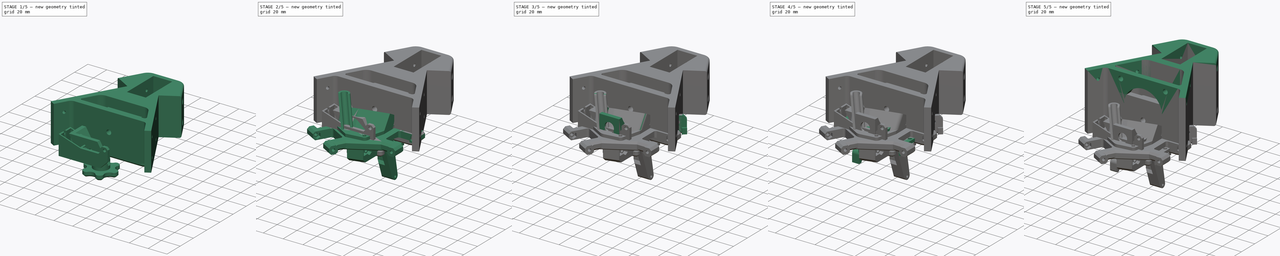
[diagram: build sequence overview — one tinted view per stage of 5, left to right]
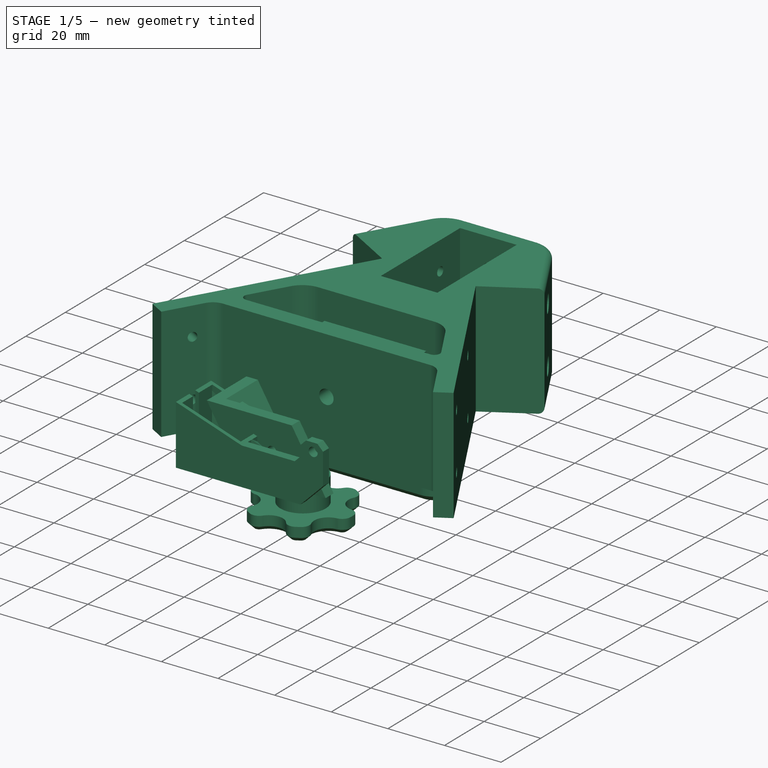
[diagram: stage 1 of 5 — iso view after this stage's code; geometry added in this stage tinted green]
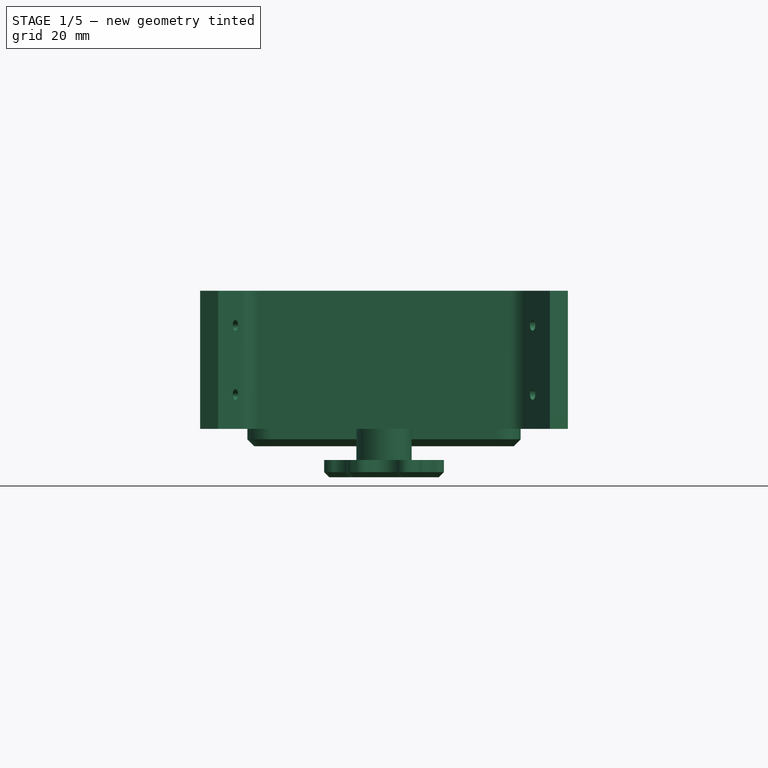
[diagram: stage 1 of 5 — front view after this stage's code; geometry added in this stage tinted green]
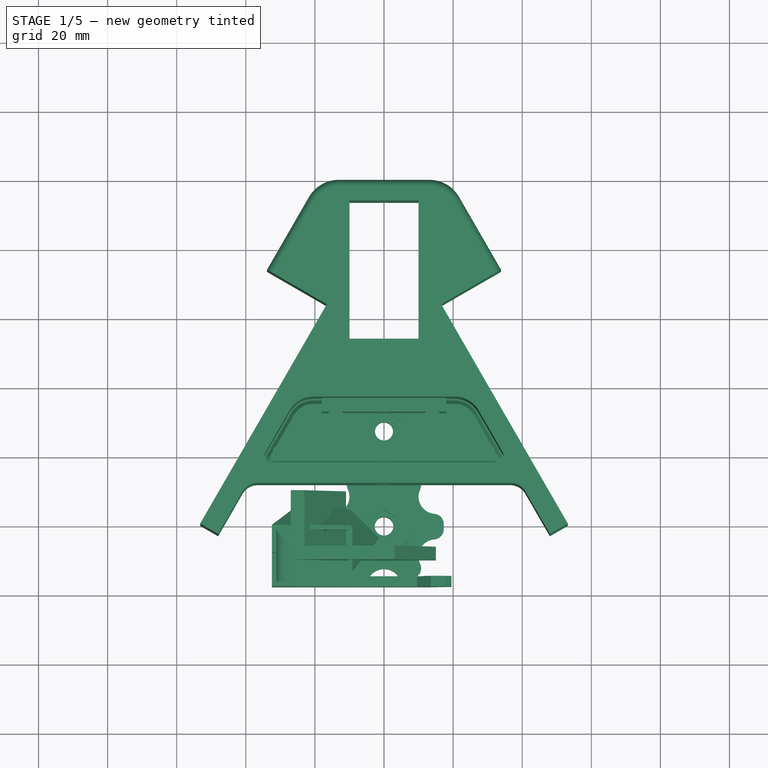
[diagram: stage 1 of 5 — top view after this stage's code; geometry added in this stage tinted green]
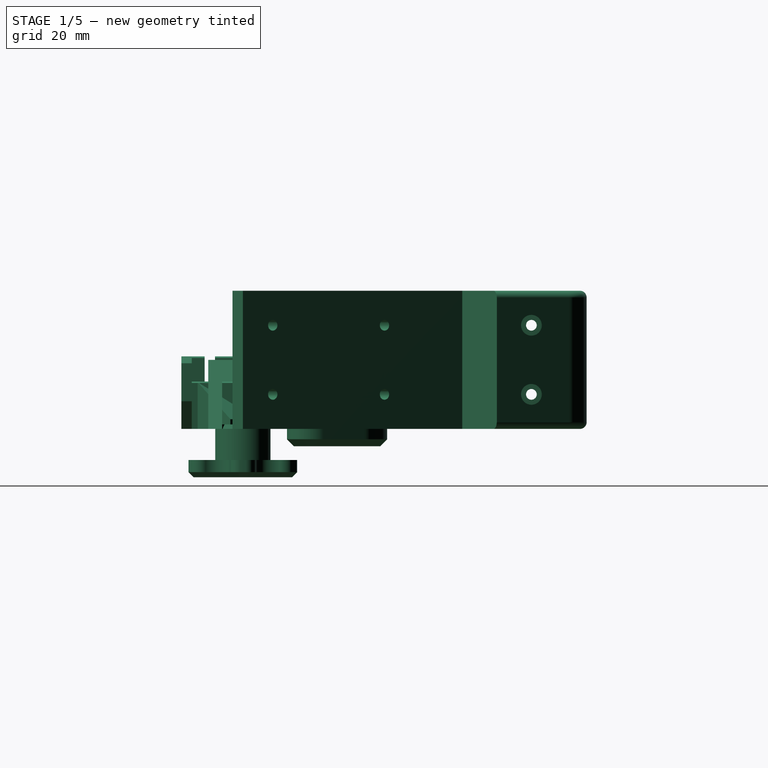
[diagram: stage 1 of 5 — right view after this stage's code; geometry added in this stage tinted green]
FCSTD DOCUMENT  (FreeCAD 0.20R29603 (Git))
Label: Kossel XL_DiSCo
License: All rights reserved
LicenseURL: http://en.wikipedia.org/wiki/All_rights_reserved
objects: Sketcher::SketchObject×194, PartDesign::Pocket×95, PartDesign::Chamfer×55, PartDesign::Pad×45, PartDesign::Fillet×36, PartDesign::Body×25, PartDesign::Plane×18, PartDesign::AdditiveLoft×7, PartDesign::SubtractivePipe×2, Part::Feature×2, PartDesign::SubtractiveLoft×1
note: 721 computed .brp shape members not serialized (recipe doc carries the construction recipe); baked Part::Feature solids carry a one-line shape summary decoded from their .brp

FEATURE [PartDesign::Body] Body022  label="Effector_v0.2"
  Group = -> [Sketch145,Pad038,Sketch146,Pocket075,Sketch147,Pocket076,DatumPlane015,Sketch148,Pocket077,Sketch149,Pocket078,DatumPlane016,Sketch150,Pocket079,Sketch151,Pocket080,Sketch152,Pad039,Sketch153,Pad040,Sketch154,Pad041,Sketch155,Pocket081,Sketch156,Pocket082,Sketch157,Pocket083,Chamfer060,Sketch158,Pocket084,Sketch159,Pocket085,Sketch160,Pocket086,Sketch161,Pocket087,Sketch162,Pocket088,Sketch163,+22 more]
  Origin = -> Origin022
  Tip = -> Fillet044
FEATURE [Sketcher::SketchObject] Sketch169
  FullyConstrained = true
  MapMode = 5
  Support = -> [XY_Plane023]
  sketch-geometry (6):
    g0: LineSegment StartX=-15 StartY=-10 StartZ=0 EndX=15 EndY=-10 EndZ=0
    g1: LineSegment StartX=-15 StartY=-10 StartZ=0 EndX=-15 EndY=10 EndZ=0
    g2: LineSegment StartX=-15 StartY=10 StartZ=0 EndX=-11 EndY=10 EndZ=0
    g3: LineSegment StartX=-11 StartY=10 StartZ=0 EndX=-11 EndY=-6 EndZ=0
    g4: LineSegment StartX=-11 StartY=-6 StartZ=0 EndX=15 EndY=-6 EndZ=0
    g5: LineSegment StartX=15 StartY=-6 StartZ=0 EndX=15 EndY=-10 EndZ=0
  constraints (18):
    c: Horizontal(g0)
    c: DistanceX(g0,g0) = 30
    c: Coincident(g1,g0)
    c: Vertical(g1)
    c: Coincident(g2,g1)
    c: Horizontal(g2)
    c: Coincident(g3,g2)
    c: Vertical(g3)
    c: Coincident(g4,g3)
    c: Horizontal(g4)
    c: Coincident(g5,g4)
    c: Coincident(g5,g0)
    c: Vertical(g5)
    c: DistanceY(g5,g5) = 4
    c: DistanceX(g2,g2) = 4
    c: DistanceY(g1,g1) = 20
    c: DistanceX(g-1,g4) = 15
    c: DistanceY(g-1,g2) = 10
FEATURE [Sketcher::SketchObject] Sketch170
  AttachmentOffset = pos=(-12,0,20) rot=(0,0,1;0rad)
  FullyConstrained = true
  MapMode = 5
  Placement = pos=(-12,0,20) rot=(0,0,1;0rad)
  Support = -> [XY_Plane023]
  sketch-geometry (6):
    g0: LineSegment StartX=-15 StartY=-10 StartZ=0 EndX=15 EndY=-10 EndZ=0
    g1: LineSegment StartX=-15 StartY=-10 StartZ=0 EndX=-15 EndY=10 EndZ=0
    g2: LineSegment StartX=-15 StartY=10 StartZ=0 EndX=-11 EndY=10 EndZ=0
    g3: LineSegment StartX=-11 StartY=10 StartZ=0 EndX=-11 EndY=-6 EndZ=0
    g4: LineSegment StartX=-11 StartY=-6 StartZ=0 EndX=15 EndY=-6 EndZ=0
    g5: LineSegment StartX=15 StartY=-6 StartZ=0 EndX=15 EndY=-10 EndZ=0
  constraints (18):
    c: Horizontal(g0)
    c: DistanceX(g0,g0) = 30
    c: Coincident(g1,g0)
    c: Vertical(g1)
    c: Coincident(g2,g1)
    c: Horizontal(g2)
    c: Coincident(g3,g2)
    c: Vertical(g3)
    c: Coincident(g4,g3)
    c: Horizontal(g4)
    c: Coincident(g5,g4)
    c: Coincident(g5,g0)
    c: Vertical(g5)
    c: DistanceY(g5,g5) = 4
    c: DistanceX(g2,g2) = 4
    c: DistanceY(g1,g1) = 20
    c: DistanceX(g-1,g4) = 15
    c: DistanceY(g-1,g2) = 10
FEATURE [PartDesign::AdditiveLoft] AdditiveLoft006
  Closed = false
  Profile = -> Sketch169
  Ruled = false
  Sections = -> [Sketch170]
FEATURE [Sketcher::SketchObject] Sketch171
  FullyConstrained = true
  MapMode = 5
  Placement = pos=(0,0,0) rot=(1,0,0;1.5708rad)
  Support = -> [XZ_Plane023]
  sketch-geometry (1):
    g0: Circle CenterX=-4 CenterY=10 CenterZ=0 NormalX=0 NormalY=0 NormalZ=1 AngleXU=0 Radius=1.55
  constraints (3):
    c: DistanceY(g-1,g0) = 10
    c: Radius(g0) = 1.55
    c: DistanceX(g-1,g0) = -4
FEATURE [PartDesign::Pocket] Pocket093
  BaseFeature = -> AdditiveLoft006
  Direction = (0,1,-2e-16)
  Length = 5
  Length2 = 5
  Midplane = true
  Profile = -> Sketch171
  ReferenceAxis = -> Sketch171 [N_Axis]
  Type = 1
FEATURE [Sketcher::SketchObject] Sketch173
  FullyConstrained = true
  MapMode = 5
  Support = -> [XY_Plane024]
  sketch-geometry (23):
    g0: LineSegment StartX=-18 StartY=36.55 StartZ=0 EndX=18 EndY=36.55 EndZ=0
    g1: LineSegment StartX=-32 StartY=18.15 StartZ=0 EndX=32 EndY=18.15 EndZ=0
    g2: LineSegment StartX=-32 StartY=18.15 StartZ=0 EndX=-32 EndY=22.15 EndZ=0
    g3: LineSegment StartX=-32 StartY=22.15 StartZ=0 EndX=32 EndY=22.15 EndZ=0
    g4: LineSegment StartX=32 StartY=22.15 StartZ=0 EndX=32 EndY=18.15 EndZ=0
    g5: LineSegment StartX=-18 StartY=36.55 StartZ=0 EndX=-18 EndY=32.55 EndZ=0
    g6: LineSegment StartX=-18 StartY=32.55 StartZ=0 EndX=18 EndY=32.55 EndZ=0
    g7: LineSegment StartX=18 StartY=32.55 StartZ=0 EndX=18 EndY=36.55 EndZ=0
    g8: LineSegment StartX=-9 StartY=31.85 StartZ=0 EndX=9 EndY=31.85 EndZ=0
    g9: LineSegment StartX=9 StartY=31.85 StartZ=0 EndX=9 EndY=22.85 EndZ=0
    g10: LineSegment StartX=9 StartY=22.85 StartZ=0 EndX=-9 EndY=22.85 EndZ=0
    g11: LineSegment StartX=-9 StartY=22.85 StartZ=0 EndX=-9 EndY=31.85 EndZ=0
    g12: LineSegment StartX=-9 StartY=27.35 StartZ=0 EndX=9 EndY=27.35 EndZ=0
    g13: LineSegment StartX=-16 StartY=32.55 StartZ=0 EndX=-16 EndY=22.15 EndZ=0
    g14: LineSegment StartX=-12 StartY=32.55 StartZ=0 EndX=-12 EndY=22.15 EndZ=0
    g15: LineSegment StartX=12 StartY=32.55 StartZ=0 EndX=12 EndY=22.15 EndZ=0
    g16: LineSegment StartX=16 StartY=32.55 StartZ=0 EndX=16 EndY=22.15 EndZ=0
    g17: LineSegment StartX=-18 StartY=32.55 StartZ=0 EndX=-16 EndY=32.55 EndZ=0
    g18: LineSegment StartX=16 StartY=32.55 StartZ=0 EndX=18 EndY=32.55 EndZ=0
    g19: LineSegment StartX=-12 StartY=32.55 StartZ=0 EndX=12 EndY=32.55 EndZ=0
    g20: LineSegment StartX=-32 StartY=22.15 StartZ=0 EndX=-16 EndY=22.15 EndZ=0
    g21: LineSegment StartX=-12 StartY=22.15 StartZ=0 EndX=12 EndY=22.15 EndZ=0
    g22: LineSegment StartX=16 StartY=22.15 StartZ=0 EndX=32 EndY=22.15 EndZ=0
  constraints (64):
    c: DistanceY(g-1,g1) = 18.15
    c: DistanceX(g1,g1) = 64
    c: DistanceX(g0,g0) = 36
    c: Symmetric(g1,g1,g-2)
    c: Symmetric(g0,g0,g-2)
    c: Coincident(g2,g1)
    c: Coincident(g3,g2)
    c: Horizontal(g3)
    c: Coincident(g4,g1)
    c: Coincident(g5,g0)
    c: Coincident(g6,g5)
    c: Horizontal(g6)
    c: Coincident(g7,g6)
    c: Coincident(g7,g0)
    c: Equal(g6,g0)
    c: Vertical(g7)
    c: DistanceY(g5,g0) = 4
    c: Equal(g3,g1)
    c: Vertical(g4)
    c: Coincident(g3,g4)
    c: DistanceY(g4,g4) = 4
    c: Coincident(g8,g9)
    c: Coincident(g9,g10)
    c: Coincident(g10,g11)
    c: Coincident(g11,g8)
    c: Horizontal(g10)
    c: Vertical(g11)
    c: DistanceY(g11,g11) = 9
    c: DistanceX(g8,g8) = 18
    c: PointOnObject(g12,g11)
    c: Horizontal(g12)
    c: Symmetric(g8,g9,g12)
    c: Symmetric(g8,g8,g-2)
    c: PointOnObject(g13,g6)
    c: PointOnObject(g13,g3)
    c: Vertical(g13)
    c: PointOnObject(g14,g6)
    c: PointOnObject(g14,g3)
    c: Vertical(g14)
    c: PointOnObject(g15,g6)
    c: PointOnObject(g15,g3)
    c: PointOnObject(g16,g6)
    c: PointOnObject(g16,g3)
    c: Vertical(g16)
    c: DistanceX(g15,g16) = 4
    c: DistanceX(g13,g14) = 4
    c: DistanceX(g5,g13) = 2
    c: DistanceX(g16,g6) = 2
    c: Coincident(g17,g5)
    c: Coincident(g17,g13)
    c: Coincident(g18,g16)
    c: Coincident(g18,g7)
    c: Coincident(g19,g14)
    c: Coincident(g19,g15)
    c: Coincident(g20,g2)
    c: Coincident(g20,g13)
    c: Coincident(g21,g14)
    c: Coincident(g21,g15)
    c: Coincident(g22,g16)
    c: Coincident(g22,g4)
    c: Vertical(g15)
    c: DistanceY(g1,g0) = 18.4
    c: Vertical(g9)
    c: DistanceY(g12,g15) = 5.2
FEATURE [PartDesign::Pad] Pad043
  Direction = (0,0,1)
  Length = 30
  Length2 = 10
  Profile = -> Sketch173
  ReferenceAxis = -> Sketch173 [N_Axis]
  Type = 0
FEATURE [Sketcher::SketchObject] Sketch174
  FullyConstrained = true
  MapMode = 5
  Support = -> [XY_Plane024]
  sketch-geometry (4):
    g0: LineSegment StartX=-12 StartY=32.55 StartZ=0 EndX=12 EndY=32.55 EndZ=0
    g1: LineSegment StartX=12 StartY=32.55 StartZ=0 EndX=12 EndY=22.15 EndZ=0
    g2: LineSegment StartX=12 StartY=22.15 StartZ=0 EndX=-12 EndY=22.15 EndZ=0
    g3: LineSegment StartX=-12 StartY=22.15 StartZ=0 EndX=-12 EndY=32.55 EndZ=0
  constraints (11):
    c: Coincident(g0,g1)
    c: Coincident(g1,g2)
    c: Coincident(g2,g3)
    c: Coincident(g3,g0)
    c: Horizontal(g0)
    c: Vertical(g1)
    c: Vertical(g3)
    c: DistanceY(g3,g3) = 10.4
    c: DistanceX(g0,g0) = 24
    c: DistanceY(g-1,g1) = 22.15
    c: Symmetric(g2,g1,g-2)
FEATURE [PartDesign::Pad] Pad044
  BaseFeature = -> Pad043
  Direction = (0,0,1)
  Length = 8
  Length2 = 10
  Profile = -> Sketch174
  ReferenceAxis = -> Sketch174 [N_Axis]
  Type = 0
FEATURE [Sketcher::SketchObject] Sketch175
  ExternalGeometry = -> [Sketch173]
  FullyConstrained = true
  MapMode = 5
  Support = -> [XY_Plane024]
  sketch-geometry (1):
    g0: Circle CenterX=0 CenterY=27.35 CenterZ=0 NormalX=0 NormalY=0 NormalZ=1 AngleXU=0 Radius=2.75
  constraints (3):
    c: PointOnObject(g0,g-2)
    c: DistanceY(g0,g-3) = 5.2
    c: Radius(g0) = 2.75
FEATURE [PartDesign::Pocket] Pocket095
  BaseFeature = -> Pad044
  Direction = (0,0,-1)
  Length = 8
  Length2 = 5
  Profile = -> Sketch175
  ReferenceAxis = -> Sketch175 [N_Axis]
  Reversed = true
  Type = 0
FEATURE [Sketcher::SketchObject] Sketch176
  AttachmentOffset = pos=(0,0,8) rot=(0,0,1;0rad)
  ExternalGeometry = -> [Pocket095]
  FullyConstrained = true
  MapMode = 5
  Placement = pos=(0,0,8) rot=(0,0,1;0rad)
  Support = -> [XY_Plane024]
  sketch-geometry (1):
    g0: Circle CenterX=0 CenterY=27.35 CenterZ=0 NormalX=0 NormalY=0 NormalZ=1 AngleXU=0 Radius=5.25
  constraints (3):
    c: PointOnObject(g0,g-2)
    c: DistanceY(g0,g-3) = 5.2
    c: Radius(g0) = 5.25
FEATURE [PartDesign::Pocket] Pocket096
  BaseFeature = -> Pocket095
  Direction = (0,0,-1)
  Length = 3
  Length2 = 5
  Profile = -> Sketch176
  ReferenceAxis = -> Sketch176 [N_Axis]
  Type = 0
FEATURE [Sketcher::SketchObject] Sketch177
  FullyConstrained = true
  MapMode = 5
  Placement = pos=(0,0,0) rot=(1,0,0;1.5708rad)
  Support = -> [XZ_Plane024]
  sketch-geometry (1):
    g0: Circle CenterX=0 CenterY=18 CenterZ=0 NormalX=0 NormalY=0 NormalZ=1 AngleXU=0 Radius=2.55
  constraints (3):
    c: PointOnObject(g0,g-2)
    c: DistanceY(g-1,g0) = 18
    c: Radius(g0) = 2.55
FEATURE [PartDesign::Pocket] Pocket097
  BaseFeature = -> Pocket096
  Direction = (0,1,2e-16)
  Length = 5
  Length2 = 5
  Profile = -> Sketch177
  ReferenceAxis = -> Sketch177 [N_Axis]
  Type = 1
FEATURE [PartDesign::Chamfer] Chamfer072
  Angle = 45
  Base = -> Pocket097 [Edge41,Edge43]
  BaseFeature = -> Pocket097
  ChamferType = 0
  FlipDirection = false
  Size = 3
  Size2 = 1
  SupportTransform = false
  UseAllEdges = false
FEATURE [PartDesign::Body] Body024  label="BeltTensionerRunner_v0"
  Group = -> [Sketch173,Pad043,Sketch174,Pad044,Sketch175,Pocket095,Sketch176,Pocket096,Sketch177,Pocket097,Chamfer072,Fillet045,Chamfer073]
  Origin = -> Origin024
  Tip = -> Chamfer073
FEATURE [Sketcher::SketchObject] Sketch178
  FullyConstrained = false
  MapMode = 5
  Support = -> [XY_Plane025]
  sketch-geometry (47):
    g0: LineSegment StartX=-53.205 StartY=0 StartZ=0 EndX=53.205 EndY=0 EndZ=0
    g1: LineSegment StartX=-53.205 StartY=0 StartZ=0 EndX=-53.205 EndY=99.52 EndZ=0
    g2: LineSegment StartX=53.205 StartY=0 StartZ=0 EndX=53.205 EndY=99.52 EndZ=0
    g3: LineSegment StartX=-53.205 StartY=0 StartZ=0 EndX=-16.535 EndY=63.5143 EndZ=0
    g4: LineSegment StartX=53.205 StartY=0 StartZ=0 EndX=16.535 EndY=63.5143 EndZ=0
    g5: LineSegment StartX=16.535 StartY=63.5143 StartZ=0 EndX=33.8555 EndY=73.5143 EndZ=0
    g6: LineSegment StartX=-16.535 StartY=63.5143 StartZ=0 EndX=-33.8555 EndY=73.5143 EndZ=0
    g7: LineSegment StartX=-53.205 StartY=99.52 StartZ=0 EndX=53.205 EndY=99.52 EndZ=0
    g8: ArcOfCircle CenterX=13.0676 CenterY=89.52 CenterZ=0 NormalX=0 NormalY=0 NormalZ=1 AngleXU=0 Radius=10 StartAngle=0.523599 EndAngle=1.5708
    g9: LineSegment StartX=33.8555 StartY=73.5143 StartZ=0 EndX=21.7279 EndY=94.52 EndZ=0
    g10: LineSegment StartX=-33.8555 StartY=73.5143 StartZ=0 EndX=-21.7279 EndY=94.52 EndZ=0
    g11: ArcOfCircle CenterX=-13.0676 CenterY=89.52 CenterZ=0 NormalX=0 NormalY=0 NormalZ=1 AngleXU=0 Radius=10 StartAngle=1.5708 EndAngle=2.61799
    g12: LineSegment StartX=-13.0676 StartY=99.52 StartZ=0 EndX=13.0676 EndY=99.52 EndZ=0
    g13: LineSegment StartX=-10 StartY=93.52 StartZ=0 EndX=10 EndY=93.52 EndZ=0
    g14: LineSegment StartX=10 StartY=93.52 StartZ=0 EndX=10 EndY=53.52 EndZ=0
    g15: LineSegment StartX=10 StartY=53.52 StartZ=0 EndX=-10 EndY=53.52 EndZ=0
    g16: LineSegment StartX=-10 StartY=53.52 StartZ=0 EndX=-10 EndY=93.52 EndZ=0
    g17: LineSegment StartX=-27.357 StartY=32.77 StartZ=0 EndX=-34.2852 EndY=20.77 EndZ=0
    g18: LineSegment StartX=-32.5532 StartY=17.77 StartZ=0 EndX=32.5532 EndY=17.77 EndZ=0
    g19: LineSegment StartX=34.2852 StartY=20.77 StartZ=0 EndX=27.357 EndY=32.77 EndZ=0
    g20: LineSegment StartX=20.4288 StartY=36.77 StartZ=0 EndX=-20.4288 EndY=36.77 EndZ=0
    g21: LineSegment StartX=28.6715 StartY=30.4932 StartZ=0 EndX=33.8677 EndY=33.4932 EndZ=0
    g22: ArcOfCircle CenterX=-20.4288 CenterY=28.77 CenterZ=0 NormalX=0 NormalY=0 NormalZ=1 AngleXU=0 Radius=8 StartAngle=1.5708 EndAngle=2.61799
    g23: ArcOfCircle CenterX=20.4288 CenterY=28.77 CenterZ=0 NormalX=0 NormalY=0 NormalZ=1 AngleXU=0 Radius=8 StartAngle=0.523599 EndAngle=1.5708
    g24: ArcOfCircle CenterX=-32.5532 CenterY=19.77 CenterZ=0 NormalX=0 NormalY=0 NormalZ=1 AngleXU=0 Radius=2 StartAngle=2.61799 EndAngle=4.71239
    g25: ArcOfCircle CenterX=32.5532 CenterY=19.77 CenterZ=0 NormalX=0 NormalY=0 NormalZ=1 AngleXU=0 Radius=2 StartAngle=4.71239 EndAngle=6.80678
    g26: LineSegment StartX=-28.1659 StartY=31.369 StartZ=0 EndX=-33.362 EndY=34.369 EndZ=0
    g27: LineSegment StartX=-53.205 StartY=0 StartZ=0 EndX=-48.0088 EndY=-3 EndZ=0
    g28: LineSegment StartX=53.205 StartY=0 StartZ=0 EndX=48.0088 EndY=-3 EndZ=0
    g29: LineSegment StartX=-48.0088 StartY=-3 StartZ=0 EndX=-40.9248 EndY=9.27 EndZ=0
    g30: LineSegment StartX=48.0088 StartY=-3 StartZ=0 EndX=40.9248 EndY=9.27 EndZ=0
    g31: LineSegment StartX=-36.5946 StartY=11.77 StartZ=0 EndX=36.5946 EndY=11.77 EndZ=0
    g32: ArcOfCircle CenterX=36.5946 CenterY=6.77 CenterZ=0 NormalX=0 NormalY=0 NormalZ=1 AngleXU=0 Radius=5 StartAngle=0.523599 EndAngle=1.5708
    g33: ArcOfCircle CenterX=-36.5946 CenterY=6.77 CenterZ=0 NormalX=0 NormalY=0 NormalZ=1 AngleXU=0 Radius=5 StartAngle=1.5708 EndAngle=2.61799
    g34: LineSegment StartX=-6.5 StartY=36.77 StartZ=0 EndX=6.5 EndY=36.77 EndZ=0
    g35: LineSegment StartX=6.5 StartY=36.77 StartZ=0 EndX=6.5 EndY=22.77 EndZ=0
    g36: LineSegment StartX=6.5 StartY=22.77 StartZ=0 EndX=-6.5 EndY=22.77 EndZ=0
    g37: LineSegment StartX=-6.5 StartY=22.77 StartZ=0 EndX=-6.5 EndY=36.77 EndZ=0
    g38: LineSegment StartX=-32.5532 StartY=18.27 StartZ=0 EndX=32.5532 EndY=18.27 EndZ=0
    g39: LineSegment StartX=-20.4288 StartY=36.27 StartZ=0 EndX=20.4288 EndY=36.27 EndZ=0
    g40: LineSegment StartX=26.924 StartY=32.52 StartZ=0 EndX=33.8522 EndY=20.52 EndZ=0
    g41: LineSegment StartX=-26.924 StartY=32.52 StartZ=0 EndX=-33.8522 EndY=20.52 EndZ=0
    g42: ArcOfCircle CenterX=-20.4288 CenterY=28.77 CenterZ=0 NormalX=0 NormalY=0 NormalZ=1 AngleXU=0 Radius=7.5 StartAngle=1.5708 EndAngle=2.61799
    g43: ArcOfCircle CenterX=20.4288 CenterY=28.77 CenterZ=0 NormalX=0 NormalY=0 NormalZ=1 AngleXU=0 Radius=7.5 StartAngle=0.523599 EndAngle=1.5708
    g44: ArcOfCircle CenterX=32.5532 CenterY=19.77 CenterZ=0 NormalX=0 NormalY=0 NormalZ=1 AngleXU=0 Radius=1.5 StartAngle=4.71239 EndAngle=6.80678
    g45: ArcOfCircle CenterX=-32.5532 CenterY=19.77 CenterZ=0 NormalX=0 NormalY=0 NormalZ=1 AngleXU=0 Radius=1.5 StartAngle=2.61799 EndAngle=4.71239
    g46: Circle CenterX=0 CenterY=27.27 CenterZ=0 NormalX=0 NormalY=0 NormalZ=1 AngleXU=0 Radius=2.6
  constraints (119):
    c: PointOnObject(g0,g-1)
    c: DistanceX(g0,g0) = 106.41
    c: Symmetric(g0,g0,g-2)
    c: Coincident(g1,g0)
    c: Vertical(g1)
    c: Coincident(g2,g0)
    c: Vertical(g2)
    c: DistanceY(g2,g2) = 99.52
    c: Equal(g2,g1)
    c: Coincident(g3,g0)
    c: Coincident(g4,g0)
    c: Angle(g3,g1) = 0.523599
    c: Angle(g2,g4) = 0.523599
    c: Equal(g4,g3)
    c: Distance(g3) = 73.34
    c: Coincident(g5,g4)
    c: Coincident(g6,g3)
    c: Equal(g5,g6)
    c: Perpendicular(g4,g5)
    c: Perpendicular(g3,g6)
    c: Distance(g5) = 20
    c: Coincident(g7,g1)
    c: Coincident(g7,g2)
    c: Radius(g8) = 10
    c: Tangent(g8,g7) = 1.5708
    c: Coincident(g9,g5)
    c: Perpendicular(g5,g9)
    c: Tangent(g9,g8) = -1.5708
    c: Coincident(g10,g6)
    c: Radius(g11) = 10
    c: Tangent(g11,g10) = 1.5708
    c: Perpendicular(g6,g10)
    c: Tangent(g11,g7) = 1.5708
    c: Coincident(g12,g11)
    c: Coincident(g12,g8)
    c: Coincident(g13,g14)
    c: Coincident(g14,g15)
    c: Coincident(g15,g16)
    c: Coincident(g16,g13)
    c: Horizontal(g15)
    c: Vertical(g14)
    c: Vertical(g16)
    c: DistanceY(g13,g11) = 6
    c: DistanceY(g16,g16) = 40
    c: DistanceX(g13,g13) = 20
    c: Symmetric(g13,g13,g-2)
    c: Horizontal(g18)
    c: Parallel(g17,g3)
    c: Parallel(g19,g4)
    c: PointOnObject(g21,g19)
    c: PointOnObject(g21,g4)
    c: Perpendicular(g21,g19)
    c: Distance(g21) = 6
    c: Tangent(g17,g22) = -1.5708
    c: Tangent(g20,g22) = -1.5708
    c: Tangent(g20,g23) = -1.5708
    c: Tangent(g19,g23) = -1.5708
    c: Tangent(g17,g24) = -1.5708
    c: Tangent(g18,g24) = -1.5708
    c: Tangent(g19,g25) = -1.5708
    c: Tangent(g18,g25) = -1.5708
    c: Equal(g25,g24)
    c: Parallel(g20,g18)
    c: Equal(g22,g23)
    c: PointOnObject(g26,g17)
    c: PointOnObject(g26,g3)
    c: Perpendicular(g17,g26)
    c: DistanceY(g18,g20) = 19
    c: Radius(g25) = 2
    c: Radius(g22) = 8
    c: Coincident(g27,g3)
    c: Coincident(g28,g4)
    c: Perpendicular(g4,g28)
    c: Perpendicular(g27,g3)
    c: Distance(g27) = 6
    c: Equal(g28,g27)
    c: Coincident(g29,g27)
    c: Coincident(g30,g28)
    c: Parallel(g30,g4)
    c: Parallel(g3,g29)
    c: Equal(g29,g30)
    c: Tangent(g31,g32) = 1.5708
    c: Tangent(g30,g32) = -1.5708
    c: Tangent(g29,g33) = 1.5708
    c: Tangent(g31,g33) = 1.5708
    c: Parallel(g31,g18)
    c: DistanceY(g31,g18) = 6
    c: Radius(g32) = 5
    c: Coincident(g34,g35)
    c: Coincident(g35,g36)
    c: Coincident(g36,g37)
    c: Coincident(g37,g34)
    c: Horizontal(g36)
    c: Vertical(g35)
    c: Vertical(g37)
    c: DistanceY(g35,g35) = 14
    c: DistanceX(g34,g34) = 13
    c: Symmetric(g34,g34,g-2)
    c: DistanceY(g18,g35) = 5
    c: Parallel(g41,g17)
    c: Parallel(g40,g19)
    c: Symmetric(g38,g38,g-2)
    c: Symmetric(g39,g39,g-2)
    c: Coincident(g42,g22)
    c: Coincident(g43,g23)
    c: Tangent(g45,g41) = -1.5708
    c: Tangent(g45,g38) = -1.5708
    c: DistanceY(g18,g38) = 0.5
    c: Coincident(g45,g24)
    c: Tangent(g44,g40) = 1.5708
    c: Tangent(g44,g38) = -1.5708
    c: Tangent(g43,g39) = 1.5708
    c: Tangent(g43,g40) = 1.5708
    c: Tangent(g42,g39) = 1.5708
    c: Tangent(g42,g41) = -1.5708
    c: PointOnObject(g46,g-2)
    c: Radius(g46) = 2.6
    c: DistanceY(g20,g8) = 62.75
    c: DistanceY(g46,g39) = 9
FEATURE [Sketcher::SketchObject] Sketch179
  AttachmentOffset = pos=(0,0,-5) rot=(0,0,1;0rad)
  FullyConstrained = false
  MapMode = 5
  Placement = pos=(0,0,-5) rot=(0,0,1;0rad)
  Support = -> [XY_Plane025]
  sketch-geometry (47):
    g0: LineSegment StartX=-53.205 StartY=0 StartZ=0 EndX=53.205 EndY=0 EndZ=0
    g1: LineSegment StartX=-53.205 StartY=0 StartZ=0 EndX=-53.205 EndY=99.52 EndZ=0
    g2: LineSegment StartX=53.205 StartY=0 StartZ=0 EndX=53.205 EndY=99.52 EndZ=0
    g3: LineSegment StartX=-53.205 StartY=0 StartZ=0 EndX=-16.535 EndY=63.5143 EndZ=0
    g4: LineSegment StartX=53.205 StartY=0 StartZ=0 EndX=16.535 EndY=63.5143 EndZ=0
    g5: LineSegment StartX=16.535 StartY=63.5143 StartZ=0 EndX=33.8555 EndY=73.5143 EndZ=0
    g6: LineSegment StartX=-16.535 StartY=63.5143 StartZ=0 EndX=-33.8555 EndY=73.5143 EndZ=0
    g7: LineSegment StartX=-53.205 StartY=99.52 StartZ=0 EndX=53.205 EndY=99.52 EndZ=0
    g8: ArcOfCircle CenterX=13.0676 CenterY=89.52 CenterZ=0 NormalX=0 NormalY=0 NormalZ=1 AngleXU=0 Radius=10 StartAngle=0.523599 EndAngle=1.5708
    g9: LineSegment StartX=33.8555 StartY=73.5143 StartZ=0 EndX=21.7279 EndY=94.52 EndZ=0
    g10: LineSegment StartX=-33.8555 StartY=73.5143 StartZ=0 EndX=-21.7279 EndY=94.52 EndZ=0
    g11: ArcOfCircle CenterX=-13.0676 CenterY=89.52 CenterZ=0 NormalX=0 NormalY=0 NormalZ=1 AngleXU=0 Radius=10 StartAngle=1.5708 EndAngle=2.61799
    g12: LineSegment StartX=-13.0676 StartY=99.52 StartZ=0 EndX=13.0676 EndY=99.52 EndZ=0
    g13: LineSegment StartX=-10 StartY=93.52 StartZ=0 EndX=10 EndY=93.52 EndZ=0
    g14: LineSegment StartX=10 StartY=93.52 StartZ=0 EndX=10 EndY=53.52 EndZ=0
    g15: LineSegment StartX=10 StartY=53.52 StartZ=0 EndX=-10 EndY=53.52 EndZ=0
    g16: LineSegment StartX=-10 StartY=53.52 StartZ=0 EndX=-10 EndY=93.52 EndZ=0
    g17: LineSegment StartX=-27.357 StartY=32.77 StartZ=0 EndX=-34.2852 EndY=20.77 EndZ=0
    g18: LineSegment StartX=-32.5532 StartY=17.77 StartZ=0 EndX=32.5532 EndY=17.77 EndZ=0
    g19: LineSegment StartX=34.2852 StartY=20.77 StartZ=0 EndX=27.357 EndY=32.77 EndZ=0
    g20: LineSegment StartX=20.4288 StartY=36.77 StartZ=0 EndX=-20.4288 EndY=36.77 EndZ=0
    g21: LineSegment StartX=28.6722 StartY=30.4921 StartZ=0 EndX=33.8683 EndY=33.4921 EndZ=0
    g22: ArcOfCircle CenterX=-20.4288 CenterY=28.77 CenterZ=0 NormalX=0 NormalY=0 NormalZ=1 AngleXU=0 Radius=8 StartAngle=1.5708 EndAngle=2.61799
    g23: ArcOfCircle CenterX=20.4288 CenterY=28.77 CenterZ=0 NormalX=0 NormalY=0 NormalZ=1 AngleXU=0 Radius=8 StartAngle=0.523599 EndAngle=1.5708
    g24: ArcOfCircle CenterX=-32.5532 CenterY=19.77 CenterZ=0 NormalX=0 NormalY=0 NormalZ=1 AngleXU=0 Radius=2 StartAngle=2.61799 EndAngle=4.71239
    g25: ArcOfCircle CenterX=32.5532 CenterY=19.77 CenterZ=0 NormalX=0 NormalY=0 NormalZ=1 AngleXU=0 Radius=2 StartAngle=4.71239 EndAngle=6.80678
    g26: LineSegment StartX=-28.1573 StartY=31.3838 StartZ=0 EndX=-33.3535 EndY=34.3838 EndZ=0
    g27: LineSegment StartX=-53.205 StartY=0 StartZ=0 EndX=-48.0088 EndY=-3 EndZ=0
    g28: LineSegment StartX=53.205 StartY=0 StartZ=0 EndX=48.0088 EndY=-3 EndZ=0
    g29: LineSegment StartX=-48.0088 StartY=-3 StartZ=0 EndX=-40.9248 EndY=9.27 EndZ=0
    g30: LineSegment StartX=48.0088 StartY=-3 StartZ=0 EndX=40.9248 EndY=9.27 EndZ=0
    g31: LineSegment StartX=-36.5946 StartY=11.77 StartZ=0 EndX=36.5946 EndY=11.77 EndZ=0
    g32: ArcOfCircle CenterX=36.5946 CenterY=6.77 CenterZ=0 NormalX=0 NormalY=0 NormalZ=1 AngleXU=0 Radius=5 StartAngle=0.523599 EndAngle=1.5708
    g33: ArcOfCircle CenterX=-36.5946 CenterY=6.77 CenterZ=0 NormalX=0 NormalY=0 NormalZ=1 AngleXU=0 Radius=5 StartAngle=1.5708 EndAngle=2.61799
    g34: LineSegment StartX=-6.5 StartY=36.77 StartZ=0 EndX=6.5 EndY=36.77 EndZ=0
    g35: LineSegment StartX=6.5 StartY=36.77 StartZ=0 EndX=6.5 EndY=22.77 EndZ=0
    g36: LineSegment StartX=6.5 StartY=22.77 StartZ=0 EndX=-6.5 EndY=22.77 EndZ=0
    g37: LineSegment StartX=-6.5 StartY=22.77 StartZ=0 EndX=-6.5 EndY=36.77 EndZ=0
    g38: LineSegment StartX=-29.0891 StartY=19.77 StartZ=0 EndX=29.0891 EndY=19.77 EndZ=0
    g39: LineSegment StartX=-20.4288 StartY=34.77 StartZ=0 EndX=20.4288 EndY=34.77 EndZ=0
    g40: LineSegment StartX=25.625 StartY=31.77 StartZ=0 EndX=30.8211 EndY=22.77 EndZ=0
    g41: LineSegment StartX=-25.625 StartY=31.77 StartZ=0 EndX=-30.8211 EndY=22.77 EndZ=0
    g42: ArcOfCircle CenterX=-20.4288 CenterY=28.77 CenterZ=0 NormalX=0 NormalY=0 NormalZ=1 AngleXU=0 Radius=6 StartAngle=1.5708 EndAngle=2.61799
    g43: ArcOfCircle CenterX=20.4288 CenterY=28.77 CenterZ=0 NormalX=0 NormalY=0 NormalZ=1 AngleXU=0 Radius=6 StartAngle=0.523599 EndAngle=1.5708
    g44: Circle CenterX=0 CenterY=27.27 CenterZ=0 NormalX=0 NormalY=0 NormalZ=1 AngleXU=0 Radius=2.6
    g45: ArcOfCircle CenterX=29.0891 CenterY=21.77 CenterZ=0 NormalX=0 NormalY=0 NormalZ=1 AngleXU=0 Radius=2 StartAngle=4.71239 EndAngle=6.80678
    g46: ArcOfCircle CenterX=-29.0891 CenterY=21.77 CenterZ=0 NormalX=0 NormalY=0 NormalZ=1 AngleXU=0 Radius=2 StartAngle=2.61799 EndAngle=4.71239
  constraints (120):
    c: PointOnObject(g0,g-1)
    c: DistanceX(g0,g0) = 106.41
    c: Symmetric(g0,g0,g-2)
    c: Coincident(g1,g0)
    c: Vertical(g1)
    c: Coincident(g2,g0)
    c: Vertical(g2)
    c: DistanceY(g2,g2) = 99.52
    c: Equal(g2,g1)
    c: Coincident(g3,g0)
    c: Coincident(g4,g0)
    c: Angle(g3,g1) = 0.523599
    c: Angle(g2,g4) = 0.523599
    c: Equal(g4,g3)
    c: Distance(g3) = 73.34
    c: Coincident(g5,g4)
    c: Coincident(g6,g3)
    c: Equal(g5,g6)
    c: Perpendicular(g4,g5)
    c: Perpendicular(g3,g6)
    c: Distance(g5) = 20
    c: Coincident(g7,g1)
    c: Coincident(g7,g2)
    c: Radius(g8) = 10
    c: Tangent(g8,g7) = 1.5708
    c: Coincident(g9,g5)
    c: Perpendicular(g5,g9)
    c: Tangent(g9,g8) = -1.5708
    c: Coincident(g10,g6)
    c: Radius(g11) = 10
    c: Tangent(g11,g10) = 1.5708
    c: Perpendicular(g6,g10)
    c: Tangent(g11,g7) = 1.5708
    c: Coincident(g12,g11)
    c: Coincident(g12,g8)
    c: Coincident(g13,g14)
    c: Coincident(g14,g15)
    c: Coincident(g15,g16)
    c: Coincident(g16,g13)
    c: Horizontal(g15)
    c: Vertical(g14)
    c: Vertical(g16)
    c: DistanceY(g13,g11) = 6
    c: DistanceY(g16,g16) = 40
    c: DistanceX(g13,g13) = 20
    c: Symmetric(g13,g13,g-2)
    c: Horizontal(g18)
    c: Parallel(g17,g3)
    c: Parallel(g19,g4)
    c: PointOnObject(g21,g19)
    c: PointOnObject(g21,g4)
    c: Perpendicular(g21,g19)
    c: Distance(g21) = 6
    c: Tangent(g17,g22) = -1.5708
    c: Tangent(g20,g22) = -1.5708
    c: Tangent(g20,g23) = -1.5708
    c: Tangent(g19,g23) = -1.5708
    c: Tangent(g17,g24) = -1.5708
    c: Tangent(g18,g24) = -1.5708
    c: Tangent(g19,g25) = -1.5708
    c: Tangent(g18,g25) = -1.5708
    c: Equal(g25,g24)
    c: Parallel(g20,g18)
    c: Equal(g22,g23)
    c: PointOnObject(g26,g17)
    c: PointOnObject(g26,g3)
    c: Perpendicular(g17,g26)
    c: DistanceY(g18,g20) = 19
    c: Radius(g25) = 2
    c: Radius(g22) = 8
    c: Coincident(g27,g3)
    c: Coincident(g28,g4)
    c: Perpendicular(g4,g28)
    c: Perpendicular(g27,g3)
    c: Distance(g27) = 6
    c: Equal(g28,g27)
    c: Coincident(g29,g27)
    c: Coincident(g30,g28)
    c: Parallel(g30,g4)
    c: Parallel(g3,g29)
    c: Equal(g29,g30)
    c: Tangent(g31,g32) = 1.5708
    c: Tangent(g30,g32) = -1.5708
    c: Tangent(g29,g33) = 1.5708
    c: Tangent(g31,g33) = 1.5708
    c: Parallel(g31,g18)
    c: DistanceY(g31,g18) = 6
    c: Radius(g32) = 5
    c: Coincident(g34,g35)
    c: Coincident(g35,g36)
    c: Coincident(g36,g37)
    c: Coincident(g37,g34)
    c: Horizontal(g36)
    c: Vertical(g35)
    c: Vertical(g37)
    c: DistanceY(g35,g35) = 14
    c: DistanceX(g34,g34) = 13
    c: Symmetric(g34,g34,g-2)
    c: DistanceY(g18,g35) = 5
    c: Parallel(g41,g17)
    c: Parallel(g40,g19)
    c: Symmetric(g38,g38,g-2)
    c: Symmetric(g39,g39,g-2)
    c: Coincident(g42,g22)
    c: Coincident(g43,g23)
    c: Tangent(g43,g39) = 1.5708
    c: Tangent(g43,g40) = 1.5708
    c: Tangent(g42,g39) = 1.5708
    c: Tangent(g42,g41) = -1.5708
    c: PointOnObject(g44,g-2)
    c: Radius(g44) = 2.6
    c: DistanceY(g39,g20) = 2
    c: DistanceY(g18,g38) = 2
    c: Tangent(g46,g41) = -1.5708
    c: Tangent(g46,g38) = -1.5708
    c: Tangent(g45,g38) = -1.5708
    c: Tangent(g45,g40) = 1.5708
    c: Equal(g24,g46)
    c: DistanceY(g20,g8) = 62.75
    c: DistanceY(g44,g20) = 9.5
FEATURE [PartDesign::Pad] Pad045
  Direction = (0,0,1)
  Length = 4
  Length2 = 10
  Profile = -> Sketch178
  ReferenceAxis = -> Sketch178 [N_Axis]
  Type = 0
FEATURE [Sketcher::SketchObject] Sketch180
  AttachmentOffset = pos=(0,0,-5) rot=(0,0,1;0rad)
  FullyConstrained = false
  MapMode = 5
  Placement = pos=(0,0,-5) rot=(0,0,1;0rad)
  Support = -> [XY_Plane025]
  sketch-geometry (47):
    g0: LineSegment StartX=-53.205 StartY=0 StartZ=0 EndX=53.205 EndY=0 EndZ=0
    g1: LineSegment StartX=-53.205 StartY=0 StartZ=0 EndX=-53.205 EndY=99.52 EndZ=0
    g2: LineSegment StartX=53.205 StartY=0 StartZ=0 EndX=53.205 EndY=99.52 EndZ=0
    g3: LineSegment StartX=-53.205 StartY=0 StartZ=0 EndX=-16.535 EndY=63.5143 EndZ=0
    g4: LineSegment StartX=53.205 StartY=0 StartZ=0 EndX=16.535 EndY=63.5143 EndZ=0
    g5: LineSegment StartX=16.535 StartY=63.5143 StartZ=0 EndX=33.8555 EndY=73.5143 EndZ=0
    g6: LineSegment StartX=-16.535 StartY=63.5143 StartZ=0 EndX=-33.8555 EndY=73.5143 EndZ=0
    g7: LineSegment StartX=-53.205 StartY=99.52 StartZ=0 EndX=53.205 EndY=99.52 EndZ=0
    g8: ArcOfCircle CenterX=13.0676 CenterY=89.52 CenterZ=0 NormalX=0 NormalY=0 NormalZ=1 AngleXU=0 Radius=10 StartAngle=0.523599 EndAngle=1.5708
    g9: LineSegment StartX=33.8555 StartY=73.5143 StartZ=0 EndX=21.7279 EndY=94.52 EndZ=0
    g10: LineSegment StartX=-33.8555 StartY=73.5143 StartZ=0 EndX=-21.7279 EndY=94.52 EndZ=0
    g11: ArcOfCircle CenterX=-13.0676 CenterY=89.52 CenterZ=0 NormalX=0 NormalY=0 NormalZ=1 AngleXU=0 Radius=10 StartAngle=1.5708 EndAngle=2.61799
    g12: LineSegment StartX=-13.0676 StartY=99.52 StartZ=0 EndX=13.0676 EndY=99.52 EndZ=0
    g13: LineSegment StartX=-10 StartY=93.52 StartZ=0 EndX=10 EndY=93.52 EndZ=0
    g14: LineSegment StartX=10 StartY=93.52 StartZ=0 EndX=10 EndY=53.52 EndZ=0
    g15: LineSegment StartX=10 StartY=53.52 StartZ=0 EndX=-10 EndY=53.52 EndZ=0
    g16: LineSegment StartX=-10 StartY=53.52 StartZ=0 EndX=-10 EndY=93.52 EndZ=0
    g17: LineSegment StartX=-27.357 StartY=32.77 StartZ=0 EndX=-34.2852 EndY=20.77 EndZ=0
    g18: LineSegment StartX=-32.5532 StartY=17.77 StartZ=0 EndX=32.5532 EndY=17.77 EndZ=0
    g19: LineSegment StartX=34.2852 StartY=20.77 StartZ=0 EndX=27.357 EndY=32.77 EndZ=0
    g20: LineSegment StartX=20.4288 StartY=36.77 StartZ=0 EndX=-20.4288 EndY=36.77 EndZ=0
    g21: LineSegment StartX=28.6713 StartY=30.4937 StartZ=0 EndX=33.8674 EndY=33.4937 EndZ=0
    g22: ArcOfCircle CenterX=-20.4288 CenterY=28.77 CenterZ=0 NormalX=0 NormalY=0 NormalZ=1 AngleXU=0 Radius=8 StartAngle=1.5708 EndAngle=2.61799
    g23: ArcOfCircle CenterX=20.4288 CenterY=28.77 CenterZ=0 NormalX=0 NormalY=0 NormalZ=1 AngleXU=0 Radius=8 StartAngle=0.523599 EndAngle=1.5708
    g24: ArcOfCircle CenterX=-32.5532 CenterY=19.77 CenterZ=0 NormalX=0 NormalY=0 NormalZ=1 AngleXU=0 Radius=2 StartAngle=2.61799 EndAngle=4.71239
    g25: ArcOfCircle CenterX=32.5532 CenterY=19.77 CenterZ=0 NormalX=0 NormalY=0 NormalZ=1 AngleXU=0 Radius=2 StartAngle=4.71239 EndAngle=6.80678
    g26: LineSegment StartX=-28.1331 StartY=31.4258 StartZ=0 EndX=-33.3293 EndY=34.4258 EndZ=0
    g27: LineSegment StartX=-53.205 StartY=0 StartZ=0 EndX=-48.0088 EndY=-3 EndZ=0
    g28: LineSegment StartX=53.205 StartY=0 StartZ=0 EndX=48.0088 EndY=-3 EndZ=0
    g29: LineSegment StartX=-48.0088 StartY=-3 StartZ=0 EndX=-40.9248 EndY=9.27 EndZ=0
    g30: LineSegment StartX=48.0088 StartY=-3 StartZ=0 EndX=40.9248 EndY=9.27 EndZ=0
    g31: LineSegment StartX=-36.5946 StartY=11.77 StartZ=0 EndX=36.5946 EndY=11.77 EndZ=0
    g32: ArcOfCircle CenterX=36.5946 CenterY=6.77 CenterZ=0 NormalX=0 NormalY=0 NormalZ=1 AngleXU=0 Radius=5 StartAngle=0.523599 EndAngle=1.5708
    g33: ArcOfCircle CenterX=-36.5946 CenterY=6.77 CenterZ=0 NormalX=0 NormalY=0 NormalZ=1 AngleXU=0 Radius=5 StartAngle=1.5708 EndAngle=2.61799
    g34: LineSegment StartX=-6.5 StartY=36.77 StartZ=0 EndX=6.5 EndY=36.77 EndZ=0
    g35: LineSegment StartX=6.5 StartY=36.77 StartZ=0 EndX=6.5 EndY=22.77 EndZ=0
    g36: LineSegment StartX=6.5 StartY=22.77 StartZ=0 EndX=-6.5 EndY=22.77 EndZ=0
    g37: LineSegment StartX=-6.5 StartY=22.77 StartZ=0 EndX=-6.5 EndY=36.77 EndZ=0
    g38: LineSegment StartX=-32.5532 StartY=12.77 StartZ=0 EndX=32.5532 EndY=12.77 EndZ=0
    g39: LineSegment StartX=-20.4288 StartY=41.77 StartZ=0 EndX=20.4288 EndY=41.77 EndZ=0
    g40: LineSegment StartX=31.6872 StartY=35.27 StartZ=0 EndX=38.6154 EndY=23.27 EndZ=0
    g41: LineSegment StartX=-31.6872 StartY=35.27 StartZ=0 EndX=-38.6154 EndY=23.27 EndZ=0
    g42: ArcOfCircle CenterX=-20.4288 CenterY=28.77 CenterZ=0 NormalX=0 NormalY=0 NormalZ=1 AngleXU=0 Radius=13 StartAngle=1.5708 EndAngle=2.61799
    g43: ArcOfCircle CenterX=20.4288 CenterY=28.77 CenterZ=0 NormalX=0 NormalY=0 NormalZ=1 AngleXU=0 Radius=13 StartAngle=0.523599 EndAngle=1.5708
    g44: ArcOfCircle CenterX=32.5532 CenterY=19.77 CenterZ=0 NormalX=0 NormalY=0 NormalZ=1 AngleXU=0 Radius=7 StartAngle=4.71239 EndAngle=6.80678
    g45: ArcOfCircle CenterX=-32.5532 CenterY=19.77 CenterZ=0 NormalX=0 NormalY=0 NormalZ=1 AngleXU=0 Radius=7 StartAngle=2.61799 EndAngle=4.71239
    g46: Circle CenterX=0 CenterY=27.27 CenterZ=0 NormalX=0 NormalY=0 NormalZ=1 AngleXU=0 Radius=2.6
  constraints (119):
    c: PointOnObject(g0,g-1)
    c: DistanceX(g0,g0) = 106.41
    c: Symmetric(g0,g0,g-2)
    c: Coincident(g1,g0)
    c: Vertical(g1)
    c: Coincident(g2,g0)
    c: Vertical(g2)
    c: DistanceY(g2,g2) = 99.52
    c: Equal(g2,g1)
    c: Coincident(g3,g0)
    c: Coincident(g4,g0)
    c: Angle(g3,g1) = 0.523599
    c: Angle(g2,g4) = 0.523599
    c: Equal(g4,g3)
    c: Distance(g3) = 73.34
    c: Coincident(g5,g4)
    c: Coincident(g6,g3)
    c: Equal(g5,g6)
    c: Perpendicular(g4,g5)
    c: Perpendicular(g3,g6)
    c: Distance(g5) = 20
    c: Coincident(g7,g1)
    c: Coincident(g7,g2)
    c: Radius(g8) = 10
    c: Tangent(g8,g7) = 1.5708
    c: Coincident(g9,g5)
    c: Perpendicular(g5,g9)
    c: Tangent(g9,g8) = -1.5708
    c: Coincident(g10,g6)
    c: Radius(g11) = 10
    c: Tangent(g11,g10) = 1.5708
    c: Perpendicular(g6,g10)
    c: Tangent(g11,g7) = 1.5708
    c: Coincident(g12,g11)
    c: Coincident(g12,g8)
    c: Coincident(g13,g14)
    c: Coincident(g14,g15)
    c: Coincident(g15,g16)
    c: Coincident(g16,g13)
    c: Horizontal(g15)
    c: Vertical(g14)
    c: Vertical(g16)
    c: DistanceY(g13,g11) = 6
    c: DistanceY(g16,g16) = 40
    c: DistanceX(g13,g13) = 20
    c: Symmetric(g13,g13,g-2)
    c: Horizontal(g18)
    c: Parallel(g17,g3)
    c: Parallel(g19,g4)
    c: PointOnObject(g21,g19)
    c: PointOnObject(g21,g4)
    c: Perpendicular(g21,g19)
    c: Distance(g21) = 6
    c: Tangent(g17,g22) = -1.5708
    c: Tangent(g20,g22) = -1.5708
    c: Tangent(g20,g23) = -1.5708
    c: Tangent(g19,g23) = -1.5708
    c: Tangent(g17,g24) = -1.5708
    c: Tangent(g18,g24) = -1.5708
    c: Tangent(g19,g25) = -1.5708
    c: Tangent(g18,g25) = -1.5708
    c: Equal(g25,g24)
    c: Parallel(g20,g18)
    c: Equal(g22,g23)
    c: PointOnObject(g26,g17)
    c: PointOnObject(g26,g3)
    c: Perpendicular(g17,g26)
    c: DistanceY(g18,g20) = 19
    c: Radius(g25) = 2
    c: Radius(g22) = 8
    c: Coincident(g27,g3)
    c: Coincident(g28,g4)
    c: Perpendicular(g4,g28)
    c: Perpendicular(g27,g3)
    c: Distance(g27) = 6
    c: Equal(g28,g27)
    c: Coincident(g29,g27)
    c: Coincident(g30,g28)
    c: Parallel(g30,g4)
    c: Parallel(g3,g29)
    c: Equal(g29,g30)
    c: Tangent(g31,g32) = 1.5708
    c: Tangent(g30,g32) = -1.5708
    c: Tangent(g29,g33) = 1.5708
    c: Tangent(g31,g33) = 1.5708
    c: Parallel(g31,g18)
    c: DistanceY(g31,g18) = 6
    c: Radius(g32) = 5
    c: Coincident(g34,g35)
    c: Coincident(g35,g36)
    c: Coincident(g36,g37)
    c: Coincident(g37,g34)
    c: Horizontal(g36)
    c: Vertical(g35)
    c: Vertical(g37)
    c: DistanceY(g35,g35) = 14
    c: DistanceX(g34,g34) = 13
    c: Symmetric(g34,g34,g-2)
    c: DistanceY(g18,g35) = 5
    c: Parallel(g41,g17)
    c: Parallel(g40,g19)
    c: Symmetric(g38,g38,g-2)
    c: Symmetric(g39,g39,g-2)
    c: Coincident(g42,g22)
    c: Coincident(g43,g23)
    c: Tangent(g45,g41) = -1.5708
    c: Tangent(g45,g38) = -1.5708
    c: Coincident(g45,g24)
    c: Tangent(g44,g40) = 1.5708
    c: Tangent(g44,g38) = -1.5708
    c: Tangent(g43,g39) = 1.5708
    c: Tangent(g43,g40) = 1.5708
    c: Tangent(g42,g39) = 1.5708
    c: Tangent(g42,g41) = -1.5708
    c: PointOnObject(g46,g-2)
    c: Radius(g46) = 2.6
    c: DistanceY(g20,g39) = 5
    c: DistanceY(g20,g8) = 62.75
    c: DistanceY(g46,g20) = 9.5
FEATURE [PartDesign::Pad] Pad046
  BaseFeature = -> Pad045
  Direction = (0,0,1)
  Length = 5
  Length2 = 10
  Profile = -> Sketch180
  ReferenceAxis = -> Sketch180 [N_Axis]
  Type = 0
FEATURE [Sketcher::SketchObject] Sketch181
  FullyConstrained = true
  MapMode = 5
  Support = -> [XY_Plane026]
  sketch-geometry (8):
    g0: LineSegment StartX=4 StartY=-2.3094 StartZ=0 EndX=4 EndY=2.3094 EndZ=0
    g1: LineSegment StartX=4 StartY=2.3094 StartZ=0 EndX=0 EndY=4.6188 EndZ=0
    g2: LineSegment StartX=0 StartY=4.6188 StartZ=0 EndX=-4 EndY=2.3094 EndZ=0
    g3: LineSegment StartX=-4 StartY=2.3094 StartZ=0 EndX=-4 EndY=-2.3094 EndZ=0
    g4: LineSegment StartX=-4 StartY=-2.3094 StartZ=0 EndX=0 EndY=-4.6188 EndZ=0
    g5: LineSegment StartX=0 StartY=-4.6188 StartZ=0 EndX=4 EndY=-2.3094 EndZ=0
    g6: Circle CenterX=0 CenterY=0 CenterZ=0 NormalX=0 NormalY=0 NormalZ=1 AngleXU=0 Radius=4.6188
    g7: Circle CenterX=0 CenterY=0 CenterZ=0 NormalX=0 NormalY=0 NormalZ=1 AngleXU=0 Radius=8
  constraints (18):
    c: Coincident(g0,g1)
    c: Coincident(g1,g2)
    c: Coincident(g2,g3)
    c: Coincident(g3,g4)
    c: Coincident(g4,g5)
    c: Coincident(g5,g0)
    c: Equal(g0, g1-g5) x5
    c: PointOnObject(g0,g6)
    c: PointOnObject(g1,g6)
    c: PointOnObject(g2,g6)
    c: PointOnObject(g3,g6)
    c: PointOnObject(g4,g6)
    c: PointOnObject(g5,g6)
    c: DistanceX(g3,g0) = 8
    c: Vertical(g3)
    c: Coincident(g6,g-1)
    c: Coincident(g7,g6)
    c: Radius(g7) = 8
FEATURE [PartDesign::Pad] Pad047
  Direction = (0,0,1)
  Length = 4
  Length2 = 10
  Profile = -> Sketch181
  ReferenceAxis = -> Sketch181 [N_Axis]
  Reversed = true
  Type = 0
FEATURE [Sketcher::SketchObject] Sketch182
  AttachmentOffset = pos=(0,0,-9) rot=(0,0,1;0rad)
  FullyConstrained = true
  MapMode = 5
  Placement = pos=(0,0,-9) rot=(0,0,1;0rad)
  Support = -> [XY_Plane026]
  sketch-geometry (20):
    g0: Circle CenterX=0 CenterY=0 CenterZ=0 NormalX=0 NormalY=0 NormalZ=1 AngleXU=0 Radius=2.7
    g1: LineSegment StartX=15 StartY=-8.66025 StartZ=0 EndX=15 EndY=8.66025 EndZ=0
    g2: LineSegment StartX=15 StartY=8.66025 StartZ=0 EndX=3.6e-15 EndY=17.3205 EndZ=0
    g3: LineSegment StartX=3.6e-15 StartY=17.3205 StartZ=0 EndX=-15 EndY=8.66025 EndZ=0
    g4: LineSegment StartX=-15 StartY=8.66025 StartZ=0 EndX=-15 EndY=-8.66025 EndZ=0
    g5: LineSegment StartX=-15 StartY=-8.66025 StartZ=0 EndX=-1.8e-15 EndY=-17.3205 EndZ=0
    g6: LineSegment StartX=-1.8e-15 StartY=-17.3205 StartZ=0 EndX=15 EndY=-8.66025 EndZ=0
    g7: Circle CenterX=0 CenterY=0 CenterZ=0 NormalX=0 NormalY=0 NormalZ=1 AngleXU=0 Radius=17.3205
    g8: ArcOfCircle CenterX=15 CenterY=8.66025 CenterZ=0 NormalX=0 NormalY=0 NormalZ=1 AngleXU=0 Radius=5 StartAngle=2.23924 EndAngle=5.09114
    g9: ArcOfCircle CenterX=15 CenterY=-8.66025 CenterZ=0 NormalX=0 NormalY=0 NormalZ=1 AngleXU=0 Radius=5 StartAngle=1.19204 EndAngle=4.04395
    g10: ArcOfCircle CenterX=-1.8e-15 CenterY=-17.3205 CenterZ=0 NormalX=0 NormalY=0 NormalZ=1 AngleXU=0 Radius=5 StartAngle=0.144843 EndAngle=2.99675
    g11: ArcOfCircle CenterX=-15 CenterY=-8.66025 CenterZ=0 NormalX=0 NormalY=0 NormalZ=1 AngleXU=0 Radius=5 StartAngle=5.38083 EndAngle=8.23274
    g12: ArcOfCircle CenterX=-15 CenterY=8.66025 CenterZ=0 NormalX=0 NormalY=0 NormalZ=1 AngleXU=0 Radius=5 StartAngle=4.33363 EndAngle=7.18554
    g13: ArcOfCircle CenterX=3.6e-15 CenterY=17.3205 CenterZ=0 NormalX=0 NormalY=0 NormalZ=1 AngleXU=0 Radius=5 StartAngle=3.28644 EndAngle=6.13834
    g14: ArcOfCircle CenterX=0 CenterY=0 CenterZ=0 NormalX=0 NormalY=0 NormalZ=1 AngleXU=0 Radius=17.3205 StartAngle=1.86048 EndAngle=2.32831
    g15: ArcOfCircle CenterX=0 CenterY=0 CenterZ=0 NormalX=0 NormalY=0 NormalZ=1 AngleXU=0 Radius=17.3205 StartAngle=0.813286 EndAngle=1.28111
    g16: ArcOfCircle CenterX=0 CenterY=0 CenterZ=0 NormalX=0 NormalY=0 NormalZ=1 AngleXU=0 Radius=17.3205 StartAngle=6.04927 EndAngle=6.5171
    g17: ArcOfCircle CenterX=0 CenterY=0 CenterZ=0 NormalX=0 NormalY=0 NormalZ=1 AngleXU=0 Radius=17.3205 StartAngle=5.00208 EndAngle=5.4699
    g18: ArcOfCircle CenterX=0 CenterY=0 CenterZ=0 NormalX=0 NormalY=0 NormalZ=1 AngleXU=0 Radius=17.3205 StartAngle=3.95488 EndAngle=4.4227
    g19: ArcOfCircle CenterX=0 CenterY=0 CenterZ=0 NormalX=0 NormalY=0 NormalZ=1 AngleXU=0 Radius=17.3205 StartAngle=2.90768 EndAngle=3.3755
  constraints (54):
    c: Coincident(g0,g-1)
    c: Radius(g0) = 2.7
    c: Coincident(g1,g2)
    c: Coincident(g2,g3)
    c: Coincident(g3,g4)
    c: Coincident(g4,g5)
    c: Coincident(g5,g6)
    c: Coincident(g6,g1)
    c: Equal(g1, g2-g6) x5
    c: PointOnObject(g1,g7)
    c: PointOnObject(g2,g7)
    c: PointOnObject(g3,g7)
    c: PointOnObject(g4,g7)
    c: PointOnObject(g5,g7)
    c: PointOnObject(g6,g7)
    c: Coincident(g7,g0)
    c: DistanceX(g4,g1) = 30
    c: Vertical(g4)
    c: Coincident(g8,g1)
    c: PointOnObject(g8,g7)
    c: PointOnObject(g8,g7)
    c: Coincident(g9,g1)
    c: PointOnObject(g9,g7)
    c: Coincident(g10,g5)
    c: PointOnObject(g10,g7)
    c: Coincident(g11,g4)
    c: PointOnObject(g11,g7)
    c: Coincident(g12,g3)
    c: PointOnObject(g12,g7)
    c: Coincident(g13,g2)
    c: Radius(g12) = 5
    c: Equal(g12,g13)
    c: Equal(g13,g8)
    c: Equal(g9,g10)
    c: Coincident(g14,g0)
    c: Coincident(g14,g12)
    c: Coincident(g14,g13)
    c: Coincident(g15,g0)
    c: Coincident(g15,g13)
    c: Coincident(g15,g8)
    c: Coincident(g16,g0)
    c: Coincident(g16,g8)
    c: Coincident(g16,g9)
    c: Coincident(g17,g0)
    c: Coincident(g17,g10)
    c: Coincident(g17,g9)
    c: Coincident(g18,g0)
    c: Coincident(g18,g11)
    c: Coincident(g18,g10)
    c: Coincident(g19,g0)
    c: Coincident(g19,g12)
    c: Coincident(g19,g11)
    c: Equal(g10,g11)
    c: Equal(g11,g12)
FEATURE [Sketcher::SketchObject] Sketch183
  ExternalGeometry = -> [Pocket093]
  FullyConstrained = true
  MapMode = 5
  Placement = pos=(-8.08824,0,-4.85294) rot=(0.441966,0.441966,0.780597;1.816rad)
  Support = -> [Pocket093]
  sketch-geometry (1):
    g0: Circle CenterX=0 CenterY=17.3214 CenterZ=0 NormalX=0 NormalY=0 NormalZ=1 AngleXU=0 Radius=1.6
  constraints (4):
    c: PointOnObject(g0,g-2)
    c: Radius(g0) = 1.6
    c: DistanceY(g-3,g-4) = 23.3238
    c: DistanceY(g-3,g0) = 11.6619
FEATURE [PartDesign::Pocket] Pocket099
  BaseFeature = -> Pocket093
  Direction = (-0.857493,0,-0.514496)
  Length = 5
  Length2 = 5
  Profile = -> Sketch183
  ReferenceAxis = -> Sketch183 [N_Axis]
  Type = 0
FEATURE [PartDesign::Body] Body023  label="2020BedBracket_v0"
  Group = -> [Sketch169,Sketch170,AdditiveLoft006,Sketch171,Pocket093,Sketch183,Pocket099]
  Origin = -> Origin023
  Tip = -> Pocket099
FEATURE [PartDesign::Plane] DatumPlane017
  AttachmentOffset = pos=(0,0,53) rot=(0,1,0;0.523599rad)
  Length = 181.505
  MapMode = 2
  Placement = pos=(53,-1.18e-14,1.18e-14) rot=(0.377964,0.654654,0.654654;2.41886rad)
  ResizeMode = 0
  Support = -> [YZ_Plane027]
  Width = 85.4624
FEATURE [PartDesign::Plane] DatumPlane018
  AttachmentOffset = pos=(0,0,-53) rot=(0,-1,0;0.523599rad)
  Length = 181.505
  MapMode = 5
  Placement = pos=(-53,1.18e-14,-1.18e-14) rot=(0.774597,0.447214,0.447214;1.82348rad)
  ResizeMode = 0
  Support = -> [YZ_Plane027]
  Width = 85.4624
FEATURE [Sketcher::SketchObject] Sketch184
  FullyConstrained = false
  MapMode = 5
  Support = -> [XY_Plane027]
  sketch-geometry (38):
    g0: LineSegment StartX=-53.205 StartY=0 StartZ=0 EndX=53.205 EndY=0 EndZ=0
    g1: LineSegment StartX=-53.205 StartY=0 StartZ=0 EndX=-53.205 EndY=99.52 EndZ=0
    g2: LineSegment StartX=53.205 StartY=0 StartZ=0 EndX=53.205 EndY=99.52 EndZ=0
    g3: LineSegment StartX=-53.205 StartY=0 StartZ=0 EndX=-16.535 EndY=63.5143 EndZ=0
    g4: LineSegment StartX=53.205 StartY=0 StartZ=0 EndX=16.535 EndY=63.5143 EndZ=0
    g5: LineSegment StartX=16.535 StartY=63.5143 StartZ=0 EndX=33.8555 EndY=73.5143 EndZ=0
    g6: LineSegment StartX=-16.535 StartY=63.5143 StartZ=0 EndX=-33.8555 EndY=73.5143 EndZ=0
    g7: LineSegment StartX=-53.205 StartY=99.52 StartZ=0 EndX=53.205 EndY=99.52 EndZ=0
    g8: ArcOfCircle CenterX=13.0676 CenterY=89.52 CenterZ=0 NormalX=0 NormalY=0 NormalZ=1 AngleXU=0 Radius=10 StartAngle=0.523599 EndAngle=1.5708
    g9: LineSegment StartX=33.8555 StartY=73.5143 StartZ=0 EndX=21.7279 EndY=94.52 EndZ=0
    g10: LineSegment StartX=-33.8555 StartY=73.5143 StartZ=0 EndX=-21.7279 EndY=94.52 EndZ=0
    g11: ArcOfCircle CenterX=-13.0676 CenterY=89.52 CenterZ=0 NormalX=0 NormalY=0 NormalZ=1 AngleXU=0 Radius=10 StartAngle=1.5708 EndAngle=2.61799
    g12: LineSegment StartX=-13.0676 StartY=99.52 StartZ=0 EndX=13.0676 EndY=99.52 EndZ=0
    g13: LineSegment StartX=-10 StartY=93.52 StartZ=0 EndX=10 EndY=93.52 EndZ=0
    g14: LineSegment StartX=10 StartY=93.52 StartZ=0 EndX=10 EndY=53.52 EndZ=0
    g15: LineSegment StartX=10 StartY=53.52 StartZ=0 EndX=-10 EndY=53.52 EndZ=0
    g16: LineSegment StartX=-10 StartY=53.52 StartZ=0 EndX=-10 EndY=93.52 EndZ=0
    g17: LineSegment StartX=-27.357 StartY=32.77 StartZ=0 EndX=-34.2852 EndY=20.77 EndZ=0
    g18: LineSegment StartX=-32.5532 StartY=17.77 StartZ=0 EndX=32.5532 EndY=17.77 EndZ=0
    g19: LineSegment StartX=34.2852 StartY=20.77 StartZ=0 EndX=27.357 EndY=32.77 EndZ=0
    g20: LineSegment StartX=20.4288 StartY=36.77 StartZ=0 EndX=-20.4288 EndY=36.77 EndZ=0
    g21: LineSegment StartX=28.672 StartY=30.4924 StartZ=0 EndX=33.8682 EndY=33.4924 EndZ=0
    g22: ArcOfCircle CenterX=-20.4288 CenterY=28.77 CenterZ=0 NormalX=0 NormalY=0 NormalZ=1 AngleXU=0 Radius=8 StartAngle=1.5708 EndAngle=2.61799
    g23: ArcOfCircle CenterX=20.4288 CenterY=28.77 CenterZ=0 NormalX=0 NormalY=0 NormalZ=1 AngleXU=0 Radius=8 StartAngle=0.523599 EndAngle=1.5708
    g24: ArcOfCircle CenterX=-32.5532 CenterY=19.77 CenterZ=0 NormalX=0 NormalY=0 NormalZ=1 AngleXU=0 Radius=2 StartAngle=2.61799 EndAngle=4.71239
    g25: ArcOfCircle CenterX=32.5532 CenterY=19.77 CenterZ=0 NormalX=0 NormalY=0 NormalZ=1 AngleXU=0 Radius=2 StartAngle=4.71239 EndAngle=6.80678
    g26: LineSegment StartX=-28.1388 StartY=31.4159 StartZ=0 EndX=-33.335 EndY=34.4159 EndZ=0
    g27: LineSegment StartX=-53.205 StartY=0 StartZ=0 EndX=-48.0088 EndY=-3 EndZ=0
    g28: LineSegment StartX=53.205 StartY=0 StartZ=0 EndX=48.0088 EndY=-3 EndZ=0
    g29: LineSegment StartX=-48.0088 StartY=-3 StartZ=0 EndX=-40.9248 EndY=9.27 EndZ=0
    g30: LineSegment StartX=48.0088 StartY=-3 StartZ=0 EndX=40.9248 EndY=9.27 EndZ=0
    g31: LineSegment StartX=-36.5946 StartY=11.77 StartZ=0 EndX=36.5946 EndY=11.77 EndZ=0
    g32: ArcOfCircle CenterX=36.5946 CenterY=6.77 CenterZ=0 NormalX=0 NormalY=0 NormalZ=1 AngleXU=0 Radius=5 StartAngle=0.523599 EndAngle=1.5708
    g33: ArcOfCircle CenterX=-36.5946 CenterY=6.77 CenterZ=0 NormalX=0 NormalY=0 NormalZ=1 AngleXU=0 Radius=5 StartAngle=1.5708 EndAngle=2.61799
    g34: LineSegment StartX=-6.5 StartY=36.77 StartZ=0 EndX=6.5 EndY=36.77 EndZ=0
    g35: LineSegment StartX=6.5 StartY=36.77 StartZ=0 EndX=6.5 EndY=22.77 EndZ=0
    g36: LineSegment StartX=6.5 StartY=22.77 StartZ=0 EndX=-6.5 EndY=22.77 EndZ=0
    g37: LineSegment StartX=-6.5 StartY=22.77 StartZ=0 EndX=-6.5 EndY=36.77 EndZ=0
  constraints (101):
    c: PointOnObject(g0,g-1)
    c: DistanceX(g0,g0) = 106.41
    c: Symmetric(g0,g0,g-2)
    c: Coincident(g1,g0)
    c: Vertical(g1)
    c: Coincident(g2,g0)
    c: Vertical(g2)
    c: DistanceY(g2,g2) = 99.52
    c: Equal(g2,g1)
    c: Coincident(g3,g0)
    c: Coincident(g4,g0)
    c: Angle(g3,g1) = 0.523599
    c: Angle(g2,g4) = 0.523599
    c: Equal(g4,g3)
    c: Distance(g3) = 73.34
    c: Coincident(g5,g4)
    c: Coincident(g6,g3)
    c: Equal(g5,g6)
    c: Perpendicular(g4,g5)
    c: Perpendicular(g3,g6)
    c: Distance(g5) = 20
    c: Coincident(g7,g1)
    c: Coincident(g7,g2)
    c: Radius(g8) = 10
    c: Tangent(g8,g7) = 1.5708
    c: Coincident(g9,g5)
    c: Perpendicular(g5,g9)
    c: Tangent(g9,g8) = -1.5708
    c: Coincident(g10,g6)
    c: Radius(g11) = 10
    c: Tangent(g11,g10) = 1.5708
    c: Perpendicular(g6,g10)
    c: Tangent(g11,g7) = 1.5708
    c: Coincident(g12,g11)
    c: Coincident(g12,g8)
    c: Coincident(g13,g14)
    c: Coincident(g14,g15)
    c: Coincident(g15,g16)
    c: Coincident(g16,g13)
    c: Horizontal(g15)
    c: Vertical(g14)
    c: Vertical(g16)
    c: DistanceY(g13,g11) = 6
    c: DistanceY(g16,g16) = 40
    c: DistanceX(g13,g13) = 20
    c: Symmetric(g13,g13,g-2)
    c: Horizontal(g18)
    c: Parallel(g17,g3)
    c: Parallel(g19,g4)
    c: PointOnObject(g21,g19)
    c: PointOnObject(g21,g4)
    c: Perpendicular(g21,g19)
    c: Distance(g21) = 6
    c: Tangent(g17,g22) = -1.5708
    c: Tangent(g20,g22) = -1.5708
    c: Tangent(g20,g23) = -1.5708
    c: Tangent(g19,g23) = -1.5708
    c: Tangent(g17,g24) = -1.5708
    c: Tangent(g18,g24) = -1.5708
    c: Tangent(g19,g25) = -1.5708
    c: Tangent(g18,g25) = -1.5708
    c: Equal(g25,g24)
    c: Parallel(g20,g18)
    c: Equal(g22,g23)
    c: PointOnObject(g26,g17)
    c: PointOnObject(g26,g3)
    c: Perpendicular(g17,g26)
    c: Distance(g26) = 6
    c: DistanceY(g18,g20) = 19
    c: Radius(g25) = 2
    c: Radius(g22) = 8
    c: Coincident(g27,g3)
    c: Coincident(g28,g4)
    c: Perpendicular(g4,g28)
    c: Perpendicular(g27,g3)
    c: Distance(g27) = 6
    c: Equal(g28,g27)
    c: Coincident(g29,g27)
    c: Coincident(g30,g28)
    c: Parallel(g30,g4)
    c: Parallel(g3,g29)
    c: Equal(g29,g30)
    c: Tangent(g31,g32) = 1.5708
    c: Tangent(g30,g32) = -1.5708
    c: Tangent(g29,g33) = 1.5708
    c: Tangent(g31,g33) = 1.5708
    c: Parallel(g31,g18)
    c: DistanceY(g31,g18) = 6
    c: Radius(g32) = 5
    c: Coincident(g34,g35)
    c: Coincident(g35,g36)
    c: Coincident(g36,g37)
    c: Coincident(g37,g34)
    c: Horizontal(g36)
    c: Vertical(g35)
    c: Vertical(g37)
    c: DistanceY(g35,g35) = 14
    c: DistanceX(g34,g34) = 13
    c: Symmetric(g34,g34,g-2)
    c: DistanceY(g18,g35) = 5
    c: DistanceY(g20,g8) = 62.75
FEATURE [PartDesign::Pad] Pad049
  Direction = (0,0,1)
  Length = 40
  Length2 = 10
  Profile = -> Sketch184
  ReferenceAxis = -> Sketch184 [N_Axis]
  Type = 0
FEATURE [Sketcher::SketchObject] Sketch185
  ExternalGeometry = -> [Pad049]
  FullyConstrained = true
  MapMode = 5
  Placement = pos=(53,-1.42e-14,1.18e-14) rot=(0.377964,0.654654,0.654654;2.41886rad)
  Support = -> [DatumPlane017]
  sketch-geometry (8):
    g0: LineSegment StartX=9.8975 StartY=30 StartZ=0 EndX=47.2375 EndY=30 EndZ=0
    g1: LineSegment StartX=47.2375 StartY=30 StartZ=0 EndX=47.2375 EndY=10 EndZ=0
    g2: LineSegment StartX=47.2375 StartY=10 StartZ=0 EndX=9.8975 EndY=10 EndZ=0
    g3: LineSegment StartX=9.8975 StartY=10 StartZ=0 EndX=9.8975 EndY=30 EndZ=0
    g4: Circle CenterX=47.2375 CenterY=30 CenterZ=0 NormalX=0 NormalY=0 NormalZ=1 AngleXU=0 Radius=1.55
    g5: Circle CenterX=9.8975 CenterY=30 CenterZ=0 NormalX=0 NormalY=0 NormalZ=1 AngleXU=0 Radius=1.55
    g6: Circle CenterX=47.2375 CenterY=10 CenterZ=0 NormalX=0 NormalY=0 NormalZ=1 AngleXU=0 Radius=1.55
    g7: Circle CenterX=9.8975 CenterY=10 CenterZ=0 NormalX=0 NormalY=0 NormalZ=1 AngleXU=0 Radius=1.55
  constraints (20):
    c: Coincident(g0,g1)
    c: Coincident(g1,g2)
    c: Coincident(g2,g3)
    c: Coincident(g3,g0)
    c: Horizontal(g0)
    c: Horizontal(g2)
    c: Vertical(g1)
    c: Vertical(g3)
    c: DistanceY(g3,g3) = 20
    c: DistanceX(g0,g0) = 37.34
    c: DistanceX(g-3,g0) = 10
    c: DistanceY(g-1,g2) = 10
    c: Coincident(g4,g0)
    c: Coincident(g5,g0)
    c: Coincident(g6,g1)
    c: Coincident(g7,g2)
    c: Equal(g4,g6)
    c: Equal(g6,g5)
    c: Equal(g5,g7)
    c: Diameter(g5) = 3.1
FEATURE [PartDesign::Pocket] Pocket100
  BaseFeature = -> Pad049
  Direction = (-0.866025,-0.5,-3e-16)
  Length = 12
  Length2 = 5
  Midplane = true
  Profile = -> Sketch185
  ReferenceAxis = -> Sketch185 [N_Axis]
  Type = 0
FEATURE [Sketcher::SketchObject] Sketch186
  ExternalGeometry = -> [Pocket100]
  FullyConstrained = true
  MapMode = 5
  Placement = pos=(-53,1.07e-14,-1.18e-14) rot=(0.774597,0.447214,0.447214;1.82348rad)
  Support = -> [DatumPlane018]
  sketch-geometry (8):
    g0: LineSegment StartX=9.8975 StartY=30 StartZ=0 EndX=47.2375 EndY=30 EndZ=0
    g1: LineSegment StartX=47.2375 StartY=30 StartZ=0 EndX=47.2375 EndY=10 EndZ=0
    g2: LineSegment StartX=47.2375 StartY=10 StartZ=0 EndX=9.8975 EndY=10 EndZ=0
    g3: LineSegment StartX=9.8975 StartY=10 StartZ=0 EndX=9.8975 EndY=30 EndZ=0
    g4: Circle CenterX=47.2375 CenterY=30 CenterZ=0 NormalX=0 NormalY=0 NormalZ=1 AngleXU=0 Radius=1.55
    g5: Circle CenterX=47.2375 CenterY=10 CenterZ=0 NormalX=0 NormalY=0 NormalZ=1 AngleXU=0 Radius=1.55
    g6: Circle CenterX=9.8975 CenterY=10 CenterZ=0 NormalX=0 NormalY=0 NormalZ=1 AngleXU=0 Radius=1.55
    g7: Circle CenterX=9.8975 CenterY=30 CenterZ=0 NormalX=0 NormalY=0 NormalZ=1 AngleXU=0 Radius=1.55
  constraints (20):
    c: Coincident(g0,g1)
    c: Coincident(g1,g2)
    c: Coincident(g2,g3)
    c: Coincident(g3,g0)
    c: Horizontal(g0)
    c: Horizontal(g2)
    c: Vertical(g1)
    c: Vertical(g3)
    c: DistanceY(g3,g3) = 20
    c: DistanceX(g0,g0) = 37.34
    c: DistanceX(g-3,g0) = 10
    c: DistanceY(g-1,g2) = 10
    c: Coincident(g4,g0)
    c: Coincident(g5,g1)
    c: Coincident(g6,g2)
    c: Coincident(g7,g0)
    c: Equal(g7,g4)
    c: Equal(g4,g5)
    c: Equal(g5,g6)
    c: Diameter(g7) = 3.1
FEATURE [PartDesign::Pocket] Pocket101
  BaseFeature = -> Pocket100
  Direction = (-0.866025,0.5,-1e-16)
  Length = 12
  Length2 = 5
  Midplane = true
  Profile = -> Sketch186
  ReferenceAxis = -> Sketch186 [N_Axis]
  Type = 0
FEATURE [Sketcher::SketchObject] Sketch187
  FullyConstrained = true
  MapMode = 5
  Placement = pos=(0,99.52,0) rot=(0,0.707107,0.707107;3.14159rad)
  sketch-geometry (2):
    g0: Circle CenterX=0 CenterY=30 CenterZ=0 NormalX=0 NormalY=0 NormalZ=1 AngleXU=0 Radius=1.55
    g1: Circle CenterX=0 CenterY=10 CenterZ=0 NormalX=0 NormalY=0 NormalZ=1 AngleXU=0 Radius=1.55
  constraints (6):
    c: PointOnObject(g0,g-2)
    c: PointOnObject(g1,g-2)
    c: DistanceY(g1,g0) = 20
    c: DistanceY(g-1,g1) = 10
    c: Equal(g0,g1)
    c: Diameter(g0) = 3.1
FEATURE [PartDesign::Pocket] Pocket102
  BaseFeature = -> Pocket101
  Direction = (0,-1,2e-16)
  Length = 8
  Length2 = 5
  Profile = -> Sketch187
  ReferenceAxis = -> Sketch187 [N_Axis]
  Type = 0
FEATURE [Sketcher::SketchObject] Sketch188
  FullyConstrained = true
  MapMode = 5
  Placement = pos=(0,0,0) rot=(1,0,0;1.5708rad)
  Support = -> [XZ_Plane027]
  sketch-geometry (1):
    g0: Circle CenterX=0 CenterY=20 CenterZ=0 NormalX=0 NormalY=0 NormalZ=1 AngleXU=0 Radius=2.55
  constraints (3):
    c: DistanceY(g-1,g0) = 20
    c: Radius(g0) = 2.55
    c: PointOnObject(g0,g-2)
FEATURE [PartDesign::Pocket] Pocket103
  BaseFeature = -> Pocket102
  Direction = (0,1,2e-16)
  Length = 20
  Length2 = 5
  Profile = -> Sketch188
  ReferenceAxis = -> Sketch188 [N_Axis]
  Type = 0
FEATURE [Sketcher::SketchObject] Sketch189
  AttachmentOffset = pos=(0,0,-53.52) rot=(0,0,1;0rad)
  FullyConstrained = true
  MapMode = 5
  Placement = pos=(0,53.52,1.19e-14) rot=(1,0,0;1.5708rad)
  Support = -> [XZ_Plane027]
  sketch-geometry (1):
    g0: Circle CenterX=0 CenterY=20 CenterZ=0 NormalX=0 NormalY=0 NormalZ=1 AngleXU=0 Radius=2.55
  constraints (3):
    c: PointOnObject(g0,g-2)
    c: Radius(g0) = 2.55
    c: DistanceY(g-1,g0) = 20
FEATURE [PartDesign::Pocket] Pocket104
  BaseFeature = -> Pocket103
  Direction = (0,1,2e-16)
  Length = 14
  Length2 = 5
  Profile = -> Sketch189
  ReferenceAxis = -> Sketch189 [N_Axis]
  Reversed = true
  Type = 0
FEATURE [Sketcher::SketchObject] Sketch190
  AttachmentOffset = pos=(0,0,-53.52) rot=(0,0,1;0rad)
  FullyConstrained = true
  MapMode = 5
  Placement = pos=(0,53.52,1.19e-14) rot=(1,0,0;1.5708rad)
  Support = -> [XZ_Plane027]
  sketch-geometry (7):
    g0: LineSegment StartX=4.1 StartY=17.6329 StartZ=0 EndX=4.1 EndY=22.3671 EndZ=0
    g1: LineSegment StartX=4.1 StartY=22.3671 StartZ=0 EndX=0 EndY=24.7343 EndZ=0
    g2: LineSegment StartX=0 StartY=24.7343 StartZ=0 EndX=-4.1 EndY=22.3671 EndZ=0
    g3: LineSegment StartX=-4.1 StartY=22.3671 StartZ=0 EndX=-4.1 EndY=17.6329 EndZ=0
    g4: LineSegment StartX=-4.1 StartY=17.6329 StartZ=0 EndX=-1.9194e-12 EndY=15.2657 EndZ=0
    g5: LineSegment StartX=-1.9194e-12 StartY=15.2657 StartZ=0 EndX=4.1 EndY=17.6329 EndZ=0
    g6: Circle CenterX=0 CenterY=20 CenterZ=0 NormalX=0 NormalY=0 NormalZ=1 AngleXU=0 Radius=4.73427
  constraints (17):
    c: Coincident(g0,g1)
    c: Coincident(g1,g2)
    c: Coincident(g2,g3)
    c: Coincident(g3,g4)
    c: Coincident(g4,g5)
    c: Coincident(g5,g0)
    c: Equal(g0, g1-g5) x5
    c: PointOnObject(g0,g6)
    c: PointOnObject(g1,g6)
    c: PointOnObject(g2,g6)
    c: PointOnObject(g3,g6)
    c: PointOnObject(g4,g6)
    c: PointOnObject(g5,g6)
    c: PointOnObject(g6,g-2)
    c: DistanceY(g-1,g6) = 20
    c: PointOnObject(g1,g-2)
    c: DistanceX(g2,g0) = 8.2
FEATURE [PartDesign::Pocket] Pocket105
  BaseFeature = -> Pocket104
  Direction = (0,1,2e-16)
  Length = 5.5
  Length2 = 5
  Profile = -> Sketch190
  ReferenceAxis = -> Sketch190 [N_Axis]
  Reversed = true
  Type = 0
FEATURE [Sketcher::SketchObject] Sketch191
  ExternalGeometry = -> [Pocket105]
  FullyConstrained = true
  MapMode = 5
  Placement = pos=(0,0,0) rot=(0.57735,0.57735,0.57735;2.0944rad)
  Support = -> [YZ_Plane027]
  sketch-geometry (2):
    g0: Circle CenterX=83.52 CenterY=30 CenterZ=0 NormalX=0 NormalY=0 NormalZ=1 AngleXU=0 Radius=1.55
    g1: Circle CenterX=83.52 CenterY=10 CenterZ=0 NormalX=0 NormalY=0 NormalZ=1 AngleXU=0 Radius=1.55
  constraints (6):
    c: Equal(g1,g0)
    c: Radius(g0) = 1.55
    c: Vertical(g0,g1)
    c: DistanceY(g1,g0) = 20
    c: DistanceY(g-1,g1) = 10
    c: DistanceX(g0,g-3) = 10
FEATURE [PartDesign::Pocket] Pocket106
  BaseFeature = -> Pocket105
  Direction = (-1,2e-16,-3e-16)
  Length = 5
  Length2 = 5
  Midplane = true
  Profile = -> Sketch191
  ReferenceAxis = -> Sketch191 [N_Axis]
  Type = 1
FEATURE [Sketcher::SketchObject] Sketch192
  AttachmentOffset = pos=(0,0,22) rot=(0,0,1;0rad)
  ExternalGeometry = -> [Pocket106]
  FullyConstrained = true
  MapMode = 5
  Placement = pos=(22,-4.9e-15,4.9e-15) rot=(0.57735,0.57735,0.57735;2.0944rad)
  Support = -> [YZ_Plane027]
  sketch-geometry (2):
    g0: Circle CenterX=83.52 CenterY=30 CenterZ=0 NormalX=0 NormalY=0 NormalZ=1 AngleXU=0 Radius=3
    g1: Circle CenterX=83.52 CenterY=10 CenterZ=0 NormalX=0 NormalY=0 NormalZ=1 AngleXU=0 Radius=3
  constraints (6):
    c: Vertical(g1,g0)
    c: DistanceY(g1,g0) = 20
    c: Equal(g0,g1)
    c: Radius(g0) = 3
    c: DistanceY(g-1,g1) = 10
    c: DistanceX(g0,g-3) = 10
FEATURE [PartDesign::Pocket] Pocket107
  BaseFeature = -> Pocket106
  Direction = (-1,2e-16,-3e-16)
  Length = 5
  Length2 = 5
  Profile = -> Sketch192
  ReferenceAxis = -> Sketch192 [N_Axis]
  Reversed = true
  Type = 1
FEATURE [Sketcher::SketchObject] Sketch193
  AttachmentOffset = pos=(0,0,-22) rot=(0,0,1;0rad)
  ExternalGeometry = -> [Pocket107]
  FullyConstrained = true
  MapMode = 5
  Placement = pos=(-22,4.9e-15,-4.9e-15) rot=(0.57735,0.57735,0.57735;2.0944rad)
  Support = -> [YZ_Plane027]
  sketch-geometry (2):
    g0: Circle CenterX=83.52 CenterY=30 CenterZ=0 NormalX=0 NormalY=0 NormalZ=1 AngleXU=0 Radius=3
    g1: Circle CenterX=83.52 CenterY=10 CenterZ=0 NormalX=0 NormalY=0 NormalZ=1 AngleXU=0 Radius=3
  constraints (6):
    c: Equal(g1,g0)
    c: Vertical(g0,g1)
    c: DistanceY(g1,g0) = 20
    c: DistanceX(g0,g-3) = 10
    c: DistanceY(g-1,g1) = 10
    c: Radius(g0) = 3
FEATURE [PartDesign::Pocket] Pocket108
  BaseFeature = -> Pocket107
  Direction = (-1,2e-16,-3e-16)
  Length = 5
  Length2 = 5
  Profile = -> Sketch193
  ReferenceAxis = -> Sketch193 [N_Axis]
  Type = 1
FEATURE [PartDesign::Fillet] Fillet047
  Base = -> Pocket108 [Edge43,Edge42,Edge41,Edge40,Edge39,Edge17,Edge16,Edge15,Edge14,Edge13]
  BaseFeature = -> Pocket108
  Radius = 2
  SupportTransform = false
  UseAllEdges = false
FEATURE [PartDesign::Body] Body027  label="Top Corner_v0.1"
  Group = -> [Sketch184,Pad049,DatumPlane017,Sketch185,Pocket100,DatumPlane018,Sketch186,Pocket101,Sketch187,Pocket102,Sketch188,Pocket103,Sketch189,Pocket104,Sketch190,Pocket105,Sketch191,Pocket106,Sketch192,Pocket107,Sketch193,Pocket108,Fillet047]
  Origin = -> Origin027
  Tip = -> Fillet047
FEATURE [PartDesign::Pocket] Pocket098
  BaseFeature = -> Pad046
  Direction = (0,0,-1)
  Length = 5
  Length2 = 5
  Profile = -> Sketch179
  ReferenceAxis = -> Sketch179 [N_Axis]
  Reversed = true
  Type = 0
FEATURE [Sketcher::SketchObject] Sketch194
  FullyConstrained = true
  MapMode = 5
  Support = -> [XY_Plane025]
  sketch-geometry (1):
    g0: Circle CenterX=0 CenterY=27.27 CenterZ=0 NormalX=0 NormalY=0 NormalZ=1 AngleXU=0 Radius=8.1
  constraints (3):
    c: PointOnObject(g0,g-2)
    c: Radius(g0) = 8.1
    c: DistanceY(g-1,g0) = 27.27
FEATURE [PartDesign::Pocket] Pocket109
  BaseFeature = -> Pocket098
  Direction = (0,0,-1)
  Length = 8
  Length2 = 5
  Profile = -> Sketch194
  ReferenceAxis = -> Sketch194 [N_Axis]
  Type = 0
FEATURE [Sketcher::SketchObject] Sketch195
  AttachmentOffset = pos=(0,0,-4) rot=(0,0,1;0rad)
  FullyConstrained = true
  MapMode = 5
  Placement = pos=(0,0,-4) rot=(0,0,1;0rad)
  Support = -> [XY_Plane026]
  sketch-geometry (2):
    g0: Circle CenterX=0 CenterY=0 CenterZ=0 NormalX=0 NormalY=0 NormalZ=1 AngleXU=0 Radius=2.7
    g1: Circle CenterX=0 CenterY=0 CenterZ=0 NormalX=0 NormalY=0 NormalZ=1 AngleXU=0 Radius=8
  constraints (4):
    c: Coincident(g0,g-1)
    c: Coincident(g1,g0)
    c: Radius(g1) = 8
    c: Radius(g0) = 2.7
FEATURE [PartDesign::Pad] Pad050
  BaseFeature = -> Pad047
  Direction = (0,0,1)
  Length = 5
  Length2 = 10
  Profile = -> Sketch195
  ReferenceAxis = -> Sketch195 [N_Axis]
  Reversed = true
  Type = 0
FEATURE [PartDesign::Pad] Pad051
  BaseFeature = -> Pad050
  Direction = (0,0,1)
  Length = 5
  Length2 = 10
  Profile = -> Sketch182
  ReferenceAxis = -> Sketch182 [N_Axis]
  Reversed = true
  Type = 0
FEATURE [PartDesign::Fillet] Fillet048
  Base = -> Pad051 [Edge50,Edge46,Edge54,Edge58,Edge56,Edge48,Edge37,Edge42,Edge52,Edge44,Edge40,Edge38]
  BaseFeature = -> Pad051
  Radius = 3
  SupportTransform = false
  UseAllEdges = false
FEATURE [PartDesign::Chamfer] Chamfer074
  Angle = 45
  Base = -> Fillet048 [Edge60]
  BaseFeature = -> Fillet048
  ChamferType = 0
  FlipDirection = false
  Size = 1.5
  Size2 = 1
  SupportTransform = false
  UseAllEdges = false
FEATURE [PartDesign::Body] Body026  label="BeltTensionerKnob_v0"
  Group = -> [Sketch181,Pad047,Sketch182,Sketch195,Pad050,Pad051,Fillet048,Chamfer074]
  Origin = -> Origin026
  Tip = -> Chamfer074
FEATURE [PartDesign::Chamfer] Chamfer075
  Angle = 45
  Base = -> Pocket109 [Edge62,Edge63,Edge61,Edge52,Edge53,Edge54,Edge55,Edge56,Edge57,Edge58,Edge59,Edge60]
  BaseFeature = -> Pocket109
  ChamferType = 0
  FlipDirection = false
  Size = 3
  Size2 = 1
  SupportTransform = false
  UseAllEdges = false
FEATURE [PartDesign::Chamfer] Chamfer076
  Angle = 45
  Base = -> Chamfer075 [Edge14]
  BaseFeature = -> Chamfer075
  ChamferType = 0
  FlipDirection = false
  Size = 2
  Size2 = 1
  SupportTransform = false
  UseAllEdges = false
FEATURE [PartDesign::Chamfer] Chamfer077
  Angle = 45
  Base = -> Chamfer076 [Edge129]
  BaseFeature = -> Chamfer076
  ChamferType = 0
  FlipDirection = false
  Size = 1
  Size2 = 1
  SupportTransform = false
  UseAllEdges = false
FEATURE [PartDesign::Body] Body025  label="BeltTensionerStatic_v0"
  Group = -> [Sketch178,Sketch179,Pad045,Sketch180,Pad046,Pocket098,Sketch194,Pocket109,Chamfer075,Chamfer076,Chamfer077]
  Origin = -> Origin025
  Tip = -> Chamfer077
FEATURE [PartDesign::Plane] DatumPlane019
  AttachmentOffset = pos=(0,0,5) rot=(0,-1,0;0.785398rad)
  Length = 88.3111
  MapMode = 5
  Placement = pos=(0,-5,-1.1e-15) rot=(0.862856,-0.357407,-0.357407;1.71777rad)
  ResizeMode = 0
  Support = -> [XZ_Plane028]
  Width = 62.3275
FEATURE [Sketcher::SketchObject] Sketch196
  FullyConstrained = false
  MapMode = 5
  Placement = pos=(0,0,0) rot=(1,0,0;1.5708rad)
  Support = -> [XZ_Plane028]
  sketch-geometry (10):
    g0: LineSegment StartX=-32.457 StartY=21 StartZ=0 EndX=19.543 EndY=21 EndZ=0
    g1: LineSegment StartX=19.543 StartY=21 StartZ=0 EndX=19.543 EndY=0 EndZ=0
    g2: LineSegment StartX=19.543 StartY=0 StartZ=0 EndX=-32.457 EndY=0 EndZ=0
    g3: LineSegment StartX=-32.457 StartY=0 StartZ=0 EndX=-32.457 EndY=21 EndZ=0
    g4: Circle CenterX=16.043 CenterY=18 CenterZ=0 NormalX=0 NormalY=0 NormalZ=1 AngleXU=0 Radius=1.6
    g5: LineSegment StartX=-9.15701 StartY=0 StartZ=0 EndX=-9.15701 EndY=13.3 EndZ=0
    g6: LineSegment StartX=-32.457 StartY=21 StartZ=0 EndX=-9.15701 EndY=13.3 EndZ=0
    g7: LineSegment StartX=-9.15701 StartY=13.3 StartZ=0 EndX=11.543 EndY=13.3 EndZ=0
    g8: LineSegment StartX=11.543 StartY=13.3 StartZ=0 EndX=11.543 EndY=21 EndZ=0
    g9: LineSegment StartX=11.543 StartY=21 StartZ=0 EndX=19.543 EndY=21 EndZ=0
  constraints (28):
    c: Coincident(g0,g1)
    c: Coincident(g1,g2)
    c: Coincident(g2,g3)
    c: Coincident(g3,g0)
    c: Horizontal(g0)
    c: Horizontal(g2)
    c: Vertical(g1)
    c: Vertical(g3)
    c: PointOnObject(g1,g-1)
    c: DistanceX(g0,g0) = 52
    c: DistanceY(g1,g1) = 21
    c: DistanceY(g1,g4) = 18
    c: DistanceX(g4,g0) = 3.5
    c: Diameter(g4) = 3.2
    c: PointOnObject(g5,g2)
    c: Vertical(g5)
    c: DistanceY(g5,g5) = 13.3
    c: DistanceX(g2,g5) = 23.3
    c: Coincident(g6,g0)
    c: Coincident(g6,g5)
    c: Horizontal(g7)
    c: Coincident(g8,g7)
    c: PointOnObject(g8,g0)
    c: Vertical(g8)
    c: DistanceX(g8,g0) = 8
    c: Coincident(g9,g8)
    c: Coincident(g9,g1)
    c: Coincident(g7,g6)
FEATURE [PartDesign::Pad] Pad052
  Direction = (0,-1,2e-16)
  Length = 17.8
  Length2 = 10
  Placement = pos=(0,0,0) rot=(1,0,0;1.5708rad)
  Profile = -> Sketch196
  ReferenceAxis = -> Sketch196 [N_Axis]
  Type = 0
FEATURE [Sketcher::SketchObject] Sketch200
  FullyConstrained = true
  MapMode = 5
  Placement = pos=(0,0,0) rot=(1,0,0;1.5708rad)
  Support = -> [XZ_Plane028]
  sketch-geometry (8):
    g0: LineSegment StartX=-27.6 StartY=-4.4 StartZ=0 EndX=-5 EndY=-4.4 EndZ=0
    g1: LineSegment StartX=-5 StartY=-4.4 StartZ=0 EndX=-5 EndY=-13 EndZ=0
    g2: LineSegment StartX=-5 StartY=-13 StartZ=0 EndX=-27.6 EndY=-13 EndZ=0
    g3: LineSegment StartX=-27.6 StartY=-13 StartZ=0 EndX=-27.6 EndY=-4.4 EndZ=0
    g4: LineSegment StartX=-26.3 StartY=-5.7 StartZ=0 EndX=-6.3 EndY=-5.7 EndZ=0
    g5: LineSegment StartX=-6.3 StartY=-5.7 StartZ=0 EndX=-6.3 EndY=-11.7 EndZ=0
    g6: LineSegment StartX=-6.3 StartY=-11.7 StartZ=0 EndX=-26.3 EndY=-11.7 EndZ=0
    g7: LineSegment StartX=-26.3 StartY=-11.7 StartZ=0 EndX=-26.3 EndY=-5.7 EndZ=0
  constraints (24):
    c: Coincident(g0,g1)
    c: Coincident(g1,g2)
    c: Coincident(g2,g3)
    c: Coincident(g3,g0)
    c: Horizontal(g0)
    c: Horizontal(g2)
    c: Vertical(g1)
    c: Vertical(g3)
    c: Coincident(g4,g5)
    c: Coincident(g5,g6)
    c: Coincident(g6,g7)
    c: Coincident(g7,g4)
    c: Horizontal(g4)
    c: Horizontal(g6)
    c: Vertical(g5)
    c: Vertical(g7)
    c: DistanceX(g4,g4) = 20
    c: DistanceX(g0,g0) = 22.6
    c: DistanceY(g5,g5) = 6
    c: DistanceY(g2,g6) = 1.3
    c: DistanceY(g4,g0) = 1.3
    c: DistanceX(g0,g4) = 1.3
    c: DistanceX(g0,g-1) = 5
    c: DistanceY(g0,g-1) = 4.4
FEATURE [Sketcher::SketchObject] Sketch205
  FullyConstrained = false
  MapMode = 5
  Placement = pos=(0,0,0) rot=(0.57735,0.57735,0.57735;2.0944rad)
  Support = -> [YZ_Plane028]
  sketch-geometry (10):
    g0: LineSegment StartX=-17.8 StartY=23 StartZ=0 EndX=-17.8 EndY=0 EndZ=0
    g1: LineSegment StartX=-17.8 StartY=0 StartZ=0 EndX=10 EndY=-16.3 EndZ=0
    g2: LineSegment StartX=10 StartY=-16.3 StartZ=0 EndX=10 EndY=-8.7 EndZ=0
    g3: LineSegment StartX=10 StartY=-8.7 StartZ=0 EndX=0 EndY=0 EndZ=0
    g4: LineSegment StartX=0 StartY=0 StartZ=0 EndX=0 EndY=23 EndZ=0
    g5: LineSegment StartX=0 StartY=23 StartZ=0 EndX=-17.8 EndY=23 EndZ=0
    g6: LineSegment StartX=-28.5192 StartY=29.9019 StartZ=0 EndX=20.7474 EndY=29.9019 EndZ=0
    g7: LineSegment StartX=20.7474 StartY=29.9019 StartZ=0 EndX=20.7474 EndY=-30.2448 EndZ=0
    g8: LineSegment StartX=20.7474 StartY=-30.2448 StartZ=0 EndX=-28.5192 EndY=-30.2448 EndZ=0
    g9: LineSegment StartX=-28.5192 StartY=-30.2448 StartZ=0 EndX=-28.5192 EndY=29.9019 EndZ=0
  constraints (15):
    c: Coincident(g1,g0)
    c: Coincident(g2,g1)
    c: Coincident(g3,g-1)
    c: Coincident(g4,g3)
    c: Coincident(g5,g4)
    c: Coincident(g5,g0)
    c: Coincident(g3,g2)
    c: Coincident(g6,g7)
    c: Coincident(g7,g8)
    c: Coincident(g8,g9)
    c: Coincident(g9,g6)
    c: Horizontal(g6)
    c: Horizontal(g8)
    c: Vertical(g7)
    c: Vertical(g9)
FEATURE [Sketcher::SketchObject] Sketch206
  AttachmentOffset = pos=(0,0,-10) rot=(0,0,1;0rad)
  FullyConstrained = false
  MapMode = 5
  Placement = pos=(0,10,2.2e-15) rot=(1,0,0;1.5708rad)
  Support = -> [XZ_Plane028]
  sketch-geometry (8):
    g0: LineSegment StartX=4.64299 StartY=-16.3 StartZ=0 EndX=-12.957 EndY=-16.3 EndZ=0
    g1: LineSegment StartX=-12.957 StartY=-16.3 StartZ=0 EndX=-12.957 EndY=-8.7 EndZ=0
    g2: LineSegment StartX=-12.957 StartY=-8.7 StartZ=0 EndX=4.64299 EndY=-8.7 EndZ=0
    g3: LineSegment StartX=4.64299 StartY=-8.7 StartZ=0 EndX=4.64299 EndY=-16.3 EndZ=0
    g4: LineSegment StartX=-11.657 StartY=-10 StartZ=0 EndX=3.34299 EndY=-10 EndZ=0
    g5: LineSegment StartX=3.34299 StartY=-10 StartZ=0 EndX=3.34299 EndY=-15 EndZ=0
    g6: LineSegment StartX=3.34299 StartY=-15 StartZ=0 EndX=-11.657 EndY=-15 EndZ=0
    g7: LineSegment StartX=-11.657 StartY=-15 StartZ=0 EndX=-11.657 EndY=-10 EndZ=0
  constraints (18):
    c: Coincident(g0,g1)
    c: Coincident(g1,g2)
    c: Coincident(g2,g3)
    c: Coincident(g3,g0)
    c: Horizontal(g2)
    c: Vertical(g1)
    c: Coincident(g4,g5)
    c: Coincident(g5,g6)
    c: Coincident(g6,g7)
    c: Coincident(g7,g4)
    c: Horizontal(g4)
    c: Horizontal(g6)
    c: Vertical(g5)
    c: Vertical(g7)
    c: DistanceX(g4,g2) = 1.3
    c: DistanceY(g4,g1) = 1.3
    c: DistanceY(g0,g6) = 1.3
    c: DistanceX(g0,g6) = 1.3
FEATURE [Sketcher::SketchObject] Sketch207
  AttachmentOffset = pos=(0,0,-8.7) rot=(0,0,1;0rad)
  FullyConstrained = false
  MapMode = 5
  Placement = pos=(0,8.7,1.9e-15) rot=(1,0,0;1.5708rad)
  Support = -> [XZ_Plane028]
  sketch-geometry (4):
    g0: LineSegment StartX=-12.6431 StartY=-9.29213 StartZ=0 EndX=0.633487 EndY=-9.29213 EndZ=0
    g1: LineSegment StartX=0.633487 StartY=-9.29213 StartZ=0 EndX=0.633487 EndY=-14.0308 EndZ=0
    g2: LineSegment StartX=0.633487 StartY=-14.0308 StartZ=0 EndX=-12.6431 EndY=-14.0308 EndZ=0
    g3: LineSegment StartX=-12.6431 StartY=-14.0308 StartZ=0 EndX=-12.6431 EndY=-9.29213 EndZ=0
  constraints (8):
    c: Coincident(g0,g1)
    c: Coincident(g1,g2)
    c: Coincident(g2,g3)
    c: Coincident(g3,g0)
    c: Horizontal(g0)
    c: Horizontal(g2)
    c: Vertical(g1)
    c: Vertical(g3)
FEATURE [Sketcher::SketchObject] Sketch208
  AttachmentOffset = pos=(0,0,-10.45) rot=(0,0,1;0rad)
  FullyConstrained = false
  MapMode = 5
  Placement = pos=(-10.45,2.3e-15,-2.3e-15) rot=(0.57735,0.57735,0.57735;2.0944rad)
  Support = -> [YZ_Plane028]
  sketch-geometry (4):
    g0: LineSegment StartX=-1.3 StartY=0 StartZ=0 EndX=-1.3 EndY=-1.3 EndZ=0
    g1: LineSegment StartX=-1.3 StartY=-1.3 StartZ=0 EndX=-13.0126 EndY=-1.3 EndZ=0
    g2: LineSegment StartX=-13.0126 StartY=-1.3 StartZ=0 EndX=-15.2298 EndY=0 EndZ=0
    g3: LineSegment StartX=-15.2298 StartY=0 StartZ=0 EndX=-1.3 EndY=0 EndZ=0
  constraints (5):
    c: Coincident(g1,g0)
    c: Coincident(g2,g1)
    c: PointOnObject(g2,g-1)
    c: Coincident(g3,g2)
    c: Coincident(g3,g0)
FEATURE [Sketcher::SketchObject] Sketch211
  FullyConstrained = false
  MapMode = 5
  Placement = pos=(0,0,0) rot=(1,0,0;1.5708rad)
  Support = -> [XZ_Plane028]
  sketch-geometry (4):
    g0: LineSegment StartX=-31.157 StartY=6.7 StartZ=0 EndX=-10.457 EndY=6.7 EndZ=0
    g1: LineSegment StartX=-10.457 StartY=6.7 StartZ=0 EndX=-10.457 EndY=1.3 EndZ=0
    g2: LineSegment StartX=-10.457 StartY=1.3 StartZ=0 EndX=-31.157 EndY=1.3 EndZ=0
    g3: LineSegment StartX=-31.157 StartY=1.3 StartZ=0 EndX=-31.157 EndY=6.7 EndZ=0
  constraints (8):
    c: Coincident(g0,g1)
    c: Coincident(g1,g2)
    c: Coincident(g2,g3)
    c: Coincident(g3,g0)
    c: Horizontal(g0)
    c: Horizontal(g2)
    c: Vertical(g1)
    c: Vertical(g3)
FEATURE [Sketcher::SketchObject] Sketch209
  ExternalGeometry = -> [Sketch211]
  FullyConstrained = true
  MapMode = 5
  Placement = pos=(0,0,0) rot=(1,0,0;1.5708rad)
  Support = -> [XZ_Plane028]
  sketch-geometry (8):
    g0: LineSegment StartX=-32.457 StartY=11 StartZ=0 EndX=-9.15701 EndY=11 EndZ=0
    g1: LineSegment StartX=-9.15701 StartY=11 StartZ=0 EndX=-9.15701 EndY=3 EndZ=0
    g2: LineSegment StartX=-9.15701 StartY=3 StartZ=0 EndX=-32.457 EndY=3 EndZ=0
    g3: LineSegment StartX=-32.457 StartY=3 StartZ=0 EndX=-32.457 EndY=11 EndZ=0
    g4: LineSegment StartX=-31.157 StartY=9.7 StartZ=0 EndX=-10.457 EndY=9.7 EndZ=0
    g5: LineSegment StartX=-10.457 StartY=9.7 StartZ=0 EndX=-10.457 EndY=4.3 EndZ=0
    g6: LineSegment StartX=-10.457 StartY=4.3 StartZ=0 EndX=-31.157 EndY=4.3 EndZ=0
    g7: LineSegment StartX=-31.157 StartY=4.3 StartZ=0 EndX=-31.157 EndY=9.7 EndZ=0
  constraints (24):
    c: Coincident(g0,g1)
    c: Coincident(g1,g2)
    c: Coincident(g2,g3)
    c: Coincident(g3,g0)
    c: Horizontal(g0)
    c: Horizontal(g2)
    c: Vertical(g1)
    c: Vertical(g3)
    c: Coincident(g4,g5)
    c: Coincident(g5,g6)
    c: Coincident(g6,g7)
    c: Coincident(g7,g4)
    c: Horizontal(g4)
    c: Horizontal(g6)
    c: Vertical(g5)
    c: Vertical(g7)
    c: DistanceX(g4,g0) = 1.3
    c: DistanceY(g4,g0) = 1.3
    c: DistanceX(g0,g0) = 23.3
    c: DistanceY(g7,g7) = 5.4
    c: DistanceX(g4,g4) = 20.7
    c: DistanceY(g3,g3) = 8
    c: DistanceY(g-3,g4) = 3
    c: Vertical(g-3,g4)
FEATURE [Sketcher::SketchObject] Sketch210
  AttachmentOffset = pos=(0,0,-7) rot=(0,0,1;0rad)
  ExternalGeometry = -> [Sketch209]
  FullyConstrained = true
  MapMode = 5
  Placement = pos=(0,7,1.6e-15) rot=(1,0,0;1.5708rad)
  Support = -> [XZ_Plane028]
  sketch-geometry (8):
    g0: LineSegment StartX=-50.757 StartY=5 StartZ=0 EndX=-27.457 EndY=5 EndZ=0
    g1: LineSegment StartX=-27.457 StartY=5 StartZ=0 EndX=-27.457 EndY=-3 EndZ=0
    g2: LineSegment StartX=-27.457 StartY=-3 StartZ=0 EndX=-50.757 EndY=-3 EndZ=0
    g3: LineSegment StartX=-50.757 StartY=-3 StartZ=0 EndX=-50.757 EndY=5 EndZ=0
    g4: LineSegment StartX=-49.457 StartY=3.7 StartZ=0 EndX=-28.757 EndY=3.7 EndZ=0
    g5: LineSegment StartX=-28.757 StartY=3.7 StartZ=0 EndX=-28.757 EndY=-1.7 EndZ=0
    g6: LineSegment StartX=-28.757 StartY=-1.7 StartZ=0 EndX=-49.457 EndY=-1.7 EndZ=0
    g7: LineSegment StartX=-49.457 StartY=-1.7 StartZ=0 EndX=-49.457 EndY=3.7 EndZ=0
  constraints (26):
    c: Coincident(g0,g1)
    c: Coincident(g1,g2)
    c: Coincident(g2,g3)
    c: Coincident(g3,g0)
    c: Horizontal(g0)
    c: Horizontal(g2)
    c: Vertical(g1)
    c: Vertical(g3)
    c: Coincident(g4,g5)
    c: Coincident(g5,g6)
    c: Coincident(g6,g7)
    c: Coincident(g7,g4)
    c: Horizontal(g4)
    c: Horizontal(g6)
    c: Vertical(g5)
    c: Vertical(g7)
    c: DistanceX(g5,g1) = 1.3
    c: DistanceY(g1,g5) = 1.3
    c: DistanceX(g0,g4) = 1.3
    c: DistanceY(g4,g0) = 1.3
    c: DistanceY(g-4,g-3) = 5.4
    c: DistanceY(g5,g4) = 5.4
    c: DistanceX(g-5,g1) = 5
    c: DistanceY(g1,g-1) = 3
    c: DistanceX(g-6,g-3) = 20.7
    c: DistanceX(g4,g4) = 20.7
FEATURE [Sketcher::SketchObject] Sketch212
  FullyConstrained = false
  MapMode = 5
  Support = -> [XY_Plane028]
  sketch-geometry (4):
    g0: LineSegment StartX=-31.157 StartY=-1.3 StartZ=0 EndX=-10.457 EndY=-1.3 EndZ=0
    g1: LineSegment StartX=-10.457 StartY=-1.3 StartZ=0 EndX=-10.457 EndY=-16.5 EndZ=0
    g2: LineSegment StartX=-10.457 StartY=-16.5 StartZ=0 EndX=-31.157 EndY=-16.5 EndZ=0
    g3: LineSegment StartX=-31.157 StartY=-16.5 StartZ=0 EndX=-31.157 EndY=-1.3 EndZ=0
  constraints (8):
    c: Coincident(g0,g1)
    c: Coincident(g1,g2)
    c: Coincident(g2,g3)
    c: Coincident(g3,g0)
    c: Horizontal(g0)
    c: Horizontal(g2)
    c: Vertical(g1)
    c: Vertical(g3)
FEATURE [Sketcher::SketchObject] Sketch197
  ExternalGeometry = -> [Pad052,Sketch212]
  FullyConstrained = true
  MapMode = 5
  Support = -> [XY_Plane028]
  sketch-geometry (8):
    g0: LineSegment StartX=-31.157 StartY=-1.3 StartZ=0 EndX=-10.457 EndY=-1.3 EndZ=0
    g1: LineSegment StartX=-10.457 StartY=-1.3 StartZ=0 EndX=-10.457 EndY=-16.5 EndZ=0
    g2: LineSegment StartX=-10.457 StartY=-16.5 StartZ=0 EndX=-31.157 EndY=-16.5 EndZ=0
    g3: LineSegment StartX=-31.157 StartY=-16.5 StartZ=0 EndX=-31.157 EndY=-1.3 EndZ=0
    g4: LineSegment StartX=-9.15701 StartY=0 StartZ=0 EndX=-9.15701 EndY=-14.8 EndZ=0
    g5: LineSegment StartX=-9.15701 StartY=-14.8 StartZ=0 EndX=19.543 EndY=-14.8 EndZ=0
    g6: LineSegment StartX=-9.15701 StartY=0 StartZ=0 EndX=19.543 EndY=0 EndZ=0
    g7: LineSegment StartX=19.543 StartY=0 StartZ=0 EndX=19.543 EndY=-14.8 EndZ=0
  constraints (22):
    c: Coincident(g0,g1)
    c: Coincident(g1,g2)
    c: Coincident(g2,g3)
    c: Coincident(g3,g0)
    c: Horizontal(g0)
    c: Horizontal(g2)
    c: Vertical(g1)
    c: Vertical(g3)
    c: Coincident(g0,g-4)
    c: Coincident(g1,g-5)
    c: PointOnObject(g4,g-1)
    c: Vertical(g4)
    c: Coincident(g4,g5)
    c: Horizontal(g5)
    c: DistanceY(g-6,g5) = 3
    c: DistanceX(g1,g4) = 1.3
    c: Vertical(g5,g-6)
    c: Coincident(g4,g6)
    c: PointOnObject(g6,g-1)
    c: Coincident(g6,g7)
    c: Coincident(g7,g5)
    c: Vertical(g7)
FEATURE [PartDesign::Pocket] Pocket110
  BaseFeature = -> Pad052
  Direction = (0,0,-1)
  Length = 5
  Length2 = 5
  Placement = pos=(0,0,0) rot=(1,0,0;1.5708rad)
  Profile = -> Sketch197
  ReferenceAxis = -> Sketch197 [N_Axis]
  Reversed = true
  Type = 1
FEATURE [Sketcher::SketchObject] Sketch198
  AttachmentOffset = pos=(0,0,-10) rot=(0,0,1;0rad)
  ExternalGeometry = -> [Pocket110]
  FullyConstrained = true
  MapMode = 5
  Placement = pos=(0,10,2.2e-15) rot=(1,0,0;1.5708rad)
  Support = -> [XZ_Plane028]
  sketch-geometry (8):
    g0: LineSegment StartX=-33.657 StartY=-10 StartZ=0 EndX=-18.657 EndY=-10 EndZ=0
    g1: LineSegment StartX=-18.657 StartY=-10 StartZ=0 EndX=-18.657 EndY=-15 EndZ=0
    g2: LineSegment StartX=-18.657 StartY=-15 StartZ=0 EndX=-33.657 EndY=-15 EndZ=0
    g3: LineSegment StartX=-33.657 StartY=-15 StartZ=0 EndX=-33.657 EndY=-10 EndZ=0
    g4: LineSegment StartX=-34.957 StartY=-8.7 StartZ=0 EndX=-17.357 EndY=-8.7 EndZ=0
    g5: LineSegment StartX=-17.357 StartY=-8.7 StartZ=0 EndX=-17.357 EndY=-16.3 EndZ=0
    g6: LineSegment StartX=-17.357 StartY=-16.3 StartZ=0 EndX=-34.957 EndY=-16.3 EndZ=0
    g7: LineSegment StartX=-34.957 StartY=-16.3 StartZ=0 EndX=-34.957 EndY=-8.7 EndZ=0
  constraints (24):
    c: Coincident(g0,g1)
    c: Coincident(g1,g2)
    c: Coincident(g2,g3)
    c: Coincident(g3,g0)
    c: Horizontal(g0)
    c: Horizontal(g2)
    c: Vertical(g1)
    c: Vertical(g3)
    c: DistanceY(g2,g-3) = 15
    c: DistanceY(g2,g0) = 5
    c: DistanceX(g0,g0) = 15
    c: DistanceX(g0,g-4) = 2.5
    c: Coincident(g4,g5)
    c: Coincident(g5,g6)
    c: Coincident(g6,g7)
    c: Coincident(g7,g4)
    c: Horizontal(g4)
    c: Horizontal(g6)
    c: Vertical(g5)
    c: Vertical(g7)
    c: DistanceX(g1,g5) = 1.3
    c: DistanceY(g0,g4) = 1.3
    c: DistanceX(g6,g2) = 1.3
    c: DistanceY(g6,g2) = 1.3
FEATURE [Sketcher::SketchObject] Sketch199
  ExternalGeometry = -> [Pocket110]
  FullyConstrained = true
  MapMode = 5
  Support = -> [XY_Plane028]
  sketch-geometry (8):
    g0: LineSegment StartX=-10.457 StartY=-1.3 StartZ=0 EndX=-31.157 EndY=-1.3 EndZ=0
    g1: LineSegment StartX=-31.157 StartY=-1.3 StartZ=0 EndX=-31.157 EndY=-16.5 EndZ=0
    g2: LineSegment StartX=-31.157 StartY=-16.5 StartZ=0 EndX=-10.457 EndY=-16.5 EndZ=0
    g3: LineSegment StartX=-10.457 StartY=-16.5 StartZ=0 EndX=-10.457 EndY=-1.3 EndZ=0
    g4: LineSegment StartX=-31.157 StartY=-16.5 StartZ=0 EndX=-31.157 EndY=-16.5 EndZ=0
    g5: LineSegment StartX=-31.157 StartY=-16.5 StartZ=0 EndX=-31.157 EndY=-1.3 EndZ=0
    g6: LineSegment StartX=-31.157 StartY=-1.3 StartZ=0 EndX=-31.157 EndY=-1.3 EndZ=0
    g7: LineSegment StartX=-31.157 StartY=-1.3 StartZ=0 EndX=-31.157 EndY=-16.5 EndZ=0
  constraints (20):
    c: Coincident(g0,g1)
    c: Coincident(g1,g2)
    c: Coincident(g2,g3)
    c: Coincident(g3,g0)
    c: Horizontal(g0)
    c: Horizontal(g2)
    c: Vertical(g1)
    c: Vertical(g3)
    c: Coincident(g0,g-5)
    c: Coincident(g1,g-8)
    c: Coincident(g4,g5)
    c: Coincident(g5,g6)
    c: Coincident(g6,g7)
    c: Coincident(g7,g4)
    c: Horizontal(g4)
    c: Horizontal(g6)
    c: Vertical(g5)
    c: Vertical(g7)
    c: Coincident(g4,g-6)
    c: Coincident(g5,g-9)
FEATURE [Sketcher::SketchObject] Sketch201
  AttachmentOffset = pos=(0,0,-40) rot=(0,0,1;0rad)
  ExternalGeometry = -> [Pocket110]
  FullyConstrained = true
  MapMode = 5
  Placement = pos=(-40,8.9e-15,-8.9e-15) rot=(0.57735,0.57735,0.57735;2.0944rad)
  Support = -> [YZ_Plane028]
  sketch-geometry (8):
    g0: LineSegment StartX=-11.05 StartY=20.7852 StartZ=0 EndX=-8.05 EndY=20.7852 EndZ=0
    g1: LineSegment StartX=-8.05 StartY=20.7852 StartZ=0 EndX=-8.05 EndY=11.7852 EndZ=0
    g2: LineSegment StartX=-8.05 StartY=11.7852 StartZ=0 EndX=-11.05 EndY=11.7852 EndZ=0
    g3: LineSegment StartX=-11.05 StartY=11.7852 StartZ=0 EndX=-11.05 EndY=20.7852 EndZ=0
    g4: GeomPoint X=-9.55 Y=20.7852 Z=0
    g5: LineSegment StartX=-11.05 StartY=20.7852 StartZ=0 EndX=-11.05 EndY=22.7852 EndZ=0
    g6: LineSegment StartX=-11.05 StartY=22.7852 StartZ=0 EndX=-8.05 EndY=22.7852 EndZ=0
    g7: LineSegment StartX=-8.05 StartY=22.7852 StartZ=0 EndX=-8.05 EndY=20.7852 EndZ=0
  constraints (20):
    c: Coincident(g0,g1)
    c: Coincident(g1,g2)
    c: Coincident(g2,g3)
    c: Coincident(g3,g0)
    c: Horizontal(g0)
    c: Horizontal(g2)
    c: Vertical(g1)
    c: Vertical(g3)
    c: Symmetric(g0,g0,g4)
    c: DistanceX(g2,g2) = 3
    c: DistanceY(g3,g3) = 9
    c: Symmetric(g-3,g-4,g4)
    c: Coincident(g5,g6)
    c: Coincident(g6,g7)
    c: Coincident(g7,g1)
    c: Coincident(g5,g3)
    c: Vertical(g5)
    c: Horizontal(g6)
    c: Vertical(g7)
    c: DistanceY(g5,g5) = 2
FEATURE [PartDesign::Pocket] Pocket111
  BaseFeature = -> Pocket110
  Direction = (-1,2e-16,-3e-16)
  Length = 23
  Length2 = 5
  Placement = pos=(0,0,0) rot=(1,0,0;1.5708rad)
  Profile = -> Sketch201
  ReferenceAxis = -> Sketch201 [N_Axis]
  Reversed = true
  Type = 0
FEATURE [PartDesign::Pad] Pad053
  BaseFeature = -> Pocket111
  Direction = (0,0,1)
  Length = 1.3
  Length2 = 10
  Placement = pos=(0,0,0) rot=(1,0,0;1.5708rad)
  Profile = -> Sketch212
  ReferenceAxis = -> Sketch212 [N_Axis]
  Type = 0
FEATURE [Sketcher::SketchObject] Sketch202
  ExternalGeometry = -> [Sketch198]
  FullyConstrained = false
  MapMode = 5
  Placement = pos=(0,0,0) rot=(0.57735,0.57735,0.57735;2.0944rad)
  Support = -> [YZ_Plane028]
  sketch-geometry (10):
    g0: LineSegment StartX=0 StartY=0 StartZ=0 EndX=10 EndY=-8.7 EndZ=0
    g1: LineSegment StartX=10 StartY=-16.3 StartZ=0 EndX=-17.8 EndY=7.1e-15 EndZ=0
    g2: LineSegment StartX=10 StartY=-8.7 StartZ=0 EndX=10 EndY=-16.3 EndZ=0
    g3: LineSegment StartX=-17.8 StartY=8e-15 StartZ=0 EndX=0 EndY=0 EndZ=0
    g4: LineSegment StartX=-13.0126 StartY=-1.3 StartZ=0 EndX=8.7 EndY=-14.0308 EndZ=0
    g5: LineSegment StartX=8.7 StartY=-14.0308 StartZ=0 EndX=8.7 EndY=-9.29213 EndZ=0
    g6: LineSegment StartX=8.7 StartY=-9.29213 StartZ=0 EndX=-0.486351 EndY=-1.3 EndZ=0
    g7: LineSegment StartX=-0.486351 StartY=-1.3 StartZ=0 EndX=-13.0126 EndY=-1.3 EndZ=0
    g8: LineSegment StartX=-13.0126 StartY=-1.3 StartZ=0 EndX=-13.6702 EndY=-2.42145 EndZ=0
    g9: LineSegment StartX=1.65862 StartY=-3.16613 StartZ=0 EndX=2.5119 EndY=-2.18535 EndZ=0
  constraints (26):
    c: Coincident(g0,g-1)
    c: Coincident(g0,g-3)
    c: Coincident(g1,g-4)
    c: Coincident(g1,g-5)
    c: Coincident(g2,g0)
    c: Coincident(g2,g1)
    c: Coincident(g3,g1)
    c: Coincident(g3,g0)
    c: Coincident(g5,g4)
    c: Vertical(g5)
    c: Coincident(g6,g5)
    c: Coincident(g7,g6)
    c: Coincident(g7,g4)
    c: Horizontal(g7)
    c: DistanceY(g6,g0) = 1.3
    c: Coincident(g8,g4)
    c: PointOnObject(g8,g1)
    c: Perpendicular(g8,g1)
    c: Distance(g8) = 1.3
    c: DistanceX(g5,g0) = 1.3
    c: Parallel(g4,g1)
    c: Parallel(g6,g0)
    c: PointOnObject(g9,g6)
    c: PointOnObject(g9,g0)
    c: Perpendicular(g0,g9)
    c: Distance(g9) = 1.3
FEATURE [Sketcher::SketchObject] Sketch203
  ExternalGeometry = -> [Sketch198,Sketch199]
  FullyConstrained = false
  MapMode = 5
  Support = -> [XY_Plane028]
  sketch-geometry (10):
    g0: LineSegment StartX=-32.457 StartY=0 StartZ=0 EndX=-12.957 EndY=10 EndZ=0
    g1: LineSegment StartX=-12.957 StartY=10 StartZ=0 EndX=4.64299 EndY=10 EndZ=0
    g2: LineSegment StartX=-46.8417 StartY=26.5263 StartZ=0 EndX=47.5426 EndY=26.5263 EndZ=0
    g3: LineSegment StartX=47.5426 StartY=26.5263 StartZ=0 EndX=47.5426 EndY=-33.227 EndZ=0
    g4: LineSegment StartX=47.5426 StartY=-33.227 StartZ=0 EndX=-46.8417 EndY=-33.227 EndZ=0
    g5: LineSegment StartX=-46.8417 StartY=-33.227 StartZ=0 EndX=-46.8417 EndY=26.5263 EndZ=0
    g6: LineSegment StartX=-32.457 StartY=0 StartZ=0 EndX=-32.457 EndY=-17.8 EndZ=0
    g7: LineSegment StartX=-32.457 StartY=-17.8 StartZ=0 EndX=-9.15701 EndY=-17.8 EndZ=0
    g8: LineSegment StartX=-9.15701 StartY=-17.8 StartZ=0 EndX=-9.15701 EndY=0 EndZ=0
    g9: LineSegment StartX=-9.15701 StartY=0 StartZ=0 EndX=4.64299 EndY=10 EndZ=0
  constraints (20):
    c: Coincident(g0,g-5)
    c: Coincident(g0,g-6)
    c: Coincident(g1,g0)
    c: Coincident(g2,g3)
    c: Coincident(g3,g4)
    c: Coincident(g4,g5)
    c: Coincident(g5,g2)
    c: Horizontal(g2)
    c: Horizontal(g4)
    c: Vertical(g3)
    c: Vertical(g5)
    c: Coincident(g6,g0)
    c: Coincident(g6,g-8)
    c: Coincident(g7,g-7)
    c: Coincident(g8,g7)
    c: Coincident(g8,g-4)
    c: Coincident(g9,g8)
    c: Coincident(g9,g1)
    c: Coincident(g-3,g1)
    c: Coincident(g7,g6)
FEATURE [Sketcher::SketchObject] Sketch204
  ExternalGeometry = -> [Sketch198,Sketch199]
  FullyConstrained = false
  MapMode = 5
  Support = -> [XY_Plane028]
  sketch-geometry (16):
    g0: LineSegment StartX=-32.457 StartY=0 StartZ=0 EndX=-12.957 EndY=10 EndZ=0
    g1: LineSegment StartX=-12.957 StartY=10 StartZ=0 EndX=4.64299 EndY=10 EndZ=0
    g2: LineSegment StartX=-32.457 StartY=0 StartZ=0 EndX=-32.457 EndY=-17.8 EndZ=0
    g3: LineSegment StartX=-32.457 StartY=-17.8 StartZ=0 EndX=-9.15701 EndY=-17.8 EndZ=0
    g4: LineSegment StartX=-9.15701 StartY=-17.8 StartZ=0 EndX=-9.15701 EndY=0 EndZ=0
    g5: LineSegment StartX=-9.15701 StartY=0 StartZ=0 EndX=4.64299 EndY=10 EndZ=0
    g6: LineSegment StartX=-31.157 StartY=-16.5 StartZ=0 EndX=-31.157 EndY=-1.3 EndZ=0
    g7: LineSegment StartX=-31.157 StartY=-16.5 StartZ=0 EndX=-10.457 EndY=-16.5 EndZ=0
    g8: LineSegment StartX=-10.457 StartY=-16.5 StartZ=0 EndX=-10.457 EndY=-1.3 EndZ=0
    g9: LineSegment StartX=-10.457 StartY=-1.3 StartZ=0 EndX=-10.457 EndY=0.663405 EndZ=0
    g10: LineSegment StartX=-31.157 StartY=-1.3 StartZ=0 EndX=-31.157 EndY=-0.794307 EndZ=0
    g11: LineSegment StartX=-31.157 StartY=-0.794307 StartZ=0 EndX=-12.6431 EndY=8.7 EndZ=0
    g12: LineSegment StartX=-12.6431 StartY=8.7 StartZ=0 EndX=0.633487 EndY=8.7 EndZ=0
    g13: LineSegment StartX=0.633487 StartY=8.7 StartZ=0 EndX=-10.457 EndY=0.663405 EndZ=0
    g14: LineSegment StartX=-22.5871 StartY=5.06152 StartZ=0 EndX=-21.9938 EndY=3.90476 EndZ=0
    g15: LineSegment StartX=-5.15067 StartY=4.50858 StartZ=0 EndX=-4.38786 EndY=3.45591 EndZ=0
  constraints (28):
    c: Coincident(g1,g0)
    c: Coincident(g2,g0)
    c: Coincident(g4,g3)
    c: Coincident(g5,g4)
    c: Coincident(g5,g1)
    c: Coincident(g3,g2)
    c: Coincident(g7,g6)
    c: Coincident(g8,g7)
    c: Coincident(g9,g8)
    c: Coincident(g10,g6)
    c: Coincident(g11,g10)
    c: Coincident(g12,g11)
    c: Horizontal(g12)
    c: Coincident(g13,g9)
    c: PointOnObject(g14,g0)
    c: PointOnObject(g14,g11)
    c: PointOnObject(g15,g13)
    c: PointOnObject(g15,g5)
    c: Parallel(g5,g13)
    c: Parallel(g0,g11)
    c: Perpendicular(g11,g14)
    c: Distance(g14) = 1.3
    c: Perpendicular(g13,g15)
    c: Distance(g15) = 1.3
    c: Parallel(g9,g8)
    c: Parallel(g10,g6)
    c: DistanceY(g11,g0) = 1.3
    c: Coincident(g12,g13)
FEATURE [Sketcher::SketchObject] Sketch213
  FullyConstrained = false
  MapMode = 5
  Placement = pos=(0,0,0) rot=(0.57735,0.57735,0.57735;2.0944rad)
  Support = -> [YZ_Plane028]
  sketch-geometry (3):
    g0: LineSegment StartX=0 StartY=-7.12436 StartZ=0 EndX=8 EndY=6.73205 EndZ=0
    g1: LineSegment StartX=8 StartY=6.73205 StartZ=0 EndX=8 EndY=-7.12436 EndZ=0
    g2: LineSegment StartX=0 StartY=-7.12436 StartZ=0 EndX=8 EndY=-7.12436 EndZ=0
  constraints (8):
    c: PointOnObject(g0,g-2)
    c: Angle(g0,g-2) = 0.523599
    c: Coincident(g1,g0)
    c: Vertical(g1)
    c: Coincident(g2,g0)
    c: Coincident(g2,g1)
    c: Horizontal(g2)
    c: DistanceX(g2,g2) = 8
FEATURE [Sketcher::SketchObject] Sketch214
  ExternalGeometry = -> [Pad053]
  FullyConstrained = false
  MapMode = 5
  Placement = pos=(0,-5,-1.1e-15) rot=(0.862856,-0.357407,-0.357407;1.71777rad)
  Support = -> [DatumPlane019]
  sketch-geometry (9):
    g0: LineSegment StartX=-23 StartY=0.8 StartZ=0 EndX=0 EndY=0.8 EndZ=0
    g1: LineSegment StartX=0 StartY=0.8 StartZ=0 EndX=0 EndY=0 EndZ=0
    g2: LineSegment StartX=0 StartY=-6.7 StartZ=0 EndX=-23 EndY=-6.7 EndZ=0
    g3: LineSegment StartX=-23 StartY=-6.7 StartZ=0 EndX=-23 EndY=0.8 EndZ=0
    g4: LineSegment StartX=-21.7 StartY=-0.5 StartZ=0 EndX=-1.3 EndY=-0.5 EndZ=0
    g5: LineSegment StartX=-1.3 StartY=-5.4 StartZ=0 EndX=-21.7 EndY=-5.4 EndZ=0
    g6: LineSegment StartX=-21.7 StartY=-5.4 StartZ=0 EndX=-21.7 EndY=-0.5 EndZ=0
    g7: LineSegment StartX=-1.3 StartY=-0.5 StartZ=0 EndX=-1.3 EndY=-5.4 EndZ=0
    g8: LineSegment StartX=0 StartY=0 StartZ=0 EndX=0 EndY=-6.7 EndZ=0
  constraints (25):
    c: Coincident(g0,g1)
    c: Coincident(g2,g3)
    c: Coincident(g3,g0)
    c: Horizontal(g0)
    c: Horizontal(g2)
    c: Vertical(g1)
    c: Vertical(g3)
    c: DistanceX(g0,g0) = 23
    c: Coincident(g-1,g1)
    c: Coincident(g5,g6)
    c: Coincident(g6,g4)
    c: Horizontal(g4)
    c: Horizontal(g5)
    c: Vertical(g6)
    c: DistanceX(g0,g4) = 1.3
    c: DistanceY(g4,g0) = 1.3
    c: DistanceY(g3,g3) = 7.5
    c: DistanceY(g1,g0) = 0.8
    c: DistanceY(g2,g5) = 1.3
    c: Coincident(g7,g4)
    c: Coincident(g7,g5)
    c: Vertical(g7)
    c: Coincident(g8,g1)
    c: Coincident(g8,g2)
    c: Vertical(g8)
FEATURE [Sketcher::SketchObject] Sketch215
  AttachmentOffset = pos=(0,0,19.5) rot=(0,0,1;0rad)
  ExternalGeometry = -> [Sketch214,Pad053]
  FullyConstrained = true
  MapMode = 5
  Placement = pos=(-13.7886,-18.7886,-5.7e-15) rot=(0.862856,-0.357407,-0.357407;1.71777rad)
  Support = -> [DatumPlane019]
  sketch-geometry (8):
    g0: LineSegment StartX=-26.4861 StartY=20 StartZ=0 EndX=0 EndY=20 EndZ=0
    g1: LineSegment StartX=0 StartY=20 StartZ=0 EndX=0 EndY=0 EndZ=0
    g2: LineSegment StartX=-25.1861 StartY=18.7 StartZ=0 EndX=-1.3 EndY=18.7 EndZ=0
    g3: LineSegment StartX=-1.3 StartY=18.7 StartZ=0 EndX=-1.3 EndY=1.3 EndZ=0
    g4: LineSegment StartX=-1.3 StartY=1.3 StartZ=0 EndX=-25.1861 EndY=1.3 EndZ=0
    g5: LineSegment StartX=0 StartY=0 StartZ=0 EndX=-26.4861 EndY=0 EndZ=0
    g6: LineSegment StartX=-26.4861 StartY=20 StartZ=0 EndX=-26.4861 EndY=0 EndZ=0
    g7: LineSegment StartX=-25.1861 StartY=18.7 StartZ=0 EndX=-25.1861 EndY=1.3 EndZ=0
  constraints (23):
    c: Coincident(g0,g1)
    c: Horizontal(g0)
    c: Vertical(g1)
    c: Coincident(g1,g-1)
    c: Coincident(g2,g3)
    c: Coincident(g3,g4)
    c: Horizontal(g2)
    c: Horizontal(g4)
    c: Vertical(g3)
    c: DistanceY(g2,g0) = 1.3
    c: DistanceX(g2,g0) = 1.3
    c: DistanceX(g0,g2) = 1.3
    c: Vertical(g0,g-6)
    c: Coincident(g5,g1)
    c: PointOnObject(g5,g-1)
    c: DistanceX(g5,g4) = 1.3
    c: DistanceY(g5,g4) = 1.3
    c: Coincident(g6,g0)
    c: Coincident(g6,g5)
    c: Vertical(g6)
    c: Coincident(g7,g2)
    c: Coincident(g7,g4)
    c: DistanceY(g6,g6) = 20
FEATURE [Sketcher::SketchObject] Sketch216
  AttachmentOffset = pos=(0,0,19.5) rot=(0,0,1;0rad)
  ExternalGeometry = -> [Pad053]
  FullyConstrained = true
  MapMode = 5
  Placement = pos=(-13.7886,-18.7886,-5.7e-15) rot=(0.862856,-0.357407,-0.357407;1.71777rad)
  Support = -> [DatumPlane019]
  sketch-geometry (4):
    g0: LineSegment StartX=-24.9861 StartY=18.7 StartZ=0 EndX=-3.38611 EndY=18.7 EndZ=0
    g1: LineSegment StartX=-3.38611 StartY=18.7 StartZ=0 EndX=-3.38611 EndY=1.3 EndZ=0
    g2: LineSegment StartX=-3.38611 StartY=1.3 StartZ=0 EndX=-24.9861 EndY=1.3 EndZ=0
    g3: LineSegment StartX=-24.9861 StartY=1.3 StartZ=0 EndX=-24.9861 EndY=18.7 EndZ=0
  constraints (12):
    c: Coincident(g0,g1)
    c: Coincident(g1,g2)
    c: Coincident(g2,g3)
    c: Coincident(g3,g0)
    c: Horizontal(g0)
    c: Horizontal(g2)
    c: Vertical(g1)
    c: Vertical(g3)
    c: DistanceX(g-3,g0) = 1.5
    c: DistanceY(g-1,g1) = 1.3
    c: DistanceX(g0,g0) = 21.6
    c: DistanceY(g3,g3) = 17.4
FEATURE [Sketcher::SketchObject] Sketch217
  AttachmentOffset = pos=(0,0,1.3) rot=(0,0,1;0rad)
  FullyConstrained = false
  MapMode = 5
  Placement = pos=(0,0,1.3) rot=(0,0,1;0rad)
  Support = -> [XY_Plane028]
  sketch-geometry (4):
    g0: LineSegment StartX=-31.157 StartY=-1.3 StartZ=0 EndX=-10.457 EndY=-1.3 EndZ=0
    g1: LineSegment StartX=-10.457 StartY=-1.3 StartZ=0 EndX=-10.457 EndY=-16.5 EndZ=0
    g2: LineSegment StartX=-10.457 StartY=-16.5 StartZ=0 EndX=-31.157 EndY=-16.5 EndZ=0
    g3: LineSegment StartX=-31.157 StartY=-16.5 StartZ=0 EndX=-31.157 EndY=-1.3 EndZ=0
  constraints (8):
    c: Coincident(g0,g1)
    c: Coincident(g1,g2)
    c: Coincident(g2,g3)
    c: Coincident(g3,g0)
    c: Horizontal(g0)
    c: Horizontal(g2)
    c: Vertical(g1)
    c: Vertical(g3)
FEATURE [Sketcher::SketchObject] Sketch218
  FullyConstrained = false
  MapMode = 5
  Support = -> [XY_Plane028]
  sketch-geometry (12):
    g0: LineSegment StartX=-32.457 StartY=4.4e-15 StartZ=0 EndX=-32.457 EndY=-17.8 EndZ=0
    g1: LineSegment StartX=-32.457 StartY=-17.8 StartZ=0 EndX=-9.15701 EndY=-17.8 EndZ=0
    g2: LineSegment StartX=-9.15701 StartY=-17.8 StartZ=0 EndX=41.7485 EndY=-17.8 EndZ=0
    g3: LineSegment StartX=41.7485 StartY=-17.8 StartZ=0 EndX=41.7485 EndY=0 EndZ=0
    g4: LineSegment StartX=41.7485 StartY=0 StartZ=0 EndX=0 EndY=0 EndZ=0
    g5: LineSegment StartX=0 StartY=0 StartZ=0 EndX=0 EndY=5 EndZ=0
    g6: LineSegment StartX=0 StartY=5 StartZ=0 EndX=-32.457 EndY=5 EndZ=0
    g7: LineSegment StartX=-32.457 StartY=5 StartZ=0 EndX=-32.457 EndY=4.4e-15 EndZ=0
    g8: LineSegment StartX=-40.3619 StartY=19.0377 StartZ=0 EndX=51.9098 EndY=19.0377 EndZ=0
    g9: LineSegment StartX=51.9098 StartY=19.0377 StartZ=0 EndX=51.9098 EndY=-26.2787 EndZ=0
    g10: LineSegment StartX=51.9098 StartY=-26.2787 StartZ=0 EndX=-40.3619 EndY=-26.2787 EndZ=0
    g11: LineSegment StartX=-40.3619 StartY=-26.2787 StartZ=0 EndX=-40.3619 EndY=19.0377 EndZ=0
  constraints (24):
    c: Coincident(g0,g1)
    c: Coincident(g1,g2)
    c: Horizontal(g2)
    c: Coincident(g2,g3)
    c: PointOnObject(g3,g-1)
    c: Coincident(g3,g4)
    c: Coincident(g4,g-1)
    c: Coincident(g4,g5)
    c: PointOnObject(g5,g-2)
    c: Coincident(g5,g6)
    c: Coincident(g6,g7)
    c: Coincident(g7,g0)
    c: Vertical(g7)
    c: Horizontal(g6)
    c: DistanceY(g4,g5) = 5
    c: Vertical(g3)
    c: Coincident(g8,g9)
    c: Coincident(g9,g10)
    c: Coincident(g10,g11)
    c: Coincident(g11,g8)
    c: Horizontal(g8)
    c: Horizontal(g10)
    c: Vertical(g9)
    c: Vertical(g11)
FEATURE [Sketcher::SketchObject] Sketch219
  ExternalGeometry = -> [Pad053]
  FullyConstrained = true
  MapMode = 5
  Placement = pos=(0,-5,-1.1e-15) rot=(0.862856,-0.357407,-0.357407;1.71777rad)
  Support = -> [DatumPlane019]
  sketch-geometry (8):
    g0: LineSegment StartX=-24 StartY=2.8 StartZ=0 EndX=-2 EndY=2.8 EndZ=0
    g1: LineSegment StartX=-2 StartY=2.8 StartZ=0 EndX=-2 EndY=0 EndZ=0
    g2: LineSegment StartX=-2 StartY=0 StartZ=0 EndX=-24 EndY=0 EndZ=0
    g3: LineSegment StartX=-24 StartY=0 StartZ=0 EndX=-24 EndY=2.8 EndZ=0
    g4: LineSegment StartX=-22.7 StartY=1.5 StartZ=0 EndX=-3.3 EndY=1.5 EndZ=0
    g5: LineSegment StartX=-3.3 StartY=1.5 StartZ=0 EndX=-3.3 EndY=1.3 EndZ=0
    g6: LineSegment StartX=-3.3 StartY=1.3 StartZ=0 EndX=-22.7 EndY=1.3 EndZ=0
    g7: LineSegment StartX=-22.7 StartY=1.3 StartZ=0 EndX=-22.7 EndY=1.5 EndZ=0
  constraints (24):
    c: Coincident(g0,g1)
    c: Coincident(g1,g2)
    c: Coincident(g2,g3)
    c: Coincident(g3,g0)
    c: Horizontal(g0)
    c: Horizontal(g2)
    c: Vertical(g1)
    c: Vertical(g3)
    c: DistanceY(g0,g-3) = 10.5
    c: DistanceX(g2,g2) = 22
    c: DistanceX(g1,g-1) = 2
    c: Coincident(g4,g5)
    c: Coincident(g5,g6)
    c: Coincident(g6,g7)
    c: Coincident(g7,g4)
    c: Horizontal(g4)
    c: Horizontal(g6)
    c: Vertical(g5)
    c: Vertical(g7)
    c: DistanceY(g4,g0) = 1.3
    c: DistanceY(g2,g6) = 1.3
    c: DistanceX(g0,g4) = 1.3
    c: DistanceX(g4,g0) = 1.3
    c: PointOnObject(g2,g-1)
FEATURE [PartDesign::AdditiveLoft] AdditiveLoft007
  BaseFeature = -> Pad053
  Closed = false
  Placement = pos=(0,0,0) rot=(1,0,0;1.5708rad)
  Profile = -> Sketch215
  Ruled = false
  Sections = -> [Sketch219]
FEATURE [PartDesign::Pocket] Pocket112
  BaseFeature = -> AdditiveLoft007
  Direction = (0,0,-1)
  Length = 5
  Length2 = 5
  Midplane = true
  Placement = pos=(0,0,0) rot=(1,0,0;1.5708rad)
  Profile = -> Sketch218
  ReferenceAxis = -> Sketch218 [N_Axis]
  Type = 1
FEATURE [PartDesign::Pocket] Pocket113
  BaseFeature = -> Pocket112
  Direction = (0,0,-1)
  Length = 5
  Length2 = 5
  Placement = pos=(0,0,0) rot=(1,0,0;1.5708rad)
  Profile = -> Sketch217
  ReferenceAxis = -> Sketch217 [N_Axis]
  Reversed = true
  Type = 1
FEATURE [Sketcher::SketchObject] Sketch220
  ExternalGeometry = -> [Sketch219]
  FullyConstrained = false
  MapMode = 5
  Placement = pos=(0,-5,-1.1e-15) rot=(0.862856,-0.357407,-0.357407;1.71777rad)
  Support = -> [DatumPlane019]
  sketch-geometry (4):
    g0: LineSegment StartX=-22.7 StartY=1.5 StartZ=0 EndX=-3.3 EndY=1.5 EndZ=0
    g1: LineSegment StartX=-3.3 StartY=1.5 StartZ=0 EndX=-3.3 EndY=1.3 EndZ=0
    g2: LineSegment StartX=-3.3 StartY=1.3 StartZ=0 EndX=-22.7 EndY=1.3 EndZ=0
    g3: LineSegment StartX=-22.7 StartY=1.3 StartZ=0 EndX=-22.7 EndY=1.5 EndZ=0
  constraints (9):
    c: Coincident(g0,g1)
    c: Coincident(g1,g2)
    c: Coincident(g2,g3)
    c: Coincident(g3,g0)
    c: Horizontal(g0)
    c: Horizontal(g2)
    c: Vertical(g1)
    c: Vertical(g3)
    c: Coincident(g2,g-3)
FEATURE [PartDesign::SubtractiveLoft] SubtractiveLoft
  BaseFeature = -> Pocket113
  Closed = false
  Placement = pos=(0,0,0) rot=(1,0,0;1.5708rad)
  Profile = -> Sketch216
  Ruled = false
  Sections = -> [Sketch220]
FEATURE [Sketcher::SketchObject] Sketch221
  ExternalGeometry = -> [SubtractiveLoft]
  FullyConstrained = false
  MapMode = 5
  Placement = pos=(0,0,0) rot=(1,0,0;1.5708rad)
  Support = -> [XZ_Plane028]
  sketch-geometry (5):
    g0: LineSegment StartX=-32.457 StartY=21 StartZ=0 EndX=-9.15701 EndY=13.3 EndZ=0
    g1: LineSegment StartX=-9.15701 StartY=13.3 StartZ=0 EndX=11.543 EndY=13.3 EndZ=0
    g2: LineSegment StartX=11.543 StartY=13.3 StartZ=0 EndX=11.543 EndY=25.9117 EndZ=0
    g3: LineSegment StartX=11.543 StartY=25.9117 StartZ=0 EndX=-32.457 EndY=25.9117 EndZ=0
    g4: LineSegment StartX=-32.457 StartY=25.9117 StartZ=0 EndX=-32.457 EndY=21 EndZ=0
  constraints (11):
    c: Coincident(g0,g-3)
    c: Coincident(g0,g-4)
    c: Coincident(g0,g1)
    c: Coincident(g1,g-5)
    c: Coincident(g1,g2)
    c: Coincident(g2,g3)
    c: Coincident(g3,g4)
    c: Coincident(g4,g0)
    c: Vertical(g4)
    c: Vertical(g2)
    c: Horizontal(g3)
FEATURE [PartDesign::Pocket] Pocket114
  BaseFeature = -> SubtractiveLoft
  Direction = (0,1,-2e-16)
  Length = 5
  Length2 = 5
  Placement = pos=(0,0,0) rot=(1,0,0;1.5708rad)
  Profile = -> Sketch221
  ReferenceAxis = -> Sketch221 [N_Axis]
  Reversed = true
  Type = 1
FEATURE [Sketcher::SketchObject] Sketch222
  ExternalGeometry = -> [Sketch219,Pocket114]
  FullyConstrained = false
  MapMode = 5
  Support = -> [XY_Plane028]
  sketch-geometry (9):
    g0: LineSegment StartX=-1.41421 StartY=-3.58579 StartZ=0 EndX=0 EndY=0 EndZ=0
    g1: LineSegment StartX=0 StartY=0 StartZ=0 EndX=-17.1396 EndY=12.468 EndZ=0
    g2: LineSegment StartX=-17.1396 StartY=12.468 StartZ=0 EndX=-25.9782 EndY=5 EndZ=0
    g3: LineSegment StartX=-6.162 StartY=-9.41878 StartZ=0 EndX=-1.41421 EndY=-3.58579 EndZ=0
    g4: LineSegment StartX=-9.15701 StartY=-13.0984 StartZ=0 EndX=-1.41421 EndY=-3.58579 EndZ=0
    g5: LineSegment StartX=-25.9782 StartY=5 StartZ=0 EndX=-23.8711 EndY=5 EndZ=0
    g6: LineSegment StartX=-23.8711 StartY=5 StartZ=0 EndX=-24.8558 EndY=4.23801 EndZ=0
    g7: LineSegment StartX=-32.4395 StartY=-3.51e-14 StartZ=0 EndX=-25.9782 EndY=5 EndZ=0
    g8: LineSegment StartX=-24.8558 StartY=4.23801 StartZ=0 EndX=-6.162 EndY=-9.41878 EndZ=0
  constraints (17):
    c: Coincident(g0,g-1)
    c: Coincident(g1,g0)
    c: Coincident(g2,g1)
    c: Coincident(g3,g8)
    c: Coincident(g3,g0)
    c: Coincident(g4,g-5)
    c: Coincident(g4,g0)
    c: PointOnObject(g8,g4)
    c: Coincident(g0,g-5)
    c: Coincident(g5,g2)
    c: Coincident(g5,g-6)
    c: Coincident(g6,g5)
    c: Coincident(g7,g-7)
    c: Coincident(g7,g2)
    c: Parallel(g7,g6)
    c: Coincident(g8,g6)
    c: Coincident(g2,g-7)
FEATURE [PartDesign::Pocket] Pocket115
  BaseFeature = -> Pocket114
  Direction = (0,0,-1)
  Length = 1.3
  Length2 = 5
  Placement = pos=(0,0,0) rot=(1,0,0;1.5708rad)
  Profile = -> Sketch222
  ReferenceAxis = -> Sketch222 [N_Axis]
  Reversed = true
  Type = 0
FEATURE [PartDesign::Chamfer] Chamfer078
  Angle = 45
  Base = -> Pocket115 [Edge2]
  BaseFeature = -> Pocket115
  ChamferType = 0
  FlipDirection = false
  Placement = pos=(0,0,0) rot=(1,0,0;1.5708rad)
  Size = 8
  Size2 = 1
  SupportTransform = false
  UseAllEdges = false
FEATURE [PartDesign::Chamfer] Chamfer001
  Angle = 45
  Base = -> Chamfer078 [Edge15,Edge3]
  BaseFeature = -> Chamfer078
  ChamferType = 0
  FlipDirection = false
  Placement = pos=(0,0,0) rot=(1,0,0;1.5708rad)
  Size = 2
  Size2 = 1
  SupportTransform = false
  UseAllEdges = false
FEATURE [PartDesign::Chamfer] Chamfer002
  Angle = 45
  Base = -> Chamfer001 [Edge35]
  BaseFeature = -> Chamfer001
  ChamferType = 0
  FlipDirection = false
  Placement = pos=(0,0,0) rot=(1,0,0;1.5708rad)
  Size = 2
  Size2 = 1
  SupportTransform = false
  UseAllEdges = false
FEATURE [PartDesign::Fillet] Fillet049
  Base = -> Chamfer002 [Edge80]
  BaseFeature = -> Chamfer002
  Placement = pos=(0,0,0) rot=(1,0,0;1.5708rad)
  Radius = 5
  SupportTransform = false
  UseAllEdges = false
FEATURE [PartDesign::Fillet] Fillet050
  Base = -> Fillet049 [Edge24]
  BaseFeature = -> Fillet049
  Placement = pos=(0,0,0) rot=(1,0,0;1.5708rad)
  Radius = 1
  SupportTransform = false
  UseAllEdges = false
FEATURE [PartDesign::Fillet] Fillet051
  Base = -> Fillet050 [Edge100]
  BaseFeature = -> Fillet050
  Placement = pos=(0,0,0) rot=(1,0,0;1.5708rad)
  Radius = 6
  SupportTransform = false
  UseAllEdges = false
FEATURE [PartDesign::Body] Body028  label="NewDuct"
  Group = -> [Sketch196,Pad052,Sketch197,Pocket110,Sketch198,Sketch199,Sketch200,Sketch201,Sketch202,Sketch203,Sketch204,Sketch205,Sketch206,Sketch207,Sketch208,Sketch209,Sketch210,Sketch211,Sketch212,Sketch213,Pocket111,Pad053,DatumPlane019,Sketch214,Sketch215,Sketch216,Sketch217,Sketch218,Sketch219,Sketch220,AdditiveLoft007,Pocket112,Pocket113,SubtractiveLoft,Sketch221,Pocket114,Sketch222,Pocket115,+6 more]
  Origin = -> Origin028
  Tip = -> Fillet051
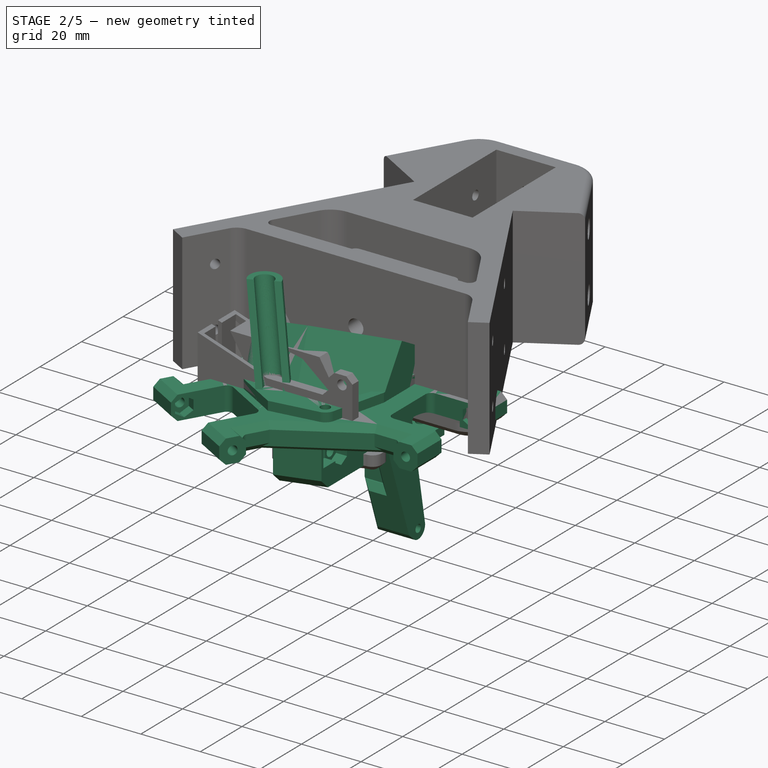
[diagram: stage 2 of 5 — iso view after this stage's code; geometry added in this stage tinted green]
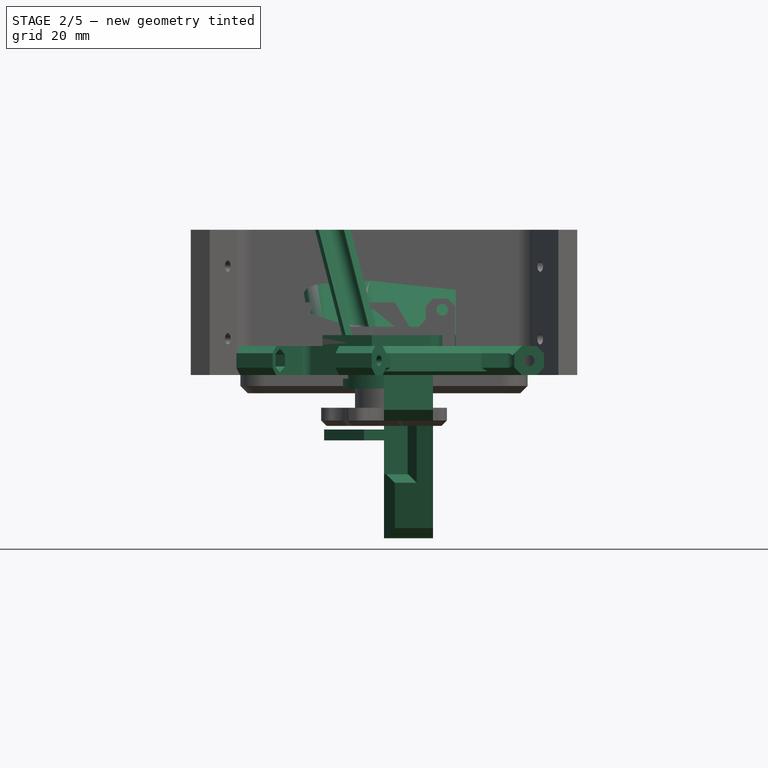
[diagram: stage 2 of 5 — front view after this stage's code; geometry added in this stage tinted green]
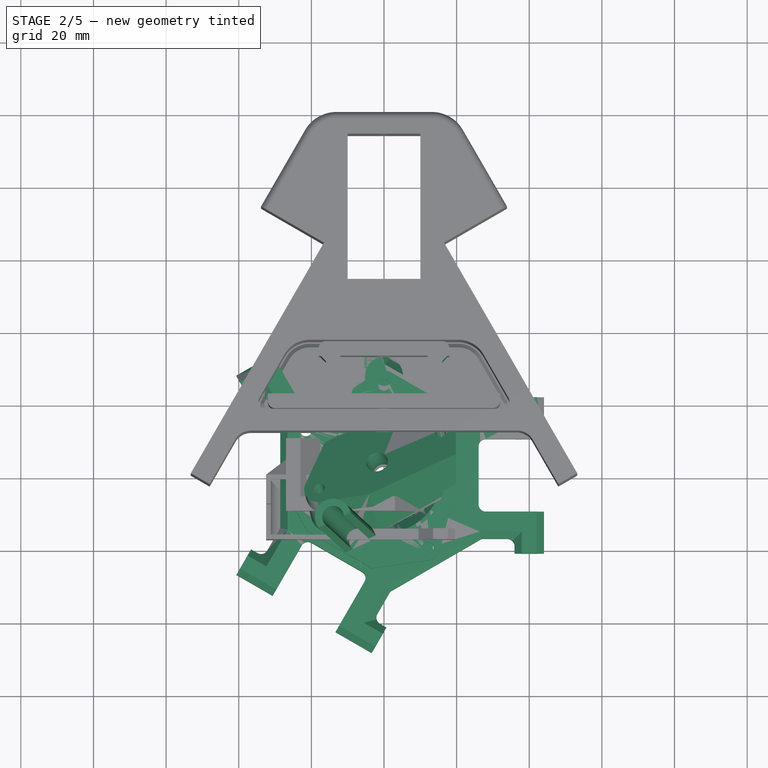
[diagram: stage 2 of 5 — top view after this stage's code; geometry added in this stage tinted green]
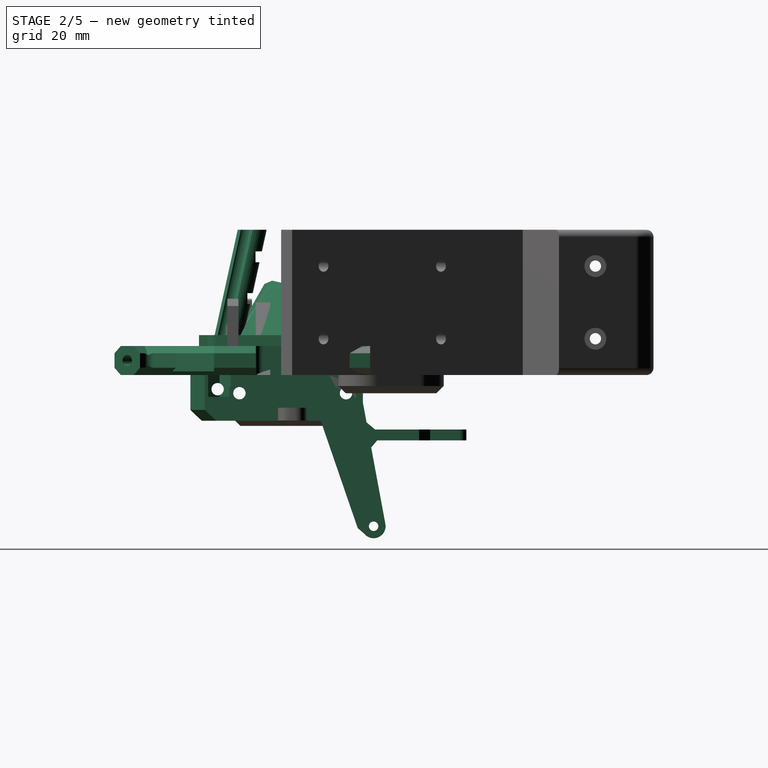
[diagram: stage 2 of 5 — right view after this stage's code; geometry added in this stage tinted green]
FEATURE [PartDesign::Body] Body017  label="FilamentTubeMount"
  Group = -> [Sketch090,Pad021,Sketch091,Pad022,Sketch092,Sketch093,Pad023,Pad024,Sketch094,Pad025,Chamfer051]
  Origin = -> Origin017
  Tip = -> Chamfer051
FEATURE [Part::Feature] Solid  label="BL-touch"
  Placement = pos=(-2,33,-18) rot=(0,0,1;0rad)
  shape: bbox 26 x 15.81 x 42.4 mm, 39 faces (baked)
FEATURE [PartDesign::Plane] DatumPlane013
  AttachmentOffset = pos=(0,0,23.5) rot=(-0.764598,-0.031203,0.643752;0.700681rad)
  Length = 91.316
  MapMode = 5
  Placement = pos=(0,0,23.5) rot=(-0.764598,-0.031203,0.643752;0.700681rad)
  ResizeMode = 0
  Support = -> [XY_Plane019]
  Width = 111.159
FEATURE [PartDesign::Plane] DatumPlane014
  AttachmentOffset = pos=(0,6,0) rot=(-0.089425,0.995842,0.017382;0.385536rad)
  Length = 82.7015
  MapMode = 5
  Placement = pos=(-1.3e-15,1.3e-15,6) rot=(0.424288,0.629032,0.651382;2.31365rad)
  ResizeMode = 0
  Support = -> [YZ_Plane019]
  Width = 80.9372
FEATURE [Sketcher::SketchObject] Sketch119
  AttachmentOffset = pos=(-2.6,10.8,17) rot=(-0.764563,-0.03018,0.643842;0.70075rad)
  FullyConstrained = false
  MapMode = 5
  Placement = pos=(-2.6,10.8,17) rot=(-0.764563,-0.03018,0.643842;0.70075rad)
  Support = -> [XY_Plane019]
  sketch-geometry (26):
    g0: LineSegment StartX=-23.9577 StartY=0.35 StartZ=0 EndX=5.21741 EndY=0.35 EndZ=0
    g1: LineSegment StartX=-24.9577 StartY=-0.65 StartZ=0 EndX=-24.9577 EndY=-8 EndZ=0
    g2: LineSegment StartX=-15.0932 StartY=-20.351 StartZ=0 EndX=-23.7488 EndY=-11.069 EndZ=0
    g3: LineSegment StartX=8.3423 StartY=-20.669 StartZ=0 EndX=-14.3618 EndY=-20.669 EndZ=0
    g4: LineSegment StartX=19.5144 StartY=-11.3009 StartZ=0 EndX=9.68057 EndY=-20.1553 EndZ=0
    g5: LineSegment StartX=5.21741 StartY=0.35 StartZ=0 EndX=17.9149 EndY=-3.77566 EndZ=0
    g6: Circle CenterX=16.5423 CenterY=-8 CenterZ=0 NormalX=0 NormalY=0 NormalZ=1 AngleXU=0 Radius=1.5
    g7: Circle CenterX=-2.9577 CenterY=-8 CenterZ=0 NormalX=0 NormalY=0 NormalZ=1 AngleXU=0 Radius=2
    g8: Circle CenterX=-20.4577 CenterY=-8 CenterZ=0 NormalX=0 NormalY=0 NormalZ=1 AngleXU=0 Radius=1.5
    g9: ArcOfCircle CenterX=16.5423 CenterY=-8 CenterZ=0 NormalX=0 NormalY=0 NormalZ=1 AngleXU=0 Radius=4.44174 StartAngle=5.44543 EndAngle=7.53982
    g10: ArcOfCircle CenterX=-20.4577 CenterY=-8 CenterZ=0 NormalX=0 NormalY=0 NormalZ=1 AngleXU=0 Radius=4.5 StartAngle=3.14159 EndAngle=3.89208
    g11: ArcOfCircle CenterX=-23.9577 CenterY=-0.65 CenterZ=0 NormalX=0 NormalY=0 NormalZ=1 AngleXU=0 Radius=1 StartAngle=1.5708 EndAngle=3.14159
    g12: ArcOfCircle CenterX=-14.3618 CenterY=-19.669 CenterZ=0 NormalX=0 NormalY=0 NormalZ=1 AngleXU=0 Radius=1 StartAngle=3.89208 EndAngle=4.71239
    g13: ArcOfCircle CenterX=8.3423 CenterY=-18.669 CenterZ=0 NormalX=0 NormalY=0 NormalZ=1 AngleXU=0 Radius=2 StartAngle=4.71239 EndAngle=5.44543
    g14: LineSegment StartX=-20.4577 StartY=-8 StartZ=0 EndX=16.5423 EndY=-8 EndZ=0
    g15: LineSegment StartX=-23.3696 StartY=-4.87736 StartZ=0 EndX=-13.6217 EndY=4.21271 EndZ=0
    g16: LineSegment StartX=-12.2577 StartY=4.75 StartZ=0 EndX=10.061 EndY=4.75 EndZ=0
    g17: LineSegment StartX=10.7804 StartY=4.44466 StartZ=0 EndX=19.7793 EndY=-4.87404 EndZ=0
    g18: LineSegment StartX=21.0423 StartY=-8 StartZ=0 EndX=21.0423 EndY=-15.35 EndZ=0
    g19: LineSegment StartX=20.0423 StartY=-16.35 StartZ=0 EndX=-8.9577 EndY=-16.35 EndZ=0
    g20: LineSegment StartX=-8.9577 StartY=-16.35 StartZ=0 EndX=-21.8124 EndY=-12.049 EndZ=0
    g21: ArcOfCircle CenterX=16.5423 CenterY=-8 CenterZ=0 NormalX=0 NormalY=0 NormalZ=1 AngleXU=0 Radius=4.5 StartAngle=0 EndAngle=0.767945
    g22: ArcOfCircle CenterX=20.0423 CenterY=-15.35 CenterZ=0 NormalX=0 NormalY=0 NormalZ=1 AngleXU=0 Radius=1 StartAngle=4.71239 EndAngle=6.28319
    g23: ArcOfCircle CenterX=10.061 CenterY=3.75 CenterZ=0 NormalX=0 NormalY=0 NormalZ=1 AngleXU=0 Radius=1 StartAngle=0.767945 EndAngle=1.5708
    g24: ArcOfCircle CenterX=-12.2577 CenterY=2.75 CenterZ=0 NormalX=0 NormalY=0 NormalZ=1 AngleXU=0 Radius=2 StartAngle=1.5708 EndAngle=2.32129
    g25: ArcOfCircle CenterX=-20.4577 CenterY=-8 CenterZ=0 NormalX=0 NormalY=0 NormalZ=1 AngleXU=0 Radius=4.26967 StartAngle=2.32129 EndAngle=4.38952
  constraints (62):
    c: Horizontal(g0)
    c: Vertical(g1)
    c: Horizontal(g3)
    c: Coincident(g5,g0)
    c: Angle(g2,g1) = 2.3911
    c: Angle(g0,g5) = 2.82743
    c: Angle(g5,g4) = 1.0472
    c: Equal(g8,g6)
    c: Radius(g6) = 1.5
    c: Radius(g7) = 2
    c: Horizontal(g8,g7)
    c: Horizontal(g7,g6)
    c: DistanceX(g8,g7) = 17.5
    c: DistanceX(g7,g6) = 19.5
    c: DistanceY(g7,g0) = 8.35
    c: Tangent(g5,g9) = 1.5708
    c: Tangent(g4,g9) = 1.5708
    c: Coincident(g9,g6)
    c: Tangent(g1,g10) = -1.5708
    c: Tangent(g2,g10) = 1.5708
    c: Coincident(g10,g8)
    c: Tangent(g1,g11) = -1.5708
    c: Tangent(g0,g11) = 1.5708
    c: Radius(g11) = 1
    c: Tangent(g2,g12) = 1.5708
    c: Tangent(g3,g12) = 1.5708
    c: Radius(g12) = 1
    c: Tangent(g3,g13) = 1.5708
    c: Tangent(g4,g13) = 1.5708
    c: Radius(g13) = 2
    c: DistanceY(g12,g2) = 8.6
    c: DistanceX(g13,g6) = 8.2
    c: DistanceX(g11,g8) = 3.5
    c: Coincident(g14,g8)
    c: Coincident(g14,g6)
    c: Horizontal(g16)
    c: Horizontal(g19)
    c: Coincident(g20,g19)
    c: Tangent(g17,g21) = 1.5708
    c: Tangent(g18,g21) = 1.5708
    c: Coincident(g21,g6)
    c: Tangent(g19,g22) = 1.5708
    c: Tangent(g18,g22) = 1.5708
    c: Radius(g22) = 1
    c: Vertical(g18)
    c: DistanceY(g19,g7) = 8.35
    c: Tangent(g16,g23) = 1.5708
    c: Tangent(g17,g23) = 1.5708
    c: Radius(g23) = 1
    c: Tangent(g15,g24) = 1.5708
    c: Tangent(g16,g24) = 1.5708
    c: Radius(g24) = 2
    c: DistanceX(g8,g24) = 8.2
    c: Angle(g15,g16) = 2.3911
    c: DistanceX(g6,g22) = 3.5
    c: Distance(g19) = 29
    c: Tangent(g15,g25) = 1.5708
    c: Tangent(g20,g25) = 1.5708
    c: Coincident(g25,g8)
    c: Angle(g16,g17) = 2.33874
    c: DistanceY(g7,g-1) = 8
    c: DistanceY(g7,g24) = 10.75
FEATURE [Sketcher::SketchObject] Sketch120
  AttachmentOffset = pos=(0,0,8) rot=(0,0,1;0rad)
  FullyConstrained = false
  MapMode = 5
  Placement = pos=(0,0,8) rot=(0,0,1;0rad)
  Support = -> [XY_Plane019]
  sketch-geometry (24):
    g0: LineSegment StartX=-25.5 StartY=14.5179 StartZ=0 EndX=-25.5 EndY=-7.98205 EndZ=0
    g1: LineSegment StartX=-25.5 StartY=14.5179 StartZ=0 EndX=-15.9365 EndY=19.7477 EndZ=0
    g2: LineSegment StartX=2 StartY=28.2641 StartZ=0 EndX=17.3 EndY=19.4306 EndZ=0
    g3: LineSegment StartX=19.8 StartY=15.1005 StartZ=0 EndX=19.8 EndY=-3 EndZ=0
    g4: LineSegment StartX=19.8 StartY=-3 StartZ=0 EndX=15.353 EndY=-20.836 EndZ=0
    g5: LineSegment StartX=12.6001 StartY=-23.4031 StartZ=0 EndX=-3.89496 EndY=-19.2905 EndZ=0
    g6: LineSegment StartX=-3.89496 StartY=-19.2905 StartZ=0 EndX=-25.5 EndY=-7.98205 EndZ=0
    g7: Circle CenterX=-7e-16 CenterY=24.8 CenterZ=0 NormalX=0 NormalY=0 NormalZ=1 AngleXU=0 Radius=1.6
    g8: Circle CenterX=12 CenterY=-20 CenterZ=0 NormalX=0 NormalY=0 NormalZ=1 AngleXU=0 Radius=1.6
    g9: Circle CenterX=-21.5 CenterY=12.3 CenterZ=0 NormalX=0 NormalY=0 NormalZ=1 AngleXU=0 Radius=1.6
    g10: Circle CenterX=0 CenterY=0 CenterZ=0 NormalX=0 NormalY=0 NormalZ=1 AngleXU=0 Radius=17
    g11: ArcOfCircle CenterX=-7e-16 CenterY=24.8 CenterZ=0 NormalX=0 NormalY=0 NormalZ=1 AngleXU=0 Radius=4 StartAngle=1.0472 EndAngle=2.0944
    g12: LineSegment StartX=-2 StartY=28.2641 StartZ=0 EndX=0.0542742 EndY=29.3875 EndZ=0
    g13: LineSegment StartX=0.0542742 StartY=29.3875 StartZ=0 EndX=2 EndY=28.2641 EndZ=0
    g14: ArcOfCircle CenterX=14.8 CenterY=15.1005 CenterZ=0 NormalX=0 NormalY=0 NormalZ=1 AngleXU=0 Radius=5 StartAngle=0 EndAngle=1.0472
    g15: LineSegment StartX=17.3 StartY=19.4306 StartZ=0 EndX=19.8 EndY=17.9873 EndZ=0
    g16: LineSegment StartX=19.8 StartY=15.1005 StartZ=0 EndX=19.8 EndY=17.9873 EndZ=0
    g17: ArcOfCircle CenterX=12 CenterY=-20 CenterZ=0 NormalX=0 NormalY=0 NormalZ=1 AngleXU=0 Radius=3.45563 StartAngle=4.88692 EndAngle=6.03884
    g18: ArcOfCircle CenterX=-12.8782 CenterY=22.3258 CenterZ=0 NormalX=0 NormalY=0 NormalZ=1 AngleXU=0 Radius=4 StartAngle=3.842 EndAngle=6.59208
    g19: LineSegment StartX=-9.06751 StartY=23.5418 StartZ=0 EndX=-2 EndY=28.2641 EndZ=0
    g20: LineSegment StartX=-15.9365 StartY=19.7477 StartZ=0 EndX=-9.06751 EndY=23.5418 EndZ=0
    g21: LineSegment StartX=-25.5 StartY=-7.98205 StartZ=0 EndX=-20.9104 EndY=-15.9315 EndZ=0
    g22: LineSegment StartX=-20.9104 StartY=-15.9315 StartZ=0 EndX=-3.15686 EndY=-26.1815 EndZ=0
    g23: LineSegment StartX=-3.15686 StartY=-26.1815 StartZ=0 EndX=12.6001 EndY=-23.4031 EndZ=0
  constraints (61):
    c: Vertical(g0)
    c: Vertical(g3)
    c: Coincident(g6,g5)
    c: Coincident(g0,g1)
    c: Coincident(g4,g3)
    c: Angle(g2,g3) = 2.0944
    c: DistanceY(g0,g0) = 22.5
    c: Angle(g3,g4) = 2.89725
    c: Angle(g4,g5) = 1.5708
    c: Coincident(g0,g6)
    c: DistanceY(g3,g-1) = 3
    c: Radius(g8) = 1.6
    c: Equal(g8,g7)
    c: Equal(g7,g9)
    c: DistanceY(g8,g-1) = 20
    c: DistanceX(g-1,g8) = 12
    c: DistanceY(g-1,g9) = 12.3
    c: DistanceX(g9,g-1) = 21.5
    c: DistanceY(g-1,g7) = 24.8
    c: Coincident(g10,g-1)
    c: Radius(g10) = 17
    c: Coincident(g19,g11) = 1.5708
    c: Tangent(g2,g11) = 1.5708
    c: Radius(g11) = 4
    c: Symmetric(g2,g19,g-2)
    c: Coincident(g12,g19)
    c: Coincident(g13,g12)
    c: Coincident(g13,g2)
    c: Parallel(g12,g1)
    c: Parallel(g13,g2)
    c: Coincident(g11,g7)
    c: Tangent(g2,g14) = 1.5708
    c: Tangent(g3,g14) = 1.5708
    c: Radius(g14) = 5
    c: Coincident(g15,g2)
    c: Coincident(g16,g3)
    c: Coincident(g16,g15)
    c: Parallel(g16,g3)
    c: Parallel(g15,g2)
    c: DistanceX(g-1,g14) = 14.8
    c: Tangent(g4,g17) = 1.5708
    c: Coincident(g17,g8)
    c: DistanceX(g0,g10) = 25.5
    c: Distance(g5) = 17
    c: Radius(g18) = 4
    c: Coincident(g18,g19)
    c: Coincident(g18,g1)
    c: Coincident(g20,g1)
    c: Coincident(g20,g18)
    c: Distance(g19) = 8.5
    c: Distance(g1) = 10.9
    c: Coincident(g21,g0)
    c: Coincident(g22,g21)
    c: Coincident(g23,g22)
    c: Coincident(g23,g5)
    c: Angle(g21,g0) = 2.61799
    c: Angle(g22,g-1) = 0.523599
    c: Angle(g23,g22) = 2.44346
    c: Tangent(g17,g23) = -1.5708
    c: Distance(g22) = 20.5
    c: Distance(g23) = 16
FEATURE [PartDesign::Pad] Pad031
  Direction = (0,0,1)
  Length = 3
  Length2 = 10
  Profile = -> Sketch120
  ReferenceAxis = -> Sketch120 [N_Axis]
  Type = 0
FEATURE [PartDesign::Pad] Pad032
  BaseFeature = -> Pad031
  Direction = (-0.135456,0.488404,0.86204)
  Length = 22
  Length2 = 10
  Profile = -> Sketch119
  ReferenceAxis = -> Sketch119 [N_Axis]
  Reversed = true
  Type = 0
FEATURE [Sketcher::SketchObject] Sketch121
  FullyConstrained = false
  MapMode = 5
  Placement = pos=(-4e-16,0,23.5) rot=(-0.764598,-0.031203,0.643752;0.700681rad)
  Support = -> [DatumPlane013]
  sketch-geometry (4):
    g0: Circle CenterX=14.2129 CenterY=13.5712 CenterZ=0 NormalX=0 NormalY=0 NormalZ=1 AngleXU=0 Radius=1.28085
    g1: Circle CenterX=-18.3045 CenterY=-4.08147 CenterZ=0 NormalX=0 NormalY=0 NormalZ=1 AngleXU=0 Radius=1.2348
    g2: Circle CenterX=-13.4284 CenterY=62.1955 CenterZ=0 NormalX=0 NormalY=0 NormalZ=1 AngleXU=0 Radius=2.3
    g3: LineSegment StartX=-18.229 StartY=59.0702 StartZ=0 EndX=17.0028 EndY=64.8976 EndZ=0
  constraints (3):
    c: Distance(g1,g0) = 37
    c: Radius(g2) = 2.3
    c: Tangent(g3,g2)
FEATURE [Sketcher::SketchObject] Sketch122
  AttachmentOffset = pos=(0,0,8) rot=(0,0,1;0rad)
  FullyConstrained = true
  MapMode = 5
  Placement = pos=(0,0,8) rot=(0,0,1;0rad)
  Support = -> [XY_Plane019]
  sketch-geometry (9):
    g0: LineSegment StartX=-20.3974 StartY=-5.78667 StartZ=0 EndX=-14.2079 EndY=-1.12261 EndZ=0
    g1: LineSegment StartX=-14.2079 StartY=-1.12261 StartZ=0 EndX=-15.8903 EndY=5.15591 EndZ=0
    g2: LineSegment StartX=-15.8903 StartY=5.15591 StartZ=0 EndX=13.0875 EndY=12.9205 EndZ=0
    g3: LineSegment StartX=13.0875 StartY=12.9205 StartZ=0 EndX=16.1933 EndY=1.32937 EndZ=0
    g4: LineSegment StartX=16.1933 StartY=1.32937 StartZ=0 EndX=7.5 EndY=-1 EndZ=0
    g5: LineSegment StartX=7.5 StartY=-1 StartZ=0 EndX=9.57055 EndY=-8.72741 EndZ=0
    g6: LineSegment StartX=9.57055 StartY=-8.72741 StartZ=0 EndX=-9.69315 EndY=-15.7388 EndZ=0
    g7: LineSegment StartX=-9.69315 StartY=-15.7388 StartZ=0 EndX=-18.064 EndY=-14.2628 EndZ=0
    g8: ArcOfCircle CenterX=-11.6588 CenterY=-7.94032 CenterZ=0 NormalX=0 NormalY=0 NormalZ=1 AngleXU=0 Radius=9 StartAngle=2.89995 EndAngle=3.9205
  constraints (28):
    c: Coincident(g1,g0)
    c: Coincident(g2,g1)
    c: Coincident(g3,g2)
    c: Coincident(g4,g3)
    c: Coincident(g5,g4)
    c: Coincident(g6,g5)
    c: Distance(g2) = 30
    c: Distance(g3) = 12
    c: Distance(g4) = 9
    c: Distance(g5) = 8
    c: Distance(g6) = 20.5
    c: Perpendicular(g3,g2)
    c: Perpendicular(g4,g3)
    c: Perpendicular(g5,g4)
    c: Angle(g5,g6) = 1.65806
    c: Distance(g1) = 6.5
    c: Angle(g1,g2) = 1.5708
    c: Angle(g1,g0) = 1.95477
    c: Coincident(g7,g6)
    c: Coincident(g8,g0)
    c: Coincident(g8,g7)
    c: Angle(g6,g7) = 2.61799
    c: Radius(g8) = 9
    c: Angle(g4,g-1) = 2.87979
    c: DistanceX(g-1,g4) = 7.5
    c: DistanceY(g4,g-1) = 1
    c: Distance(g0) = 7.75
    c: Distance(g7) = 8.5
FEATURE [Sketcher::SketchObject] Sketch123
  AttachmentOffset = pos=(-2,7.6,8) rot=(0,0,1;0.488692rad)
  FullyConstrained = false
  MapMode = 5
  Placement = pos=(-2,7.6,8) rot=(0,0,1;0.488692rad)
  Support = -> [XY_Plane019]
  sketch-geometry (15):
    g0: LineSegment StartX=-24.8464 StartY=0.698657 StartZ=0 EndX=4.32872 EndY=0.698657 EndZ=0
    g1: LineSegment StartX=-25.8464 StartY=-0.301343 StartZ=0 EndX=-25.8464 EndY=-7.65134 EndZ=0
    g2: LineSegment StartX=-15.9819 StartY=-20.0023 StartZ=0 EndX=-24.6375 EndY=-10.7203 EndZ=0
    g3: LineSegment StartX=7.45362 StartY=-20.3203 StartZ=0 EndX=-15.2505 EndY=-20.3203 EndZ=0
    g4: LineSegment StartX=18.6257 StartY=-10.9522 StartZ=0 EndX=8.79188 EndY=-19.8066 EndZ=0
    g5: LineSegment StartX=4.32872 StartY=0.698657 StartZ=0 EndX=17.0262 EndY=-3.427 EndZ=0
    g6: Circle CenterX=15.6536 CenterY=-7.65134 CenterZ=0 NormalX=0 NormalY=0 NormalZ=1 AngleXU=0 Radius=1.6
    g7: Circle CenterX=-1.84638 CenterY=-7.65134 CenterZ=0 NormalX=0 NormalY=0 NormalZ=1 AngleXU=0 Radius=3
    g8: Circle CenterX=-21.3464 CenterY=-7.65134 CenterZ=0 NormalX=0 NormalY=0 NormalZ=1 AngleXU=0 Radius=1.6
    g9: ArcOfCircle CenterX=15.6536 CenterY=-7.65134 CenterZ=0 NormalX=0 NormalY=0 NormalZ=1 AngleXU=0 Radius=4.44174 StartAngle=5.44543 EndAngle=7.53982
    g10: ArcOfCircle CenterX=-21.3464 CenterY=-7.65134 CenterZ=0 NormalX=0 NormalY=0 NormalZ=1 AngleXU=0 Radius=4.5 StartAngle=3.14159 EndAngle=3.89208
    g11: ArcOfCircle CenterX=-24.8464 CenterY=-0.301343 CenterZ=0 NormalX=0 NormalY=0 NormalZ=1 AngleXU=0 Radius=1 StartAngle=1.5708 EndAngle=3.14159
    g12: ArcOfCircle CenterX=-15.2505 CenterY=-19.3203 CenterZ=0 NormalX=0 NormalY=0 NormalZ=1 AngleXU=0 Radius=1 StartAngle=3.89208 EndAngle=4.71239
    g13: ArcOfCircle CenterX=7.45362 CenterY=-18.3203 CenterZ=0 NormalX=0 NormalY=0 NormalZ=1 AngleXU=0 Radius=2 StartAngle=4.71239 EndAngle=5.44543
    g14: Circle CenterX=-1.82332 CenterY=-7.64595 CenterZ=0 NormalX=0 NormalY=0 NormalZ=1 AngleXU=0 Radius=17
  constraints (34):
    c: Horizontal(g0)
    c: Vertical(g1)
    c: Horizontal(g3)
    c: Coincident(g5,g0)
    c: Angle(g2,g1) = 2.3911
    c: Angle(g0,g5) = 2.82743
    c: Angle(g5,g4) = 1.0472
    c: Equal(g8,g6)
    c: Radius(g6) = 1.6
    c: Radius(g7) = 3
    c: Horizontal(g8,g7)
    c: Horizontal(g7,g6)
    c: DistanceX(g8,g7) = 19.5
    c: DistanceX(g7,g6) = 17.5
    c: DistanceY(g7,g0) = 8.35
    c: Tangent(g5,g9) = 1.5708
    c: Tangent(g4,g9) = 1.5708
    c: Coincident(g9,g6)
    c: Tangent(g1,g10) = -1.5708
    c: Tangent(g2,g10) = 1.5708
    c: Coincident(g10,g8)
    c: Tangent(g0,g11) = 1.5708
    c: Tangent(g1,g11) = -1.5708
    c: Radius(g11) = 1
    c: Tangent(g2,g12) = 1.5708
    c: Tangent(g3,g12) = 1.5708
    c: Radius(g12) = 1
    c: Tangent(g3,g13) = 1.5708
    c: Tangent(g4,g13) = 1.5708
    c: Radius(g13) = 2
    c: DistanceY(g12,g2) = 8.6
    c: DistanceX(g11,g8) = 3.5
    c: DistanceX(g13,g6) = 8.2
    c: Radius(g14) = 17
FEATURE [Sketcher::SketchObject] Sketch124
  AttachmentOffset = pos=(-3.6,12.8,15) rot=(-0.764563,-0.03018,0.643842;0.70075rad)
  FullyConstrained = false
  MapMode = 5
  Placement = pos=(-3.6,12.8,15) rot=(-0.764563,-0.03018,0.643842;0.70075rad)
  Support = -> [XY_Plane019]
  sketch-geometry (14):
    g0: LineSegment StartX=-24.2243 StartY=0.450036 StartZ=0 EndX=4.95084 EndY=0.450036 EndZ=0
    g1: LineSegment StartX=-25.2243 StartY=-0.549964 StartZ=0 EndX=-25.2243 EndY=-7.89996 EndZ=0
    g2: LineSegment StartX=-15.3598 StartY=-20.251 StartZ=0 EndX=-24.0154 EndY=-10.969 EndZ=0
    g3: LineSegment StartX=8.07574 StartY=-20.569 StartZ=0 EndX=-14.6284 EndY=-20.569 EndZ=0
    g4: LineSegment StartX=19.2478 StartY=-11.2008 StartZ=0 EndX=9.414 EndY=-20.0552 EndZ=0
    g5: LineSegment StartX=4.95084 StartY=0.450036 StartZ=0 EndX=17.6483 EndY=-3.67562 EndZ=0
    g6: Circle CenterX=16.2757 CenterY=-7.89996 CenterZ=0 NormalX=0 NormalY=0 NormalZ=1 AngleXU=0 Radius=1.6
    g7: Circle CenterX=-1.22426 CenterY=-7.89996 CenterZ=0 NormalX=0 NormalY=0 NormalZ=1 AngleXU=0 Radius=2
    g8: Circle CenterX=-20.7243 CenterY=-7.89996 CenterZ=0 NormalX=0 NormalY=0 NormalZ=1 AngleXU=0 Radius=1.6
    g9: ArcOfCircle CenterX=16.2757 CenterY=-7.89996 CenterZ=0 NormalX=0 NormalY=0 NormalZ=1 AngleXU=0 Radius=4.44174 StartAngle=5.44543 EndAngle=7.53982
    g10: ArcOfCircle CenterX=-20.7243 CenterY=-7.89996 CenterZ=0 NormalX=0 NormalY=0 NormalZ=1 AngleXU=0 Radius=4.5 StartAngle=3.14159 EndAngle=3.89208
    g11: ArcOfCircle CenterX=-24.2243 CenterY=-0.549964 CenterZ=0 NormalX=0 NormalY=0 NormalZ=1 AngleXU=0 Radius=1 StartAngle=1.5708 EndAngle=3.14159
    g12: ArcOfCircle CenterX=-14.6284 CenterY=-19.569 CenterZ=0 NormalX=0 NormalY=0 NormalZ=1 AngleXU=0 Radius=1 StartAngle=3.89208 EndAngle=4.71239
    g13: ArcOfCircle CenterX=8.07574 CenterY=-18.569 CenterZ=0 NormalX=0 NormalY=0 NormalZ=1 AngleXU=0 Radius=2 StartAngle=4.71239 EndAngle=5.44543
  constraints (33):
    c: Horizontal(g0)
    c: Vertical(g1)
    c: Horizontal(g3)
    c: Coincident(g5,g0)
    c: Angle(g2,g1) = 2.3911
    c: Angle(g0,g5) = 2.82743
    c: Angle(g5,g4) = 1.0472
    c: Equal(g8,g6)
    c: Radius(g6) = 1.6
    c: Radius(g7) = 2
    c: Horizontal(g8,g7)
    c: Horizontal(g7,g6)
    c: DistanceX(g8,g7) = 19.5
    c: DistanceX(g7,g6) = 17.5
    c: DistanceY(g7,g0) = 8.35
    c: Tangent(g5,g9) = 1.5708
    c: Tangent(g4,g9) = 1.5708
    c: Coincident(g9,g6)
    c: Tangent(g1,g10) = -1.5708
    c: Tangent(g2,g10) = 1.5708
    c: Coincident(g10,g8)
    c: Tangent(g1,g11) = -1.5708
    c: Tangent(g0,g11) = 1.5708
    c: Radius(g11) = 1
    c: Tangent(g2,g12) = 1.5708
    c: Tangent(g3,g12) = 1.5708
    c: Radius(g12) = 1
    c: Tangent(g3,g13) = 1.5708
    c: Tangent(g4,g13) = 1.5708
    c: Radius(g13) = 2
    c: DistanceY(g12,g2) = 8.6
    c: DistanceX(g13,g6) = 8.2
    c: DistanceX(g11,g8) = 3.5
FEATURE [Sketcher::SketchObject] Sketch125
  AttachmentOffset = pos=(0,0,8) rot=(0,0,1;0rad)
  FullyConstrained = false
  MapMode = 5
  Placement = pos=(0,0,8) rot=(0,0,1;0rad)
  Support = -> [XY_Plane019]
  sketch-geometry (22):
    g0: LineSegment StartX=-25.5 StartY=14.6964 StartZ=0 EndX=-25.5 EndY=-7.80363 EndZ=0
    g1: LineSegment StartX=-25.5 StartY=14.6964 StartZ=0 EndX=-2 EndY=28.2641 EndZ=0
    g2: LineSegment StartX=2 StartY=28.2641 StartZ=0 EndX=17.3 EndY=19.4306 EndZ=0
    g3: LineSegment StartX=19.8 StartY=15.1005 StartZ=0 EndX=19.8 EndY=-3 EndZ=0
    g4: LineSegment StartX=19.8 StartY=-3 StartZ=0 EndX=15.353 EndY=-20.836 EndZ=0
    g5: LineSegment StartX=11.164 StartY=-23.353 StartZ=0 EndX=-5.33102 EndY=-19.2403 EndZ=0
    g6: LineSegment StartX=-5.33102 StartY=-19.2403 StartZ=0 EndX=-25.5 EndY=-7.80363 EndZ=0
    g7: Circle CenterX=2.2e-15 CenterY=24.8 CenterZ=0 NormalX=0 NormalY=0 NormalZ=1 AngleXU=0 Radius=1.6
    g8: Circle CenterX=12 CenterY=-20 CenterZ=0 NormalX=0 NormalY=0 NormalZ=1 AngleXU=0 Radius=1.6
    g9: Circle CenterX=-21.5 CenterY=12.3 CenterZ=0 NormalX=0 NormalY=0 NormalZ=1 AngleXU=0 Radius=1.6
    g10: Circle CenterX=0 CenterY=0 CenterZ=0 NormalX=0 NormalY=0 NormalZ=1 AngleXU=0 Radius=17
    g11: ArcOfCircle CenterX=2.2e-15 CenterY=24.8 CenterZ=0 NormalX=0 NormalY=0 NormalZ=1 AngleXU=0 Radius=4 StartAngle=1.0472 EndAngle=2.0944
    g12: LineSegment StartX=-2 StartY=28.2641 StartZ=0 EndX=-2.4e-15 EndY=29.4188 EndZ=0
    g13: LineSegment StartX=-2.7e-15 StartY=29.4188 StartZ=0 EndX=2 EndY=28.2641 EndZ=0
    g14: ArcOfCircle CenterX=14.8 CenterY=15.1005 CenterZ=0 NormalX=0 NormalY=0 NormalZ=1 AngleXU=0 Radius=5 StartAngle=0 EndAngle=1.0472
    g15: LineSegment StartX=17.3 StartY=19.4306 StartZ=0 EndX=19.8 EndY=17.9873 EndZ=0
    g16: LineSegment StartX=19.8 StartY=15.1005 StartZ=0 EndX=19.8 EndY=17.9873 EndZ=0
    g17: ArcOfCircle CenterX=12 CenterY=-20 CenterZ=0 NormalX=0 NormalY=0 NormalZ=1 AngleXU=0 Radius=3.45563 StartAngle=4.85141 EndAngle=6.03884
    g18: Circle CenterX=0 CenterY=3.70603 CenterZ=0 NormalX=0 NormalY=0 NormalZ=1 AngleXU=0 Radius=33.3091
    g19: LineSegment StartX=-25.5 StartY=-7.80363 StartZ=0 EndX=-21.1203 EndY=-15.3896 EndZ=0
    g20: LineSegment StartX=-21.1203 StartY=-15.3896 StartZ=0 EndX=-3.36675 EndY=-25.6396 EndZ=0
    g21: LineSegment StartX=-3.36675 StartY=-25.6396 StartZ=0 EndX=12.4789 EndY=-23.4223 EndZ=0
  constraints (53):
    c: Vertical(g0)
    c: Vertical(g3)
    c: Coincident(g6,g5)
    c: Coincident(g0,g1)
    c: Coincident(g4,g3)
    c: Angle(g2,g3) = 2.0944
    c: DistanceY(g0,g0) = 22.5
    c: Angle(g3,g4) = 2.89725
    c: Angle(g4,g5) = 1.5708
    c: Coincident(g0,g6)
    c: DistanceY(g3,g-1) = 3
    c: Radius(g8) = 1.6
    c: Equal(g8,g7)
    c: Equal(g7,g9)
    c: DistanceY(g8,g-1) = 20
    c: DistanceX(g-1,g8) = 12
    c: DistanceY(g-1,g9) = 12.3
    c: DistanceX(g9,g-1) = 21.5
    c: DistanceY(g-1,g7) = 24.8
    c: Coincident(g10,g-1)
    c: Radius(g10) = 17
    c: Tangent(g1,g11) = 1.5708
    c: Tangent(g2,g11) = 1.5708
    c: Radius(g11) = 4
    c: Symmetric(g2,g1,g-2)
    c: Coincident(g12,g1)
    c: Coincident(g13,g12)
    c: Coincident(g13,g2)
    c: Parallel(g12,g1)
    c: Parallel(g13,g2)
    c: Coincident(g11,g7)
    c: Tangent(g2,g14) = 1.5708
    c: Tangent(g3,g14) = 1.5708
    c: Radius(g14) = 5
    c: Coincident(g15,g2)
    c: Coincident(g16,g3)
    c: Coincident(g16,g15)
    c: Parallel(g16,g3)
    c: Parallel(g15,g2)
    c: DistanceX(g-1,g14) = 14.8
    c: Tangent(g4,g17) = 1.5708
    c: Coincident(g17,g8)
    c: DistanceX(g0,g10) = 25.5
    c: Distance(g5) = 17
    c: PointOnObject(g18,g-2)
    c: Coincident(g19,g0)
    c: Coincident(g20,g19)
    c: Coincident(g21,g20)
    c: Tangent(g21,g17) = -1.5708
    c: Distance(g20) = 20.5
    c: Angle(g19,g0) = 2.61799
    c: Angle(g20,g-1) = 0.523599
    c: Distance(g21) = 16
FEATURE [PartDesign::Pocket] Pocket070
  BaseFeature = -> Pad032
  Direction = (0,0,-1)
  Length = 13
  Length2 = 24.9
  Midplane = true
  Profile = -> Sketch125
  ReferenceAxis = -> Sketch125 [N_Axis]
  Type = 4
FEATURE [Sketcher::SketchObject] Sketch126
  FullyConstrained = false
  MapMode = 5
  Placement = pos=(0,0,0) rot=(1,0,0;1.5708rad)
  Support = -> [XZ_Plane019]
  sketch-geometry (4):
    g0: LineSegment StartX=-27.2554 StartY=8 StartZ=0 EndX=24.4422 EndY=8 EndZ=0
    g1: LineSegment StartX=24.4422 StartY=8 StartZ=0 EndX=24.4422 EndY=-7.936 EndZ=0
    g2: LineSegment StartX=24.4422 StartY=-7.936 StartZ=0 EndX=-27.2554 EndY=-7.936 EndZ=0
    g3: LineSegment StartX=-27.2554 StartY=-7.936 StartZ=0 EndX=-27.2554 EndY=8 EndZ=0
  constraints (9):
    c: Coincident(g0,g1)
    c: Coincident(g1,g2)
    c: Coincident(g2,g3)
    c: Coincident(g3,g0)
    c: Horizontal(g0)
    c: Horizontal(g2)
    c: Vertical(g1)
    c: Vertical(g3)
    c: DistanceY(g-1,g0) = 8
FEATURE [PartDesign::Pocket] Pocket071
  BaseFeature = -> Pocket070
  Direction = (0,1,2e-16)
  Length = 5
  Length2 = 5
  Midplane = true
  Profile = -> Sketch126
  ReferenceAxis = -> Sketch126 [N_Axis]
  Type = 1
FEATURE [Sketcher::SketchObject] Sketch127
  FullyConstrained = false
  MapMode = 5
  Placement = pos=(-1.4e-15,1.3e-15,6) rot=(0.424288,0.629032,0.651382;2.31365rad)
  Support = -> [DatumPlane014]
  sketch-geometry (3):
    g0: ArcOfCircle CenterX=25.1686 CenterY=1.80171 CenterZ=0 NormalX=0 NormalY=0 NormalZ=1 AngleXU=0 Radius=25.1686 StartAngle=2.50139 EndAngle=3.14159
    g1: LineSegment StartX=4.80406 StartY=21.1993 StartZ=0 EndX=9.6814 EndY=18.301 EndZ=0
    g2: LineSegment StartX=7.22141 StartY=19.7628 StartZ=0 EndX=8.5529 EndY=22.0035 EndZ=0
  constraints (4):
    c: Tangent(g0,g-2) = 1.5708
    c: PointOnObject(g2,g1)
    c: Angle(g1,g-1) = 0.536165
    c: Perpendicular(g2,g1)
FEATURE [Sketcher::SketchObject] Sketch128
  AttachmentOffset = pos=(-2.6,10.8,17) rot=(-0.764563,-0.03018,0.643842;0.70075rad)
  FullyConstrained = false
  MapMode = 5
  Placement = pos=(-2.6,10.8,17) rot=(-0.764563,-0.03018,0.643842;0.70075rad)
  Support = -> [XY_Plane019]
  sketch-geometry (26):
    g0: LineSegment StartX=-23.9577 StartY=0.35 StartZ=0 EndX=5.21741 EndY=0.35 EndZ=0
    g1: LineSegment StartX=-24.9577 StartY=-0.65 StartZ=0 EndX=-24.9577 EndY=-8 EndZ=0
    g2: LineSegment StartX=-15.0932 StartY=-20.351 StartZ=0 EndX=-23.7488 EndY=-11.069 EndZ=0
    g3: LineSegment StartX=8.3423 StartY=-20.669 StartZ=0 EndX=-14.3618 EndY=-20.669 EndZ=0
    g4: LineSegment StartX=19.5144 StartY=-11.3009 StartZ=0 EndX=9.68057 EndY=-20.1553 EndZ=0
    g5: LineSegment StartX=5.21741 StartY=0.35 StartZ=0 EndX=17.9149 EndY=-3.77566 EndZ=0
    g6: Circle CenterX=16.5423 CenterY=-8 CenterZ=0 NormalX=0 NormalY=0 NormalZ=1 AngleXU=0 Radius=1.5
    g7: Circle CenterX=-2.9577 CenterY=-8 CenterZ=0 NormalX=0 NormalY=0 NormalZ=1 AngleXU=0 Radius=2
    g8: Circle CenterX=-20.4577 CenterY=-8 CenterZ=0 NormalX=0 NormalY=0 NormalZ=1 AngleXU=0 Radius=1.5
    g9: ArcOfCircle CenterX=16.5423 CenterY=-8 CenterZ=0 NormalX=0 NormalY=0 NormalZ=1 AngleXU=0 Radius=4.44174 StartAngle=5.44543 EndAngle=7.53982
    g10: ArcOfCircle CenterX=-20.4577 CenterY=-8 CenterZ=0 NormalX=0 NormalY=0 NormalZ=1 AngleXU=0 Radius=4.5 StartAngle=3.14159 EndAngle=3.89208
    g11: ArcOfCircle CenterX=-23.9577 CenterY=-0.65 CenterZ=0 NormalX=0 NormalY=0 NormalZ=1 AngleXU=0 Radius=1 StartAngle=1.5708 EndAngle=3.14159
    g12: ArcOfCircle CenterX=-14.3618 CenterY=-19.669 CenterZ=0 NormalX=0 NormalY=0 NormalZ=1 AngleXU=0 Radius=1 StartAngle=3.89208 EndAngle=4.71239
    g13: ArcOfCircle CenterX=8.3423 CenterY=-18.669 CenterZ=0 NormalX=0 NormalY=0 NormalZ=1 AngleXU=0 Radius=2 StartAngle=4.71239 EndAngle=5.44543
    g14: LineSegment StartX=-20.4577 StartY=-8 StartZ=0 EndX=16.5423 EndY=-8 EndZ=0
    g15: LineSegment StartX=-23.3696 StartY=-4.87736 StartZ=0 EndX=-13.6217 EndY=4.21271 EndZ=0
    g16: LineSegment StartX=-12.2577 StartY=4.75 StartZ=0 EndX=10.061 EndY=4.75 EndZ=0
    g17: LineSegment StartX=10.7804 StartY=4.44466 StartZ=0 EndX=19.7793 EndY=-4.87404 EndZ=0
    g18: LineSegment StartX=21.0423 StartY=-8 StartZ=0 EndX=21.0423 EndY=-15.35 EndZ=0
    g19: LineSegment StartX=20.0423 StartY=-16.35 StartZ=0 EndX=-8.9577 EndY=-16.35 EndZ=0
    g20: LineSegment StartX=-8.9577 StartY=-16.35 StartZ=0 EndX=-21.8124 EndY=-12.049 EndZ=0
    g21: ArcOfCircle CenterX=16.5423 CenterY=-8 CenterZ=0 NormalX=0 NormalY=0 NormalZ=1 AngleXU=0 Radius=4.5 StartAngle=0 EndAngle=0.767945
    g22: ArcOfCircle CenterX=20.0423 CenterY=-15.35 CenterZ=0 NormalX=0 NormalY=0 NormalZ=1 AngleXU=0 Radius=1 StartAngle=4.71239 EndAngle=6.28319
    g23: ArcOfCircle CenterX=10.061 CenterY=3.75 CenterZ=0 NormalX=0 NormalY=0 NormalZ=1 AngleXU=0 Radius=1 StartAngle=0.767945 EndAngle=1.5708
    g24: ArcOfCircle CenterX=-12.2577 CenterY=2.75 CenterZ=0 NormalX=0 NormalY=0 NormalZ=1 AngleXU=0 Radius=2 StartAngle=1.5708 EndAngle=2.32129
    g25: ArcOfCircle CenterX=-20.4577 CenterY=-8 CenterZ=0 NormalX=0 NormalY=0 NormalZ=1 AngleXU=0 Radius=4.26967 StartAngle=2.32129 EndAngle=4.38952
  constraints (62):
    c: Horizontal(g0)
    c: Vertical(g1)
    c: Horizontal(g3)
    c: Coincident(g5,g0)
    c: Angle(g2,g1) = 2.3911
    c: Angle(g0,g5) = 2.82743
    c: Angle(g5,g4) = 1.0472
    c: Equal(g8,g6)
    c: Radius(g6) = 1.5
    c: Radius(g7) = 2
    c: Horizontal(g8,g7)
    c: Horizontal(g7,g6)
    c: DistanceX(g8,g7) = 17.5
    c: DistanceX(g7,g6) = 19.5
    c: DistanceY(g7,g0) = 8.35
    c: Tangent(g5,g9) = 1.5708
    c: Tangent(g4,g9) = 1.5708
    c: Coincident(g9,g6)
    c: Tangent(g1,g10) = -1.5708
    c: Tangent(g2,g10) = 1.5708
    c: Coincident(g10,g8)
    c: Tangent(g1,g11) = -1.5708
    c: Tangent(g0,g11) = 1.5708
    c: Radius(g11) = 1
    c: Tangent(g2,g12) = 1.5708
    c: Tangent(g3,g12) = 1.5708
    c: Radius(g12) = 1
    c: Tangent(g3,g13) = 1.5708
    c: Tangent(g4,g13) = 1.5708
    c: Radius(g13) = 2
    c: DistanceY(g12,g2) = 8.6
    c: DistanceX(g13,g6) = 8.2
    c: DistanceX(g11,g8) = 3.5
    c: Coincident(g14,g8)
    c: Coincident(g14,g6)
    c: Horizontal(g16)
    c: Horizontal(g19)
    c: Coincident(g20,g19)
    c: Tangent(g17,g21) = 1.5708
    c: Tangent(g18,g21) = 1.5708
    c: Coincident(g21,g6)
    c: Tangent(g19,g22) = 1.5708
    c: Tangent(g18,g22) = 1.5708
    c: Radius(g22) = 1
    c: Vertical(g18)
    c: DistanceY(g19,g7) = 8.35
    c: Tangent(g16,g23) = 1.5708
    c: Tangent(g17,g23) = 1.5708
    c: Radius(g23) = 1
    c: Tangent(g15,g24) = 1.5708
    c: Tangent(g16,g24) = 1.5708
    c: Radius(g24) = 2
    c: DistanceX(g8,g24) = 8.2
    c: Angle(g15,g16) = 2.3911
    c: DistanceX(g6,g22) = 3.5
    c: Distance(g19) = 29
    c: Tangent(g15,g25) = 1.5708
    c: Tangent(g20,g25) = 1.5708
    c: Coincident(g25,g8)
    c: Angle(g16,g17) = 2.33874
    c: DistanceY(g7,g-1) = 8
    c: DistanceY(g7,g24) = 10.75
FEATURE [PartDesign::SubtractivePipe] SubtractivePipe001
  AuxilleryCurvelinear = true
  AuxillerySpineTangent = false
  BaseFeature = -> Pocket071
  Binormal = (0,0,0)
  Mode = 0
  Profile = -> Sketch123
  Spine = -> Sketch127
  SpineTangent = false
  Transformation = 0
  Transition = 0
FEATURE [PartDesign::Fillet] Fillet030
  Base = -> SubtractivePipe001 [Edge8,Edge2]
  BaseFeature = -> SubtractivePipe001
  Radius = 2
  SupportTransform = false
  UseAllEdges = false
FEATURE [Sketcher::SketchObject] Sketch129
  AttachmentOffset = pos=(2.2,0,8) rot=(0,0,1;0rad)
  FullyConstrained = true
  MapMode = 5
  Placement = pos=(2.2,0,8) rot=(0,0,1;0rad)
  Support = -> [XY_Plane019]
  sketch-geometry (6):
    g0: ArcOfCircle CenterX=-8 CenterY=-19 CenterZ=0 NormalX=0 NormalY=0 NormalZ=1 AngleXU=0 Radius=3 StartAngle=0.0964954 EndAngle=3.91776
    g1: LineSegment StartX=-10.1408 StartY=-21.1017 StartZ=0 EndX=0 EndY=-16.3729 EndZ=0
    g2: LineSegment StartX=-8 StartY=-19 StartZ=0 EndX=-7.57738 EndY=-19.9063 EndZ=0
    g3: ArcOfCircle CenterX=-8 CenterY=-19 CenterZ=0 NormalX=0 NormalY=0 NormalZ=1 AngleXU=0 Radius=5 StartAngle=0.234974 EndAngle=3.77928
    g4: LineSegment StartX=-12.0174 StartY=-21.9767 StartZ=0 EndX=-10.1408 EndY=-21.1017 EndZ=0
    g5: LineSegment StartX=-5.01396 StartY=-18.711 StartZ=0 EndX=-3.1374 EndY=-17.8359 EndZ=0
  constraints (19):
    c: Radius(g0) = 3
    c: DistanceX(g0,g-1) = 8
    c: DistanceY(g0,g-1) = 19
    c: Coincident(g1,g0)
    c: PointOnObject(g1,g-2)
    c: Angle(g-2,g1) = 2.00713
    c: PointOnObject(g0,g1)
    c: Coincident(g2,g0)
    c: PointOnObject(g2,g1)
    c: Perpendicular(g1,g2)
    c: Distance(g2) = 1
    c: Coincident(g3,g0)
    c: PointOnObject(g3,g1)
    c: Radius(g3) = 5
    c: Coincident(g4,g3)
    c: Coincident(g4,g0)
    c: Coincident(g5,g0)
    c: Coincident(g5,g3)
    c: Parallel(g4,g1)
FEATURE [Sketcher::SketchObject] Sketch130
  AttachmentOffset = pos=(-6,7,40) rot=(0,0,1;0rad)
  FullyConstrained = true
  MapMode = 5
  Placement = pos=(-6,7,40) rot=(0,0,1;0rad)
  Support = -> [XY_Plane019]
  sketch-geometry (6):
    g0: ArcOfCircle CenterX=-8 CenterY=-19 CenterZ=0 NormalX=0 NormalY=0 NormalZ=1 AngleXU=0 Radius=3 StartAngle=0.0964954 EndAngle=3.91776
    g1: LineSegment StartX=-10.1408 StartY=-21.1017 StartZ=0 EndX=0 EndY=-16.3729 EndZ=0
    g2: LineSegment StartX=-8 StartY=-19 StartZ=0 EndX=-7.57738 EndY=-19.9063 EndZ=0
    g3: ArcOfCircle CenterX=-8 CenterY=-19 CenterZ=0 NormalX=0 NormalY=0 NormalZ=1 AngleXU=0 Radius=5 StartAngle=0.234974 EndAngle=3.77928
    g4: LineSegment StartX=-12.0174 StartY=-21.9767 StartZ=0 EndX=-10.1408 EndY=-21.1017 EndZ=0
    g5: LineSegment StartX=-5.01396 StartY=-18.711 StartZ=0 EndX=-3.1374 EndY=-17.8359 EndZ=0
  constraints (19):
    c: Radius(g0) = 3
    c: DistanceX(g0,g-1) = 8
    c: DistanceY(g0,g-1) = 19
    c: Coincident(g1,g0)
    c: PointOnObject(g1,g-2)
    c: Angle(g-2,g1) = 2.00713
    c: PointOnObject(g0,g1)
    c: Coincident(g2,g0)
    c: PointOnObject(g2,g1)
    c: Perpendicular(g1,g2)
    c: Distance(g2) = 1
    c: Coincident(g3,g0)
    c: PointOnObject(g3,g1)
    c: Radius(g3) = 5
    c: Coincident(g4,g3)
    c: Coincident(g4,g0)
    c: Coincident(g5,g0)
    c: Coincident(g5,g3)
    c: Parallel(g4,g1)
FEATURE [Part::Feature] Feature  label="Orbiter_v2.0_mockup"
  Placement = pos=(0.916926,3.52413,34.0634) rot=(-0.010187,0.272376,0.962137;3.61453rad)
  shape: bbox 69.83 x 55.07 x 57.14 mm, 2249 faces, 60 solids (baked)
FEATURE [PartDesign::AdditiveLoft] AdditiveLoft004
  BaseFeature = -> Fillet030
  Closed = false
  Profile = -> Sketch129
  Ruled = false
  Sections = -> [Sketch130]
FEATURE [Sketcher::SketchObject] Sketch131
  FullyConstrained = false
  MapMode = 5
  Placement = pos=(0,0,0) rot=(0.57735,0.57735,0.57735;2.0944rad)
  Support = -> [YZ_Plane019]
  sketch-geometry (8):
    g0: LineSegment StartX=-10.0722 StartY=34.0588 StartZ=0 EndX=-7.43867 EndY=34.0588 EndZ=0
    g1: LineSegment StartX=-7.43867 StartY=34.0588 StartZ=0 EndX=-7.43867 EndY=31.0588 EndZ=0
    g2: LineSegment StartX=-7.43867 StartY=31.0588 StartZ=0 EndX=-10.0722 EndY=31.0588 EndZ=0
    g3: LineSegment StartX=-10.0722 StartY=31.0588 StartZ=0 EndX=-10.0722 EndY=34.0588 EndZ=0
    g4: LineSegment StartX=-12.3119 StartY=22.5588 StartZ=0 EndX=-10.8281 EndY=22.5588 EndZ=0
    g5: LineSegment StartX=-10.8281 StartY=22.5588 StartZ=0 EndX=-10.8281 EndY=19.5588 EndZ=0
    g6: LineSegment StartX=-10.8281 StartY=19.5588 StartZ=0 EndX=-12.3119 EndY=19.5588 EndZ=0
    g7: LineSegment StartX=-12.3119 StartY=19.5588 StartZ=0 EndX=-12.3119 EndY=22.5588 EndZ=0
  constraints (19):
    c: Coincident(g0,g1)
    c: Coincident(g1,g2)
    c: Coincident(g2,g3)
    c: Coincident(g3,g0)
    c: Horizontal(g0)
    c: Horizontal(g2)
    c: Vertical(g1)
    c: Vertical(g3)
    c: DistanceY(g3,g3) = 3
    c: Coincident(g4,g5)
    c: Coincident(g5,g6)
    c: Coincident(g6,g7)
    c: Coincident(g7,g4)
    c: Horizontal(g4)
    c: Horizontal(g6)
    c: Vertical(g5)
    c: Vertical(g7)
    c: DistanceY(g7,g7) = 3
    c: DistanceY(g4,g1) = 8.5
FEATURE [PartDesign::Pocket] Pocket072
  BaseFeature = -> AdditiveLoft004
  Direction = (-1,2e-16,-3e-16)
  Length = 5
  Length2 = 5
  Profile = -> Sketch131
  ReferenceAxis = -> Sketch131 [N_Axis]
  Type = 1
FEATURE [PartDesign::Body] Body019  label="Orbiter2Adapter_v0.2"
  Group = -> [DatumPlane013,Sketch120,Sketch121,Pad031,Sketch122,Sketch119,Sketch123,Sketch124,Pad032,Sketch125,Pocket070,Sketch126,Pocket071,DatumPlane014,Sketch127,SubtractivePipe001,Fillet030,Sketch128,Sketch129,Sketch130,AdditiveLoft004,Sketch131,Pocket072,Sketch132,Pad033,Fillet031,Fillet032,Fillet033,Fillet034,Fillet035,Fillet036,Fillet037,Fillet038,Fillet039,Fillet040,Fillet041,Fillet042]
  Origin = -> Origin019
  Tip = -> Fillet042
FEATURE [Sketcher::SketchObject] Sketch133
  FullyConstrained = false
  MapMode = 5
  Placement = pos=(0,0,0) rot=(0.57735,0.57735,0.57735;2.0944rad)
  Support = -> [YZ_Plane020]
  sketch-geometry (19):
    g0: Circle CenterX=22.4477 CenterY=-41.5951 CenterZ=0 NormalX=0 NormalY=0 NormalZ=1 AngleXU=0 Radius=1.28967
    g1: GeomPoint X=0 Y=-62.8196 Z=0
    g2: GeomPoint X=-9.99708 Y=-49.1168 Z=0
    g3: GeomPoint X=-3.56407 Y=-60.8205 Z=0
    g4: LineSegment StartX=-31.6 StartY=-58.9 StartZ=0 EndX=-24.8 EndY=-58.9 EndZ=0
    g5: LineSegment StartX=-24.8 StartY=-58.9 StartZ=0 EndX=-21 EndY=-52.3182 EndZ=0
    g6: LineSegment StartX=-21 StartY=-52.3182 StartZ=0 EndX=-21 EndY=-51 EndZ=0
    g7: LineSegment StartX=-25.7 StartY=-50 StartZ=0 EndX=-22 EndY=-50 EndZ=0
    g8: ArcOfCircle CenterX=-25.7 CenterY=-57 CenterZ=0 NormalX=0 NormalY=0 NormalZ=1 AngleXU=0 Radius=7 StartAngle=1.5708 EndAngle=3.14159
    g9: LineSegment StartX=-25.7 StartY=-48.7 StartZ=0 EndX=-22 EndY=-48.7 EndZ=0
    g10: LineSegment StartX=-34 StartY=-57 StartZ=0 EndX=-34 EndY=-60.2 EndZ=0
    g11: LineSegment StartX=-34 StartY=-60.2 StartZ=0 EndX=-24 EndY=-60.2 EndZ=0
    g12: LineSegment StartX=-24 StartY=-60.2 StartZ=0 EndX=-19.7 EndY=-52.7522 EndZ=0
    g13: LineSegment StartX=-19.7 StartY=-52.7522 StartZ=0 EndX=-19.7 EndY=-51 EndZ=0
    g14: ArcOfCircle CenterX=-25.7 CenterY=-57 CenterZ=0 NormalX=0 NormalY=0 NormalZ=1 AngleXU=0 Radius=8.3 StartAngle=1.5708 EndAngle=3.14159
    g15: ArcOfCircle CenterX=-22 CenterY=-51 CenterZ=0 NormalX=0 NormalY=0 NormalZ=1 AngleXU=0 Radius=1 StartAngle=1.9e-15 EndAngle=1.5708
    g16: ArcOfCircle CenterX=-22 CenterY=-51 CenterZ=0 NormalX=0 NormalY=0 NormalZ=1 AngleXU=0 Radius=2.3 StartAngle=1e-15 EndAngle=1.5708
    g17: LineSegment StartX=-32.7 StartY=-57 StartZ=0 EndX=-32.7 EndY=-57.8 EndZ=0
    g18: ArcOfCircle CenterX=-31.6 CenterY=-57.8 CenterZ=0 NormalX=0 NormalY=0 NormalZ=1 AngleXU=0 Radius=1.1 StartAngle=3.14159 EndAngle=4.71239
  constraints (41):
    c: PointOnObject(g1,g-2)
    c: Horizontal(g4)
    c: Coincident(g5,g4)
    c: Coincident(g6,g5)
    c: Horizontal(g7)
    c: Horizontal(g9)
    c: Vertical(g10)
    c: Coincident(g11,g10)
    c: Horizontal(g11)
    c: Coincident(g12,g11)
    c: Vertical(g13)
    c: Coincident(g14,g8)
    c: Coincident(g14,g9)
    c: Vertical(g6)
    c: Coincident(g16,g15)
    c: Coincident(g13,g12)
    c: Parallel(g5,g12)
    c: Angle(g5,g4) = 2.0944
    c: Coincident(g17,g8)
    c: Vertical(g17)
    c: DistanceY(g11,g4) = 1.3
    c: Vertical(g7,g9)
    c: DistanceY(g7,g9) = 1.3
    c: DistanceX(g10,g17) = 1.3
    c: Tangent(g18,g17) = -1.5708
    c: Tangent(g18,g4) = -1.5708
    c: Tangent(g8,g7) = 1.5708
    c: Tangent(g15,g7) = 1.5708
    c: Tangent(g16,g9) = 1.5708
    c: Tangent(g16,g13) = -1.5708
    c: Tangent(g15,g6) = -1.5708
    c: Distance(g5) = 7.6
    c: Distance(g12) = 8.6
    c: Tangent(g14,g10) = -1.5708
    c: DistanceY(g10,g10) = 3.2
    c: DistanceX(g9,g9) = 3.7
    c: DistanceX(g4,g4) = 6.8
    c: DistanceX(g11,g11) = 10
    c: Radius(g15) = 1
    c: DistanceY(g10,g-1) = 60.2
    c: DistanceX(g11,g-1) = 24
FEATURE [Sketcher::SketchObject] Sketch134
  FullyConstrained = false
  MapMode = 5
  Placement = pos=(0,0,0) rot=(1,0,0;1.5708rad)
  Support = -> [XZ_Plane020]
  sketch-geometry (28):
    g0: LineSegment StartX=-37.8 StartY=-60.2 StartZ=0 EndX=-10.8 EndY=-60.2 EndZ=0
    g1: LineSegment StartX=8.8 StartY=-60.2 StartZ=0 EndX=29.8 EndY=-60.2 EndZ=0
    g2: LineSegment StartX=-37.8 StartY=-52.3636 StartZ=0 EndX=-37.8 EndY=-60.2 EndZ=0
    g3: LineSegment StartX=-31.05 StartY=-46.2 StartZ=0 EndX=-25.473 EndY=-46.7075 EndZ=0
    g4: LineSegment StartX=11.4 StartY=-49.9124 StartZ=0 EndX=23.3506 EndY=-51 EndZ=0
    g5: ArcOfCircle CenterX=-31.6109 CenterY=-52.3636 CenterZ=0 NormalX=0 NormalY=0 NormalZ=1 AngleXU=0 Radius=6.18907 StartAngle=1.48004 EndAngle=3.14159
    g6: GeomPoint X=20.9598 Y=-49.2 Z=0
    g7: ArcOfCircle CenterX=22.6837 CenterY=-58.3281 CenterZ=0 NormalX=0 NormalY=0 NormalZ=1 AngleXU=0 Radius=7.35838 StartAngle=6.02597 EndAngle=7.76322
    g8: ArcOfCircle CenterX=11.1131 CenterY=-53.0648 CenterZ=0 NormalX=0 NormalY=0 NormalZ=1 AngleXU=0 Radius=3.16543 StartAngle=1.48004 EndAngle=3.26377
    g9: LineSegment StartX=7.97128 StartY=-53.4506 StartZ=0 EndX=8.8 EndY=-60.2 EndZ=0
    g10: ArcOfCircle CenterX=-31.6109 CenterY=-52.3636 CenterZ=0 NormalX=0 NormalY=0 NormalZ=1 AngleXU=0 Radius=4.88907 StartAngle=1.48004 EndAngle=3.14159
    g11: LineSegment StartX=-31.1678 StartY=-47.4946 StartZ=0 EndX=-25.5909 EndY=-48.0022 EndZ=0
    g12: LineSegment StartX=-12.1 StartY=-58.9 StartZ=0 EndX=-36.5 EndY=-58.9 EndZ=0
    g13: LineSegment StartX=-36.5 StartY=-58.9 StartZ=0 EndX=-36.5 EndY=-52.3636 EndZ=0
    g14: LineSegment StartX=-31.6109 StartY=-52.3636 StartZ=0 EndX=-31.05 EndY=-46.2 EndZ=0
    g15: LineSegment StartX=10.1 StartY=-58.9 StartZ=0 EndX=28.5 EndY=-58.9 EndZ=0
    g16: LineSegment StartX=11.2803 StartY=-51.347 StartZ=0 EndX=23.3506 EndY=-52.5219 EndZ=0
    g17: LineSegment StartX=10.1 StartY=-58.9 StartZ=0 EndX=9.4309 EndY=-53.4506 EndZ=0
    g18: ArcOfCircle CenterX=11.1131 CenterY=-53.0648 CenterZ=0 NormalX=0 NormalY=0 NormalZ=1 AngleXU=0 Radius=1.72588 StartAngle=1.47377 EndAngle=3.36702
    g19: ArcOfCircle CenterX=22.6837 CenterY=-58.3281 CenterZ=0 NormalX=0 NormalY=0 NormalZ=1 AngleXU=0 Radius=5.84435 StartAngle=6.18517 EndAngle=7.73962
    g20: LineSegment StartX=-36.5 StartY=-58.9 StartZ=0 EndX=-28.3 EndY=-58.9 EndZ=0
    g21: LineSegment StartX=-37.8 StartY=-60.2 StartZ=0 EndX=-27.8 EndY=-60.2 EndZ=0
    g22: LineSegment StartX=-28.3 StartY=-58.9 StartZ=0 EndX=-25.0053 EndY=-53.1934 EndZ=0
    g23: LineSegment StartX=-25.0053 StartY=-53.1934 StartZ=0 EndX=-25.0053 EndY=-48.6434 EndZ=0
    g24: LineSegment StartX=-27.8 StartY=-60.2 StartZ=0 EndX=-23.7053 EndY=-53.1078 EndZ=0
    g25: LineSegment StartX=-23.7053 StartY=-53.1078 StartZ=0 EndX=-23.7053 EndY=-48.6434 EndZ=0
    g26: ArcOfCircle CenterX=-25.6492 CenterY=-48.6434 CenterZ=0 NormalX=0 NormalY=0 NormalZ=1 AngleXU=0 Radius=0.643907 StartAngle=-9e-16 EndAngle=1.48004
    g27: ArcOfCircle CenterX=-25.6492 CenterY=-48.6434 CenterZ=0 NormalX=0 NormalY=0 NormalZ=1 AngleXU=0 Radius=1.94391 StartAngle=0 EndAngle=1.48004
  constraints (75):
    c: Horizontal(g0)
    c: Horizontal(g1)
    c: Coincident(g2,g0)
    c: Vertical(g2)
    c: DistanceX(g0,g0) = 27
    c: DistanceX(g1,g1) = 21
    c: Distance(g4) = 12
    c: Angle(g3,g0) = 0.0907571
    c: Angle(g4,g1) = 0.0907571
    c: DistanceX(g0,g-1) = 10.8
    c: DistanceX(g-1,g1) = 8.8
    c: DistanceY(g0,g3) = 14
    c: DistanceX(g0,g3) = 6.75
    c: DistanceY(g6,g-1) = 49.2
    c: DistanceY(g0,g6) = 11
    c: Horizontal(g0,g1)
    c: Tangent(g5,g3) = 1.5708
    c: Tangent(g5,g2) = -1.5708
    c: DistanceY(g1,g4) = 9.2
    c: Coincident(g7,g1)
    c: Tangent(g7,g4) = 1.5708
    c: DistanceX(g1,g4) = 2.6
    c: Tangent(g8,g4) = 1.5708
    c: Coincident(g9,g1)
    c: Angle(g1,g9) = 1.69297
    c: Tangent(g9,g8) = -1.5708
    c: Coincident(g10,g5)
    c: Coincident(g11,g10)
    c: Horizontal(g12)
    c: Coincident(g13,g12)
    c: Coincident(g13,g10)
    c: Vertical(g13)
    c: DistanceX(g0,g12) = 1.3
    c: DistanceY(g0,g12) = 1.3
    c: DistanceX(g12,g0) = 1.3
    c: Horizontal(g2,g10)
    c: Coincident(g14,g5)
    c: Coincident(g14,g3)
    c: PointOnObject(g10,g14)
    c: Horizontal(g15)
    c: DistanceY(g1,g15) = 1.3
    c: Coincident(g17,g15)
    c: Parallel(g17,g9)
    c: Horizontal(g8,g17)
    c: Coincident(g18,g8)
    c: Coincident(g18,g17)
    c: DistanceX(g1,g15) = 1.3
    c: DistanceX(g15,g1) = 1.3
    c: Coincident(g19,g7)
    c: Coincident(g19,g16)
    c: Coincident(g19,g15)
    c: Vertical(g16,g4)
    c: Tangent(g18,g16) = 1.5708
    c: Parallel(g11,g3)
    c: Distance(g3) = 5.6
    c: Coincident(g20,g13)
    c: PointOnObject(g20,g12)
    c: Coincident(g21,g2)
    c: PointOnObject(g21,g0)
    c: Coincident(g22,g20)
    c: Coincident(g23,g22)
    c: Vertical(g23)
    c: Coincident(g24,g21)
    c: Coincident(g25,g24)
    c: Vertical(g25)
    c: Coincident(g27,g26)
    c: Angle(g22,g20) = 2.0944
    c: Parallel(g22,g24)
    c: DistanceX(g20,g20) = 8.2
    c: DistanceX(g21,g21) = 10
    c: Tangent(g26,g11) = 1.5708
    c: Tangent(g27,g3) = 1.5708
    c: Tangent(g26,g23) = -1.5708
    c: Tangent(g27,g25) = -1.5708
    c: DistanceY(g23,g23) = 4.55
FEATURE [Sketcher::SketchObject] Sketch135
  FullyConstrained = false
  MapMode = 5
  Placement = pos=(0,0,0) rot=(1,0,0;1.5708rad)
  Support = -> [XZ_Plane020]
  sketch-geometry (33):
    g0: LineSegment StartX=-37.8 StartY=-60.2 StartZ=0 EndX=-10.8 EndY=-60.2 EndZ=0
    g1: LineSegment StartX=8.8 StartY=-60.2 StartZ=0 EndX=29.8 EndY=-60.2 EndZ=0
    g2: LineSegment StartX=-37.8 StartY=-52.3636 StartZ=0 EndX=-37.8 EndY=-60.2 EndZ=0
    g3: LineSegment StartX=-10.8 StartY=-54.3766 StartZ=0 EndX=-10.8 EndY=-60.2 EndZ=0
    g4: LineSegment StartX=-31.05 StartY=-46.2 StartZ=0 EndX=-17.1076 EndY=-47.4689 EndZ=0
    g5: LineSegment StartX=11.4 StartY=-49.9124 StartZ=0 EndX=23.3506 EndY=-51 EndZ=0
    g6: ArcOfCircle CenterX=-17.7363 CenterY=-54.3766 CenterZ=0 NormalX=0 NormalY=0 NormalZ=1 AngleXU=0 Radius=6.93627 StartAngle=2e-16 EndAngle=1.48004
    g7: ArcOfCircle CenterX=-31.6109 CenterY=-52.3636 CenterZ=0 NormalX=0 NormalY=0 NormalZ=1 AngleXU=0 Radius=6.18907 StartAngle=1.48004 EndAngle=3.14159
    g8: GeomPoint X=20.9598 Y=-49.2 Z=0
    g9: ArcOfCircle CenterX=22.6837 CenterY=-58.3281 CenterZ=0 NormalX=0 NormalY=0 NormalZ=1 AngleXU=0 Radius=7.35838 StartAngle=6.02597 EndAngle=7.76322
    g10: ArcOfCircle CenterX=11.1131 CenterY=-53.0648 CenterZ=0 NormalX=0 NormalY=0 NormalZ=1 AngleXU=0 Radius=3.16543 StartAngle=1.48004 EndAngle=3.26377
    g11: LineSegment StartX=7.97128 StartY=-53.4506 StartZ=0 EndX=8.8 EndY=-60.2 EndZ=0
    g12: ArcOfCircle CenterX=-31.6109 CenterY=-52.3636 CenterZ=0 NormalX=0 NormalY=0 NormalZ=1 AngleXU=0 Radius=4.88907 StartAngle=1.48004 EndAngle=3.14159
    g13: LineSegment StartX=-31.1678 StartY=-47.4946 StartZ=0 EndX=-17.2254 EndY=-48.7635 EndZ=0
    g14: ArcOfCircle CenterX=-17.7363 CenterY=-54.3766 CenterZ=0 NormalX=0 NormalY=0 NormalZ=1 AngleXU=0 Radius=5.63627 StartAngle=7e-16 EndAngle=1.48004
    g15: LineSegment StartX=-12.1 StartY=-54.3766 StartZ=0 EndX=-12.1 EndY=-58.9 EndZ=0
    g16: LineSegment StartX=-12.1 StartY=-58.9 StartZ=0 EndX=-36.5 EndY=-58.9 EndZ=0
    g17: LineSegment StartX=-36.5 StartY=-58.9 StartZ=0 EndX=-36.5 EndY=-52.3636 EndZ=0
    g18: LineSegment StartX=-17.7363 StartY=-54.3766 StartZ=0 EndX=-17.1076 EndY=-47.4689 EndZ=0
    g19: LineSegment StartX=-31.6109 StartY=-52.3636 StartZ=0 EndX=-31.05 EndY=-46.2 EndZ=0
    g20: LineSegment StartX=10.1 StartY=-58.9 StartZ=0 EndX=28.5 EndY=-58.9 EndZ=0
    g21: LineSegment StartX=11.2803 StartY=-51.347 StartZ=0 EndX=23.3506 EndY=-52.5219 EndZ=0
    g22: LineSegment StartX=10.1 StartY=-58.9 StartZ=0 EndX=9.4309 EndY=-53.4506 EndZ=0
    g23: ArcOfCircle CenterX=11.1131 CenterY=-53.0648 CenterZ=0 NormalX=0 NormalY=0 NormalZ=1 AngleXU=0 Radius=1.72588 StartAngle=1.47377 EndAngle=3.36702
    g24: ArcOfCircle CenterX=22.6837 CenterY=-58.3281 CenterZ=0 NormalX=0 NormalY=0 NormalZ=1 AngleXU=0 Radius=5.84435 StartAngle=6.18517 EndAngle=7.73962
    g25: LineSegment StartX=18.1751 StartY=-52.0182 StartZ=0 EndX=23.3506 EndY=-52.5219 EndZ=0
    g26: LineSegment StartX=23.3506 StartY=-51 StartZ=0 EndX=17.9928 EndY=-50.5124 EndZ=0
    g27: LineSegment StartX=20.3 StartY=-58.9 StartZ=0 EndX=17.2005 EndY=-53.5315 EndZ=0
    g28: LineSegment StartX=19.6 StartY=-60.2 StartZ=0 EndX=15.57 EndY=-53.2199 EndZ=0
    g29: LineSegment StartX=20.3 StartY=-58.9 StartZ=0 EndX=28.5 EndY=-58.9 EndZ=0
    g30: LineSegment StartX=19.6 StartY=-60.2 StartZ=0 EndX=29.8 EndY=-60.2 EndZ=0
    g31: ArcOfCircle CenterX=18.077 CenterY=-53.0255 CenterZ=0 NormalX=0 NormalY=0 NormalZ=1 AngleXU=0 Radius=1.0121 StartAngle=1.47377 EndAngle=3.66519
    g32: ArcOfCircle CenterX=18.077 CenterY=-53.0255 CenterZ=0 NormalX=0 NormalY=0 NormalZ=1 AngleXU=0 Radius=2.51451 StartAngle=1.60432 EndAngle=3.21899
  constraints (88):
    c: Horizontal(g0)
    c: Horizontal(g1)
    c: Coincident(g2,g0)
    c: Vertical(g2)
    c: Coincident(g3,g0)
    c: Vertical(g3)
    c: DistanceX(g0,g0) = 27
    c: DistanceX(g1,g1) = 21
    c: Distance(g4) = 14
    c: Distance(g5) = 12
    c: Angle(g4,g0) = 0.0907571
    c: Angle(g5,g1) = 0.0907571
    c: DistanceX(g0,g-1) = 10.8
    c: DistanceX(g-1,g1) = 8.8
    c: DistanceY(g0,g4) = 14
    c: Tangent(g6,g4) = 1.5708
    c: DistanceX(g0,g4) = 6.75
    c: Tangent(g6,g3) = 1.5708
    c: DistanceY(g8,g-1) = 49.2
    c: DistanceY(g0,g8) = 11
    c: Horizontal(g0,g1)
    c: Tangent(g7,g4) = 1.5708
    c: Tangent(g7,g2) = -1.5708
    c: DistanceY(g1,g5) = 9.2
    c: Coincident(g9,g1)
    c: Tangent(g9,g5) = 1.5708
    c: DistanceX(g1,g5) = 2.6
    c: Tangent(g10,g5) = 1.5708
    c: Coincident(g11,g1)
    c: Angle(g1,g11) = 1.69297
    c: Tangent(g11,g10) = -1.5708
    c: Coincident(g12,g7)
    c: Coincident(g13,g12)
    c: Coincident(g14,g6)
    c: Coincident(g14,g13)
    c: Coincident(g15,g14)
    c: Vertical(g15)
    c: Coincident(g16,g15)
    c: Horizontal(g16)
    c: Coincident(g17,g16)
    c: Coincident(g17,g12)
    c: Vertical(g17)
    c: DistanceX(g0,g16) = 1.3
    c: DistanceY(g0,g15) = 1.3
    c: DistanceX(g15,g0) = 1.3
    c: Horizontal(g14,g3)
    c: Horizontal(g2,g12)
    c: Coincident(g18,g6)
    c: Coincident(g18,g4)
    c: PointOnObject(g13,g18)
    c: Coincident(g19,g7)
    c: Coincident(g19,g4)
    c: PointOnObject(g12,g19)
    c: Horizontal(g20)
    c: DistanceY(g1,g20) = 1.3
    c: Coincident(g22,g20)
    c: Parallel(g22,g11)
    c: Horizontal(g10,g22)
    c: Coincident(g23,g10)
    c: Coincident(g23,g22)
    c: DistanceX(g1,g20) = 1.3
    c: DistanceX(g20,g1) = 1.3
    c: Coincident(g24,g9)
    c: Coincident(g24,g21)
    c: Coincident(g24,g20)
    c: Vertical(g21,g5)
    c: Tangent(g23,g21) = 1.5708
    c: PointOnObject(g25,g21)
    c: Coincident(g25,g24)
    c: Coincident(g26,g9)
    c: PointOnObject(g26,g5)
    c: PointOnObject(g27,g20)
    c: PointOnObject(g28,g1)
    c: Coincident(g29,g27)
    c: Coincident(g29,g24)
    c: Coincident(g30,g28)
    c: Coincident(g30,g9)
    c: Angle(g29,g27) = 2.0944
    c: Parallel(g28,g27)
    c: DistanceX(g29,g29) = 8.2
    c: DistanceX(g30,g30) = 10.2
    c: Tangent(g31,g27) = 1.5708
    c: Tangent(g31,g25) = 1.5708
    c: Distance(g25) = 5.2
    c: Coincident(g32,g31)
    c: Coincident(g32,g28)
    c: Coincident(g32,g26)
    c: Distance(g26) = 5.38
FEATURE [Sketcher::SketchObject] Sketch136
  AttachmentOffset = pos=(0,0,-55) rot=(0,0,1;0rad)
  FullyConstrained = true
  MapMode = 5
  Placement = pos=(0,0,-55) rot=(0,0,1;0rad)
  Support = -> [XY_Plane020]
  sketch-geometry (1):
    g0: Circle CenterX=-4 CenterY=0 CenterZ=0 NormalX=0 NormalY=0 NormalZ=1 AngleXU=0 Radius=28.5
  constraints (3):
    c: PointOnObject(g0,g-1)
    c: Radius(g0) = 28.5
    c: DistanceX(g0,g-1) = 4
FEATURE [Sketcher::SketchObject] Sketch137
  FullyConstrained = false
  MapMode = 5
  Placement = pos=(0,0,0) rot=(0.57735,0.57735,0.57735;2.0944rad)
  Support = -> [YZ_Plane020]
  sketch-geometry (34):
    g0: Circle CenterX=22.4477 CenterY=-41.5951 CenterZ=0 NormalX=0 NormalY=0 NormalZ=1 AngleXU=0 Radius=1.28967
    g1: GeomPoint X=0 Y=-62.8196 Z=0
    g2: GeomPoint X=-9.99708 Y=-49.1168 Z=0
    g3: GeomPoint X=-3.56407 Y=-60.8205 Z=0
    g4: LineSegment StartX=-31.6 StartY=-58.9 StartZ=0 EndX=-24.8 EndY=-58.9 EndZ=0
    g5: LineSegment StartX=-24.8 StartY=-58.9 StartZ=0 EndX=-21 EndY=-52.3182 EndZ=0
    g6: LineSegment StartX=-21 StartY=-52.3182 StartZ=0 EndX=-21 EndY=-51 EndZ=0
    g7: LineSegment StartX=-25.7 StartY=-50 StartZ=0 EndX=-22 EndY=-50 EndZ=0
    g8: ArcOfCircle CenterX=-25.7 CenterY=-57 CenterZ=0 NormalX=0 NormalY=0 NormalZ=1 AngleXU=0 Radius=7 StartAngle=1.5708 EndAngle=3.14159
    g9: LineSegment StartX=-25.7 StartY=-48.7 StartZ=0 EndX=-22 EndY=-48.7 EndZ=0
    g10: LineSegment StartX=-34 StartY=-57 StartZ=0 EndX=-34 EndY=-60.2 EndZ=0
    g11: LineSegment StartX=-34 StartY=-60.2 StartZ=0 EndX=-24 EndY=-60.2 EndZ=0
    g12: LineSegment StartX=-24 StartY=-60.2 StartZ=0 EndX=-19.7 EndY=-52.7522 EndZ=0
    g13: LineSegment StartX=-19.7 StartY=-52.7522 StartZ=0 EndX=-19.7 EndY=-51 EndZ=0
    g14: ArcOfCircle CenterX=-25.7 CenterY=-57 CenterZ=0 NormalX=0 NormalY=0 NormalZ=1 AngleXU=0 Radius=8.3 StartAngle=1.5708 EndAngle=3.14159
    g15: ArcOfCircle CenterX=-22 CenterY=-51 CenterZ=0 NormalX=0 NormalY=0 NormalZ=1 AngleXU=0 Radius=1 StartAngle=1.9e-15 EndAngle=1.5708
    g16: ArcOfCircle CenterX=-22 CenterY=-51 CenterZ=0 NormalX=0 NormalY=0 NormalZ=1 AngleXU=0 Radius=2.3 StartAngle=1e-15 EndAngle=1.5708
    g17: LineSegment StartX=-32.7 StartY=-57 StartZ=0 EndX=-32.7 EndY=-57.8 EndZ=0
    g18: ArcOfCircle CenterX=-31.6 CenterY=-57.8 CenterZ=0 NormalX=0 NormalY=0 NormalZ=1 AngleXU=0 Radius=1.1 StartAngle=3.14159 EndAngle=4.71239
    g19: LineSegment StartX=32.2912 StartY=-58.9 StartZ=0 EndX=25.4912 EndY=-58.9 EndZ=0
    g20: LineSegment StartX=25.4912 StartY=-58.9 StartZ=0 EndX=21.6912 EndY=-52.3182 EndZ=0
    g21: LineSegment StartX=21.6912 StartY=-52.3182 StartZ=0 EndX=21.6912 EndY=-51 EndZ=0
    g22: LineSegment StartX=26.3912 StartY=-50 StartZ=0 EndX=22.6912 EndY=-50 EndZ=0
    g23: ArcOfCircle CenterX=26.3912 CenterY=-57 CenterZ=0 NormalX=0 NormalY=0 NormalZ=1 AngleXU=0 Radius=7 StartAngle=7.45514e-07 EndAngle=1.5708
    g24: LineSegment StartX=26.3912 StartY=-48.7 StartZ=0 EndX=22.6912 EndY=-48.7 EndZ=0
    g25: LineSegment StartX=34.6912 StartY=-57 StartZ=0 EndX=34.6912 EndY=-60.2 EndZ=0
    g26: LineSegment StartX=34.6912 StartY=-60.2 StartZ=0 EndX=24.6912 EndY=-60.2 EndZ=0
    g27: LineSegment StartX=24.6912 StartY=-60.2 StartZ=0 EndX=20.3912 EndY=-52.7522 EndZ=0
    g28: LineSegment StartX=20.3912 StartY=-52.7522 StartZ=0 EndX=20.3912 EndY=-51 EndZ=0
    g29: ArcOfCircle CenterX=26.3912 CenterY=-57 CenterZ=0 NormalX=0 NormalY=0 NormalZ=1 AngleXU=0 Radius=8.3 StartAngle=0 EndAngle=1.5708
    g30: ArcOfCircle CenterX=22.6912 CenterY=-51 CenterZ=0 NormalX=0 NormalY=0 NormalZ=1 AngleXU=0 Radius=1 StartAngle=1.5708 EndAngle=3.14159
    g31: ArcOfCircle CenterX=22.6912 CenterY=-51 CenterZ=0 NormalX=0 NormalY=0 NormalZ=1 AngleXU=0 Radius=2.3 StartAngle=1.5708 EndAngle=3.14159
    g32: LineSegment StartX=33.3912 StartY=-57 StartZ=0 EndX=33.3912 EndY=-57.8 EndZ=0
    g33: ArcOfCircle CenterX=32.2912 CenterY=-57.8 CenterZ=0 NormalX=0 NormalY=0 NormalZ=1 AngleXU=0 Radius=1.1 StartAngle=4.71239 EndAngle=6.28319
  constraints (78):
    c: PointOnObject(g1,g-2)
    c: Horizontal(g4)
    c: Coincident(g5,g4)
    c: Coincident(g6,g5)
    c: Horizontal(g7)
    c: Horizontal(g9)
    c: Vertical(g10)
    c: Coincident(g11,g10)
    c: Horizontal(g11)
    c: Coincident(g12,g11)
    c: Vertical(g13)
    c: Coincident(g14,g8)
    c: Coincident(g14,g9)
    c: Vertical(g6)
    c: Coincident(g16,g15)
    c: Coincident(g13,g12)
    c: Parallel(g5,g12)
    c: Angle(g5,g4) = 2.0944
    c: Coincident(g17,g8)
    c: Vertical(g17)
    c: DistanceY(g11,g4) = 1.3
    c: Vertical(g7,g9)
    c: DistanceY(g7,g9) = 1.3
    c: DistanceX(g10,g17) = 1.3
    c: Tangent(g18,g17) = -1.5708
    c: Tangent(g18,g4) = -1.5708
    c: Tangent(g8,g7) = 1.5708
    c: Tangent(g15,g7) = 1.5708
    c: Tangent(g16,g9) = 1.5708
    c: Tangent(g16,g13) = -1.5708
    c: Tangent(g15,g6) = -1.5708
    c: Distance(g5) = 7.6
    c: Distance(g12) = 8.6
    c: Tangent(g14,g10) = -1.5708
    c: DistanceY(g10,g10) = 3.2
    c: DistanceX(g9,g9) = 3.7
    c: DistanceX(g4,g4) = 6.8
    c: DistanceX(g11,g11) = 10
    c: Radius(g15) = 1
    c: DistanceY(g10,g-1) = 60.2
    c: DistanceX(g11,g-1) = 24
    c: Horizontal(g19)
    c: Coincident(g20,g19)
    c: Coincident(g21,g20)
    c: Horizontal(g22)
    c: Horizontal(g24)
    c: Vertical(g25)
    c: Coincident(g26,g25)
    c: Horizontal(g26)
    c: Coincident(g27,g26)
    c: Vertical(g28)
    c: Coincident(g29,g23)
    c: Coincident(g29,g24)
    c: Vertical(g21)
    c: Coincident(g31,g30)
    c: Coincident(g28,g27)
    c: Parallel(g20,g27)
    c: Angle(g20,g19) = -2.0944
    c: Coincident(g32,g23)
    c: Vertical(g32)
    c: Tangent(g33,g32) = 1.5708
    c: Tangent(g33,g19) = 1.5708
    c: Tangent(g23,g22) = -1.5708
    c: Tangent(g30,g22) = -1.5708
    c: Tangent(g31,g24) = -1.5708
    c: Tangent(g31,g28) = 1.5708
    c: Tangent(g30,g21) = 1.5708
    c: Distance(g20) = 7.6
    c: Distance(g27) = 8.6
    c: Tangent(g29,g25) = 1.5708
    c: Radius(g30) = 1
    c: DistanceX(g26,g19) = 0.8
    c: DistanceX(g19,g19) = 6.8
    c: DistanceX(g26,g26) = 10
    c: DistanceY(g25,g25) = 3.2
    c: DistanceX(g24,g24) = 3.7
    c: DistanceX(g22,g22) = 3.7
    c: Horizontal(g11,g26)
FEATURE [Sketcher::SketchObject] Sketch138
  AttachmentOffset = pos=(0,0,-51) rot=(0,0,1;0rad)
  FullyConstrained = true
  MapMode = 5
  Placement = pos=(0,0,-51) rot=(0,0,1;0rad)
  Support = -> [XY_Plane020]
  sketch-geometry (8):
    g0: LineSegment StartX=13.75 StartY=-4.75 StartZ=0 EndX=29.25 EndY=-4.75 EndZ=0
    g1: LineSegment StartX=29.25 StartY=-4.75 StartZ=0 EndX=29.25 EndY=-25.25 EndZ=0
    g2: LineSegment StartX=29.25 StartY=-25.25 StartZ=0 EndX=13.75 EndY=-25.25 EndZ=0
    g3: LineSegment StartX=13.75 StartY=-25.25 StartZ=0 EndX=13.75 EndY=-4.75 EndZ=0
    g4: LineSegment StartX=12.75 StartY=-3.75 StartZ=0 EndX=30.25 EndY=-3.75 EndZ=0
    g5: LineSegment StartX=30.25 StartY=-3.75 StartZ=0 EndX=30.25 EndY=-26.25 EndZ=0
    g6: LineSegment StartX=30.25 StartY=-26.25 StartZ=0 EndX=12.75 EndY=-26.25 EndZ=0
    g7: LineSegment StartX=12.75 StartY=-26.25 StartZ=0 EndX=12.75 EndY=-3.75 EndZ=0
  constraints (24):
    c: Coincident(g0,g1)
    c: Coincident(g1,g2)
    c: Coincident(g2,g3)
    c: Coincident(g3,g0)
    c: Horizontal(g0)
    c: Horizontal(g2)
    c: Vertical(g1)
    c: Vertical(g3)
    c: DistanceX(g0,g0) = 15.5
    c: DistanceY(g3,g3) = 20.5
    c: DistanceY(g0,g-1) = 4.75
    c: DistanceX(g-1,g0) = 13.75
    c: Coincident(g4,g5)
    c: Coincident(g5,g6)
    c: Coincident(g6,g7)
    c: Coincident(g7,g4)
    c: Horizontal(g4)
    c: Horizontal(g6)
    c: Vertical(g5)
    c: Vertical(g7)
    c: DistanceX(g4,g4) = 17.5
    c: DistanceY(g7,g7) = 22.5
    c: DistanceY(g0,g4) = 1
    c: DistanceX(g4,g0) = 1
FEATURE [Sketcher::SketchObject] Sketch139
  AttachmentOffset = pos=(0,0,-59) rot=(0,0,1;0rad)
  FullyConstrained = true
  MapMode = 5
  Placement = pos=(0,0,-59) rot=(0,0,1;0rad)
  Support = -> [XY_Plane020]
  sketch-geometry (4):
    g0: LineSegment StartX=16.3 StartY=-25.6 StartZ=0 EndX=29.6 EndY=-25.6 EndZ=0
    g1: LineSegment StartX=29.6 StartY=-25.6 StartZ=0 EndX=29.6 EndY=-4.6 EndZ=0
    g2: LineSegment StartX=29.6 StartY=-4.6 StartZ=0 EndX=28.9 EndY=-4.6 EndZ=0
    g3: ArcOfCircle CenterX=-4.23035 CenterY=0.99821 CenterZ=0 NormalX=0 NormalY=0 NormalZ=1 AngleXU=0 Radius=33.6 StartAngle=5.36974 EndAngle=6.11579
  constraints (13):
    c: Horizontal(g0)
    c: Coincident(g1,g0)
    c: Vertical(g1)
    c: Horizontal(g2)
    c: Coincident(g3,g0)
    c: DistanceY(g1,g1) = 21
    c: DistanceX(g0,g0) = 13.3
    c: Coincident(g2,g1)
    c: DistanceX(g2,g2) = 0.7
    c: Coincident(g3,g2)
    c: Radius(g3) = 33.6
    c: DistanceY(g1,g-1) = 4.6
    c: DistanceX(g-1,g0) = 16.3
FEATURE [Sketcher::SketchObject] Sketch140
  AttachmentOffset = pos=(0,0,-36) rot=(0,0,1;0rad)
  FullyConstrained = true
  MapMode = 5
  Placement = pos=(0,0,-36) rot=(0,0,1;0rad)
  Support = -> [XY_Plane020]
  sketch-geometry (4):
    g0: LineSegment StartX=13.75 StartY=-4.75 StartZ=0 EndX=29.25 EndY=-4.75 EndZ=0
    g1: LineSegment StartX=29.25 StartY=-4.75 StartZ=0 EndX=29.25 EndY=-25.25 EndZ=0
    g2: LineSegment StartX=29.25 StartY=-25.25 StartZ=0 EndX=13.75 EndY=-25.25 EndZ=0
    g3: LineSegment StartX=13.75 StartY=-25.25 StartZ=0 EndX=13.75 EndY=-4.75 EndZ=0
  constraints (12):
    c: Coincident(g0,g1)
    c: Coincident(g1,g2)
    c: Coincident(g2,g3)
    c: Coincident(g3,g0)
    c: Horizontal(g0)
    c: Horizontal(g2)
    c: Vertical(g1)
    c: Vertical(g3)
    c: DistanceX(g0,g0) = 15.5
    c: DistanceY(g3,g3) = 20.5
    c: DistanceY(g0,g-1) = 4.75
    c: DistanceX(g-1,g0) = 13.75
FEATURE [Sketcher::SketchObject] Sketch141
  AttachmentOffset = pos=(0,0,4.75) rot=(0,0,1;0rad)
  FullyConstrained = true
  MapMode = 5
  Placement = pos=(0,-4.75,-1.1e-15) rot=(1,0,0;1.5708rad)
  Support = -> [XZ_Plane020]
  sketch-geometry (4):
    g0: LineSegment StartX=12.75 StartY=-51 StartZ=0 EndX=19.5 EndY=-60.2 EndZ=0
    g1: LineSegment StartX=12.75 StartY=-51 StartZ=0 EndX=16.05 EndY=-51 EndZ=0
    g2: LineSegment StartX=16.05 StartY=-51 StartZ=0 EndX=20.8 EndY=-60.2 EndZ=0
    g3: LineSegment StartX=19.5 StartY=-60.2 StartZ=0 EndX=20.8 EndY=-60.2 EndZ=0
  constraints (12):
    c: Coincident(g1,g0)
    c: Horizontal(g1)
    c: Coincident(g2,g1)
    c: Coincident(g3,g0)
    c: Coincident(g3,g2)
    c: Horizontal(g3)
    c: DistanceX(g3,g3) = 1.3
    c: DistanceX(g1,g1) = 3.3
    c: DistanceY(g0,g-1) = 51
    c: DistanceY(g0,g-1) = 60.2
    c: DistanceX(g-1,g0) = 12.75
    c: DistanceX(g-1,g0) = 19.5
FEATURE [Sketcher::SketchObject] Sketch142
  AttachmentOffset = pos=(0,0,13.75) rot=(0,0,1;0rad)
  FullyConstrained = false
  MapMode = 5
  Placement = pos=(13.75,-3.1e-15,3.1e-15) rot=(0.57735,0.57735,0.57735;2.0944rad)
  Support = -> [YZ_Plane020]
  sketch-geometry (4):
    g0: LineSegment StartX=-15.6977 StartY=-58.0074 StartZ=0 EndX=-7.48208 EndY=-50.9301 EndZ=0
    g1: LineSegment StartX=-7.48208 StartY=-50.9301 StartZ=0 EndX=-11.3919 EndY=-50.9301 EndZ=0
    g2: LineSegment StartX=-11.3919 StartY=-50.9301 StartZ=0 EndX=-17.034 EndY=-58.0074 EndZ=0
    g3: LineSegment StartX=-17.034 StartY=-58.0074 StartZ=0 EndX=-15.6977 EndY=-58.0074 EndZ=0
  constraints (6):
    c: Coincident(g1,g0)
    c: Horizontal(g1)
    c: Coincident(g2,g1)
    c: Coincident(g3,g2)
    c: Coincident(g3,g0)
    c: Horizontal(g3)
FEATURE [PartDesign::Body] Body020  label="CoolingDuct_v0"
  Group = -> [Sketch133,Sketch134,Sketch135,Sketch136,Sketch137,Sketch138,Sketch139,Sketch140,Sketch141,Sketch142]
  Origin = -> Origin020
FEATURE [Sketcher::SketchObject] Sketch144
  AttachmentOffset = pos=(0,0,-15) rot=(0,0,1;0rad)
  FullyConstrained = true
  MapMode = 5
  Placement = pos=(0,0,-15) rot=(0,0,1;0rad)
  Support = -> [XY_Plane021]
  sketch-geometry (15):
    g0: Circle CenterX=-11 CenterY=45 CenterZ=0 NormalX=0 NormalY=0 NormalZ=1 AngleXU=0 Radius=1.6
    g1: Circle CenterX=7 CenterY=45 CenterZ=0 NormalX=0 NormalY=0 NormalZ=1 AngleXU=0 Radius=1.6
    g2: Circle CenterX=7 CenterY=33 CenterZ=0 NormalX=0 NormalY=0 NormalZ=1 AngleXU=0 Radius=1.6
    g3: Circle CenterX=-11 CenterY=33 CenterZ=0 NormalX=0 NormalY=0 NormalZ=1 AngleXU=0 Radius=1.6
    g4: LineSegment StartX=-14.5 StartY=48 StartZ=0 EndX=10.5 EndY=48 EndZ=0
    g5: LineSegment StartX=10.5 StartY=48 StartZ=0 EndX=10.5 EndY=30 EndZ=0
    g6: LineSegment StartX=10.5 StartY=30 StartZ=0 EndX=-14.5 EndY=30 EndZ=0
    g7: LineSegment StartX=-14.5 StartY=30 StartZ=0 EndX=-14.5 EndY=48 EndZ=0
    g8: LineSegment StartX=7 StartY=45 StartZ=0 EndX=7 EndY=33 EndZ=0
    g9: LineSegment StartX=-11 StartY=45 StartZ=0 EndX=-11 EndY=33 EndZ=0
    g10: LineSegment StartX=-14.5 StartY=39 StartZ=0 EndX=10.5 EndY=39 EndZ=0
    g11: GeomPoint X=7 Y=39 Z=0
    g12: LineSegment StartX=-11 StartY=45 StartZ=0 EndX=7 EndY=45 EndZ=0
    g13: GeomPoint X=-2 Y=45 Z=0
    g14: GeomPoint X=-2 Y=39 Z=0
  constraints (36):
    c: DistanceX(g3,g2) = 18
    c: Radius(g2) = 1.6
    c: Horizontal(g3,g2)
    c: DistanceX(g3,g-1) = 11
    c: DistanceY(g-1,g3) = 33
    c: Equal(g3,g2)
    c: Vertical(g3,g0)
    c: Vertical(g2,g1)
    c: Horizontal(g0,g1)
    c: Equal(g1,g0)
    c: DistanceY(g3,g0) = 12
    c: Equal(g0,g3)
    c: Coincident(g4,g5)
    c: Coincident(g5,g6)
    c: Coincident(g6,g7)
    c: Coincident(g7,g4)
    c: Horizontal(g4)
    c: Horizontal(g6)
    c: Vertical(g5)
    c: Vertical(g7)
    c: DistanceY(g5,g5) = 18
    c: Coincident(g8,g1)
    c: Coincident(g8,g2)
    c: Coincident(g9,g0)
    c: Coincident(g9,g3)
    c: PointOnObject(g10,g7)
    c: Horizontal(g10)
    c: Symmetric(g4,g5,g10)
    c: PointOnObject(g11,g10)
    c: Symmetric(g1,g2,g11)
    c: DistanceX(g4,g4) = 25
    c: Coincident(g12,g0)
    c: Coincident(g12,g1)
    c: Symmetric(g0,g1,g13)
    c: Vertical(g14,g13)
    c: Symmetric(g10,g10,g14)
FEATURE [PartDesign::Pad] Pad037
  Direction = (0,0,1)
  Length = 3
  Length2 = 10
  Profile = -> Sketch144
  ReferenceAxis = -> Sketch144 [N_Axis]
  Reversed = true
  Type = 0
FEATURE [PartDesign::Fillet] Fillet043
  Base = -> Pad037 [Edge2,Edge1,Edge5,Edge8]
  BaseFeature = -> Pad037
  Radius = 2
  SupportTransform = false
  UseAllEdges = false
FEATURE [PartDesign::Body] Body021  label="BltouchMount_v0.1"
  Group = -> [Sketch144,Pad037,Fillet043]
  Origin = -> Origin021
  Tip = -> Fillet043
FEATURE [PartDesign::Plane] DatumPlane015
  AttachmentOffset = pos=(0,0,0) rot=(0,-1,0;0.523599rad)
  Length = 145.964
  MapMode = 5
  Placement = pos=(0,0,0) rot=(0.774597,0.447214,0.447214;1.82348rad)
  ResizeMode = 0
  Support = -> [YZ_Plane022]
  Width = 88.7802
FEATURE [PartDesign::Plane] DatumPlane016
  AttachmentOffset = pos=(0,0,0) rot=(0,1,0;0.523599rad)
  Length = 145.964
  MapMode = 5
  Placement = pos=(0,0,0) rot=(0.377964,0.654654,0.654654;2.41886rad)
  ResizeMode = 0
  Support = -> [YZ_Plane022]
  Width = 88.7802
FEATURE [Sketcher::SketchObject] Sketch145
  FullyConstrained = true
  MapMode = 5
  Support = -> [XY_Plane022]
  sketch-geometry (53):
    g0: LineSegment StartX=28.5788 StartY=-16.5 StartZ=0 EndX=28.5788 EndY=16.5 EndZ=0
    g1: LineSegment StartX=28.5788 StartY=16.5 StartZ=0 EndX=0 EndY=33 EndZ=0
    g2: LineSegment StartX=0 StartY=33 StartZ=0 EndX=-28.5788 EndY=16.5 EndZ=0
    g3: LineSegment StartX=-28.5788 StartY=16.5 StartZ=0 EndX=-28.5788 EndY=-16.5 EndZ=0
    g4: LineSegment StartX=-28.5788 StartY=-16.5 StartZ=0 EndX=3.6e-15 EndY=-33 EndZ=0
    g5: LineSegment StartX=3.6e-15 StartY=-33 StartZ=0 EndX=28.5788 EndY=-16.5 EndZ=0
    g6: Circle CenterX=0 CenterY=0 CenterZ=0 NormalX=0 NormalY=0 NormalZ=1 AngleXU=0 Radius=33
    g7: LineSegment StartX=-40.68 StartY=27.4598 StartZ=0 EndX=-30.7207 EndY=33.2098 EndZ=0
    g8: LineSegment StartX=-30.7207 StartY=33.2098 StartZ=0 EndX=-21.7207 EndY=17.6214 EndZ=0
    g9: LineSegment StartX=-21.7207 StartY=17.6214 StartZ=0 EndX=-4.4002 EndY=27.6214 EndZ=0
    g10: LineSegment StartX=-4.4002 StartY=27.6214 StartZ=0 EndX=-13.4002 EndY=43.2098 EndZ=0
    g11: LineSegment StartX=-13.4002 StartY=43.2098 StartZ=0 EndX=-3.4409 EndY=48.9598 EndZ=0
    g12: LineSegment StartX=-3.4409 StartY=48.9598 StartZ=0 EndX=0.609096 EndY=41.945 EndZ=0
    g13: LineSegment StartX=0.609096 StartY=41.945 StartZ=0 EndX=-2.89206 EndY=39.9236 EndZ=0
    g14: LineSegment StartX=-2.89206 StartY=39.9236 StartZ=0 EndX=1.65794 EndY=32.0428 EndZ=0
    g15: LineSegment StartX=-40.68 StartY=27.4598 StartZ=0 EndX=-36.63 EndY=20.445 EndZ=0
    g16: LineSegment StartX=-36.63 StartY=20.445 StartZ=0 EndX=-33.1288 EndY=22.4664 EndZ=0
    g17: LineSegment StartX=-33.1288 StartY=22.4664 StartZ=0 EndX=-28.5788 EndY=14.5856 EndZ=0
    g18: LineSegment StartX=-28.5788 StartY=-14.5 StartZ=0 EndX=-33.1288 EndY=-22.3808 EndZ=0
    g19: LineSegment StartX=-33.1288 StartY=-22.3808 StartZ=0 EndX=-36.5929 EndY=-20.3808 EndZ=0
    g20: LineSegment StartX=-36.5929 StartY=-20.3808 StartZ=0 EndX=-40.6429 EndY=-27.3956 EndZ=0
    g21: LineSegment StartX=-40.6429 StartY=-27.3956 StartZ=0 EndX=-30.6836 EndY=-33.1456 EndZ=0
    g22: LineSegment StartX=-30.6836 StartY=-33.1456 StartZ=0 EndX=-21.6836 EndY=-17.5572 EndZ=0
    g23: LineSegment StartX=-21.6836 StartY=-17.5572 StartZ=0 EndX=-4.36314 EndY=-27.5572 EndZ=0
    g24: LineSegment StartX=-4.36314 StartY=-27.5572 StartZ=0 EndX=-13.3631 EndY=-43.1456 EndZ=0
    g25: LineSegment StartX=-13.3631 StartY=-43.1456 StartZ=0 EndX=-3.40385 EndY=-48.8956 EndZ=0
    g26: LineSegment StartX=-3.40385 StartY=-48.8956 StartZ=0 EndX=0.646152 EndY=-41.8808 EndZ=0
    g27: LineSegment StartX=0.646152 StartY=-41.8808 StartZ=0 EndX=-2.81795 EndY=-39.8808 EndZ=0
    g28: LineSegment StartX=-2.81795 StartY=-39.8808 StartZ=0 EndX=1.73205 EndY=-32 EndZ=0
    g29: LineSegment StartX=26.8468 StartY=17.5 StartZ=0 EndX=35.9468 EndY=17.5 EndZ=0
    g30: LineSegment StartX=35.9468 StartY=17.5 StartZ=0 EndX=35.9468 EndY=21.5 EndZ=0
    g31: LineSegment StartX=35.9468 StartY=21.5 StartZ=0 EndX=44.0468 EndY=21.5 EndZ=0
    g32: LineSegment StartX=44.0468 StartY=21.5 StartZ=0 EndX=44.0468 EndY=10 EndZ=0
    g33: LineSegment StartX=44.0468 StartY=10 StartZ=0 EndX=26.0468 EndY=10 EndZ=0
    g34: LineSegment StartX=26.0468 StartY=10 StartZ=0 EndX=26.0468 EndY=-10 EndZ=0
    g35: LineSegment StartX=26.0468 StartY=-10 StartZ=0 EndX=44.0468 EndY=-10 EndZ=0
    g36: LineSegment StartX=44.0468 StartY=-10 StartZ=0 EndX=44.0468 EndY=-21.5 EndZ=0
    g37: LineSegment StartX=44.0468 StartY=-21.5 StartZ=0 EndX=35.9468 EndY=-21.5 EndZ=0
    g38: LineSegment StartX=35.9468 StartY=-21.5 StartZ=0 EndX=35.9468 EndY=-17.5 EndZ=0
    g39: LineSegment StartX=35.9468 StartY=-17.5 StartZ=0 EndX=26.8468 EndY=-17.5 EndZ=0
    g40: LineSegment StartX=1.73205 StartY=-32 StartZ=0 EndX=26.8468 EndY=-17.5 EndZ=0
    g41: LineSegment StartX=26.8468 StartY=17.5 StartZ=0 EndX=1.65794 EndY=32.0428 EndZ=0
    g42: LineSegment StartX=-28.5788 StartY=-14.5 StartZ=0 EndX=-28.5788 EndY=14.5856 EndZ=0
    g43: LineSegment StartX=1.73205 StartY=-32 StartZ=0 EndX=-4.76314 EndY=-28.25 EndZ=0
    g44: GeomPoint X=-22.9497 Y=-19.75 Z=0
    g45: LineSegment StartX=-28.5788 StartY=-14.5 StartZ=0 EndX=-22.0836 EndY=-18.25 EndZ=0
    g46: LineSegment StartX=26.8468 StartY=17.5 StartZ=0 EndX=26.8468 EndY=10 EndZ=0
    g47: LineSegment StartX=-28.5788 StartY=14.5856 StartZ=0 EndX=1.65794 EndY=32.0428 EndZ=0
    g48: GeomPoint X=-22.1207 Y=18.3142 Z=0
    g49: Circle CenterX=0 CenterY=0 CenterZ=0 NormalX=0 NormalY=0 NormalZ=1 AngleXU=0 Radius=8.05
    g50: Circle CenterX=-21.5 CenterY=12.4 CenterZ=0 NormalX=0 NormalY=0 NormalZ=1 AngleXU=0 Radius=1.7
    g51: Circle CenterX=0 CenterY=25 CenterZ=0 NormalX=0 NormalY=0 NormalZ=1 AngleXU=0 Radius=1.7
    g52: Circle CenterX=12 CenterY=-20 CenterZ=0 NormalX=0 NormalY=0 NormalZ=1 AngleXU=0 Radius=1.7
  constraints (151):
    c: Coincident(g0,g1)
    c: Coincident(g1,g2)
    c: Coincident(g2,g3)
    c: Coincident(g3,g4)
    c: Coincident(g4,g5)
    c: Coincident(g5,g0)
    c: Equal(g0, g1-g5) x5
    c: PointOnObject(g0,g6)
    c: PointOnObject(g1,g6)
    c: PointOnObject(g2,g6)
    c: PointOnObject(g3,g6)
    c: PointOnObject(g4,g6)
    c: PointOnObject(g5,g6)
    c: Coincident(g6,g-1)
    c: Vertical(g0)
    c: DistanceY(g0,g0) = 33
    c: Coincident(g8,g7)
    c: Coincident(g9,g8)
    c: Coincident(g10,g9)
    c: Coincident(g11,g10)
    c: Coincident(g12,g11)
    c: Coincident(g13,g12)
    c: Coincident(g14,g13)
    c: PointOnObject(g14,g1)
    c: Coincident(g15,g7)
    c: Coincident(g16,g15)
    c: PointOnObject(g17,g3)
    c: Parallel(g11,g9)
    c: Perpendicular(g15,g7)
    c: Perpendicular(g16,g15)
    c: Perpendicular(g17,g16)
    c: Perpendicular(g9,g8)
    c: Perpendicular(g9,g10)
    c: Perpendicular(g12,g11)
    c: Perpendicular(g13,g12)
    c: Perpendicular(g14,g13)
    c: Equal(g7,g11)
    c: Equal(g15,g12)
    c: Equal(g17,g14)
    c: Equal(g13,g16)
    c: Equal(g8,g10)
    c: Coincident(g16,g17)
    c: Distance(g9) = 20
    c: Distance(g9,g14) = 7.5
    c: Distance(g17) = 9.1
    c: Distance(g15) = 8.1
    c: Distance(g7) = 11.5
    c: PointOnObject(g18,g3)
    c: Coincident(g19,g18)
    c: Coincident(g20,g19)
    c: Coincident(g22,g21)
    c: Coincident(g23,g22)
    c: Coincident(g24,g23)
    c: Coincident(g25,g24)
    c: Coincident(g26,g25)
    c: Coincident(g27,g26)
    c: Coincident(g28,g27)
    c: PointOnObject(g28,g5)
    c: Parallel(g23,g4)
    c: Equal(g18,g28)
    c: Equal(g22,g24)
    c: Equal(g21,g25)
    c: Equal(g20,g26)
    c: Equal(g19,g27)
    c: Perpendicular(g22,g23)
    c: Perpendicular(g24,g23)
    c: Perpendicular(g25,g24)
    c: Perpendicular(g26,g25)
    c: Perpendicular(g27,g26)
    c: Perpendicular(g28,g27)
    c: Perpendicular(g22,g21)
    c: Perpendicular(g20,g21)
    c: Perpendicular(g19,g20)
    c: Perpendicular(g18,g19)
    c: Distance(g20) = 8.1
    c: Distance(g18) = 9.1
    c: Distance(g21) = 11.5
    c: Distance(g22,g23) = 20
    c: PointOnObject(g29,g1)
    c: Horizontal(g29)
    c: Coincident(g30,g29)
    c: Vertical(g30)
    c: Coincident(g31,g30)
    c: Horizontal(g31)
    c: Vertical(g32)
    c: Coincident(g33,g32)
    c: Horizontal(g33)
    c: Coincident(g34,g33)
    c: Coincident(g35,g34)
    c: Horizontal(g35)
    c: Coincident(g36,g35)
    c: Vertical(g36)
    c: Coincident(g37,g36)
    c: Horizontal(g37)
    c: Coincident(g38,g37)
    c: PointOnObject(g39,g5)
    c: Horizontal(g39)
    c: Equal(g33,g35)
    c: Equal(g32,g36)
    c: Equal(g31,g37)
    c: Equal(g30,g38)
    c: Equal(g39,g29)
    c: Coincident(g39,g38)
    c: Vertical(g38)
    c: DistanceY(g34,g34) = 20
    c: DistanceY(g33,g29) = 7.5
    c: DistanceY(g39,g34) = 7.5
    c: DistanceY(g32,g32) = 11.5
    c: DistanceX(g39,g39) = 9.1
    c: DistanceX(g37,g37) = 8.1
    c: Coincident(g40,g28)
    c: Coincident(g40,g39)
    c: Coincident(g41,g29)
    c: Coincident(g41,g14)
    c: Coincident(g42,g18)
    c: Coincident(g42,g17)
    c: DistanceX(g35,g35) = 18
    c: Symmetric(g33,g34,g-1)
    c: Distance(g22) = 18
    c: Coincident(g43,g28)
    c: PointOnObject(g43,g24)
    c: Perpendicular(g28,g43)
    c: Distance(g43) = 7.5
    c: PointOnObject(g44,g4)
    c: PointOnObject(g44,g22)
    c: Coincident(g45,g18)
    c: PointOnObject(g45,g22)
    c: Perpendicular(g22,g45)
    c: Distance(g45) = 7.5
    c: Coincident(g46,g29)
    c: PointOnObject(g46,g33)
    c: Vertical(g46)
    c: Distance(g45,g22) = 0.8
    c: Distance(g10) = 18
    c: Coincident(g47,g17)
    c: Coincident(g47,g14)
    c: Parallel(g2,g47)
    c: PointOnObject(g48,g47)
    c: PointOnObject(g48,g8)
    c: Distance(g48,g8) = 0.8
    c: Coincident(g49,g6)
    c: Radius(g49) = 8.05
    c: PointOnObject(g51,g-2)
    c: Radius(g50) = 1.7
    c: DistanceY(g-1,g50) = 12.4
    c: DistanceX(g50,g-1) = 21.5
    c: Equal(g50,g51)
    c: DistanceY(g49,g51) = 25
    c: Radius(g52) = 1.7
    c: DistanceX(g-1,g52) = 12
    c: DistanceY(g52,g-1) = 20
FEATURE [PartDesign::Pad] Pad038
  Direction = (0,0,1)
  Length = 8
  Length2 = 10
  Profile = -> Sketch145
  ReferenceAxis = -> Sketch145 [N_Axis]
  Type = 0
FEATURE [Sketcher::SketchObject] Sketch146
  FullyConstrained = true
  MapMode = 5
  Placement = pos=(0,0,0) rot=(1,0,0;1.5708rad)
  Support = -> [XZ_Plane022]
  sketch-geometry (1):
    g0: Circle CenterX=40 CenterY=4 CenterZ=0 NormalX=0 NormalY=0 NormalZ=1 AngleXU=0 Radius=1.5
  constraints (3):
    c: Radius(g0) = 1.5
    c: DistanceY(g-1,g0) = 4
    c: DistanceX(g-1,g0) = 40
FEATURE [PartDesign::Pocket] Pocket075
  BaseFeature = -> Pad038
  Direction = (0,1,2e-16)
  Length = 5
  Length2 = 5
  Midplane = true
  Profile = -> Sketch146
  ReferenceAxis = -> Sketch146 [N_Axis]
  Type = 1
FEATURE [Sketcher::SketchObject] Sketch147
  FullyConstrained = true
  MapMode = 5
  Placement = pos=(0,0,0) rot=(1,0,0;1.5708rad)
  Support = -> [XZ_Plane022]
  sketch-geometry (7):
    g0: LineSegment StartX=42.8 StartY=2.38342 StartZ=0 EndX=42.8 EndY=5.61658 EndZ=0
    g1: LineSegment StartX=42.8 StartY=5.61658 StartZ=0 EndX=40 EndY=7.23316 EndZ=0
    g2: LineSegment StartX=40 StartY=7.23316 StartZ=0 EndX=37.2 EndY=5.61658 EndZ=0
    g3: LineSegment StartX=37.2 StartY=5.61658 StartZ=0 EndX=37.2 EndY=2.38342 EndZ=0
    g4: LineSegment StartX=37.2 StartY=2.38342 StartZ=0 EndX=40 EndY=0.766838 EndZ=0
    g5: LineSegment StartX=40 StartY=0.766838 StartZ=0 EndX=42.8 EndY=2.38342 EndZ=0
    g6: Circle CenterX=40 CenterY=4 CenterZ=0 NormalX=0 NormalY=0 NormalZ=1 AngleXU=0 Radius=3.23316
  constraints (17):
    c: Coincident(g0,g1)
    c: Coincident(g1,g2)
    c: Coincident(g2,g3)
    c: Coincident(g3,g4)
    c: Coincident(g4,g5)
    c: Coincident(g5,g0)
    c: Equal(g0, g1-g5) x5
    c: PointOnObject(g0,g6)
    c: PointOnObject(g1,g6)
    c: PointOnObject(g2,g6)
    c: PointOnObject(g3,g6)
    c: PointOnObject(g4,g6)
    c: PointOnObject(g5,g6)
    c: DistanceY(g-1,g6) = 4
    c: DistanceX(g-1,g6) = 40
    c: Vertical(g0)
    c: DistanceX(g3,g0) = 5.6
FEATURE [PartDesign::Pocket] Pocket076
  BaseFeature = -> Pocket075
  Direction = (0,1,2e-16)
  Length = 26
  Length2 = 5
  Midplane = true
  Profile = -> Sketch147
  ReferenceAxis = -> Sketch147 [N_Axis]
  Type = 0
FEATURE [Sketcher::SketchObject] Sketch148
  FullyConstrained = true
  MapMode = 5
  Placement = pos=(0,0,0) rot=(0.774597,0.447214,0.447214;1.82348rad)
  Support = -> [DatumPlane015]
  sketch-geometry (1):
    g0: Circle CenterX=-40 CenterY=4 CenterZ=0 NormalX=0 NormalY=0 NormalZ=1 AngleXU=0 Radius=1.5
  constraints (3):
    c: DistanceY(g-1,g0) = 4
    c: DistanceX(g0,g-1) = 40
    c: Radius(g0) = 1.5
FEATURE [PartDesign::Pocket] Pocket077
  BaseFeature = -> Pocket076
  Direction = (-0.866025,0.5,-1e-16)
  Length = 5
  Length2 = 5
  Midplane = true
  Profile = -> Sketch148
  ReferenceAxis = -> Sketch148 [N_Axis]
  Type = 1
FEATURE [Sketcher::SketchObject] Sketch149
  FullyConstrained = true
  MapMode = 5
  Placement = pos=(0,0,0) rot=(0.774597,0.447214,0.447214;1.82348rad)
  Support = -> [DatumPlane015]
  sketch-geometry (7):
    g0: LineSegment StartX=-37.2 StartY=2.38342 StartZ=0 EndX=-37.2 EndY=5.61658 EndZ=0
    g1: LineSegment StartX=-37.2 StartY=5.61658 StartZ=0 EndX=-40 EndY=7.23316 EndZ=0
    g2: LineSegment StartX=-40 StartY=7.23316 StartZ=0 EndX=-42.8 EndY=5.61658 EndZ=0
    g3: LineSegment StartX=-42.8 StartY=5.61658 StartZ=0 EndX=-42.8 EndY=2.38342 EndZ=0
    g4: LineSegment StartX=-42.8 StartY=2.38342 StartZ=0 EndX=-40 EndY=0.766838 EndZ=0
    g5: LineSegment StartX=-40 StartY=0.766838 StartZ=0 EndX=-37.2 EndY=2.38342 EndZ=0
    g6: Circle CenterX=-40 CenterY=4 CenterZ=0 NormalX=0 NormalY=0 NormalZ=1 AngleXU=0 Radius=3.23316
  constraints (17):
    c: Coincident(g0,g1)
    c: Coincident(g1,g2)
    c: Coincident(g2,g3)
    c: Coincident(g3,g4)
    c: Coincident(g4,g5)
    c: Coincident(g5,g0)
    c: Equal(g0, g1-g5) x5
    c: PointOnObject(g0,g6)
    c: PointOnObject(g1,g6)
    c: PointOnObject(g2,g6)
    c: PointOnObject(g3,g6)
    c: PointOnObject(g4,g6)
    c: PointOnObject(g5,g6)
    c: DistanceX(g3,g0) = 5.6
    c: Vertical(g3)
    c: DistanceY(g-1,g6) = 4
    c: DistanceX(g6,g-1) = 40
FEATURE [PartDesign::Pocket] Pocket078
  BaseFeature = -> Pocket077
  Direction = (-0.866025,0.5,-1e-16)
  Length = 26
  Length2 = 5
  Midplane = true
  Profile = -> Sketch149
  ReferenceAxis = -> Sketch149 [N_Axis]
  Type = 0
FEATURE [Sketcher::SketchObject] Sketch150
  FullyConstrained = true
  MapMode = 5
  Placement = pos=(0,0,0) rot=(0.377964,0.654654,0.654654;2.41886rad)
  Support = -> [DatumPlane016]
  sketch-geometry (1):
    g0: Circle CenterX=40 CenterY=4 CenterZ=0 NormalX=0 NormalY=0 NormalZ=1 AngleXU=0 Radius=1.5
  constraints (3):
    c: Radius(g0) = 1.5
    c: DistanceY(g-1,g0) = 4
    c: DistanceX(g-1,g0) = 40
FEATURE [PartDesign::Pocket] Pocket079
  BaseFeature = -> Pocket078
  Direction = (-0.866025,-0.5,-3e-16)
  Length = 5
  Length2 = 5
  Midplane = true
  Profile = -> Sketch150
  ReferenceAxis = -> Sketch150 [N_Axis]
  Type = 1
FEATURE [Sketcher::SketchObject] Sketch151
  FullyConstrained = true
  MapMode = 5
  Placement = pos=(0,0,0) rot=(0.377964,0.654654,0.654654;2.41886rad)
  Support = -> [DatumPlane016]
  sketch-geometry (7):
    g0: LineSegment StartX=42.8 StartY=2.38342 StartZ=0 EndX=42.8 EndY=5.61658 EndZ=0
    g1: LineSegment StartX=42.8 StartY=5.61658 StartZ=0 EndX=40 EndY=7.23316 EndZ=0
    g2: LineSegment StartX=40 StartY=7.23316 StartZ=0 EndX=37.2 EndY=5.61658 EndZ=0
    g3: LineSegment StartX=37.2 StartY=5.61658 StartZ=0 EndX=37.2 EndY=2.38342 EndZ=0
    g4: LineSegment StartX=37.2 StartY=2.38342 StartZ=0 EndX=40 EndY=0.766838 EndZ=0
    g5: LineSegment StartX=40 StartY=0.766838 StartZ=0 EndX=42.8 EndY=2.38342 EndZ=0
    g6: Circle CenterX=40 CenterY=4 CenterZ=0 NormalX=0 NormalY=0 NormalZ=1 AngleXU=0 Radius=3.23316
  constraints (17):
    c: Coincident(g0,g1)
    c: Coincident(g1,g2)
    c: Coincident(g2,g3)
    c: Coincident(g3,g4)
    c: Coincident(g4,g5)
    c: Coincident(g5,g0)
    c: Equal(g0, g1-g5) x5
    c: PointOnObject(g0,g6)
    c: PointOnObject(g1,g6)
    c: PointOnObject(g2,g6)
    c: PointOnObject(g3,g6)
    c: PointOnObject(g4,g6)
    c: PointOnObject(g5,g6)
    c: DistanceX(g3,g0) = 5.6
    c: Vertical(g3)
    c: DistanceY(g-1,g6) = 4
    c: DistanceX(g-1,g6) = 40
FEATURE [PartDesign::Pocket] Pocket080
  BaseFeature = -> Pocket079
  Direction = (-0.866025,-0.5,-3e-16)
  Length = 26
  Length2 = 5
  Midplane = true
  Profile = -> Sketch151
  ReferenceAxis = -> Sketch151 [N_Axis]
  Type = 0
FEATURE [Sketcher::SketchObject] Sketch152
  AttachmentOffset = pos=(0,0,13.5) rot=(0,0,1;0rad)
  FullyConstrained = true
  MapMode = 5
  Placement = pos=(13.5,-3e-15,3e-15) rot=(0.57735,0.57735,0.57735;2.0944rad)
  Support = -> [YZ_Plane022]
  sketch-geometry (13):
    g0: LineSegment StartX=-24 StartY=0 StartZ=0 EndX=19.5 EndY=0 EndZ=0
    g1: LineSegment StartX=19.5 StartY=0 StartZ=0 EndX=19.5 EndY=-12.6 EndZ=0
    g2: LineSegment StartX=19.5 StartY=-12.6 StartZ=0 EndX=-24 EndY=-12.6 EndZ=0
    g3: LineSegment StartX=-24 StartY=-12.6 StartZ=0 EndX=-24 EndY=0 EndZ=0
    g4: LineSegment StartX=19.5 StartY=0 StartZ=0 EndX=19.5 EndY=-7.6 EndZ=0
    g5: LineSegment StartX=-24 StartY=-12.6 StartZ=0 EndX=7.9 EndY=-12.6 EndZ=0
    g6: LineSegment StartX=7.9 StartY=-12.6 StartZ=0 EndX=18.074 EndY=-42.1475 EndZ=0
    g7: LineSegment StartX=19.5 StartY=-7.6 StartZ=0 EndX=25.696 EndY=-41.0307 EndZ=0
    g8: Circle CenterX=22.4513 CenterY=-41.632 CenterZ=0 NormalX=0 NormalY=0 NormalZ=1 AngleXU=0 Radius=1.3
    g9: LineSegment StartX=25.696 StartY=-41.0307 StartZ=0 EndX=22.4513 EndY=-41.632 EndZ=0
    g10: ArcOfCircle CenterX=22.4513 CenterY=-41.632 CenterZ=0 NormalX=0 NormalY=0 NormalZ=1 AngleXU=0 Radius=3.3 StartAngle=3.81354 EndAngle=6.46644
    g11: LineSegment StartX=18.074 StartY=-42.1475 StartZ=0 EndX=19.8687 EndY=-43.6863 EndZ=0
    g12: LineSegment StartX=19.8687 StartY=-43.6863 StartZ=0 EndX=22.4513 EndY=-41.632 EndZ=0
  constraints (36):
    c: Coincident(g0,g1)
    c: Coincident(g1,g2)
    c: Coincident(g2,g3)
    c: Coincident(g3,g0)
    c: Horizontal(g0)
    c: Horizontal(g2)
    c: Vertical(g1)
    c: Vertical(g3)
    c: PointOnObject(g0,g-1)
    c: PointOnObject(g5,g2)
    c: PointOnObject(g4,g1)
    c: DistanceY(g3,g3) = 12.6
    c: DistanceX(g-1,g0) = 19.5
    c: DistanceX(g0,g-1) = 24
    c: Coincident(g4,g0)
    c: Coincident(g5,g3)
    c: Coincident(g7,g4)
    c: Angle(g7,g4) = 2.95833
    c: DistanceX(g6,g1) = 11.6
    c: Coincident(g5,g6)
    c: Distance(g6) = 31.25
    c: Distance(g7) = 34
    c: Radius(g8) = 1.3
    c: Coincident(g9,g7)
    c: Coincident(g9,g8)
    c: DistanceY(g1,g4) = 5
    c: Angle(g5,g6) = 1.90241
    c: Distance(g9) = 3.3
    c: Coincident(g10,g8)
    c: Coincident(g10,g7)
    c: Coincident(g11,g6)
    c: Coincident(g11,g10)
    c: Coincident(g12,g10)
    c: Coincident(g12,g8)
    c: Angle(g12,g9) = 2.6529
    c: Perpendicular(g7,g9)
FEATURE [PartDesign::Pad] Pad039
  BaseFeature = -> Pocket080
  Direction = (1,-2e-16,3e-16)
  Length = 13.5
  Length2 = 10
  Profile = -> Sketch152
  ReferenceAxis = -> Sketch152 [N_Axis]
  Reversed = true
  Type = 0
FEATURE [Sketcher::SketchObject] Sketch153
  AttachmentOffset = pos=(0,0,13.5) rot=(0,0,1;0rad)
  FullyConstrained = true
  MapMode = 5
  Placement = pos=(13.5,-3e-15,3e-15) rot=(0.57735,0.57735,0.57735;2.0944rad)
  Support = -> [YZ_Plane022]
  sketch-geometry (4):
    g0: LineSegment StartX=20 StartY=-15 StartZ=0 EndX=39 EndY=-15 EndZ=0
    g1: LineSegment StartX=39 StartY=-15 StartZ=0 EndX=39 EndY=-18 EndZ=0
    g2: LineSegment StartX=39 StartY=-18 StartZ=0 EndX=20 EndY=-18 EndZ=0
    g3: LineSegment StartX=20 StartY=-18 StartZ=0 EndX=20 EndY=-15 EndZ=0
  constraints (12):
    c: Coincident(g0,g1)
    c: Coincident(g1,g2)
    c: Coincident(g2,g3)
    c: Coincident(g3,g0)
    c: Horizontal(g0)
    c: Horizontal(g2)
    c: Vertical(g1)
    c: Vertical(g3)
    c: DistanceX(g0,g0) = 19
    c: DistanceY(g3,g3) = 3
    c: DistanceY(g0,g-1) = 15
    c: DistanceX(g-1,g0) = 39
FEATURE [PartDesign::Pad] Pad040
  BaseFeature = -> Pad039
  Direction = (1,-2e-16,3e-16)
  Length = 30
  Length2 = 10
  Profile = -> Sketch153
  ReferenceAxis = -> Sketch153 [N_Axis]
  Reversed = true
  Type = 0
FEATURE [Sketcher::SketchObject] Sketch154
  FullyConstrained = true
  MapMode = 5
  Support = -> [XY_Plane022]
  sketch-geometry (1):
    g0: Circle CenterX=0 CenterY=0 CenterZ=0 NormalX=0 NormalY=0 NormalZ=1 AngleXU=0 Radius=11.3
  constraints (2):
    c: Coincident(g0,g-1)
    c: Radius(g0) = 11.3
FEATURE [PartDesign::Pad] Pad041
  BaseFeature = -> Pad040
  Direction = (0,0,1)
  Length = 3.7
  Length2 = 10
  Profile = -> Sketch154
  ReferenceAxis = -> Sketch154 [N_Axis]
  Reversed = true
  Type = 0
FEATURE [Sketcher::SketchObject] Sketch155
  FullyConstrained = true
  MapMode = 5
  Support = -> [XY_Plane022]
  sketch-geometry (1):
    g0: Circle CenterX=0 CenterY=0 CenterZ=0 NormalX=0 NormalY=0 NormalZ=1 AngleXU=0 Radius=8.05
  constraints (2):
    c: Coincident(g0,g-1)
    c: Radius(g0) = 8.05
FEATURE [PartDesign::Pocket] Pocket081
  BaseFeature = -> Pad041
  Direction = (0,0,-1)
  Length = 5
  Length2 = 5
  Midplane = true
  Profile = -> Sketch155
  ReferenceAxis = -> Sketch155 [N_Axis]
  Type = 1
FEATURE [Sketcher::SketchObject] Sketch156
  AttachmentOffset = pos=(0,0,-1) rot=(0,0,1;0rad)
  FullyConstrained = true
  MapMode = 5
  Placement = pos=(0,0,-1) rot=(0,0,1;0rad)
  Support = -> [XY_Plane022]
  sketch-geometry (4):
    g0: LineSegment StartX=-20 StartY=5.5 StartZ=0 EndX=-4 EndY=5.5 EndZ=0
    g1: LineSegment StartX=-4 StartY=5.5 StartZ=0 EndX=-4 EndY=-5.5 EndZ=0
    g2: LineSegment StartX=-4 StartY=-5.5 StartZ=0 EndX=-20 EndY=-5.5 EndZ=0
    g3: LineSegment StartX=-20 StartY=-5.5 StartZ=0 EndX=-20 EndY=5.5 EndZ=0
  constraints (11):
    c: Coincident(g0,g1)
    c: Coincident(g1,g2)
    c: Coincident(g2,g3)
    c: Coincident(g3,g0)
    c: Horizontal(g0)
    c: Horizontal(g2)
    c: Vertical(g3)
    c: DistanceY(g1,g1) = 11
    c: DistanceX(g0,g-1) = 4
    c: DistanceX(g0,g-1) = 20
    c: Symmetric(g1,g0,g-1)
FEATURE [PartDesign::Pocket] Pocket082
  BaseFeature = -> Pocket081
  Direction = (0,0,-1)
  Length = 10
  Length2 = 5
  Profile = -> Sketch156
  ReferenceAxis = -> Sketch156 [N_Axis]
  Reversed = true
  Type = 0
FEATURE [Sketcher::SketchObject] Sketch157
  FullyConstrained = true
  MapMode = 5
  Placement = pos=(0,0,0) rot=(1,0,0;1.5708rad)
  Support = -> [XZ_Plane022]
  sketch-geometry (4):
    g0: LineSegment StartX=0 StartY=-12.8 StartZ=0 EndX=6.5 EndY=-12.8 EndZ=0
    g1: LineSegment StartX=6.5 StartY=-12.8 StartZ=0 EndX=6.5 EndY=-27.3 EndZ=0
    g2: LineSegment StartX=6.5 StartY=-27.3 StartZ=0 EndX=0 EndY=-27.3 EndZ=0
    g3: LineSegment StartX=0 StartY=-27.3 StartZ=0 EndX=0 EndY=-12.8 EndZ=0
  constraints (12):
    c: Coincident(g0,g1)
    c: Coincident(g1,g2)
    c: Coincident(g2,g3)
    c: Coincident(g3,g0)
    c: Horizontal(g0)
    c: Horizontal(g2)
    c: Vertical(g1)
    c: Vertical(g3)
    c: PointOnObject(g0,g-2)
    c: DistanceX(g2,g2) = 6.5
    c: DistanceY(g3,g3) = 14.5
    c: DistanceY(g0,g-1) = 12.8
FEATURE [PartDesign::Pocket] Pocket083
  BaseFeature = -> Pocket082
  Direction = (0,1,2e-16)
  Length = 16
  Length2 = 5
  Profile = -> Sketch157
  ReferenceAxis = -> Sketch157 [N_Axis]
  Type = 0
FEATURE [PartDesign::Chamfer] Chamfer060
  Angle = 45
  Base = -> Pocket083 [Edge92,Edge96]
  BaseFeature = -> Pocket083
  ChamferType = 0
  FlipDirection = false
  Size = 7.9
  Size2 = 1
  SupportTransform = false
  UseAllEdges = false
FEATURE [Sketcher::SketchObject] Sketch158
  AttachmentOffset = pos=(0,0,3) rot=(0,0,1;0rad)
  FullyConstrained = true
  MapMode = 5
  Placement = pos=(0,0,3) rot=(0,0,1;0rad)
  Support = -> [XY_Plane022]
  sketch-geometry (7):
    g0: LineSegment StartX=15.5796 StartY=-20 StartZ=0 EndX=13.7898 EndY=-16.9 EndZ=0
    g1: LineSegment StartX=13.7898 StartY=-16.9 StartZ=0 EndX=10.2102 EndY=-16.9 EndZ=0
    g2: LineSegment StartX=10.2102 StartY=-16.9 StartZ=0 EndX=8.42043 EndY=-20 EndZ=0
    g3: LineSegment StartX=8.42043 StartY=-20 StartZ=0 EndX=10.2102 EndY=-23.1 EndZ=0
    g4: LineSegment StartX=10.2102 StartY=-23.1 StartZ=0 EndX=13.7898 EndY=-23.1 EndZ=0
    g5: LineSegment StartX=13.7898 StartY=-23.1 StartZ=0 EndX=15.5796 EndY=-20 EndZ=0
    g6: Circle CenterX=12 CenterY=-20 CenterZ=0 NormalX=0 NormalY=0 NormalZ=1 AngleXU=0 Radius=3.57957
  constraints (17):
    c: Coincident(g0,g1)
    c: Coincident(g1,g2)
    c: Coincident(g2,g3)
    c: Coincident(g3,g4)
    c: Coincident(g4,g5)
    c: Coincident(g5,g0)
    c: Equal(g0, g1-g5) x5
    c: PointOnObject(g0,g6)
    c: PointOnObject(g1,g6)
    c: PointOnObject(g2,g6)
    c: PointOnObject(g3,g6)
    c: PointOnObject(g4,g6)
    c: PointOnObject(g5,g6)
    c: DistanceY(g4,g0) = 6.2
    c: DistanceX(g-1,g6) = 12
    c: DistanceY(g6,g-1) = 20
    c: Horizontal(g1)
FEATURE [PartDesign::Pocket] Pocket084
  BaseFeature = -> Chamfer060
  Direction = (0,0,-1)
  Length = 9
  Length2 = 5
  Profile = -> Sketch158
  ReferenceAxis = -> Sketch158 [N_Axis]
  Type = 0
FEATURE [Sketcher::SketchObject] Sketch159
  FullyConstrained = true
  MapMode = 5
  Placement = pos=(0,0,0) rot=(0.57735,0.57735,0.57735;2.0944rad)
  Support = -> [YZ_Plane022]
  sketch-geometry (1):
    g0: Circle CenterX=-20.5 CenterY=-3.9 CenterZ=0 NormalX=0 NormalY=0 NormalZ=1 AngleXU=0 Radius=1.7
  constraints (3):
    c: DistanceY(g0,g-1) = 3.9
    c: DistanceX(g0,g-1) = 20.5
    c: Radius(g0) = 1.7
FEATURE [PartDesign::Pocket] Pocket085
  BaseFeature = -> Pocket084
  Direction = (-1,2e-16,-3e-16)
  Length = 5
  Length2 = 5
  Profile = -> Sketch159
  ReferenceAxis = -> Sketch159 [N_Axis]
  Reversed = true
  Type = 1
FEATURE [Sketcher::SketchObject] Sketch160
  FullyConstrained = true
  MapMode = 5
  Placement = pos=(0,0,0) rot=(0.57735,0.57735,0.57735;2.0944rad)
  Support = -> [YZ_Plane022]
  sketch-geometry (7):
    g0: LineSegment StartX=-17.7 StartY=-5.51658 StartZ=0 EndX=-17.7 EndY=-2.28342 EndZ=0
    g1: LineSegment StartX=-17.7 StartY=-2.28342 StartZ=0 EndX=-20.5 EndY=-0.666838 EndZ=0
    g2: LineSegment StartX=-20.5 StartY=-0.666838 StartZ=0 EndX=-23.3 EndY=-2.28342 EndZ=0
    g3: LineSegment StartX=-23.3 StartY=-2.28342 StartZ=0 EndX=-23.3 EndY=-5.51658 EndZ=0
    g4: LineSegment StartX=-23.3 StartY=-5.51658 StartZ=0 EndX=-20.5 EndY=-7.13316 EndZ=0
    g5: LineSegment StartX=-20.5 StartY=-7.13316 StartZ=0 EndX=-17.7 EndY=-5.51658 EndZ=0
    g6: Circle CenterX=-20.5 CenterY=-3.9 CenterZ=0 NormalX=0 NormalY=0 NormalZ=1 AngleXU=0 Radius=3.23316
  constraints (17):
    c: Coincident(g0,g1)
    c: Coincident(g1,g2)
    c: Coincident(g2,g3)
    c: Coincident(g3,g4)
    c: Coincident(g4,g5)
    c: Coincident(g5,g0)
    c: Equal(g0, g1-g5) x5
    c: PointOnObject(g0,g6)
    c: PointOnObject(g1,g6)
    c: PointOnObject(g2,g6)
    c: PointOnObject(g3,g6)
    c: PointOnObject(g4,g6)
    c: PointOnObject(g5,g6)
    c: DistanceX(g6,g-1) = 20.5
    c: DistanceY(g6,g-1) = 3.9
    c: Vertical(g3)
    c: DistanceX(g2,g0) = 5.6
FEATURE [PartDesign::Pocket] Pocket086
  BaseFeature = -> Pocket085
  Direction = (-1,2e-16,-3e-16)
  Length = 3.3
  Length2 = 5
  Profile = -> Sketch160
  ReferenceAxis = -> Sketch160 [N_Axis]
  Reversed = true
  Type = 0
FEATURE [Sketcher::SketchObject] Sketch161
  FullyConstrained = true
  MapMode = 5
  Placement = pos=(0,0,0) rot=(0.57735,0.57735,0.57735;2.0944rad)
  Support = -> [YZ_Plane022]
  sketch-geometry (1):
    g0: Circle CenterX=-14.5 CenterY=-5 CenterZ=0 NormalX=0 NormalY=0 NormalZ=1 AngleXU=0 Radius=1.7
  constraints (3):
    c: Radius(g0) = 1.7
    c: DistanceX(g0,g-1) = 14.5
    c: DistanceY(g0,g-1) = 5
FEATURE [PartDesign::Pocket] Pocket087
  BaseFeature = -> Pocket086
  Direction = (-1,2e-16,-3e-16)
  Length = 5
  Length2 = 5
  Profile = -> Sketch161
  ReferenceAxis = -> Sketch161 [N_Axis]
  Reversed = true
  Type = 1
FEATURE [Sketcher::SketchObject] Sketch162
  AttachmentOffset = pos=(0,0,13.5) rot=(0,0,1;0rad)
  FullyConstrained = true
  MapMode = 5
  Placement = pos=(13.5,-3e-15,3e-15) rot=(0.57735,0.57735,0.57735;2.0944rad)
  Support = -> [YZ_Plane022]
  sketch-geometry (7):
    g0: LineSegment StartX=-11.7 StartY=-6.61658 StartZ=0 EndX=-11.7 EndY=-3.38342 EndZ=0
    g1: LineSegment StartX=-11.7 StartY=-3.38342 StartZ=0 EndX=-14.5 EndY=-1.76684 EndZ=0
    g2: LineSegment StartX=-14.5 StartY=-1.76684 StartZ=0 EndX=-17.3 EndY=-3.38342 EndZ=0
    g3: LineSegment StartX=-17.3 StartY=-3.38342 StartZ=0 EndX=-17.3 EndY=-6.61658 EndZ=0
    g4: LineSegment StartX=-17.3 StartY=-6.61658 StartZ=0 EndX=-14.5 EndY=-8.23316 EndZ=0
    g5: LineSegment StartX=-14.5 StartY=-8.23316 StartZ=0 EndX=-11.7 EndY=-6.61658 EndZ=0
    g6: Circle CenterX=-14.5 CenterY=-5 CenterZ=0 NormalX=0 NormalY=0 NormalZ=1 AngleXU=0 Radius=3.23316
  constraints (17):
    c: Coincident(g0,g1)
    c: Coincident(g1,g2)
    c: Coincident(g2,g3)
    c: Coincident(g3,g4)
    c: Coincident(g4,g5)
    c: Coincident(g5,g0)
    c: Equal(g0, g1-g5) x5
    c: PointOnObject(g0,g6)
    c: PointOnObject(g1,g6)
    c: PointOnObject(g2,g6)
    c: PointOnObject(g3,g6)
    c: PointOnObject(g4,g6)
    c: PointOnObject(g5,g6)
    c: DistanceX(g2,g0) = 5.6
    c: DistanceY(g6,g-1) = 5
    c: DistanceX(g6,g-1) = 14.5
    c: Vertical(g3)
FEATURE [PartDesign::Pocket] Pocket088
  BaseFeature = -> Pocket087
  Direction = (-1,2e-16,-3e-16)
  Length = 3.7
  Length2 = 5
  Profile = -> Sketch162
  ReferenceAxis = -> Sketch162 [N_Axis]
  Type = 0
FEATURE [Sketcher::SketchObject] Sketch163
  FullyConstrained = true
  MapMode = 5
  Placement = pos=(0,0,0) rot=(0.57735,0.57735,0.57735;2.0944rad)
  Support = -> [YZ_Plane022]
  sketch-geometry (1):
    g0: Circle CenterX=14.85 CenterY=-5 CenterZ=0 NormalX=0 NormalY=0 NormalZ=1 AngleXU=0 Radius=1.7
  constraints (3):
    c: Radius(g0) = 1.7
    c: DistanceY(g0,g-1) = 5
    c: DistanceX(g-1,g0) = 14.85
FEATURE [PartDesign::Pocket] Pocket089
  BaseFeature = -> Pocket088
  Direction = (-1,2e-16,-3e-16)
  Length = 5
  Length2 = 5
  Profile = -> Sketch163
  ReferenceAxis = -> Sketch163 [N_Axis]
  Reversed = true
  Type = 1
FEATURE [Sketcher::SketchObject] Sketch164
  AttachmentOffset = pos=(0,0,13.5) rot=(0,0,1;0rad)
  FullyConstrained = true
  MapMode = 5
  Placement = pos=(13.5,-3e-15,3e-15) rot=(0.57735,0.57735,0.57735;2.0944rad)
  Support = -> [YZ_Plane022]
  sketch-geometry (7):
    g0: LineSegment StartX=17.65 StartY=-6.61658 StartZ=0 EndX=17.65 EndY=-3.38342 EndZ=0
    g1: LineSegment StartX=17.65 StartY=-3.38342 StartZ=0 EndX=14.85 EndY=-1.76684 EndZ=0
    g2: LineSegment StartX=14.85 StartY=-1.76684 StartZ=0 EndX=12.05 EndY=-3.38342 EndZ=0
    g3: LineSegment StartX=12.05 StartY=-3.38342 StartZ=0 EndX=12.05 EndY=-6.61658 EndZ=0
    g4: LineSegment StartX=12.05 StartY=-6.61658 StartZ=0 EndX=14.85 EndY=-8.23316 EndZ=0
    g5: LineSegment StartX=14.85 StartY=-8.23316 StartZ=0 EndX=17.65 EndY=-6.61658 EndZ=0
    g6: Circle CenterX=14.85 CenterY=-5 CenterZ=0 NormalX=0 NormalY=0 NormalZ=1 AngleXU=0 Radius=3.23316
  constraints (17):
    c: Coincident(g0,g1)
    c: Coincident(g1,g2)
    c: Coincident(g2,g3)
    c: Coincident(g3,g4)
    c: Coincident(g4,g5)
    c: Coincident(g5,g0)
    c: Equal(g0, g1-g5) x5
    c: PointOnObject(g0,g6)
    c: PointOnObject(g1,g6)
    c: PointOnObject(g2,g6)
    c: PointOnObject(g3,g6)
    c: PointOnObject(g4,g6)
    c: PointOnObject(g5,g6)
    c: DistanceX(g3,g0) = 5.6
    c: Vertical(g3)
    c: DistanceY(g6,g-1) = 5
    c: DistanceX(g-1,g6) = 14.85
FEATURE [PartDesign::Pocket] Pocket090
  BaseFeature = -> Pocket089
  Direction = (-1,2e-16,-3e-16)
  Length = 3.7
  Length2 = 5
  Profile = -> Sketch164
  ReferenceAxis = -> Sketch164 [N_Axis]
  Type = 0
FEATURE [Sketcher::SketchObject] Sketch165
  FullyConstrained = true
  MapMode = 5
  Support = -> [XY_Plane022]
  sketch-geometry (3):
    g0: LineSegment StartX=0 StartY=-24 StartZ=0 EndX=0 EndY=-28 EndZ=0
    g1: LineSegment StartX=0 StartY=-28 StartZ=0 EndX=13.5 EndY=-24 EndZ=0
    g2: LineSegment StartX=13.5 StartY=-24 StartZ=0 EndX=0 EndY=-24 EndZ=0
  constraints (9):
    c: PointOnObject(g0,g-2)
    c: PointOnObject(g0,g-2)
    c: Coincident(g1,g0)
    c: Coincident(g2,g1)
    c: Coincident(g2,g0)
    c: Horizontal(g2)
    c: DistanceY(g0,g-1) = 24
    c: DistanceY(g0,g0) = 4
    c: DistanceX(g2,g2) = 13.5
FEATURE [PartDesign::Pad] Pad042
  BaseFeature = -> Pocket090
  Direction = (0,0,1)
  Length = 12.6
  Length2 = 10
  Profile = -> Sketch165
  ReferenceAxis = -> Sketch165 [N_Axis]
  Reversed = true
  Type = 0
FEATURE [Sketcher::SketchObject] Sketch166
  AttachmentOffset = pos=(0,0,27) rot=(0,0,1;0rad)
  FullyConstrained = true
  MapMode = 5
  Placement = pos=(27,-6e-15,6e-15) rot=(0.57735,0.57735,0.57735;2.0944rad)
  Support = -> [YZ_Plane022]
  sketch-geometry (2):
    g0: ArcOfCircle CenterX=0 CenterY=-21.7246 CenterZ=0 NormalX=0 NormalY=0 NormalZ=1 AngleXU=0 Radius=24 StartAngle=1.13183 EndAngle=2.00976
    g1: LineSegment StartX=-10.2 StartY=-7.6561e-12 StartZ=0 EndX=10.2 EndY=-7.6525e-12 EndZ=0
  constraints (7):
    c: PointOnObject(g0,g-2)
    c: PointOnObject(g0,g-1)
    c: PointOnObject(g0,g-1)
    c: DistanceX(g0,g-1) = 10.2
    c: Radius(g0) = 24
    c: Coincident(g1,g0)
    c: Coincident(g1,g0)
FEATURE [PartDesign::Pocket] Pocket091
  BaseFeature = -> Pad042
  Direction = (-1,2e-16,-3e-16)
  Length = 14
  Length2 = 5
  Profile = -> Sketch166
  ReferenceAxis = -> Sketch166 [N_Axis]
  Type = 0
FEATURE [Sketcher::SketchObject] Sketch167
  AttachmentOffset = pos=(0,0,36.2) rot=(0,0,1;0rad)
  FullyConstrained = true
  MapMode = 5
  Placement = pos=(36.2,-8e-15,8e-15) rot=(0.57735,0.57735,0.57735;2.0944rad)
  Support = -> [YZ_Plane022]
  sketch-geometry (3):
    g0: ArcOfCircle CenterX=0.68 CenterY=-24.6288 CenterZ=0 NormalX=0 NormalY=0 NormalZ=1 AngleXU=0 Radius=28 StartAngle=1.07502 EndAngle=1.51195
    g1: LineSegment StartX=0 StartY=0 StartZ=0 EndX=2.32661 EndY=3.32275 EndZ=0
    g2: LineSegment StartX=0 StartY=0 StartZ=0 EndX=14 EndY=-4.62e-14 EndZ=0
  constraints (9):
    c: PointOnObject(g0,g-1)
    c: DistanceX(g-1,g0) = 14
    c: Coincident(g1,g-1)
    c: Coincident(g1,g0)
    c: Angle(g-1,g1) = 0.959931
    c: Radius(g0) = 28
    c: DistanceX(g-1,g0) = 0.68
    c: Coincident(g2,g1)
    c: Coincident(g2,g0)
FEATURE [PartDesign::Pocket] Pocket092
  BaseFeature = -> Pocket091
  Direction = (-1,2e-16,-3e-16)
  Length = 21.2
  Length2 = 5
  Profile = -> Sketch167
  ReferenceAxis = -> Sketch167 [N_Axis]
  Type = 0
FEATURE [Sketcher::SketchObject] Sketch168
  AttachmentOffset = pos=(0,0,-18) rot=(0,0,1;0rad)
  FullyConstrained = true
  MapMode = 5
  Placement = pos=(0,0,-18) rot=(0,0,1;0rad)
  Support = -> [XY_Plane022]
  sketch-geometry (2):
    g0: Circle CenterX=7 CenterY=33 CenterZ=0 NormalX=0 NormalY=0 NormalZ=1 AngleXU=0 Radius=1.6
    g1: Circle CenterX=-11 CenterY=33 CenterZ=0 NormalX=0 NormalY=0 NormalZ=1 AngleXU=0 Radius=1.6
  constraints (6):
    c: Horizontal(g1,g0)
    c: Equal(g1,g0)
    c: Radius(g1) = 1.6
    c: DistanceX(g1,g-1) = 11
    c: DistanceX(g-1,g0) = 7
    c: DistanceY(g-1,g1) = 33
FEATURE [PartDesign::Pocket] Pocket074
  BaseFeature = -> Pocket092
  Direction = (0,0,-1)
  Length = 9
  Length2 = 5
  Midplane = true
  Profile = -> Sketch168
  ReferenceAxis = -> Sketch168 [N_Axis]
  Type = 0
FEATURE [PartDesign::Chamfer] Chamfer061
  Angle = 45
  Base = -> Pocket074 [Edge474,Edge475]
  BaseFeature = -> Pocket074
  ChamferType = 0
  FlipDirection = false
  Size = 4
  Size2 = 1
  SupportTransform = false
  UseAllEdges = false
FEATURE [PartDesign::Chamfer] Chamfer062
  Angle = 45
  Base = -> Chamfer061 [Edge12]
  BaseFeature = -> Chamfer061
  ChamferType = 0
  FlipDirection = false
  Size = 11
  Size2 = 1
  SupportTransform = false
  UseAllEdges = false
FEATURE [PartDesign::Chamfer] Chamfer063
  Angle = 45
  Base = -> Chamfer062 [Edge8,Edge49]
  BaseFeature = -> Chamfer062
  ChamferType = 0
  FlipDirection = false
  Size = 2
  Size2 = 1
  SupportTransform = false
  UseAllEdges = false
FEATURE [PartDesign::Chamfer] Chamfer064
  Angle = 45
  Base = -> Chamfer063 [Edge176,Edge172]
  BaseFeature = -> Chamfer063
  ChamferType = 0
  FlipDirection = false
  Size = 2.5
  Size2 = 1
  SupportTransform = false
  UseAllEdges = false
FEATURE [PartDesign::Chamfer] Chamfer065
  Angle = 45
  Base = -> Chamfer064 [Edge4]
  BaseFeature = -> Chamfer064
  ChamferType = 0
  FlipDirection = false
  Size = 3
  Size2 = 1
  SupportTransform = false
  UseAllEdges = false
FEATURE [PartDesign::Chamfer] Chamfer066
  Angle = 45
  Base = -> Chamfer065 [Edge290]
  BaseFeature = -> Chamfer065
  ChamferType = 0
  FlipDirection = false
  Size = 3
  Size2 = 1
  SupportTransform = false
  UseAllEdges = false
FEATURE [PartDesign::Chamfer] Chamfer067
  Angle = 45
  Base = -> Chamfer066 [Edge57,Edge110,Edge109,Edge58,Edge59]
  BaseFeature = -> Chamfer066
  ChamferType = 0
  FlipDirection = false
  Size = 2
  Size2 = 1
  SupportTransform = false
  UseAllEdges = false
FEATURE [PartDesign::Chamfer] Chamfer068
  Angle = 45
  Base = -> Chamfer067 [Edge106,Edge134,Edge144,Edge148,Edge160,Edge163,Edge168,Edge182,Edge146,Edge136,Edge132,Edge122,Edge118,Edge108,Edge97,Edge69,Edge294,Edge300,Edge298,Edge299,Edge301]
  BaseFeature = -> Chamfer067
  ChamferType = 0
  FlipDirection = false
  Size = 2
  Size2 = 1
  SupportTransform = false
  UseAllEdges = false
FEATURE [PartDesign::Chamfer] Chamfer069
  Angle = 45
  Base = -> Chamfer068 [Edge38,Edge34,Edge32,Edge30,Edge28,Edge26,Edge22,Edge10,Edge25,Edge33,Edge49,Edge45,Edge43,Edge37,Edge39]
  BaseFeature = -> Chamfer068
  ChamferType = 0
  FlipDirection = false
  Size = 2
  Size2 = 1
  SupportTransform = false
  UseAllEdges = false
FEATURE [PartDesign::Chamfer] Chamfer070
  Angle = 45
  Base = -> Chamfer069 [Edge49,Edge47,Edge45]
  BaseFeature = -> Chamfer069
  ChamferType = 0
  FlipDirection = false
  Size = 1
  Size2 = 1
  SupportTransform = false
  UseAllEdges = false
FEATURE [PartDesign::Fillet] Fillet044
  Base = -> Chamfer070 [Edge405,Edge483,Edge341,Edge373,Edge548,Edge560,Edge216,Edge223,Edge92,Edge99,Edge135,Edge321]
  BaseFeature = -> Chamfer070
  Radius = 2
  SupportTransform = false
  UseAllEdges = false
FEATURE [PartDesign::Fillet] Fillet045
  Base = -> Chamfer072 [Edge32,Edge28,Edge35,Edge30]
  BaseFeature = -> Chamfer072
  Radius = 2
  SupportTransform = false
  UseAllEdges = false
FEATURE [PartDesign::Chamfer] Chamfer073
  Angle = 45
  Base = -> Fillet045 [Edge43,Edge28]
  BaseFeature = -> Fillet045
  ChamferType = 0
  FlipDirection = false
  Size = 1.5
  Size2 = 1
  SupportTransform = false
  UseAllEdges = false
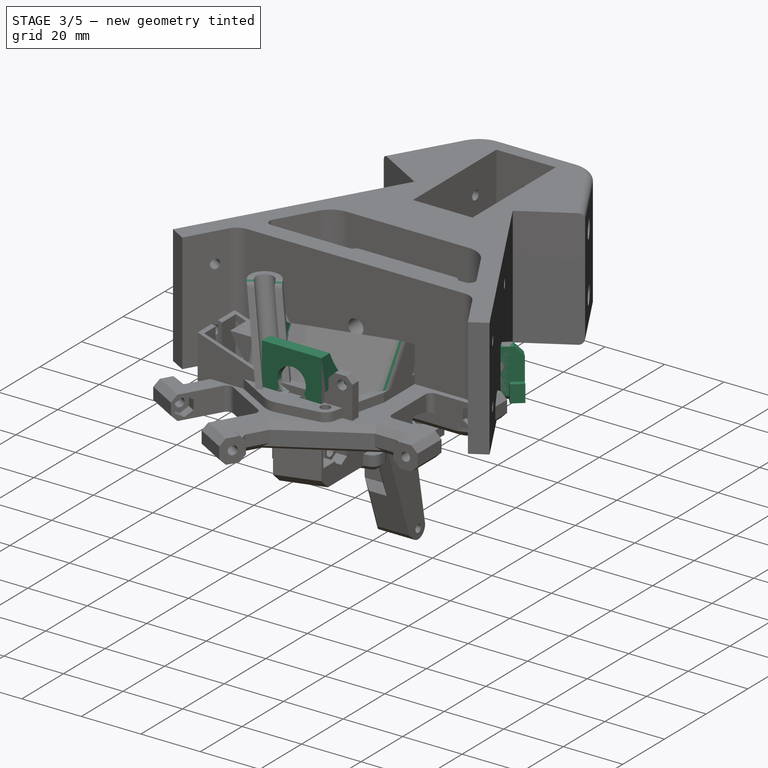
[diagram: stage 3 of 5 — iso view after this stage's code; geometry added in this stage tinted green]
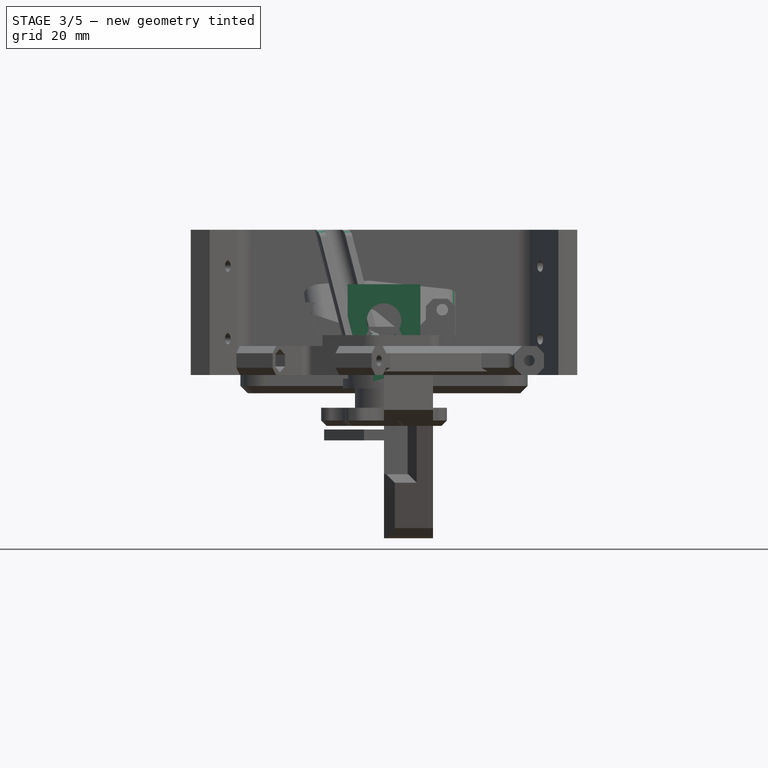
[diagram: stage 3 of 5 — front view after this stage's code; geometry added in this stage tinted green]
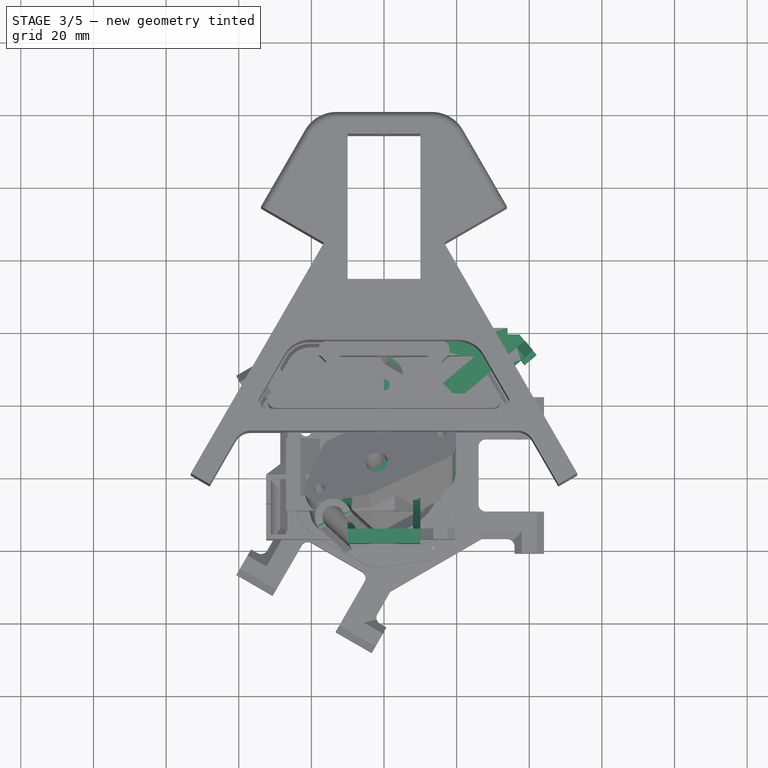
[diagram: stage 3 of 5 — top view after this stage's code; geometry added in this stage tinted green]
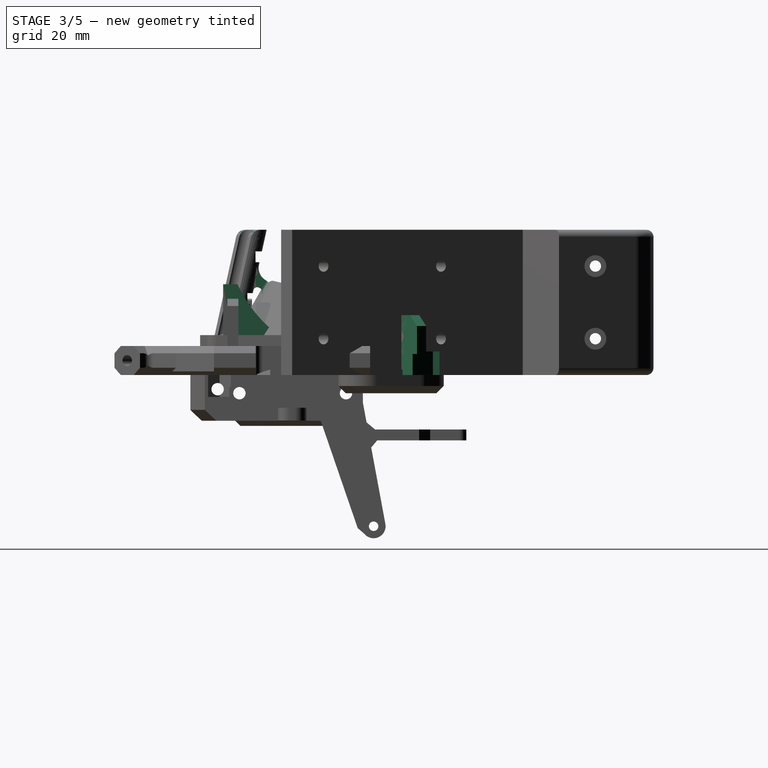
[diagram: stage 3 of 5 — right view after this stage's code; geometry added in this stage tinted green]
FEATURE [PartDesign::Body] Body014  label="CableClip"
  Group = -> [Sketch076,Pad018,Fillet017,Sketch077,Pocket041]
  Origin = -> Origin014
  Tip = -> Pocket041
FEATURE [Sketcher::SketchObject] Sketch078
  FullyConstrained = true
  MapMode = 5
  Support = -> [XY_Plane015]
  sketch-geometry (21):
    g0: LineSegment StartX=0 StartY=38.8 StartZ=0 EndX=8 EndY=38.8 EndZ=0
    g1: LineSegment StartX=0 StartY=38.8 StartZ=0 EndX=0 EndY=0 EndZ=0
    g2: LineSegment StartX=0 StartY=0 StartZ=0 EndX=10.9506 EndY=9.19847 EndZ=0
    g3: LineSegment StartX=37.6737 StartY=31.6459 StartZ=0 EndX=38.7028 EndY=30.4207 EndZ=0
    g4: LineSegment StartX=38.7028 StartY=30.4207 StartZ=0 EndX=41.9953 EndY=33.1865 EndZ=0
    g5: LineSegment StartX=41.9953 StartY=33.1865 StartZ=0 EndX=37.3 EndY=38.7761 EndZ=0
    g6: LineSegment StartX=7.5 StartY=32.8 StartZ=0 EndX=7.5 EndY=18.1 EndZ=0
    g7: LineSegment StartX=7.5 StartY=32.8 StartZ=0 EndX=25 EndY=32.8 EndZ=0
    g8: LineSegment StartX=7.5 StartY=18.1 StartZ=0 EndX=25 EndY=32.8 EndZ=0
    g9: LineSegment StartX=10.9506 StartY=9.19847 StartZ=0 EndX=9.02099 EndY=11.4956 EndZ=0
    g10: LineSegment StartX=9.02099 StartY=11.4956 StartZ=0 EndX=30.0013 EndY=29.1191 EndZ=0
    g11: LineSegment StartX=30.0013 StartY=29.1191 StartZ=0 EndX=31.9309 EndY=26.8219 EndZ=0
    g12: LineSegment StartX=8 StartY=40.6 StartZ=0 EndX=8 EndY=38.8 EndZ=0
    g13: LineSegment StartX=8 StartY=40.6 StartZ=0 EndX=14 EndY=40.6 EndZ=0
    g14: LineSegment StartX=14 StartY=40.6 StartZ=0 EndX=14 EndY=38.8 EndZ=0
    g15: LineSegment StartX=28 StartY=40.6 StartZ=0 EndX=28 EndY=38.8 EndZ=0
    g16: LineSegment StartX=28 StartY=40.6 StartZ=0 EndX=34 EndY=40.6 EndZ=0
    g17: LineSegment StartX=31.9309 StartY=26.8219 StartZ=0 EndX=37.6737 EndY=31.6459 EndZ=0
    g18: LineSegment StartX=14 StartY=38.8 StartZ=0 EndX=28 EndY=38.8 EndZ=0
    g19: LineSegment StartX=34 StartY=40.6 StartZ=0 EndX=34 EndY=38.7761 EndZ=0
    g20: LineSegment StartX=34 StartY=38.7761 StartZ=0 EndX=37.3 EndY=38.7761 EndZ=0
  constraints (62):
    c: Horizontal(g0)
    c: Coincident(g1,g0)
    c: Vertical(g1)
    c: Coincident(g2,g1)
    c: Coincident(g3,g17)
    c: Coincident(g4,g3)
    c: Coincident(g5,g4)
    c: Vertical(g6)
    c: Coincident(g7,g6)
    c: Horizontal(g7)
    c: Coincident(g8,g6)
    c: Coincident(g8,g7)
    c: Coincident(g10,g9)
    c: Coincident(g11,g10)
    c: Horizontal(g13)
    c: Vertical(g14)
    c: PointOnObject(g15,g0)
    c: Vertical(g15)
    c: Coincident(g16,g15)
    c: Horizontal(g16)
    c: Vertical(g12)
    c: Coincident(g12,g13)
    c: Coincident(g13,g14)
    c: DistanceX(g13,g13) = 6
    c: DistanceY(g12,g12) = 1.8
    c: Equal(g13,g16)
    c: Equal(g15,g14)
    c: Distance(g5) = 7.3
    c: Perpendicular(g5,g4)
    c: Distance(g4) = 4.3
    c: Perpendicular(g4,g3)
    c: Distance(g3) = 1.6
    c: Coincident(g2,g9)
    c: Coincident(g17,g11)
    c: Perpendicular(g3,g17)
    c: Perpendicular(g17,g11)
    c: Distance(g17) = 7.5
    c: Distance(g11) = 3
    c: Perpendicular(g11,g10)
    c: Equal(g9,g11)
    c: Perpendicular(g9,g10)
    c: Distance(g10) = 27.4
    c: Perpendicular(g2,g9)
    c: DistanceX(g13,g16) = 20
    c: Coincident(g0,g12)
    c: Coincident(g18,g14)
    c: Horizontal(g18)
    c: Coincident(g15,g18)
    c: Coincident(g19,g16)
    c: Vertical(g19)
    c: Coincident(g20,g19)
    c: Coincident(g20,g5)
    c: Horizontal(g20)
    c: DistanceX(g20,g20) = 3.3
    c: DistanceX(g0,g0) = 8
    c: DistanceY(g1,g1) = 38.8
    c: DistanceX(g1,g6) = 7.5
    c: DistanceY(g6,g0) = 6
    c: DistanceY(g6,g6) = 14.7
    c: DistanceX(g7,g7) = 17.5
    c: Parallel(g8,g10)
    c: Coincident(g1,g-1)
FEATURE [PartDesign::Pad] Pad019
  Direction = (0,0,1)
  Length = 18.5
  Length2 = 10
  Profile = -> Sketch078
  ReferenceAxis = -> Sketch078 [N_Axis]
  Type = 0
FEATURE [Sketcher::SketchObject] Sketch079
  AttachmentOffset = pos=(0,0,6.5) rot=(0,0,1;0rad)
  FullyConstrained = false
  MapMode = 5
  Placement = pos=(0,0,6.5) rot=(0,0,1;0rad)
  Support = -> [XY_Plane015]
  sketch-geometry (12):
    g0: LineSegment StartX=0 StartY=5.5543 StartZ=0 EndX=8.26613 EndY=12.3957 EndZ=0
    g1: LineSegment StartX=8.26613 StartY=12.3957 StartZ=0 EndX=10.9598 EndY=9.18546 EndZ=0
    g2: LineSegment StartX=10.9598 StartY=9.18546 StartZ=0 EndX=31.988 EndY=26.8302 EndZ=0
    g3: LineSegment StartX=31.988 StartY=26.8302 StartZ=0 EndX=29.8578 EndY=29.3688 EndZ=0
    g4: LineSegment StartX=29.8578 StartY=29.3688 StartZ=0 EndX=38.9153 EndY=36.9689 EndZ=0
    g5: LineSegment StartX=38.9153 StartY=36.9689 StartZ=0 EndX=34.891 EndY=41.7649 EndZ=0
    g6: LineSegment StartX=0 StartY=41.7649 StartZ=0 EndX=0 EndY=5.5543 EndZ=0
    g7: LineSegment StartX=1 StartY=32.4588 StartZ=0 EndX=1 EndY=41.7593 EndZ=0
    g8: LineSegment StartX=1 StartY=32.4588 StartZ=0 EndX=21 EndY=32.4588 EndZ=0
    g9: LineSegment StartX=21 StartY=32.4588 StartZ=0 EndX=21 EndY=41.7649 EndZ=0
    g10: LineSegment StartX=21 StartY=41.7649 StartZ=0 EndX=34.891 EndY=41.7649 EndZ=0
    g11: LineSegment StartX=0 StartY=41.7649 StartZ=0 EndX=1 EndY=41.7593 EndZ=0
  constraints (26):
    c: PointOnObject(g0,g-2)
    c: Coincident(g1,g0)
    c: Coincident(g2,g1)
    c: Coincident(g3,g2)
    c: Coincident(g4,g3)
    c: Coincident(g5,g4)
    c: PointOnObject(g6,g-2)
    c: Coincident(g6,g0)
    c: Perpendicular(g2,g1)
    c: Perpendicular(g3,g2)
    c: Perpendicular(g3,g4)
    c: Perpendicular(g5,g4)
    c: Angle(g-1,g2) = 0.698132
    c: Vertical(g7)
    c: Coincident(g8,g7)
    c: Horizontal(g8)
    c: Coincident(g9,g8)
    c: Vertical(g9)
    c: Coincident(g10,g9)
    c: Coincident(g10,g5)
    c: Horizontal(g10)
    c: Coincident(g11,g6)
    c: Coincident(g11,g7)
    c: DistanceX(g11,g11) = 1
    c: DistanceX(g8,g8) = 20
    c: Distance(g-1,g1) = 14.3
FEATURE [PartDesign::Pocket] Pocket042
  BaseFeature = -> Pad019
  Direction = (0,0,-1)
  Length = 13
  Length2 = 5
  Profile = -> Sketch079
  ReferenceAxis = -> Sketch079 [N_Axis]
  Reversed = true
  Type = 0
FEATURE [Sketcher::SketchObject] Sketch080
  AttachmentOffset = pos=(0,0,16.5) rot=(0,0,1;0rad)
  FullyConstrained = false
  MapMode = 5
  Placement = pos=(0,0,16.5) rot=(0,0,1;0rad)
  Support = -> [XY_Plane015]
  sketch-geometry (4):
    g0: LineSegment StartX=-0.854106 StartY=-4.35266 StartZ=0 EndX=49.195 EndY=37.6435 EndZ=0
    g1: LineSegment StartX=49.195 StartY=37.6435 StartZ=0 EndX=44.0527 EndY=43.7719 EndZ=0
    g2: LineSegment StartX=44.0527 StartY=43.7719 StartZ=0 EndX=-5.99641 EndY=1.77569 EndZ=0
    g3: LineSegment StartX=-5.99641 StartY=1.77569 StartZ=0 EndX=-0.854106 EndY=-4.35266 EndZ=0
  constraints (9):
    c: Coincident(g1,g0)
    c: Coincident(g2,g1)
    c: Coincident(g3,g2)
    c: Coincident(g3,g0)
    c: Angle(g0,g-1) = 2.44346
    c: Perpendicular(g0,g3)
    c: Perpendicular(g3,g2)
    c: Distance(g3) = 8
    c: Perpendicular(g2,g1)
FEATURE [PartDesign::Pocket] Pocket043
  BaseFeature = -> Pocket042
  Direction = (0,0,-1)
  Length = 5
  Length2 = 5
  Profile = -> Sketch080
  ReferenceAxis = -> Sketch080 [N_Axis]
  Reversed = true
  Type = 0
FEATURE [Sketcher::SketchObject] Sketch081
  AttachmentOffset = pos=(0,0,5.8) rot=(0,0,1;0rad)
  FullyConstrained = false
  MapMode = 5
  Placement = pos=(0,0,5.8) rot=(0,0,1;0rad)
  Support = -> [XY_Plane015]
  sketch-geometry (8):
    g0: LineSegment StartX=37.0972 StartY=31.1536 StartZ=0 EndX=41.4702 EndY=34.823 EndZ=0
    g1: LineSegment StartX=41.4702 StartY=34.823 StartZ=0 EndX=44.3479 EndY=31.3935 EndZ=0
    g2: LineSegment StartX=44.3479 StartY=31.3935 StartZ=0 EndX=39.9749 EndY=27.7241 EndZ=0
    g3: LineSegment StartX=39.9749 StartY=27.7241 StartZ=0 EndX=37.0972 EndY=31.1536 EndZ=0
    g4: LineSegment StartX=6.1 StartY=34.25 StartZ=0 EndX=16.1 EndY=34.25 EndZ=0
    g5: LineSegment StartX=16.1 StartY=34.25 StartZ=0 EndX=16.9452 EndY=32.4374 EndZ=0
    g6: LineSegment StartX=6.1 StartY=34.25 StartZ=0 EndX=5.25476 EndY=32.4374 EndZ=0
    g7: LineSegment StartX=5.25476 StartY=32.4374 StartZ=0 EndX=16.9452 EndY=32.4374 EndZ=0
  constraints (20):
    c: Coincident(g1,g0)
    c: Coincident(g2,g1)
    c: Coincident(g3,g2)
    c: Coincident(g3,g0)
    c: Angle(g-1,g0) = 0.698132
    c: Perpendicular(g3,g0)
    c: Perpendicular(g1,g0)
    c: Perpendicular(g2,g1)
    c: Horizontal(g4)
    c: Coincident(g5,g4)
    c: Coincident(g6,g4)
    c: Coincident(g7,g6)
    c: Coincident(g7,g5)
    c: Horizontal(g7)
    c: Angle(g4,g5) = 2.00713
    c: Angle(g6,g4) = 2.00713
    c: Distance(g5) = 2
    c: DistanceX(g4,g4) = 10
    c: DistanceX(g-1,g4) = 6.1
    c: DistanceY(g-1,g4) = 34.25
FEATURE [PartDesign::Pocket] Pocket044
  BaseFeature = -> Pocket043
  Direction = (0,0,-1)
  Length = 15
  Length2 = 5
  Profile = -> Sketch081
  ReferenceAxis = -> Sketch081 [N_Axis]
  Reversed = true
  Type = 0
FEATURE [PartDesign::Chamfer] Chamfer018
  Angle = 45
  Base = -> Pocket044 [Edge67]
  BaseFeature = -> Pocket044
  ChamferType = 0
  FlipDirection = false
  Size = 3
  Size2 = 1
  SupportTransform = false
  UseAllEdges = false
FEATURE [PartDesign::Chamfer] Chamfer019
  Angle = 45
  Base = -> Chamfer018 [Edge44,Edge58,Edge56]
  BaseFeature = -> Chamfer018
  ChamferType = 0
  FlipDirection = false
  Size = 2
  Size2 = 1
  SupportTransform = false
  UseAllEdges = false
FEATURE [PartDesign::Chamfer] Chamfer020
  Angle = 45
  Base = -> Chamfer019 [Edge1,Edge3,Edge7,Edge9]
  BaseFeature = -> Chamfer019
  ChamferType = 0
  FlipDirection = false
  Size = 1
  Size2 = 1
  SupportTransform = false
  UseAllEdges = false
FEATURE [PartDesign::Chamfer] Chamfer021
  Angle = 45
  Base = -> Chamfer020 [Edge24,Edge25,Edge26]
  BaseFeature = -> Chamfer020
  ChamferType = 0
  FlipDirection = false
  Size = 1
  Size2 = 1
  SupportTransform = false
  UseAllEdges = false
FEATURE [PartDesign::Body] Body015  label="LCD_LeftMount"
  Group = -> [Sketch078,Pad019,Sketch079,Pocket042,Sketch080,Pocket043,Sketch081,Pocket044,Chamfer018,Chamfer019,Chamfer020,Chamfer021,Chamfer022,Chamfer023,Chamfer024,Chamfer025,Chamfer026,Chamfer027,Chamfer028,Chamfer029,Chamfer030,Chamfer031,Chamfer032,Chamfer033,Chamfer034,Chamfer035,Sketch082,Pocket045,DatumPlane010,Sketch083,Pocket046]
  Origin = -> Origin015
  Placement = pos=(57,0,0) rot=(0,0,1;0rad)
  Tip = -> Pocket046
FEATURE [Sketcher::SketchObject] Sketch084
  FullyConstrained = true
  MapMode = 5
  Support = -> [XY_Plane016]
  sketch-geometry (21):
    g0: LineSegment StartX=0 StartY=38.8 StartZ=0 EndX=8 EndY=38.8 EndZ=0
    g1: LineSegment StartX=0 StartY=38.8 StartZ=0 EndX=0 EndY=0 EndZ=0
    g2: LineSegment StartX=0 StartY=0 StartZ=0 EndX=7.12204 EndY=5.98251 EndZ=0
    g3: LineSegment StartX=37.6737 StartY=31.6459 StartZ=0 EndX=38.7028 EndY=30.4207 EndZ=0
    g4: LineSegment StartX=38.7028 StartY=30.4207 StartZ=0 EndX=41.9953 EndY=33.1865 EndZ=0
    g5: LineSegment StartX=41.9953 StartY=33.1865 StartZ=0 EndX=37.3 EndY=38.7761 EndZ=0
    g6: LineSegment StartX=7.5 StartY=32.8 StartZ=0 EndX=7.5 EndY=18.1 EndZ=0
    g7: LineSegment StartX=7.5 StartY=32.8 StartZ=0 EndX=25 EndY=32.8 EndZ=0
    g8: LineSegment StartX=7.5 StartY=18.1 StartZ=0 EndX=25 EndY=32.8 EndZ=0
    g9: LineSegment StartX=7.12204 StartY=5.98251 StartZ=0 EndX=5.19246 EndY=8.27963 EndZ=0
    g10: LineSegment StartX=5.19246 StartY=8.27963 StartZ=0 EndX=30.0013 EndY=29.1191 EndZ=0
    g11: LineSegment StartX=30.0013 StartY=29.1191 StartZ=0 EndX=31.9309 EndY=26.8219 EndZ=0
    g12: LineSegment StartX=8 StartY=40.6 StartZ=0 EndX=8 EndY=38.8 EndZ=0
    g13: LineSegment StartX=8 StartY=40.6 StartZ=0 EndX=14 EndY=40.6 EndZ=0
    g14: LineSegment StartX=14 StartY=40.6 StartZ=0 EndX=14 EndY=38.8 EndZ=0
    g15: LineSegment StartX=28 StartY=40.6 StartZ=0 EndX=28 EndY=38.8 EndZ=0
    g16: LineSegment StartX=28 StartY=40.6 StartZ=0 EndX=34 EndY=40.6 EndZ=0
    g17: LineSegment StartX=31.9309 StartY=26.8219 StartZ=0 EndX=37.6737 EndY=31.6459 EndZ=0
    g18: LineSegment StartX=14 StartY=38.8 StartZ=0 EndX=28 EndY=38.8 EndZ=0
    g19: LineSegment StartX=34 StartY=40.6 StartZ=0 EndX=34 EndY=38.7761 EndZ=0
    g20: LineSegment StartX=34 StartY=38.7761 StartZ=0 EndX=37.3 EndY=38.7761 EndZ=0
  constraints (62):
    c: Horizontal(g0)
    c: Coincident(g1,g0)
    c: Vertical(g1)
    c: Coincident(g2,g1)
    c: Coincident(g3,g17)
    c: Coincident(g4,g3)
    c: Coincident(g5,g4)
    c: Vertical(g6)
    c: Coincident(g7,g6)
    c: Horizontal(g7)
    c: Coincident(g8,g6)
    c: Coincident(g8,g7)
    c: Coincident(g10,g9)
    c: Coincident(g11,g10)
    c: Horizontal(g13)
    c: Vertical(g14)
    c: PointOnObject(g15,g0)
    c: Vertical(g15)
    c: Coincident(g16,g15)
    c: Horizontal(g16)
    c: Vertical(g12)
    c: Coincident(g12,g13)
    c: Coincident(g13,g14)
    c: DistanceX(g13,g13) = 6
    c: DistanceY(g12,g12) = 1.8
    c: Equal(g13,g16)
    c: Equal(g15,g14)
    c: Distance(g5) = 7.3
    c: Perpendicular(g5,g4)
    c: Distance(g4) = 4.3
    c: Perpendicular(g4,g3)
    c: Distance(g3) = 1.6
    c: Coincident(g2,g9)
    c: Coincident(g17,g11)
    c: Perpendicular(g3,g17)
    c: Perpendicular(g17,g11)
    c: Distance(g17) = 7.5
    c: Distance(g11) = 3
    c: Perpendicular(g11,g10)
    c: Equal(g9,g11)
    c: Perpendicular(g9,g10)
    c: Distance(g10) = 32.4
    c: Perpendicular(g2,g9)
    c: DistanceX(g13,g16) = 20
    c: Coincident(g0,g12)
    c: Coincident(g18,g14)
    c: Horizontal(g18)
    c: Coincident(g15,g18)
    c: Coincident(g19,g16)
    c: Vertical(g19)
    c: Coincident(g20,g19)
    c: Coincident(g20,g5)
    c: Horizontal(g20)
    c: DistanceX(g20,g20) = 3.3
    c: DistanceX(g0,g0) = 8
    c: DistanceY(g1,g1) = 38.8
    c: DistanceX(g1,g6) = 7.5
    c: DistanceY(g6,g0) = 6
    c: DistanceY(g6,g6) = 14.7
    c: DistanceX(g7,g7) = 17.5
    c: Parallel(g8,g10)
    c: Coincident(g1,g-1)
FEATURE [PartDesign::Pad] Pad020
  Direction = (0,0,1)
  Length = 18.5
  Length2 = 10
  Profile = -> Sketch084
  ReferenceAxis = -> Sketch084 [N_Axis]
  Type = 0
FEATURE [Sketcher::SketchObject] Sketch085
  AttachmentOffset = pos=(0,0,6.5) rot=(0,0,1;0rad)
  FullyConstrained = false
  MapMode = 5
  Placement = pos=(0,0,6.5) rot=(0,0,1;0rad)
  Support = -> [XY_Plane016]
  sketch-geometry (12):
    g0: LineSegment StartX=0 StartY=5.97448 StartZ=0 EndX=4.18235 EndY=9.48389 EndZ=0
    g1: LineSegment StartX=4.18235 StartY=9.48389 StartZ=0 EndX=7.13278 EndY=5.96771 EndZ=0
    g2: LineSegment StartX=7.13278 StartY=5.96771 StartZ=0 EndX=31.9876 EndY=26.8234 EndZ=0
    g3: LineSegment StartX=31.9876 StartY=26.8234 StartZ=0 EndX=29.8491 EndY=29.3718 EndZ=0
    g4: LineSegment StartX=29.8491 StartY=29.3718 StartZ=0 EndX=38.9102 EndY=36.975 EndZ=0
    g5: LineSegment StartX=38.9102 StartY=36.975 StartZ=0 EndX=34.891 EndY=41.7649 EndZ=0
    g6: LineSegment StartX=0 StartY=41.7649 StartZ=0 EndX=0 EndY=5.97448 EndZ=0
    g7: LineSegment StartX=1 StartY=32.4588 StartZ=0 EndX=1 EndY=41.7593 EndZ=0
    g8: LineSegment StartX=1 StartY=32.4588 StartZ=0 EndX=21 EndY=32.4588 EndZ=0
    g9: LineSegment StartX=21 StartY=32.4588 StartZ=0 EndX=21 EndY=41.7649 EndZ=0
    g10: LineSegment StartX=21 StartY=41.7649 StartZ=0 EndX=34.891 EndY=41.7649 EndZ=0
    g11: LineSegment StartX=0 StartY=41.7649 StartZ=0 EndX=1 EndY=41.7593 EndZ=0
  constraints (27):
    c: PointOnObject(g0,g-2)
    c: Coincident(g1,g0)
    c: Coincident(g2,g1)
    c: Coincident(g3,g2)
    c: Coincident(g4,g3)
    c: Coincident(g5,g4)
    c: PointOnObject(g6,g-2)
    c: Coincident(g6,g0)
    c: Perpendicular(g2,g1)
    c: Perpendicular(g3,g2)
    c: Perpendicular(g3,g4)
    c: Perpendicular(g5,g4)
    c: Angle(g-1,g2) = 0.698132
    c: Vertical(g7)
    c: Coincident(g8,g7)
    c: Horizontal(g8)
    c: Coincident(g9,g8)
    c: Vertical(g9)
    c: Coincident(g10,g9)
    c: Coincident(g10,g5)
    c: Horizontal(g10)
    c: Coincident(g11,g6)
    c: Coincident(g11,g7)
    c: DistanceX(g11,g11) = 1
    c: DistanceX(g8,g8) = 20
    c: Distance(g-1,g1) = 9.3
    c: Perpendicular(g1,g0)
FEATURE [PartDesign::Pocket] Pocket047
  BaseFeature = -> Pad020
  Direction = (0,0,-1)
  Length = 13
  Length2 = 5
  Profile = -> Sketch085
  ReferenceAxis = -> Sketch085 [N_Axis]
  Reversed = true
  Type = 0
FEATURE [Sketcher::SketchObject] Sketch086
  AttachmentOffset = pos=(0,0,16.5) rot=(0,0,1;0rad)
  FullyConstrained = false
  MapMode = 5
  Placement = pos=(0,0,16.5) rot=(0,0,1;0rad)
  Support = -> [XY_Plane016]
  sketch-geometry (4):
    g0: LineSegment StartX=-0.854106 StartY=-4.35266 StartZ=0 EndX=49.195 EndY=37.6435 EndZ=0
    g1: LineSegment StartX=49.195 StartY=37.6435 StartZ=0 EndX=44.0527 EndY=43.7719 EndZ=0
    g2: LineSegment StartX=44.0527 StartY=43.7719 StartZ=0 EndX=-5.99641 EndY=1.77569 EndZ=0
    g3: LineSegment StartX=-5.99641 StartY=1.77569 StartZ=0 EndX=-0.854106 EndY=-4.35266 EndZ=0
  constraints (9):
    c: Coincident(g1,g0)
    c: Coincident(g2,g1)
    c: Coincident(g3,g2)
    c: Coincident(g3,g0)
    c: Angle(g0,g-1) = 2.44346
    c: Perpendicular(g0,g3)
    c: Perpendicular(g3,g2)
    c: Distance(g3) = 8
    c: Perpendicular(g2,g1)
FEATURE [PartDesign::Pocket] Pocket048
  BaseFeature = -> Pocket047
  Direction = (0,0,-1)
  Length = 5
  Length2 = 5
  Profile = -> Sketch086
  ReferenceAxis = -> Sketch086 [N_Axis]
  Reversed = true
  Type = 0
FEATURE [Sketcher::SketchObject] Sketch087
  AttachmentOffset = pos=(0,0,5.8) rot=(0,0,1;0rad)
  FullyConstrained = false
  MapMode = 5
  Placement = pos=(0,0,5.8) rot=(0,0,1;0rad)
  Support = -> [XY_Plane016]
  sketch-geometry (8):
    g0: LineSegment StartX=37.0972 StartY=31.1536 StartZ=0 EndX=41.4702 EndY=34.823 EndZ=0
    g1: LineSegment StartX=41.4702 StartY=34.823 StartZ=0 EndX=44.3479 EndY=31.3935 EndZ=0
    g2: LineSegment StartX=44.3479 StartY=31.3935 StartZ=0 EndX=39.9749 EndY=27.7241 EndZ=0
    g3: LineSegment StartX=39.9749 StartY=27.7241 StartZ=0 EndX=37.0972 EndY=31.1536 EndZ=0
    g4: LineSegment StartX=6.1 StartY=34.25 StartZ=0 EndX=16.1 EndY=34.25 EndZ=0
    g5: LineSegment StartX=16.1 StartY=34.25 StartZ=0 EndX=16.9452 EndY=32.4374 EndZ=0
    g6: LineSegment StartX=6.1 StartY=34.25 StartZ=0 EndX=5.25476 EndY=32.4374 EndZ=0
    g7: LineSegment StartX=5.25476 StartY=32.4374 StartZ=0 EndX=16.9452 EndY=32.4374 EndZ=0
  constraints (20):
    c: Coincident(g1,g0)
    c: Coincident(g2,g1)
    c: Coincident(g3,g2)
    c: Coincident(g3,g0)
    c: Angle(g-1,g0) = 0.698132
    c: Perpendicular(g3,g0)
    c: Perpendicular(g1,g0)
    c: Perpendicular(g2,g1)
    c: Horizontal(g4)
    c: Coincident(g5,g4)
    c: Coincident(g6,g4)
    c: Coincident(g7,g6)
    c: Coincident(g7,g5)
    c: Horizontal(g7)
    c: Angle(g4,g5) = 2.00713
    c: Angle(g6,g4) = 2.00713
    c: Distance(g5) = 2
    c: DistanceX(g4,g4) = 10
    c: DistanceX(g-1,g4) = 6.1
    c: DistanceY(g-1,g4) = 34.25
FEATURE [PartDesign::Pocket] Pocket049
  BaseFeature = -> Pocket048
  Direction = (0,0,-1)
  Length = 15
  Length2 = 5
  Profile = -> Sketch087
  ReferenceAxis = -> Sketch087 [N_Axis]
  Reversed = true
  Type = 0
FEATURE [Sketcher::SketchObject] Sketch088
  AttachmentOffset = pos=(0,0,-30) rot=(0,0,1;0rad)
  FullyConstrained = true
  MapMode = 5
  Placement = pos=(0,30,6.7e-15) rot=(1,0,0;1.5708rad)
  Support = -> [XZ_Plane016]
  sketch-geometry (1):
    g0: Circle CenterX=11.1 CenterY=12.9 CenterZ=0 NormalX=0 NormalY=0 NormalZ=1 AngleXU=0 Radius=2.75
  constraints (3):
    c: Radius(g0) = 2.75
    c: DistanceX(g-1,g0) = 11.1
    c: DistanceY(g-1,g0) = 12.9
FEATURE [PartDesign::Pocket] Pocket050
  BaseFeature = -> Pocket049
  Direction = (0,1,2e-16)
  Length = 12
  Length2 = 5
  Profile = -> Sketch088
  ReferenceAxis = -> Sketch088 [N_Axis]
  Type = 0
FEATURE [Sketcher::SketchObject] Sketch089
  FullyConstrained = true
  MapMode = 5
  Placement = pos=(0,0,0) rot=(0.888973,0.323826,0.323826;1.68821rad)
  sketch-geometry (2):
    g0: Circle CenterX=5 CenterY=10.6 CenterZ=0 NormalX=0 NormalY=0 NormalZ=1 AngleXU=0 Radius=1.7
    g1: Circle CenterX=46 CenterY=10.6 CenterZ=0 NormalX=0 NormalY=0 NormalZ=1 AngleXU=0 Radius=1.7
  constraints (6):
    c: Radius(g0) = 1.7
    c: DistanceX(g-1,g0) = 5
    c: DistanceY(g-1,g0) = 10.6
    c: Equal(g0,g1)
    c: Horizontal(g0,g1)
    c: DistanceX(g0,g1) = 41
FEATURE [PartDesign::Pocket] Pocket051
  BaseFeature = -> Pocket050
  Direction = (-0.643192,0.765705,0)
  Length = 5
  Length2 = 5
  Profile = -> Sketch089
  ReferenceAxis = -> Sketch089 [N_Axis]
  Type = 0
FEATURE [PartDesign::Chamfer] Chamfer
  Angle = 45
  Base = -> Pocket051 [Edge71]
  BaseFeature = -> Pocket051
  ChamferType = 0
  FlipDirection = false
  Size = 3
  Size2 = 1
  SupportTransform = false
  UseAllEdges = false
FEATURE [PartDesign::Chamfer] Chamfer036
  Angle = 45
  Base = -> Chamfer [Edge93]
  BaseFeature = -> Chamfer
  ChamferType = 1
  FlipDirection = false
  Size = 10
  Size2 = 3
  SupportTransform = false
  UseAllEdges = false
FEATURE [PartDesign::Chamfer] Chamfer037
  Angle = 45
  Base = -> Chamfer036 [Edge44]
  BaseFeature = -> Chamfer036
  ChamferType = 1
  FlipDirection = false
  Size = 3
  Size2 = 10
  SupportTransform = false
  UseAllEdges = false
FEATURE [PartDesign::Chamfer] Chamfer038
  Angle = 45
  Base = -> Chamfer037 [Edge71,Edge70,Edge48]
  BaseFeature = -> Chamfer037
  ChamferType = 0
  FlipDirection = false
  Size = 1
  Size2 = 1
  SupportTransform = false
  UseAllEdges = false
FEATURE [PartDesign::Chamfer] Chamfer039
  Angle = 45
  Base = -> Chamfer038 [Edge10,Edge54]
  BaseFeature = -> Chamfer038
  ChamferType = 0
  FlipDirection = false
  Size = 1
  Size2 = 1
  SupportTransform = false
  UseAllEdges = false
FEATURE [PartDesign::Chamfer] Chamfer040
  Angle = 45
  Base = -> Chamfer039 [Edge77,Edge62]
  BaseFeature = -> Chamfer039
  ChamferType = 0
  FlipDirection = false
  Size = 1.5
  Size2 = 1
  SupportTransform = false
  UseAllEdges = false
FEATURE [PartDesign::Chamfer] Chamfer041
  Angle = 45
  Base = -> Chamfer040 [Edge78]
  BaseFeature = -> Chamfer040
  ChamferType = 0
  FlipDirection = false
  Size = 1
  Size2 = 1
  SupportTransform = false
  UseAllEdges = false
FEATURE [PartDesign::Chamfer] Chamfer042
  Angle = 45
  Base = -> Chamfer041 [Edge18,Edge81]
  BaseFeature = -> Chamfer041
  ChamferType = 0
  FlipDirection = false
  Size = 1
  Size2 = 1
  SupportTransform = false
  UseAllEdges = false
FEATURE [PartDesign::Chamfer] Chamfer043
  Angle = 45
  Base = -> Chamfer042 [Edge97]
  BaseFeature = -> Chamfer042
  ChamferType = 0
  FlipDirection = false
  Size = 1
  Size2 = 1
  SupportTransform = false
  UseAllEdges = false
FEATURE [PartDesign::Chamfer] Chamfer044
  Angle = 45
  Base = -> Chamfer043 [Edge8]
  BaseFeature = -> Chamfer043
  ChamferType = 0
  FlipDirection = false
  Size = 1
  Size2 = 1
  SupportTransform = false
  UseAllEdges = false
FEATURE [PartDesign::Chamfer] Chamfer045
  Angle = 45
  Base = -> Chamfer044 [Edge21,Edge4]
  BaseFeature = -> Chamfer044
  ChamferType = 0
  FlipDirection = false
  Size = 1.5
  Size2 = 1
  SupportTransform = false
  UseAllEdges = false
FEATURE [PartDesign::Chamfer] Chamfer046
  Angle = 45
  Base = -> Chamfer045 [Edge13]
  BaseFeature = -> Chamfer045
  ChamferType = 0
  FlipDirection = false
  Size = 1
  Size2 = 1
  SupportTransform = false
  UseAllEdges = false
FEATURE [PartDesign::Chamfer] Chamfer047
  Angle = 45
  Base = -> Chamfer046 [Edge61,Edge62,Edge60]
  BaseFeature = -> Chamfer046
  ChamferType = 0
  FlipDirection = false
  Size = 1
  Size2 = 1
  SupportTransform = false
  UseAllEdges = false
FEATURE [PartDesign::Chamfer] Chamfer048
  Angle = 45
  Base = -> Chamfer047 [Edge4,Edge8,Edge12]
  BaseFeature = -> Chamfer047
  ChamferType = 0
  FlipDirection = false
  Size = 1.5
  Size2 = 1
  SupportTransform = false
  UseAllEdges = false
FEATURE [PartDesign::Chamfer] Chamfer049
  Angle = 45
  Base = -> Chamfer048 [Edge12,Edge10]
  BaseFeature = -> Chamfer048
  ChamferType = 0
  FlipDirection = false
  Size = 1
  Size2 = 1
  SupportTransform = false
  UseAllEdges = false
FEATURE [PartDesign::Chamfer] Chamfer050
  Angle = 45
  Base = -> Chamfer049 [Edge10]
  BaseFeature = -> Chamfer049
  ChamferType = 0
  FlipDirection = false
  Size = 1
  Size2 = 1
  SupportTransform = false
  UseAllEdges = false
FEATURE [PartDesign::Body] Body016  label="LCD_RightMount"
  Group = -> [Sketch084,Pad020,Sketch085,Pocket047,Sketch086,Pocket048,Sketch087,Pocket049,Sketch088,Pocket050,Sketch089,Pocket051,Chamfer,Chamfer036,Chamfer037,Chamfer038,Chamfer039,Chamfer040,Chamfer041,Chamfer042,Chamfer043,Chamfer044,Chamfer045,Chamfer046,Chamfer047,Chamfer048,Chamfer049,Chamfer050]
  Origin = -> Origin016
  Placement = pos=(57,0,0) rot=(0,0,1;0rad)
  Tip = -> Chamfer050
FEATURE [Sketcher::SketchObject] Sketch090
  FullyConstrained = true
  MapMode = 5
  Support = -> [XY_Plane017]
  sketch-geometry (5):
    g0: LineSegment StartX=-10 StartY=15 StartZ=0 EndX=10 EndY=15 EndZ=0
    g1: LineSegment StartX=10 StartY=15 StartZ=0 EndX=10 EndY=-15 EndZ=0
    g2: LineSegment StartX=10 StartY=-15 StartZ=0 EndX=-10 EndY=-15 EndZ=0
    g3: LineSegment StartX=-10 StartY=-15 StartZ=0 EndX=-10 EndY=15 EndZ=0
    g4: Circle CenterX=0 CenterY=0 CenterZ=0 NormalX=0 NormalY=0 NormalZ=1 AngleXU=0 Radius=1.7
  constraints (13):
    c: Coincident(g0,g1)
    c: Coincident(g1,g2)
    c: Coincident(g2,g3)
    c: Coincident(g3,g0)
    c: Horizontal(g0)
    c: Horizontal(g2)
    c: Vertical(g1)
    c: Vertical(g3)
    c: DistanceX(g0,g0) = 20
    c: Symmetric(g0,g1,g-1)
    c: DistanceY(g1,g1) = 30
    c: Coincident(g4,g-1)
    c: Radius(g4) = 1.7
FEATURE [PartDesign::Pad] Pad021
  Direction = (0,0,1)
  Length = 4
  Length2 = 10
  Profile = -> Sketch090
  ReferenceAxis = -> Sketch090 [N_Axis]
  Type = 0
FEATURE [Sketcher::SketchObject] Sketch091
  AttachmentOffset = pos=(0,0,15) rot=(0,0,1;0rad)
  FullyConstrained = true
  MapMode = 5
  Placement = pos=(0,-15,-3.3e-15) rot=(1,0,0;1.5708rad)
  Support = -> [XZ_Plane017]
  sketch-geometry (5):
    g0: LineSegment StartX=-10 StartY=25 StartZ=0 EndX=10 EndY=25 EndZ=0
    g1: LineSegment StartX=10 StartY=25 StartZ=0 EndX=10 EndY=0 EndZ=0
    g2: LineSegment StartX=10 StartY=0 StartZ=0 EndX=-10 EndY=0 EndZ=0
    g3: LineSegment StartX=-10 StartY=0 StartZ=0 EndX=-10 EndY=25 EndZ=0
    g4: Circle CenterX=0 CenterY=15 CenterZ=0 NormalX=0 NormalY=0 NormalZ=1 AngleXU=0 Radius=4.75
  constraints (14):
    c: Coincident(g0,g1)
    c: Coincident(g1,g2)
    c: Coincident(g2,g3)
    c: Coincident(g3,g0)
    c: Horizontal(g0)
    c: Horizontal(g2)
    c: Vertical(g1)
    c: Vertical(g3)
    c: DistanceY(g3,g3) = 25
    c: DistanceX(g2,g2) = 20
    c: Symmetric(g1,g2,g-1)
    c: PointOnObject(g4,g-2)
    c: Radius(g4) = 4.75
    c: DistanceY(g-1,g4) = 15
FEATURE [PartDesign::Pad] Pad022
  BaseFeature = -> Pad021
  Direction = (0,-1,2e-16)
  Length = 4
  Length2 = 10
  Profile = -> Sketch091
  ReferenceAxis = -> Sketch091 [N_Axis]
  Type = 0
FEATURE [Sketcher::SketchObject] Sketch092
  AttachmentOffset = pos=(0,0,8) rot=(0,0,1;0rad)
  FullyConstrained = true
  MapMode = 5
  Placement = pos=(8,-1.8e-15,1.8e-15) rot=(0.57735,0.57735,0.57735;2.0944rad)
  Support = -> [YZ_Plane017]
  sketch-geometry (3):
    g0: LineSegment StartX=-15 StartY=25 StartZ=0 EndX=-15 EndY=4 EndZ=0
    g1: LineSegment StartX=-15 StartY=4 StartZ=0 EndX=15 EndY=4 EndZ=0
    g2: ArcOfCircle CenterX=17.775 CenterY=39.8929 CenterZ=0 NormalX=0 NormalY=0 NormalZ=1 AngleXU=0 Radius=36 StartAngle=3.5681 EndAngle=4.63523
  constraints (10):
    c: Vertical(g0)
    c: Coincident(g1,g0)
    c: Horizontal(g1)
    c: Coincident(g2,g0)
    c: Coincident(g2,g1)
    c: DistanceX(g1,g1) = 30
    c: DistanceY(g-1,g1) = 4
    c: DistanceX(g0,g-1) = 15
    c: DistanceY(g0,g0) = 21
    c: Radius(g2) = 36
FEATURE [Sketcher::SketchObject] Sketch093
  AttachmentOffset = pos=(0,0,-8) rot=(0,0,1;0rad)
  FullyConstrained = true
  MapMode = 5
  Placement = pos=(-8,1.8e-15,-1.8e-15) rot=(0.57735,0.57735,0.57735;2.0944rad)
  Support = -> [YZ_Plane017]
  sketch-geometry (3):
    g0: LineSegment StartX=-15 StartY=25 StartZ=0 EndX=-15 EndY=4 EndZ=0
    g1: LineSegment StartX=-15 StartY=4 StartZ=0 EndX=15 EndY=4 EndZ=0
    g2: ArcOfCircle CenterX=17.775 CenterY=39.8929 CenterZ=0 NormalX=0 NormalY=0 NormalZ=1 AngleXU=0 Radius=36 StartAngle=3.5681 EndAngle=4.63523
  constraints (10):
    c: Vertical(g0)
    c: Coincident(g1,g0)
    c: Horizontal(g1)
    c: Coincident(g2,g0)
    c: Coincident(g2,g1)
    c: DistanceX(g1,g1) = 30
    c: DistanceY(g-1,g1) = 4
    c: DistanceX(g0,g-1) = 15
    c: DistanceY(g0,g0) = 21
    c: Radius(g2) = 36
FEATURE [PartDesign::Pad] Pad023
  BaseFeature = -> Pad022
  Direction = (1,-2e-16,3e-16)
  Length = 2
  Length2 = 10
  Profile = -> Sketch092
  ReferenceAxis = -> Sketch092 [N_Axis]
  Type = 0
FEATURE [PartDesign::Pad] Pad024
  BaseFeature = -> Pad023
  Direction = (1,-2e-16,3e-16)
  Length = 2
  Length2 = 10
  Profile = -> Sketch093
  ReferenceAxis = -> Sketch093 [N_Axis]
  Reversed = true
  Type = 0
FEATURE [Sketcher::SketchObject] Sketch094
  FullyConstrained = true
  MapMode = 5
  Placement = pos=(0,0,0) rot=(1,0,0;3.14159rad)
  Support = -> [Pad024]
  sketch-geometry (8):
    g0: LineSegment StartX=-2.95 StartY=19 StartZ=0 EndX=2.95 EndY=19 EndZ=0
    g1: LineSegment StartX=2.95 StartY=19 StartZ=0 EndX=2.95 EndY=13 EndZ=0
    g2: LineSegment StartX=2.95 StartY=13 StartZ=0 EndX=-2.95 EndY=13 EndZ=0
    g3: LineSegment StartX=-2.95 StartY=13 StartZ=0 EndX=-2.95 EndY=19 EndZ=0
    g4: LineSegment StartX=-2.95 StartY=-9 StartZ=0 EndX=2.95 EndY=-9 EndZ=0
    g5: LineSegment StartX=2.95 StartY=-9 StartZ=0 EndX=2.95 EndY=-15 EndZ=0
    g6: LineSegment StartX=2.95 StartY=-15 StartZ=0 EndX=-2.95 EndY=-15 EndZ=0
    g7: LineSegment StartX=-2.95 StartY=-15 StartZ=0 EndX=-2.95 EndY=-9 EndZ=0
  constraints (22):
    c: Coincident(g0,g1)
    c: Coincident(g1,g2)
    c: Coincident(g2,g3)
    c: Coincident(g3,g0)
    c: Horizontal(g2)
    c: Vertical(g1)
    c: Vertical(g3)
    c: Coincident(g4,g5)
    c: Coincident(g5,g6)
    c: Coincident(g6,g7)
    c: Coincident(g7,g4)
    c: Horizontal(g6)
    c: Vertical(g5)
    c: Vertical(g7)
    c: Equal(g4,g2)
    c: Equal(g1,g5)
    c: DistanceY(g3,g3) = 6
    c: Symmetric(g0,g0,g-2)
    c: DistanceY(g-1,g0) = 19
    c: DistanceY(g5,g-1) = 15
    c: Symmetric(g4,g4,g-2)
    c: DistanceX(g6,g6) = 5.9
FEATURE [PartDesign::Pad] Pad025
  BaseFeature = -> Pad024
  Direction = (0,0,-1)
  Length = 1.8
  Length2 = 10
  Profile = -> Sketch094
  ReferenceAxis = -> Sketch094 [N_Axis]
  Type = 0
FEATURE [PartDesign::Chamfer] Chamfer051
  Angle = 45
  Base = -> Pad025 [Edge48]
  BaseFeature = -> Pad025
  ChamferType = 0
  FlipDirection = false
  Size = 1.75
  Size2 = 1
  SupportTransform = false
  UseAllEdges = false
FEATURE [Sketcher::SketchObject] Sketch132
  AttachmentOffset = pos=(0,0,-10) rot=(0,0,1;0rad)
  FullyConstrained = false
  MapMode = 5
  Placement = pos=(-10,2.2e-15,-2.2e-15) rot=(0.57735,0.57735,0.57735;2.0944rad)
  Support = -> [YZ_Plane019]
  sketch-geometry (4):
    g0: ArcOfCircle CenterX=-9.77891 CenterY=22.4337 CenterZ=0 NormalX=0 NormalY=0 NormalZ=1 AngleXU=0 Radius=1.76656 StartAngle=0.115966 EndAngle=2.42147
    g1: ArcOfCircle CenterX=-9.77891 CenterY=22.4337 CenterZ=0 NormalX=0 NormalY=0 NormalZ=1 AngleXU=0 Radius=4.46297 StartAngle=0.596919 EndAngle=1.79094
    g2: LineSegment StartX=-11.1069 StartY=23.5987 StartZ=0 EndX=-10.7535 EndY=26.789 EndZ=0
    g3: LineSegment StartX=-8.02422 StartY=22.6381 StartZ=0 EndX=-6.08771 EndY=24.9424 EndZ=0
  constraints (5):
    c: Coincident(g1,g0)
    c: Coincident(g2,g0)
    c: Coincident(g2,g1)
    c: Coincident(g3,g0)
    c: Coincident(g3,g1)
FEATURE [PartDesign::Pad] Pad033
  BaseFeature = -> Pocket072
  Direction = (1,-2e-16,3e-16)
  Length = 2
  Length2 = 10
  Midplane = true
  Profile = -> Sketch132
  ReferenceAxis = -> Sketch132 [N_Axis]
  Type = 0
FEATURE [PartDesign::Fillet] Fillet031
  Base = -> Pad033 [Edge26]
  BaseFeature = -> Pad033
  Radius = 5
  SupportTransform = false
  UseAllEdges = false
FEATURE [PartDesign::Fillet] Fillet032
  Base = -> Fillet031 [Edge23,Edge28]
  BaseFeature = -> Fillet031
  Radius = 8
  SupportTransform = false
  UseAllEdges = false
FEATURE [PartDesign::Fillet] Fillet033
  Base = -> Fillet032 [Edge40]
  BaseFeature = -> Fillet032
  Radius = 8
  SupportTransform = false
  UseAllEdges = false
FEATURE [PartDesign::Fillet] Fillet034
  Base = -> Fillet033 [Edge101]
  BaseFeature = -> Fillet033
  Radius = 5
  SupportTransform = false
  UseAllEdges = false
FEATURE [PartDesign::Fillet] Fillet035
  Base = -> Fillet034 [Edge3]
  BaseFeature = -> Fillet034
  Radius = 4
  SupportTransform = false
  UseAllEdges = false
FEATURE [PartDesign::Fillet] Fillet036
  Base = -> Fillet035 [Edge31]
  BaseFeature = -> Fillet035
  Radius = 3
  SupportTransform = false
  UseAllEdges = false
FEATURE [PartDesign::Fillet] Fillet037
  Base = -> Fillet036 [Edge77,Edge171]
  BaseFeature = -> Fillet036
  Radius = 3
  SupportTransform = false
  UseAllEdges = false
FEATURE [PartDesign::Fillet] Fillet038
  Base = -> Fillet037 [Edge80]
  BaseFeature = -> Fillet037
  Radius = 1
  SupportTransform = false
  UseAllEdges = false
FEATURE [PartDesign::Fillet] Fillet039
  Base = -> Fillet038 [Edge4]
  BaseFeature = -> Fillet038
  Radius = 4
  SupportTransform = false
  UseAllEdges = false
FEATURE [PartDesign::Fillet] Fillet040
  Base = -> Fillet039 [Edge40]
  BaseFeature = -> Fillet039
  Radius = 1
  SupportTransform = false
  UseAllEdges = false
FEATURE [PartDesign::Fillet] Fillet041
  Base = -> Fillet040 [Edge53]
  BaseFeature = -> Fillet040
  Radius = 2
  SupportTransform = false
  UseAllEdges = false
FEATURE [PartDesign::Fillet] Fillet042
  Base = -> Fillet041 [Edge3]
  BaseFeature = -> Fillet041
  Radius = 1
  SupportTransform = false
  UseAllEdges = false
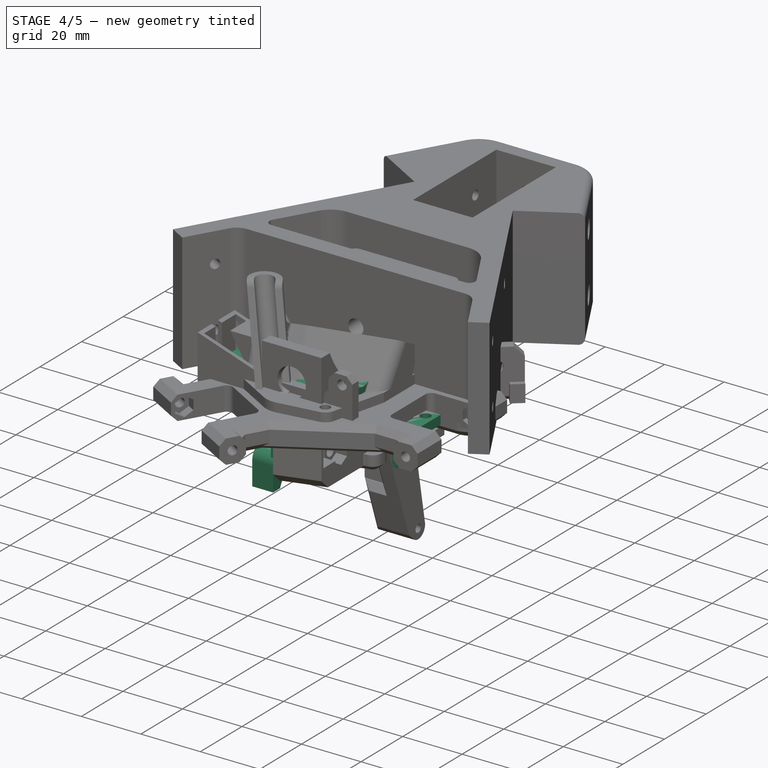
[diagram: stage 4 of 5 — iso view after this stage's code; geometry added in this stage tinted green]
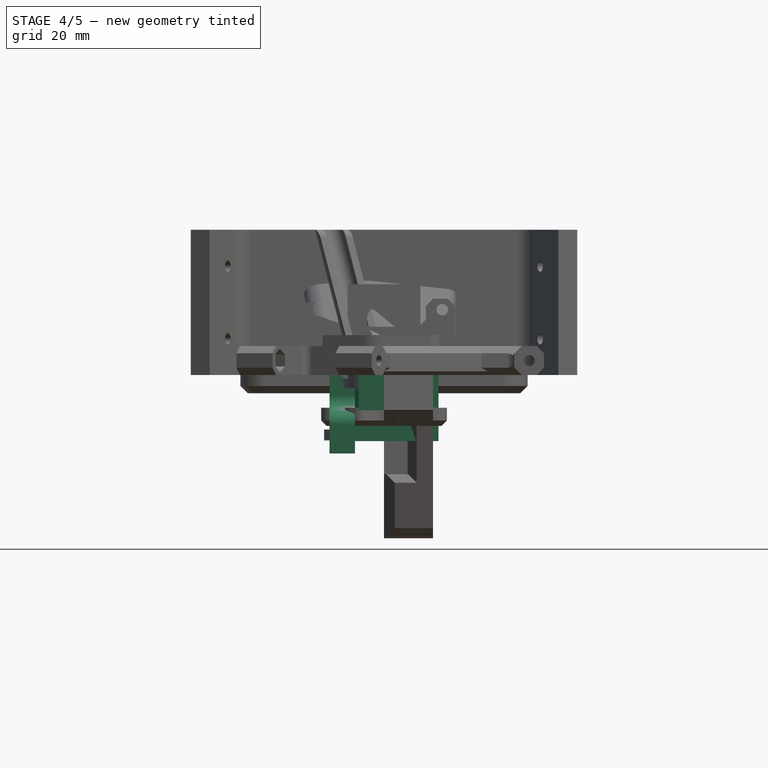
[diagram: stage 4 of 5 — front view after this stage's code; geometry added in this stage tinted green]
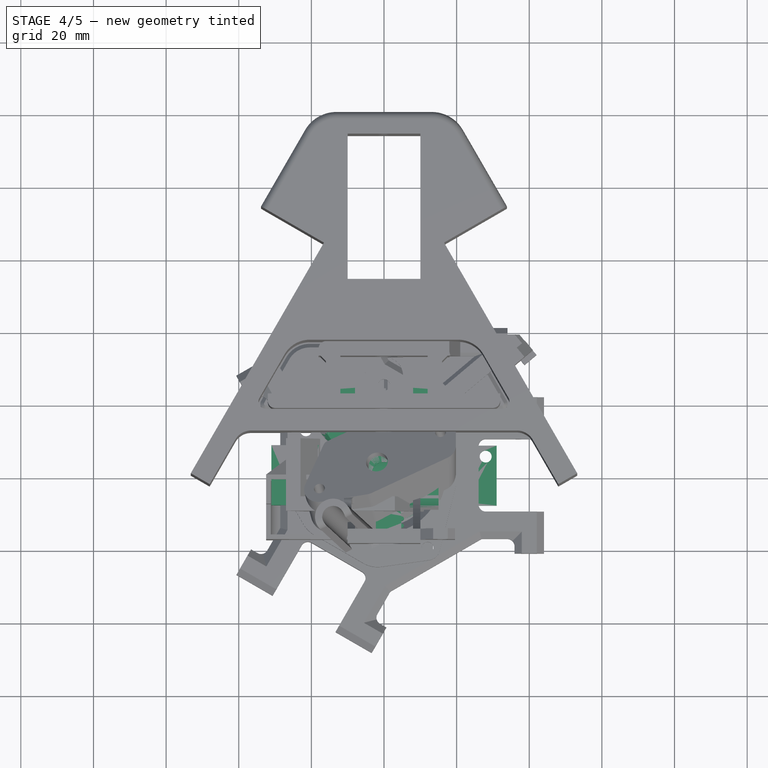
[diagram: stage 4 of 5 — top view after this stage's code; geometry added in this stage tinted green]
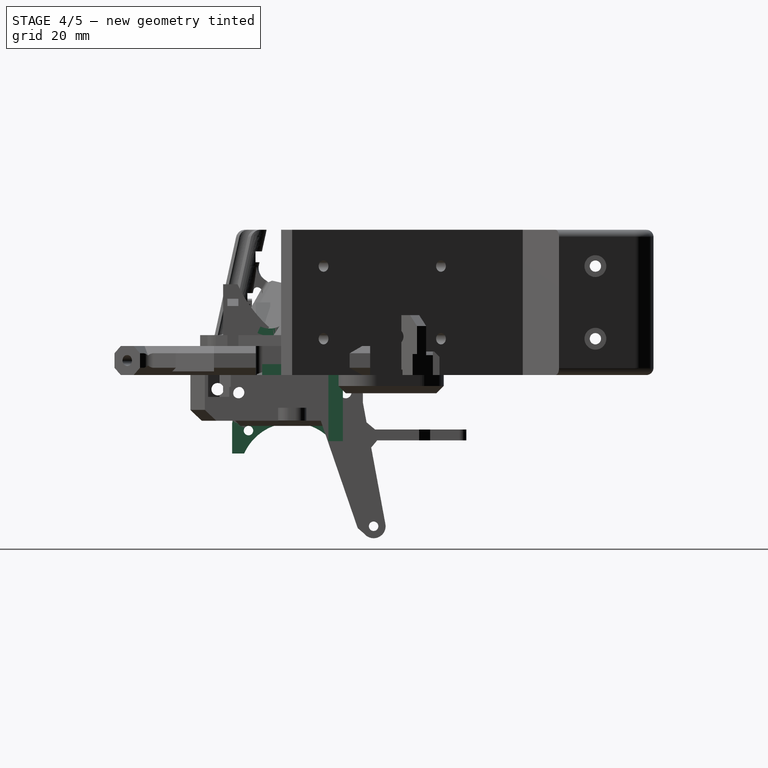
[diagram: stage 4 of 5 — right view after this stage's code; geometry added in this stage tinted green]
FEATURE [Sketcher::SketchObject] Sketch045
  FullyConstrained = false
  MapMode = 5
  Support = -> [XY_Plane006]
  sketch-geometry (8):
    g0: LineSegment StartX=-7 StartY=19 StartZ=0 EndX=0 EndY=19 EndZ=0
    g1: LineSegment StartX=0 StartY=19 StartZ=0 EndX=4e-16 EndY=6.2 EndZ=0
    g2: LineSegment StartX=0 StartY=-19 StartZ=0 EndX=-7 EndY=-19 EndZ=0
    g3: LineSegment StartX=-7 StartY=-19 StartZ=0 EndX=-7 EndY=-9.12414 EndZ=0
    g4: ArcOfCircle CenterX=0 CenterY=0 CenterZ=0 NormalX=0 NormalY=0 NormalZ=1 AngleXU=0 Radius=6.2 StartAngle=1.5708 EndAngle=4.71239
    g5: ArcOfCircle CenterX=0 CenterY=0 CenterZ=0 NormalX=0 NormalY=0 NormalZ=1 AngleXU=0 Radius=11.5 StartAngle=2.22521 EndAngle=4.05797
    g6: LineSegment StartX=-1.1e-15 StartY=-6.2 StartZ=0 EndX=0 EndY=-19 EndZ=0
    g7: LineSegment StartX=-7 StartY=9.12414 StartZ=0 EndX=-7 EndY=19 EndZ=0
  constraints (19):
    c: Coincident(g0,g1)
    c: Coincident(g6,g2)
    c: Coincident(g2,g3)
    c: Coincident(g7,g0)
    c: Horizontal(g0)
    c: Horizontal(g2)
    c: Vertical(g3)
    c: PointOnObject(g6,g-2)
    c: DistanceX(g0,g0) = 7
    c: DistanceY(g6,g1) = 38
    c: Symmetric(g0,g6,g-1)
    c: Coincident(g4,g-1)
    c: Radius(g4) = 6.2
    c: Coincident(g5,g4)
    c: Radius(g5) = 11.5
    c: Coincident(g1,g4)
    c: Coincident(g6,g4)
    c: Coincident(g5,g7)
    c: Coincident(g5,g3)
FEATURE [PartDesign::Pad] Pad008
  Direction = (0,0,1)
  Length = 9.7
  Length2 = 10
  Profile = -> Sketch045
  ReferenceAxis = -> Sketch045 [N_Axis]
  Reversed = true
  Type = 0
FEATURE [Sketcher::SketchObject] Sketch046
  FullyConstrained = false
  MapMode = 5
  Support = -> [XY_Plane006]
  sketch-geometry (7):
    g0: LineSegment StartX=-7 StartY=19 StartZ=0 EndX=0 EndY=19 EndZ=0
    g1: LineSegment StartX=7e-16 StartY=11.5 StartZ=0 EndX=5e-16 EndY=6.2 EndZ=0
    g2: LineSegment StartX=0 StartY=-19 StartZ=0 EndX=-7 EndY=-19 EndZ=0
    g3: LineSegment StartX=-7 StartY=-19 StartZ=0 EndX=-7 EndY=19 EndZ=0
    g4: ArcOfCircle CenterX=0 CenterY=0 CenterZ=0 NormalX=0 NormalY=0 NormalZ=1 AngleXU=0 Radius=6.2 StartAngle=1.5708 EndAngle=4.71239
    g5: ArcOfCircle CenterX=0 CenterY=0 CenterZ=0 NormalX=0 NormalY=0 NormalZ=1 AngleXU=0 Radius=11.5 StartAngle=1.5708 EndAngle=4.71239
    g6: LineSegment StartX=-1.1e-15 StartY=-6.2 StartZ=0 EndX=0 EndY=-11.5 EndZ=0
  constraints (16):
    c: Coincident(g2,g3)
    c: Coincident(g3,g0)
    c: Horizontal(g0)
    c: Horizontal(g2)
    c: Vertical(g3)
    c: PointOnObject(g2,g-2)
    c: DistanceX(g0,g0) = 7
    c: DistanceY(g2,g0) = 38
    c: Coincident(g4,g-1)
    c: Radius(g4) = 6.2
    c: Coincident(g5,g4)
    c: Radius(g5) = 11.5
    c: Coincident(g1,g5)
    c: Coincident(g6,g5)
    c: Coincident(g1,g4)
    c: Coincident(g6,g4)
FEATURE [PartDesign::Pocket] Pocket002
  BaseFeature = -> Pad008
  Direction = (0,0,-1)
  Length = 3.9
  Length2 = 5
  Profile = -> Sketch046
  ReferenceAxis = -> Sketch046 [N_Axis]
  Type = 0
FEATURE [Sketcher::SketchObject] Sketch047
  AttachmentOffset = pos=(0,0,-15) rot=(0,0,1;0rad)
  FullyConstrained = true
  MapMode = 5
  Placement = pos=(-15,3.3e-15,-3.3e-15) rot=(0.57735,0.57735,0.57735;2.0944rad)
  Support = -> [YZ_Plane006]
  sketch-geometry (16):
    g0: LineSegment StartX=-16.5 StartY=-3.6 StartZ=0 EndX=16.5 EndY=-3.6 EndZ=0
    g1: LineSegment StartX=16.5 StartY=-3.6 StartZ=0 EndX=16.5 EndY=-21.6 EndZ=0
    g2: LineSegment StartX=16.5 StartY=-21.6 StartZ=0 EndX=-16.5 EndY=-21.6 EndZ=0
    g3: LineSegment StartX=-16.5 StartY=-21.6 StartZ=0 EndX=-16.5 EndY=-3.6 EndZ=0
    g4: ArcOfCircle CenterX=0 CenterY=-27.6 CenterZ=0 NormalX=0 NormalY=0 NormalZ=1 AngleXU=0 Radius=14.5 StartAngle=0.426617 EndAngle=2.71498
    g5: ArcOfCircle CenterX=-13 CenterY=-5.6 CenterZ=0 NormalX=0 NormalY=0 NormalZ=1 AngleXU=0 Radius=4 StartAngle=4.77493 EndAngle=6.28319
    g6: LineSegment StartX=-9 StartY=-5.6 StartZ=0 EndX=-9 EndY=-3.6 EndZ=0
    g7: ArcOfCircle CenterX=-12.5 CenterY=-13.5844 CenterZ=0 NormalX=0 NormalY=0 NormalZ=1 AngleXU=0 Radius=4 StartAngle=1.63334 EndAngle=3.14159
    g8: LineSegment StartX=9 StartY=-3.6 StartZ=0 EndX=9 EndY=-5.6 EndZ=0
    g9: ArcOfCircle CenterX=13 CenterY=-5.6 CenterZ=0 NormalX=0 NormalY=0 NormalZ=1 AngleXU=0 Radius=4 StartAngle=3.14159 EndAngle=4.64985
    g10: ArcOfCircle CenterX=12.5 CenterY=-13.5844 CenterZ=0 NormalX=0 NormalY=0 NormalZ=1 AngleXU=0 Radius=4 StartAngle=2e-16 EndAngle=1.50826
    g11: LineSegment StartX=16.5 StartY=-13.5844 StartZ=0 EndX=16.5 EndY=-21.6 EndZ=0
    g12: LineSegment StartX=16.5 StartY=-21.6 StartZ=0 EndX=13.2004 EndY=-21.6 EndZ=0
    g13: LineSegment StartX=-16.5 StartY=-13.5844 StartZ=0 EndX=-16.5 EndY=-21.6 EndZ=0
    g14: LineSegment StartX=-16.5 StartY=-21.6 StartZ=0 EndX=-13.2004 EndY=-21.6 EndZ=0
    g15: LineSegment StartX=-9 StartY=-3.6 StartZ=0 EndX=9 EndY=-3.6 EndZ=0
  constraints (45):
    c: Coincident(g0,g3)
    c: DistanceX(g0,g0) = 33
    c: DistanceY(g3,g3) = 18
    c: Coincident(g1,g0)
    c: Vertical(g1)
    c: Symmetric(g0,g0,g-2)
    c: Equal(g2,g0)
    c: Equal(g3,g1)
    c: Horizontal(g2)
    c: Coincident(g2,g3)
    c: DistanceY(g0,g-1) = 3.6
    c: Radius(g4) = 14.5
    c: PointOnObject(g4,g-2)
    c: PointOnObject(g4,g2)
    c: PointOnObject(g4,g2)
    c: DistanceY(g4,g1) = 6
    c: Vertical(g3)
    c: PointOnObject(g6,g0)
    c: Vertical(g6)
    c: Radius(g5) = 4
    c: Radius(g7) = 4
    c: DistanceX(g6,g-1) = 9
    c: Tangent(g6,g5) = -1.5708
    c: Tangent(g7,g5) = 1.5708
    c: Tangent(g7,g3) = 1.5708
    c: DistanceY(g6,g6) = 2
    c: PointOnObject(g8,g0)
    c: Vertical(g8)
    c: Equal(g8,g6)
    c: DistanceX(g-1,g8) = 9
    c: Equal(g10,g9)
    c: Equal(g9,g5)
    c: Tangent(g9,g8) = -1.5708
    c: Tangent(g10,g9) = 1.5708
    c: Tangent(g10,g1) = 1.5708
    c: Coincident(g11,g10)
    c: Coincident(g11,g1)
    c: Coincident(g12,g11)
    c: Coincident(g12,g4)
    c: Coincident(g13,g7)
    c: Coincident(g13,g2)
    c: Coincident(g14,g13)
    c: Coincident(g14,g4)
    c: Coincident(g15,g6)
    c: Coincident(g15,g8)
FEATURE [PartDesign::Pad] Pad009
  BaseFeature = -> Pocket002
  Direction = (1,-2e-16,3e-16)
  Length = 7
  Length2 = 10
  Profile = -> Sketch047
  ReferenceAxis = -> Sketch047 [N_Axis]
  Type = 0
FEATURE [Sketcher::SketchObject] Sketch048
  FullyConstrained = true
  MapMode = 5
  Placement = pos=(0,0,0) rot=(0.57735,0.57735,0.57735;2.0944rad)
  Support = -> [YZ_Plane006]
  sketch-geometry (4):
    g0: Circle CenterX=-14.75 CenterY=-4.8 CenterZ=0 NormalX=0 NormalY=0 NormalZ=1 AngleXU=0 Radius=1.6
    g1: Circle CenterX=14.75 CenterY=-4.8 CenterZ=0 NormalX=0 NormalY=0 NormalZ=1 AngleXU=0 Radius=1.6
    g2: Circle CenterX=-12 CenterY=-15.3 CenterZ=0 NormalX=0 NormalY=0 NormalZ=1 AngleXU=0 Radius=1.3
    g3: Circle CenterX=12 CenterY=-15.3 CenterZ=0 NormalX=0 NormalY=0 NormalZ=1 AngleXU=0 Radius=1.3
  constraints (10):
    c: Radius(g0) = 1.6
    c: Equal(g1,g0)
    c: Symmetric(g0,g1,g-2)
    c: DistanceY(g0,g-1) = 4.8
    c: DistanceX(g-1,g1) = 14.75
    c: Radius(g3) = 1.3
    c: Equal(g3,g2)
    c: DistanceX(g2,g-1) = 12
    c: Symmetric(g2,g3,g-2)
    c: DistanceY(g2,g-1) = 15.3
FEATURE [PartDesign::Pocket] Pocket030
  BaseFeature = -> Pad009
  Direction = (-1,2e-16,-3e-16)
  Length = 5
  Length2 = 5
  Profile = -> Sketch048
  ReferenceAxis = -> Sketch048 [N_Axis]
  Type = 1
FEATURE [PartDesign::Body] Body006  label="HotendClip"
  Group = -> [Sketch045,Sketch046,Pad008,Pocket002,Sketch047,Pad009,Sketch048,Pocket030,Fillet006,Fillet007,Fillet008]
  Origin = -> Origin006
  Tip = -> Fillet008
FEATURE [Sketcher::SketchObject] Sketch049
  AttachmentOffset = pos=(-2.6,10.8,17) rot=(-0.764563,-0.03018,0.643842;0.70075rad)
  FullyConstrained = false
  MapMode = 5
  Placement = pos=(-2.6,10.8,17) rot=(-0.764563,-0.03018,0.643842;0.70075rad)
  Support = -> [XY_Plane005]
  sketch-geometry (26):
    g0: LineSegment StartX=-23.9577 StartY=0.35 StartZ=0 EndX=5.21741 EndY=0.35 EndZ=0
    g1: LineSegment StartX=-24.9577 StartY=-0.65 StartZ=0 EndX=-24.9577 EndY=-8 EndZ=0
    g2: LineSegment StartX=-15.0932 StartY=-20.351 StartZ=0 EndX=-23.7488 EndY=-11.069 EndZ=0
    g3: LineSegment StartX=8.3423 StartY=-20.669 StartZ=0 EndX=-14.3618 EndY=-20.669 EndZ=0
    g4: LineSegment StartX=19.5144 StartY=-11.3009 StartZ=0 EndX=9.68057 EndY=-20.1553 EndZ=0
    g5: LineSegment StartX=5.21741 StartY=0.35 StartZ=0 EndX=17.9149 EndY=-3.77566 EndZ=0
    g6: Circle CenterX=16.5423 CenterY=-8 CenterZ=0 NormalX=0 NormalY=0 NormalZ=1 AngleXU=0 Radius=1.5
    g7: Circle CenterX=-2.9577 CenterY=-8 CenterZ=0 NormalX=0 NormalY=0 NormalZ=1 AngleXU=0 Radius=2
    g8: Circle CenterX=-20.4577 CenterY=-8 CenterZ=0 NormalX=0 NormalY=0 NormalZ=1 AngleXU=0 Radius=1.5
    g9: ArcOfCircle CenterX=16.5423 CenterY=-8 CenterZ=0 NormalX=0 NormalY=0 NormalZ=1 AngleXU=0 Radius=4.44174 StartAngle=5.44543 EndAngle=7.53982
    g10: ArcOfCircle CenterX=-20.4577 CenterY=-8 CenterZ=0 NormalX=0 NormalY=0 NormalZ=1 AngleXU=0 Radius=4.5 StartAngle=3.14159 EndAngle=3.89208
    g11: ArcOfCircle CenterX=-23.9577 CenterY=-0.65 CenterZ=0 NormalX=0 NormalY=0 NormalZ=1 AngleXU=0 Radius=1 StartAngle=1.5708 EndAngle=3.14159
    g12: ArcOfCircle CenterX=-14.3618 CenterY=-19.669 CenterZ=0 NormalX=0 NormalY=0 NormalZ=1 AngleXU=0 Radius=1 StartAngle=3.89208 EndAngle=4.71239
    g13: ArcOfCircle CenterX=8.3423 CenterY=-18.669 CenterZ=0 NormalX=0 NormalY=0 NormalZ=1 AngleXU=0 Radius=2 StartAngle=4.71239 EndAngle=5.44543
    g14: LineSegment StartX=-20.4577 StartY=-8 StartZ=0 EndX=16.5423 EndY=-8 EndZ=0
    g15: LineSegment StartX=-23.3696 StartY=-4.87736 StartZ=0 EndX=-13.6217 EndY=4.21271 EndZ=0
    g16: LineSegment StartX=-12.2577 StartY=4.75 StartZ=0 EndX=10.061 EndY=4.75 EndZ=0
    g17: LineSegment StartX=10.7804 StartY=4.44466 StartZ=0 EndX=19.7793 EndY=-4.87404 EndZ=0
    g18: LineSegment StartX=21.0423 StartY=-8 StartZ=0 EndX=21.0423 EndY=-15.35 EndZ=0
    g19: LineSegment StartX=20.0423 StartY=-16.35 StartZ=0 EndX=-8.9577 EndY=-16.35 EndZ=0
    g20: LineSegment StartX=-8.9577 StartY=-16.35 StartZ=0 EndX=-21.8124 EndY=-12.049 EndZ=0
    g21: ArcOfCircle CenterX=16.5423 CenterY=-8 CenterZ=0 NormalX=0 NormalY=0 NormalZ=1 AngleXU=0 Radius=4.5 StartAngle=0 EndAngle=0.767945
    g22: ArcOfCircle CenterX=20.0423 CenterY=-15.35 CenterZ=0 NormalX=0 NormalY=0 NormalZ=1 AngleXU=0 Radius=1 StartAngle=4.71239 EndAngle=6.28319
    g23: ArcOfCircle CenterX=10.061 CenterY=3.75 CenterZ=0 NormalX=0 NormalY=0 NormalZ=1 AngleXU=0 Radius=1 StartAngle=0.767945 EndAngle=1.5708
    g24: ArcOfCircle CenterX=-12.2577 CenterY=2.75 CenterZ=0 NormalX=0 NormalY=0 NormalZ=1 AngleXU=0 Radius=2 StartAngle=1.5708 EndAngle=2.32129
    g25: ArcOfCircle CenterX=-20.4577 CenterY=-8 CenterZ=0 NormalX=0 NormalY=0 NormalZ=1 AngleXU=0 Radius=4.26967 StartAngle=2.32129 EndAngle=4.38952
  constraints (62):
    c: Horizontal(g0)
    c: Vertical(g1)
    c: Horizontal(g3)
    c: Coincident(g5,g0)
    c: Angle(g2,g1) = 2.3911
    c: Angle(g0,g5) = 2.82743
    c: Angle(g5,g4) = 1.0472
    c: Equal(g8,g6)
    c: Radius(g6) = 1.5
    c: Radius(g7) = 2
    c: Horizontal(g8,g7)
    c: Horizontal(g7,g6)
    c: DistanceX(g8,g7) = 17.5
    c: DistanceX(g7,g6) = 19.5
    c: DistanceY(g7,g0) = 8.35
    c: Tangent(g5,g9) = 1.5708
    c: Tangent(g4,g9) = 1.5708
    c: Coincident(g9,g6)
    c: Tangent(g1,g10) = -1.5708
    c: Tangent(g2,g10) = 1.5708
    c: Coincident(g10,g8)
    c: Tangent(g1,g11) = -1.5708
    c: Tangent(g0,g11) = 1.5708
    c: Radius(g11) = 1
    c: Tangent(g2,g12) = 1.5708
    c: Tangent(g3,g12) = 1.5708
    c: Radius(g12) = 1
    c: Tangent(g3,g13) = 1.5708
    c: Tangent(g4,g13) = 1.5708
    c: Radius(g13) = 2
    c: DistanceY(g12,g2) = 8.6
    c: DistanceX(g13,g6) = 8.2
    c: DistanceX(g11,g8) = 3.5
    c: Coincident(g14,g8)
    c: Coincident(g14,g6)
    c: Horizontal(g16)
    c: Horizontal(g19)
    c: Coincident(g20,g19)
    c: Tangent(g17,g21) = 1.5708
    c: Tangent(g18,g21) = 1.5708
    c: Coincident(g21,g6)
    c: Tangent(g19,g22) = 1.5708
    c: Tangent(g18,g22) = 1.5708
    c: Radius(g22) = 1
    c: Vertical(g18)
    c: DistanceY(g19,g7) = 8.35
    c: Tangent(g16,g23) = 1.5708
    c: Tangent(g17,g23) = 1.5708
    c: Radius(g23) = 1
    c: Tangent(g15,g24) = 1.5708
    c: Tangent(g16,g24) = 1.5708
    c: Radius(g24) = 2
    c: DistanceX(g8,g24) = 8.2
    c: Angle(g15,g16) = 2.3911
    c: DistanceX(g6,g22) = 3.5
    c: Distance(g19) = 29
    c: Tangent(g15,g25) = 1.5708
    c: Tangent(g20,g25) = 1.5708
    c: Coincident(g25,g8)
    c: Angle(g16,g17) = 2.33874
    c: DistanceY(g7,g-1) = 8
    c: DistanceY(g7,g24) = 10.75
FEATURE [PartDesign::Body] Body005  label="Orbiter2Adapter_v0.1"
  Group = -> [DatumPlane006,Sketch037,Sketch038,Pad006,Sketch039,Sketch003,Sketch040,Sketch041,Pad007,Sketch042,Pocket028,Sketch043,Pocket029,DatumPlane007,Sketch044,SubtractivePipe,Fillet003,Fillet004,Fillet005,Sketch049]
  Origin = -> Origin005
  Tip = -> Fillet005
FEATURE [Sketcher::SketchObject] Sketch050
  FullyConstrained = true
  MapMode = 5
  Support = -> [XY_Plane007]
  sketch-geometry (15):
    g0: LineSegment StartX=-31 StartY=8.25 StartZ=0 EndX=31 EndY=8.25 EndZ=0
    g1: LineSegment StartX=31 StartY=8.25 StartZ=0 EndX=31 EndY=-8.25 EndZ=0
    g2: LineSegment StartX=31 StartY=-8.25 StartZ=0 EndX=-31 EndY=-8.25 EndZ=0
    g3: LineSegment StartX=-31 StartY=-8.25 StartZ=0 EndX=-31 EndY=8.25 EndZ=0
    g4: Circle CenterX=-21 CenterY=0 CenterZ=0 NormalX=0 NormalY=0 NormalZ=1 AngleXU=0 Radius=1.65
    g5: Circle CenterX=28 CenterY=5.25 CenterZ=0 NormalX=0 NormalY=0 NormalZ=1 AngleXU=0 Radius=1.65
    g6: Circle CenterX=9 CenterY=5.25 CenterZ=0 NormalX=0 NormalY=0 NormalZ=1 AngleXU=0 Radius=1.65
    g7: LineSegment StartX=12 StartY=-0.05 StartZ=0 EndX=25 EndY=-0.05 EndZ=0
    g8: LineSegment StartX=25 StartY=-0.05 StartZ=0 EndX=25 EndY=-3.25 EndZ=0
    g9: LineSegment StartX=25 StartY=-3.25 StartZ=0 EndX=12 EndY=-3.25 EndZ=0
    g10: LineSegment StartX=12 StartY=-3.25 StartZ=0 EndX=12 EndY=-0.05 EndZ=0
    g11: LineSegment StartX=1 StartY=5.45 StartZ=0 EndX=5 EndY=5.45 EndZ=0
    g12: LineSegment StartX=5 StartY=5.45 StartZ=0 EndX=5 EndY=-5.45 EndZ=0
    g13: LineSegment StartX=5 StartY=-5.45 StartZ=0 EndX=1 EndY=-5.45 EndZ=0
    g14: LineSegment StartX=1 StartY=-5.45 StartZ=0 EndX=1 EndY=5.45 EndZ=0
  constraints (43):
    c: Coincident(g0,g1)
    c: Coincident(g1,g2)
    c: Coincident(g2,g3)
    c: Coincident(g3,g0)
    c: Horizontal(g0)
    c: Horizontal(g2)
    c: Vertical(g1)
    c: Vertical(g3)
    c: Distance(g0) = 62
    c: Symmetric(g0,g1,g-1)
    c: DistanceY(g3,g3) = 16.5
    c: PointOnObject(g4,g-1)
    c: Radius(g4) = 1.65
    c: DistanceX(g0,g4) = 10
    c: Radius(g5) = 1.65
    c: Equal(g5,g6)
    c: DistanceX(g6,g5) = 19
    c: DistanceX(g5,g1) = 3
    c: Horizontal(g5,g6)
    c: DistanceY(g5,g0) = 3
    c: Coincident(g7,g8)
    c: Coincident(g8,g9)
    c: Coincident(g9,g10)
    c: Coincident(g10,g7)
    c: Horizontal(g7)
    c: Horizontal(g9)
    c: Vertical(g8)
    c: Vertical(g10)
    c: DistanceX(g7,g7) = 13
    c: DistanceY(g10,g10) = 3.2
    c: DistanceY(g1,g8) = 5
    c: DistanceX(g8,g1) = 6
    c: Coincident(g11,g12)
    c: Coincident(g12,g13)
    c: Coincident(g13,g14)
    c: Coincident(g14,g11)
    c: Horizontal(g11)
    c: Horizontal(g13)
    c: Vertical(g12)
    c: DistanceX(g11,g11) = 4
    c: DistanceX(g11,g0) = 30
    c: Symmetric(g11,g13,g-1)
    c: DistanceY(g11,g0) = 2.8
FEATURE [PartDesign::Pad] Pad010
  Direction = (0,0,1)
  Length = 3
  Length2 = 10
  Profile = -> Sketch050
  ReferenceAxis = -> Sketch050 [N_Axis]
  Type = 0
FEATURE [Sketcher::SketchObject] Sketch051
  ExternalGeometry = -> [Sketch050]
  FullyConstrained = true
  MapMode = 5
  Support = -> [XY_Plane007]
  sketch-geometry (4):
    g0: LineSegment StartX=-13 StartY=8.25 StartZ=0 EndX=-31 EndY=8.25 EndZ=0
    g1: LineSegment StartX=-31 StartY=8.25 StartZ=0 EndX=-31 EndY=-8.25 EndZ=0
    g2: LineSegment StartX=-31 StartY=-8.25 StartZ=0 EndX=-13 EndY=-8.25 EndZ=0
    g3: LineSegment StartX=-13 StartY=-8.25 StartZ=0 EndX=-13 EndY=8.25 EndZ=0
  constraints (11):
    c: Coincident(g0,g1)
    c: Coincident(g1,g2)
    c: Coincident(g2,g3)
    c: Coincident(g3,g0)
    c: Horizontal(g0)
    c: Horizontal(g2)
    c: Vertical(g3)
    c: DistanceX(g0,g0) = 18
    c: Symmetric(g0,g1,g-1)
    c: DistanceY(g1,g1) = 16.5
    c: DistanceX(g-3,g0) = 18
FEATURE [PartDesign::Pad] Pad011
  BaseFeature = -> Pad010
  Direction = (0,0,1)
  Length = 10
  Length2 = 10
  Profile = -> Sketch051
  ReferenceAxis = -> Sketch051 [N_Axis]
  Type = 0
FEATURE [Sketcher::SketchObject] Sketch052
  FullyConstrained = true
  MapMode = 5
  Placement = pos=(0,0,0) rot=(0.57735,0.57735,0.57735;2.0944rad)
  Support = -> [YZ_Plane007]
  sketch-geometry (1):
    g0: Circle CenterX=0 CenterY=13 CenterZ=0 NormalX=0 NormalY=0 NormalZ=1 AngleXU=0 Radius=1.65
  constraints (3):
    c: PointOnObject(g0,g-2)
    c: DistanceY(g-1,g0) = 13
    c: Radius(g0) = 1.65
FEATURE [PartDesign::Pocket] Pocket031
  BaseFeature = -> Pad011
  Direction = (-1,2e-16,-3e-16)
  Length = 5
  Length2 = 5
  Profile = -> Sketch052
  ReferenceAxis = -> Sketch052 [N_Axis]
  Type = 1
FEATURE [Sketcher::SketchObject] Sketch053
  AttachmentOffset = pos=(0,0,10) rot=(0,0,1;0rad)
  ExternalGeometry = -> [Pocket031]
  FullyConstrained = true
  MapMode = 5
  Placement = pos=(0,0,10) rot=(0,0,1;0rad)
  Support = -> [XY_Plane007]
  sketch-geometry (4):
    g0: LineSegment StartX=-24 StartY=8.25 StartZ=0 EndX=-18 EndY=8.25 EndZ=0
    g1: LineSegment StartX=-18 StartY=8.25 StartZ=0 EndX=-18 EndY=-8.25 EndZ=0
    g2: LineSegment StartX=-18 StartY=-8.25 StartZ=0 EndX=-24 EndY=-8.25 EndZ=0
    g3: LineSegment StartX=-24 StartY=-8.25 StartZ=0 EndX=-24 EndY=8.25 EndZ=0
  constraints (11):
    c: Coincident(g0,g1)
    c: Coincident(g1,g2)
    c: Coincident(g2,g3)
    c: Coincident(g3,g0)
    c: Horizontal(g0)
    c: Horizontal(g2)
    c: Vertical(g3)
    c: DistanceX(g0,g0) = 6
    c: DistanceX(g-3,g0) = 7
    c: DistanceY(g3,g3) = 16.5
    c: Symmetric(g0,g1,g-1)
FEATURE [PartDesign::Pad] Pad012
  BaseFeature = -> Pocket031
  Direction = (0,0,1)
  Length = 2
  Length2 = 10
  Profile = -> Sketch053
  ReferenceAxis = -> Sketch053 [N_Axis]
  Type = 0
FEATURE [Sketcher::SketchObject] Sketch054
  ExternalGeometry = -> [Sketch050]
  FullyConstrained = true
  MapMode = 5
  Support = -> [XY_Plane007]
  sketch-geometry (1):
    g0: Circle CenterX=-21 CenterY=0 CenterZ=0 NormalX=0 NormalY=0 NormalZ=1 AngleXU=0 Radius=1.65
  constraints (3):
    c: PointOnObject(g0,g-1)
    c: Radius(g0) = 1.65
    c: DistanceX(g-3,g0) = 10
FEATURE [PartDesign::Pocket] Pocket032
  BaseFeature = -> Pad012
  Direction = (0,0,-1)
  Length = 5
  Length2 = 5
  Profile = -> Sketch054
  ReferenceAxis = -> Sketch054 [N_Axis]
  Reversed = true
  Type = 1
FEATURE [PartDesign::Body] Body007  label="EndStopMount"
  Group = -> [Sketch050,Pad010,Sketch051,Pad011,Sketch052,Pocket031,Sketch053,Pad012,Sketch054,Pocket032]
  Origin = -> Origin007
  Tip = -> Pocket032
FEATURE [Sketcher::SketchObject] Sketch058
  FullyConstrained = false
  MapMode = 5
  Support = -> [XY_Plane011]
  sketch-geometry (132):
    g0: LineSegment StartX=-53.205 StartY=0 StartZ=0 EndX=53.205 EndY=0 EndZ=0
    g1: LineSegment StartX=-53.205 StartY=0 StartZ=0 EndX=-53.205 EndY=99.52 EndZ=0
    g2: LineSegment StartX=53.205 StartY=0 StartZ=0 EndX=53.205 EndY=99.52 EndZ=0
    g3: LineSegment StartX=-53.205 StartY=0 StartZ=0 EndX=-16.535 EndY=63.5143 EndZ=0
    g4: LineSegment StartX=53.205 StartY=0 StartZ=0 EndX=16.535 EndY=63.5143 EndZ=0
    g5: LineSegment StartX=16.535 StartY=63.5143 StartZ=0 EndX=33.8555 EndY=73.5143 EndZ=0
    g6: LineSegment StartX=-16.535 StartY=63.5143 StartZ=0 EndX=-33.8555 EndY=73.5143 EndZ=0
    g7: LineSegment StartX=-53.205 StartY=99.52 StartZ=0 EndX=53.205 EndY=99.52 EndZ=0
    g8: ArcOfCircle CenterX=13.0676 CenterY=89.52 CenterZ=0 NormalX=0 NormalY=0 NormalZ=1 AngleXU=0 Radius=10 StartAngle=0.523599 EndAngle=1.5708
    g9: LineSegment StartX=33.8555 StartY=73.5143 StartZ=0 EndX=21.7279 EndY=94.52 EndZ=0
    g10: LineSegment StartX=-33.8555 StartY=73.5143 StartZ=0 EndX=-21.7279 EndY=94.52 EndZ=0
    g11: ArcOfCircle CenterX=-13.0676 CenterY=89.52 CenterZ=0 NormalX=0 NormalY=0 NormalZ=1 AngleXU=0 Radius=10 StartAngle=1.5708 EndAngle=2.61799
    g12: LineSegment StartX=-13.0676 StartY=99.52 StartZ=0 EndX=13.0676 EndY=99.52 EndZ=0
    g13: LineSegment StartX=-10 StartY=93.52 StartZ=0 EndX=10 EndY=93.52 EndZ=0
    g14: LineSegment StartX=10 StartY=93.52 StartZ=0 EndX=10 EndY=53.52 EndZ=0
    g15: LineSegment StartX=10 StartY=53.52 StartZ=0 EndX=-10 EndY=53.52 EndZ=0
    g16: LineSegment StartX=-10 StartY=53.52 StartZ=0 EndX=-10 EndY=93.52 EndZ=0
    g17: LineSegment StartX=-22.3052 StartY=41.52 StartZ=0 EndX=-34.2852 EndY=20.77 EndZ=0
    g18: LineSegment StartX=-32.5532 StartY=17.77 StartZ=0 EndX=32.5532 EndY=17.77 EndZ=0
    g19: LineSegment StartX=34.2852 StartY=20.77 StartZ=0 EndX=22.3052 EndY=41.52 EndZ=0
    g20: LineSegment StartX=15.377 StartY=45.52 StartZ=0 EndX=-15.377 EndY=45.52 EndZ=0
    g21: LineSegment StartX=22.2477 StartY=41.6196 StartZ=0 EndX=27.4439 EndY=44.6196 EndZ=0
    g22: ArcOfCircle CenterX=-15.377 CenterY=37.52 CenterZ=0 NormalX=0 NormalY=0 NormalZ=1 AngleXU=0 Radius=8 StartAngle=1.5708 EndAngle=2.61799
    g23: ArcOfCircle CenterX=15.377 CenterY=37.52 CenterZ=0 NormalX=0 NormalY=0 NormalZ=1 AngleXU=0 Radius=8 StartAngle=0.523599 EndAngle=1.5708
    g24: ArcOfCircle CenterX=-32.5532 CenterY=19.77 CenterZ=0 NormalX=0 NormalY=0 NormalZ=1 AngleXU=0 Radius=2 StartAngle=2.61799 EndAngle=4.71239
    g25: ArcOfCircle CenterX=32.5532 CenterY=19.77 CenterZ=0 NormalX=0 NormalY=0 NormalZ=1 AngleXU=0 Radius=2 StartAngle=4.71239 EndAngle=6.80678
    g26: LineSegment StartX=-24.7968 StartY=37.2045 StartZ=0 EndX=-29.9929 EndY=40.2045 EndZ=0
    g27: LineSegment StartX=-53.205 StartY=0 StartZ=0 EndX=-48.0088 EndY=-3 EndZ=0
    g28: LineSegment StartX=53.205 StartY=0 StartZ=0 EndX=48.0088 EndY=-3 EndZ=0
    g29: LineSegment StartX=-48.0088 StartY=-3 StartZ=0 EndX=-40.9248 EndY=9.27 EndZ=0
    g30: LineSegment StartX=48.0088 StartY=-3 StartZ=0 EndX=40.9248 EndY=9.27 EndZ=0
    g31: LineSegment StartX=-36.5946 StartY=11.77 StartZ=0 EndX=36.5946 EndY=11.77 EndZ=0
    g32: ArcOfCircle CenterX=36.5946 CenterY=6.77 CenterZ=0 NormalX=0 NormalY=0 NormalZ=1 AngleXU=0 Radius=5 StartAngle=0.523599 EndAngle=1.5708
    g33: ArcOfCircle CenterX=-36.5946 CenterY=6.77 CenterZ=0 NormalX=0 NormalY=0 NormalZ=1 AngleXU=0 Radius=5 StartAngle=1.5708 EndAngle=2.61799
    g34: LineSegment StartX=-4 StartY=11.77 StartZ=0 EndX=4 EndY=11.77 EndZ=0
    g35: LineSegment StartX=4 StartY=11.77 StartZ=0 EndX=4 EndY=33.77 EndZ=0
    g36: LineSegment StartX=4 StartY=33.77 StartZ=0 EndX=-4 EndY=33.77 EndZ=0
    g37: LineSegment StartX=-4 StartY=33.77 StartZ=0 EndX=-4 EndY=11.77 EndZ=0
    g38: LineSegment StartX=-8 StartY=38.77 StartZ=0 EndX=8 EndY=38.77 EndZ=0
    g39: LineSegment StartX=8 StartY=38.77 StartZ=0 EndX=8 EndY=22.77 EndZ=0
    g40: LineSegment StartX=8 StartY=22.77 StartZ=0 EndX=-8 EndY=22.77 EndZ=0
    g41: LineSegment StartX=-8 StartY=22.77 StartZ=0 EndX=-8 EndY=38.77 EndZ=0
    g42: LineSegment StartX=33.8555 StartY=73.5143 StartZ=0 EndX=269.356 EndY=-334.384 EndZ=0
    g43: LineSegment StartX=-33.8555 StartY=73.5143 StartZ=0 EndX=-269.356 EndY=-334.384 EndZ=0
    g44: LineSegment StartX=269.356 StartY=-334.384 StartZ=0 EndX=281.486 EndY=-355.393 EndZ=0
    g45: LineSegment StartX=281.48 StartY=-365.384 StartZ=0 EndX=268.41 EndY=-388.022 EndZ=0
    g46: LineSegment StartX=259.76 StartY=-393.022 StartZ=0 EndX=235.5 EndY=-393.022 EndZ=0
    g47: LineSegment StartX=235.5 StartY=-393.022 StartZ=0 EndX=-235.5 EndY=-393.022 EndZ=0
    g48: ArcOfCircle CenterX=272.82 CenterY=-360.384 CenterZ=0 NormalX=0 NormalY=0 NormalZ=1 AngleXU=0 Radius=10 StartAngle=5.75959 EndAngle=6.8057
    g49: ArcOfCircle CenterX=259.75 CenterY=-383.022 CenterZ=0 NormalX=0 NormalY=0 NormalZ=1 AngleXU=0 Radius=10 StartAngle=4.7134 EndAngle=5.75959
    g50: LineSegment StartX=-269.356 StartY=-334.384 StartZ=0 EndX=-281.486 EndY=-355.393 EndZ=0
    g51: LineSegment StartX=-235.5 StartY=-393.022 StartZ=0 EndX=-259.76 EndY=-393.022 EndZ=0
    g52: LineSegment StartX=-281.486 StartY=-365.393 StartZ=0 EndX=-268.416 EndY=-388.031 EndZ=0
    g53: ArcOfCircle CenterX=-272.825 CenterY=-360.393 CenterZ=0 NormalX=0 NormalY=0 NormalZ=1 AngleXU=0 Radius=10 StartAngle=2.61799 EndAngle=3.66519
    g54: ArcOfCircle CenterX=-259.761 CenterY=-383.022 CenterZ=0 NormalX=0 NormalY=0 NormalZ=1 AngleXU=0 Radius=10 StartAngle=3.66628 EndAngle=4.71246
    g55: LineSegment StartX=53.205 StartY=0 StartZ=0 EndX=215.365 EndY=-280.869 EndZ=0
    g56: LineSegment StartX=-53.205 StartY=0 StartZ=0 EndX=-215.365 EndY=-280.869 EndZ=0
    g57: LineSegment StartX=-162.16 StartY=-373.022 StartZ=0 EndX=162.16 EndY=-373.022 EndZ=0
    g58: GeomPoint X=134.285 Y=-140.435 Z=0
    g59: GeomPoint X=-134.285 Y=-140.435 Z=0
    g60: LineSegment StartX=60.705 StartY=-12.9904 StartZ=0 EndX=52.0447 EndY=-17.9904 EndZ=0
    g61: LineSegment StartX=-60.705 StartY=-12.9904 StartZ=0 EndX=-52.0447 EndY=-17.9904 EndZ=0
    g62: LineSegment StartX=207.865 StartY=-267.879 StartZ=0 EndX=199.205 EndY=-272.879 EndZ=0
    g63: LineSegment StartX=147.16 StartY=-373.022 StartZ=0 EndX=147.16 EndY=-363.022 EndZ=0
    g64: LineSegment StartX=-147.16 StartY=-373.022 StartZ=0 EndX=-147.16 EndY=-363.022 EndZ=0
    g65: LineSegment StartX=-207.865 StartY=-267.879 StartZ=0 EndX=-199.205 EndY=-272.879 EndZ=0
    g66: Circle CenterX=199.205 CenterY=-272.879 CenterZ=0 NormalX=0 NormalY=0 NormalZ=1 AngleXU=0 Radius=1.6
    g67: Circle CenterX=147.16 CenterY=-363.022 CenterZ=0 NormalX=0 NormalY=0 NormalZ=1 AngleXU=0 Radius=1.6
    g68: Circle CenterX=-147.16 CenterY=-363.022 CenterZ=0 NormalX=0 NormalY=0 NormalZ=1 AngleXU=0 Radius=1.6
    g69: Circle CenterX=-199.205 CenterY=-272.879 CenterZ=0 NormalX=0 NormalY=0 NormalZ=1 AngleXU=0 Radius=1.6
    g70: Circle CenterX=-52.0447 CenterY=-17.9904 CenterZ=0 NormalX=0 NormalY=0 NormalZ=1 AngleXU=0 Radius=1.6
    g71: Circle CenterX=52.0447 CenterY=-17.9904 CenterZ=0 NormalX=0 NormalY=0 NormalZ=1 AngleXU=0 Radius=1.6
    g72: LineSegment StartX=-134.285 StartY=-140.435 StartZ=0 EndX=-125.625 EndY=-145.435 EndZ=0
    g73: LineSegment StartX=134.285 StartY=-140.435 StartZ=0 EndX=125.625 EndY=-145.435 EndZ=0
    g74: LineSegment StartX=0 StartY=-373.022 StartZ=0 EndX=0 EndY=-383.022 EndZ=0
    g75: Circle CenterX=-125.625 CenterY=-145.435 CenterZ=0 NormalX=0 NormalY=0 NormalZ=1 AngleXU=0 Radius=1.6
    g76: Circle CenterX=125.625 CenterY=-145.435 CenterZ=0 NormalX=0 NormalY=0 NormalZ=1 AngleXU=0 Radius=1.6
    g77: Circle CenterX=0 CenterY=-383.022 CenterZ=0 NormalX=0 NormalY=0 NormalZ=1 AngleXU=0 Radius=1.6
    g78: LineSegment StartX=-125.625 StartY=-145.435 StartZ=0 EndX=90.8816 EndY=-270.435 EndZ=0
    g79: LineSegment StartX=125.625 StartY=-145.435 StartZ=0 EndX=-90.8816 EndY=-270.435 EndZ=0
    g80: LineSegment StartX=0 StartY=-383.022 StartZ=0 EndX=0 EndY=-133.022 EndZ=0
    g81: GeomPoint X=4.5e-15 Y=-217.964 Z=0
    g82: ArcOfCircle CenterX=-25 CenterY=-53.0219 CenterZ=0 NormalX=0 NormalY=0 NormalZ=1 AngleXU=0 Radius=3 StartAngle=1.5708 EndAngle=4.71239
    g83: ArcOfCircle CenterX=25 CenterY=-53.0219 CenterZ=0 NormalX=0 NormalY=0 NormalZ=1 AngleXU=0 Radius=3 StartAngle=4.71239 EndAngle=7.85398
    g84: LineSegment StartX=-25 StartY=-56.0219 StartZ=0 EndX=25 EndY=-56.0219 EndZ=0
    g85: LineSegment StartX=25 StartY=-50.0219 StartZ=0 EndX=-25 EndY=-50.0219 EndZ=0
    g86: ArcOfCircle CenterX=-30 CenterY=-63.0219 CenterZ=0 NormalX=0 NormalY=0 NormalZ=1 AngleXU=0 Radius=3 StartAngle=1.5708 EndAngle=4.71239
    g87: ArcOfCircle CenterX=30 CenterY=-63.0219 CenterZ=0 NormalX=0 NormalY=0 NormalZ=1 AngleXU=0 Radius=3 StartAngle=4.71239 EndAngle=7.85398
    g88: LineSegment StartX=-30 StartY=-66.0219 StartZ=0 EndX=30 EndY=-66.0219 EndZ=0
    g89: LineSegment StartX=30 StartY=-60.0219 StartZ=0 EndX=-30 EndY=-60.0219 EndZ=0
    g90: ArcOfCircle CenterX=-35 CenterY=-73.0219 CenterZ=0 NormalX=0 NormalY=0 NormalZ=1 AngleXU=0 Radius=3 StartAngle=1.5708 EndAngle=4.71239
    g91: ArcOfCircle CenterX=35 CenterY=-73.0219 CenterZ=0 NormalX=0 NormalY=0 NormalZ=1 AngleXU=0 Radius=3 StartAngle=4.71239 EndAngle=7.85398
    g92: LineSegment StartX=-35 StartY=-76.0219 StartZ=0 EndX=35 EndY=-76.0219 EndZ=0
    g93: LineSegment StartX=35 StartY=-70.0219 StartZ=0 EndX=-35 EndY=-70.0219 EndZ=0
    g94: ArcOfCircle CenterX=-160.343 CenterY=-270.124 CenterZ=0 NormalX=0 NormalY=0 NormalZ=1 AngleXU=0 Radius=3 StartAngle=0.523599 EndAngle=3.66519
    g95: ArcOfCircle CenterX=-125.343 CenterY=-330.746 CenterZ=0 NormalX=0 NormalY=0 NormalZ=1 AngleXU=0 Radius=3 StartAngle=3.66519 EndAngle=6.80678
    g96: LineSegment StartX=-162.941 StartY=-271.624 StartZ=0 EndX=-127.941 EndY=-332.246 EndZ=0
    g97: LineSegment StartX=-122.745 StartY=-329.246 StartZ=0 EndX=-157.745 EndY=-268.624 EndZ=0
    g98: ArcOfCircle CenterX=-166.503 CenterY=-279.454 CenterZ=0 NormalX=0 NormalY=0 NormalZ=1 AngleXU=0 Radius=3 StartAngle=0.523599 EndAngle=3.66519
    g99: ArcOfCircle CenterX=-136.503 CenterY=-331.415 CenterZ=0 NormalX=0 NormalY=0 NormalZ=1 AngleXU=0 Radius=3 StartAngle=3.66519 EndAngle=6.80678
    g100: LineSegment StartX=-169.101 StartY=-280.954 StartZ=0 EndX=-139.101 EndY=-332.915 EndZ=0
    g101: LineSegment StartX=-133.905 StartY=-329.915 StartZ=0 EndX=-163.905 EndY=-277.954 EndZ=0
    g102: ArcOfCircle CenterX=-172.664 CenterY=-288.784 CenterZ=0 NormalX=0 NormalY=0 NormalZ=1 AngleXU=0 Radius=3 StartAngle=0.523599 EndAngle=3.66519
    g103: ArcOfCircle CenterX=-147.664 CenterY=-332.085 CenterZ=0 NormalX=0 NormalY=0 NormalZ=1 AngleXU=0 Radius=3 StartAngle=3.66519 EndAngle=6.80678
    g104: LineSegment StartX=-175.262 StartY=-290.284 StartZ=0 EndX=-150.262 EndY=-333.585 EndZ=0
    g105: LineSegment StartX=-145.066 StartY=-330.585 StartZ=0 EndX=-170.066 EndY=-287.284 EndZ=0
    g106: LineSegment StartX=-160.343 StartY=-270.124 StartZ=0 EndX=-125.343 EndY=-330.746 EndZ=0
    g107: LineSegment StartX=-166.503 StartY=-279.454 StartZ=0 EndX=-136.503 EndY=-331.415 EndZ=0
    g108: LineSegment StartX=-172.664 StartY=-288.784 StartZ=0 EndX=-147.664 EndY=-332.085 EndZ=0
    g109: LineSegment StartX=-90.8816 StartY=-270.435 StartZ=0 EndX=-193.904 EndY=-329.915 EndZ=0
    g110: GeomPoint X=-142.843 Y=-300.435 Z=0
    g111: GeomPoint X=-151.503 Y=-305.435 Z=0
    g112: GeomPoint X=-160.164 Y=-310.435 Z=0
    g113: LineSegment StartX=90.8816 StartY=-270.435 StartZ=0 EndX=223.876 EndY=-347.219 EndZ=0
    g114: ArcOfCircle CenterX=125.343 CenterY=-330.746 CenterZ=0 NormalX=0 NormalY=0 NormalZ=1 AngleXU=0 Radius=3 StartAngle=2.61799 EndAngle=5.75959
    g115: ArcOfCircle CenterX=160.343 CenterY=-270.124 CenterZ=0 NormalX=0 NormalY=0 NormalZ=1 AngleXU=0 Radius=3 StartAngle=5.75959 EndAngle=8.90118
    g116: LineSegment StartX=127.941 StartY=-332.246 StartZ=0 EndX=162.941 EndY=-271.624 EndZ=0
    g117: LineSegment StartX=157.745 StartY=-268.624 StartZ=0 EndX=122.745 EndY=-329.246 EndZ=0
    g118: ArcOfCircle CenterX=136.503 CenterY=-331.415 CenterZ=0 NormalX=0 NormalY=0 NormalZ=1 AngleXU=0 Radius=3 StartAngle=2.61799 EndAngle=5.75959
    g119: ArcOfCircle CenterX=166.503 CenterY=-279.454 CenterZ=0 NormalX=0 NormalY=0 NormalZ=1 AngleXU=0 Radius=3 StartAngle=5.75959 EndAngle=8.90118
    g120: LineSegment StartX=139.101 StartY=-332.915 StartZ=0 EndX=169.101 EndY=-280.954 EndZ=0
    g121: LineSegment StartX=163.905 StartY=-277.954 StartZ=0 EndX=133.905 EndY=-329.915 EndZ=0
    g122: ArcOfCircle CenterX=147.664 CenterY=-332.085 CenterZ=0 NormalX=0 NormalY=0 NormalZ=1 AngleXU=0 Radius=3 StartAngle=2.61799 EndAngle=5.75959
    g123: ArcOfCircle CenterX=172.664 CenterY=-288.784 CenterZ=0 NormalX=0 NormalY=0 NormalZ=1 AngleXU=0 Radius=3 StartAngle=5.75959 EndAngle=8.90118
    g124: LineSegment StartX=150.262 StartY=-333.585 StartZ=0 EndX=175.262 EndY=-290.284 EndZ=0
    g125: LineSegment StartX=170.066 StartY=-287.284 StartZ=0 EndX=145.066 EndY=-330.585 EndZ=0
    g126: LineSegment StartX=125.343 StartY=-330.746 StartZ=0 EndX=160.343 EndY=-270.124 EndZ=0
    g127: LineSegment StartX=136.503 StartY=-331.415 StartZ=0 EndX=166.503 EndY=-279.454 EndZ=0
    g128: LineSegment StartX=147.664 StartY=-332.085 StartZ=0 EndX=172.664 EndY=-288.784 EndZ=0
    g129: GeomPoint X=142.843 Y=-300.435 Z=0
    g130: GeomPoint X=151.503 Y=-305.435 Z=0
    g131: GeomPoint X=160.164 Y=-310.435 Z=0
  constraints (334):
    c: PointOnObject(g0,g-1)
    c: DistanceX(g0,g0) = 106.41
    c: Symmetric(g0,g0,g-2)
    c: Coincident(g1,g0)
    c: Vertical(g1)
    c: Coincident(g2,g0)
    c: Vertical(g2)
    c: DistanceY(g2,g2) = 99.52
    c: Equal(g2,g1)
    c: Coincident(g3,g0)
    c: Coincident(g4,g0)
    c: Angle(g3,g1) = 0.523599
    c: Angle(g2,g4) = 0.523599
    c: Equal(g4,g3)
    c: Distance(g3) = 73.34
    c: Coincident(g5,g4)
    c: Coincident(g6,g3)
    c: Equal(g5,g6)
    c: Perpendicular(g4,g5)
    c: Perpendicular(g3,g6)
    c: Distance(g5) = 20
    c: Coincident(g7,g1)
    c: Coincident(g7,g2)
    c: Radius(g8) = 10
    c: Tangent(g8,g7) = 1.5708
    c: Coincident(g9,g5)
    c: Perpendicular(g5,g9)
    c: Tangent(g9,g8) = -1.5708
    c: Coincident(g10,g6)
    c: Radius(g11) = 10
    c: Tangent(g11,g10) = 1.5708
    c: Perpendicular(g6,g10)
    c: Tangent(g11,g7) = 1.5708
    c: Coincident(g12,g11)
    c: Coincident(g12,g8)
    c: Coincident(g13,g14)
    c: Coincident(g14,g15)
    c: Coincident(g15,g16)
    c: Coincident(g16,g13)
    c: Horizontal(g15)
    c: Vertical(g14)
    c: Vertical(g16)
    c: DistanceY(g13,g11) = 6
    c: DistanceY(g16,g16) = 40
    c: DistanceX(g13,g13) = 20
    c: Symmetric(g13,g13,g-2)
    c: Horizontal(g18)
    c: Parallel(g17,g3)
    c: Parallel(g19,g4)
    c: PointOnObject(g21,g19)
    c: PointOnObject(g21,g4)
    c: Perpendicular(g21,g19)
    c: Distance(g21) = 6
    c: Tangent(g17,g22) = -1.5708
    c: Tangent(g20,g22) = -1.5708
    c: Tangent(g20,g23) = -1.5708
    c: Tangent(g19,g23) = -1.5708
    c: Tangent(g17,g24) = -1.5708
    c: Tangent(g18,g24) = -1.5708
    c: Tangent(g19,g25) = -1.5708
    c: Tangent(g18,g25) = -1.5708
    c: Equal(g25,g24)
    c: Parallel(g20,g18)
    c: Equal(g22,g23)
    c: PointOnObject(g26,g17)
    c: PointOnObject(g26,g3)
    c: Perpendicular(g17,g26)
    c: Distance(g26) = 6
    c: DistanceY(g20,g14) = 8
    c: DistanceY(g18,g20) = 27.75
    c: Radius(g25) = 2
    c: Radius(g22) = 8
    c: Coincident(g27,g3)
    c: Coincident(g28,g4)
    c: Perpendicular(g4,g28)
    c: Perpendicular(g27,g3)
    c: Distance(g27) = 6
    c: Equal(g28,g27)
    c: Coincident(g29,g27)
    c: Coincident(g30,g28)
    c: Parallel(g30,g4)
    c: Parallel(g3,g29)
    c: Equal(g29,g30)
    c: Tangent(g31,g32) = 1.5708
    c: Tangent(g30,g32) = -1.5708
    c: Tangent(g29,g33) = 1.5708
    c: Tangent(g31,g33) = 1.5708
    c: Parallel(g31,g18)
    c: DistanceY(g31,g18) = 6
    c: Radius(g32) = 5
    c: Coincident(g34,g35)
    c: Coincident(g35,g36)
    c: Coincident(g36,g37)
    c: Coincident(g37,g34)
    c: Horizontal(g34)
    c: Vertical(g35)
    c: Vertical(g37)
    c: PointOnObject(g34,g31)
    c: DistanceY(g35,g35) = 22
    c: DistanceX(g36,g36) = 8
    c: Symmetric(g36,g35,g-2)
    c: Coincident(g38,g39)
    c: Coincident(g39,g40)
    c: Coincident(g40,g41)
    c: Coincident(g41,g38)
    c: Horizontal(g38)
    c: Vertical(g39)
    c: Vertical(g41)
    c: DistanceY(g39,g39) = 16
    c: DistanceX(g38,g38) = 16
    c: Symmetric(g39,g40,g-2)
    c: DistanceY(g18,g39) = 5
    c: Coincident(g42,g9)
    c: Coincident(g43,g10)
    c: Parallel(g9,g42)
    c: Parallel(g10,g43)
    c: Distance(g42) = 471
    c: Distance(g43) = 471
    c: Coincident(g44,g42)
    c: Distance(g44) = 24.26
    c: Parallel(g44,g42)
    c: Distance(g45) = 26.14
    c: Equal(g46,g44)
    c: Coincident(g47,g46)
    c: Parallel(g47,g46)
    c: Angle(g44,g46) = 1.0472
    c: Distance(g47) = 471
    c: Angle(g42,g45) = 2.0944
    c: Coincident(g48,g44)
    c: Radius(g48) = 10
    c: Coincident(g49,g46)
    c: Coincident(g49,g45)
    c: Radius(g49) = 10
    c: Distance(g49,g48) = 26.14
    c: Coincident(g50,g43)
    c: Coincident(g51,g47)
    c: Horizontal(g51)
    c: Equal(g50,g44)
    c: Parallel(g50,g43)
    c: Equal(g51,g50)
    c: Equal(g52,g45)
    c: Angle(g47,g52) = 2.0944
    c: Coincident(g54,g52)
    c: Coincident(g54,g51)
    c: Radius(g53) = 10
    c: Radius(g54) = 10
    c: Distance(g46,g42) = 67.71
    c: Distance(g43,g47) = 67.71
    c: Tangent(g53,g50) = -1.5708
    c: Tangent(g53,g52) = -1.5708
    c: Tangent(g48,g45) = 1.5708
    c: Coincident(g55,g0)
    c: Distance(g55) = 324.32
    c: Parallel(g4,g55)
    c: Coincident(g56,g0)
    c: Parallel(g56,g3)
    c: Distance(g56) = 324.32
    c: Distance(g57) = 324.32
    c: Symmetric(g57,g57,g-2)
    c: DistanceY(g46,g57) = 20
    c: Symmetric(g56,g0,g59)
    c: Symmetric(g0,g55,g58)
    c: PointOnObject(g60,g55)
    c: PointOnObject(g61,g56)
    c: PointOnObject(g62,g55)
    c: PointOnObject(g63,g57)
    c: PointOnObject(g64,g57)
    c: PointOnObject(g65,g56)
    c: Perpendicular(g57,g64)
    c: Perpendicular(g57,g63)
    c: Perpendicular(g65,g56)
    c: Perpendicular(g62,g55)
    c: Perpendicular(g60,g55)
    c: Perpendicular(g61,g56)
    c: Distance(g0,g61) = 15
    c: Distance(g60,g0) = 15
    c: Distance(g62,g55) = 15
    c: Distance(g63,g57) = 15
    c: Distance(g56,g65) = 15
    c: Distance(g57,g64) = 15
    c: Distance(g65) = 10
    c: Equal(g64,g63)
    c: Equal(g63,g62)
    c: Equal(g62,g60)
    c: Equal(g60,g61)
    c: Equal(g61,g65)
    c: Coincident(g66,g62)
    c: Coincident(g67,g63)
    c: Coincident(g68,g64)
    c: Coincident(g69,g65)
    c: Coincident(g70,g61)
    c: Coincident(g71,g60)
    c: Equal(g71,g70)
    c: Equal(g70,g66)
    c: Equal(g66,g67)
    c: Equal(g67,g68)
    c: Equal(g68,g69)
    c: Radius(g69) = 1.6
    c: Coincident(g72,g59)
    c: Coincident(g73,g58)
    c: PointOnObject(g74,g57)
    c: PointOnObject(g74,g-2)
    c: Vertical(g74)
    c: Equal(g72,g73)
    c: Equal(g73,g74)
    c: Equal(g74,g64)
    c: Perpendicular(g55,g73)
    c: Perpendicular(g72,g56)
    c: Coincident(g75,g72)
    c: Coincident(g76,g73)
    c: Coincident(g77,g74)
    c: Equal(g77,g67)
    c: Equal(g67,g76)
    c: Equal(g76,g75)
    c: Coincident(g78,g75)
    c: Coincident(g79,g76)
    c: Coincident(g80,g77)
    c: Vertical(g80)
    c: Parallel(g79,g73)
    c: Parallel(g72,g78)
    c: PointOnObject(g81,g78)
    c: PointOnObject(g81,g79)
    c: Distance(g78) = 250
    c: Equal(g78,g79)
    c: Equal(g79,g80)
    c: Tangent(g82,g84) = -1.5708
    c: Tangent(g84,g83) = -1.5708
    c: Tangent(g83,g85) = -1.5708
    c: Tangent(g85,g82) = -1.5708
    c: Equal(g82,g83)
    c: DistanceY(g83,g83) = 6
    c: Symmetric(g83,g82,g-2)
    c: DistanceX(g82,g83) = 50
    c: DistanceY(g80,g83) = 80
    c: Tangent(g86,g88) = -1.5708
    c: Tangent(g88,g87) = -1.5708
    c: Tangent(g87,g89) = -1.5708
    c: Tangent(g89,g86) = -1.5708
    c: Equal(g86,g87)
    c: DistanceY(g80,g87) = 70
    c: DistanceY(g87,g87) = 6
    c: Symmetric(g87,g86,g-2)
    c: DistanceX(g86,g87) = 60
    c: Tangent(g90,g92) = -1.5708
    c: Tangent(g92,g91) = -1.5708
    c: Tangent(g91,g93) = -1.5708
    c: Tangent(g93,g90) = -1.5708
    c: Equal(g90,g91)
    c: DistanceY(g90,g90) = 6
    c: Symmetric(g90,g91,g-2)
    c: DistanceX(g90,g91) = 70
    c: DistanceY(g80,g91) = 60
    c: Tangent(g94,g96) = -1.5708
    c: Tangent(g96,g95) = -1.5708
    c: Tangent(g95,g97) = -1.5708
    c: Tangent(g97,g94) = -1.5708
    c: Equal(g94,g95)
    c: Tangent(g98,g100) = -1.5708
    c: Tangent(g100,g99) = -1.5708
    c: Tangent(g99,g101) = -1.5708
    c: Tangent(g101,g98) = -1.5708
    c: Equal(g98,g99)
    c: Tangent(g102,g104) = -1.5708
    c: Tangent(g104,g103) = -1.5708
    c: Tangent(g103,g105) = -1.5708
    c: Tangent(g105,g102) = -1.5708
    c: Equal(g102,g103)
    c: Distance(g102,g103) = 50
    c: Distance(g98,g99) = 60
    c: Distance(g94,g95) = 70
    c: Distance(g102,g102) = 6
    c: Distance(g98,g98) = 6
    c: Distance(g94,g94) = 6
    c: Parallel(g100,g104)
    c: Symmetric(g94,g95,g79)
    c: Symmetric(g98,g99,g79)
    c: Coincident(g106,g94)
    c: Coincident(g106,g95)
    c: Coincident(g107,g98)
    c: Coincident(g107,g99)
    c: Coincident(g108,g102)
    c: Coincident(g108,g103)
    c: Coincident(g109,g79)
    c: PointOnObject(g110,g109)
    c: PointOnObject(g111,g109)
    c: PointOnObject(g112,g109)
    c: PointOnObject(g110,g106)
    c: PointOnObject(g111,g107)
    c: PointOnObject(g112,g108)
    c: Distance(g110,g79) = 60
    c: Distance(g111,g79) = 70
    c: Distance(g112,g79) = 80
    c: Symmetric(g103,g102,g109)
    c: Coincident(g113,g78)
    c: Parallel(g78,g113)
    c: Tangent(g114,g116) = -1.5708
    c: Tangent(g116,g115) = -1.5708
    c: Tangent(g115,g117) = -1.5708
    c: Tangent(g117,g114) = -1.5708
    c: Equal(g114,g115)
    c: Tangent(g118,g120) = -1.5708
    c: Tangent(g120,g119) = -1.5708
    c: Tangent(g119,g121) = -1.5708
    c: Tangent(g121,g118) = -1.5708
    c: Equal(g118,g119)
    c: Tangent(g122,g124) = -1.5708
    c: Tangent(g124,g123) = -1.5708
    c: Tangent(g123,g125) = -1.5708
    c: Tangent(g125,g122) = -1.5708
    c: Equal(g122,g123)
    c: Coincident(g126,g114)
    c: Coincident(g126,g115)
    c: Coincident(g127,g118)
    c: Coincident(g127,g119)
    c: Coincident(g128,g122)
    c: Coincident(g128,g123)
    c: Symmetric(g123,g122,g113)
    c: Symmetric(g118,g119,g113)
    c: Symmetric(g114,g115,g113)
    c: Distance(g115,g115) = 6
    c: Distance(g119,g119) = 6
    c: Distance(g123,g123) = 6
    c: PointOnObject(g129,g113)
    c: PointOnObject(g130,g113)
    c: PointOnObject(g131,g113)
    c: PointOnObject(g131,g128)
    c: PointOnObject(g130,g127)
    c: PointOnObject(g129,g126)
    c: Distance(g131,g78) = 80
    c: Distance(g130,g78) = 70
    c: Distance(g129,g78) = 60
    c: Distance(g128) = 50
    c: Distance(g127) = 60
    c: Distance(g126) = 70
FEATURE [PartDesign::Body] Body011  label="BottomPlate"
  Group = -> [Sketch058]
  Origin = -> Origin011
FEATURE [Sketcher::SketchObject] Sketch059
  FullyConstrained = true
  MapMode = 5
  Support = -> [XY_Plane012]
  sketch-geometry (1):
    g0: Circle CenterX=0 CenterY=0 CenterZ=0 NormalX=0 NormalY=0 NormalZ=1 AngleXU=0 Radius=3.9
  constraints (2):
    c: Coincident(g0,g-1)
    c: Radius(g0) = 3.9
FEATURE [PartDesign::Pad] Pad013
  Direction = (0,0,1)
  Length = 10
  Length2 = 10
  Profile = -> Sketch059
  ReferenceAxis = -> Sketch059 [N_Axis]
  Type = 0
FEATURE [Sketcher::SketchObject] Sketch060
  AttachmentOffset = pos=(0,0,10) rot=(0,0,1;0rad)
  FullyConstrained = true
  MapMode = 5
  Placement = pos=(0,0,10) rot=(0,0,1;0rad)
  Support = -> [XY_Plane012]
  sketch-geometry (1):
    g0: Circle CenterX=0 CenterY=0 CenterZ=0 NormalX=0 NormalY=0 NormalZ=1 AngleXU=0 Radius=7
  constraints (2):
    c: Coincident(g0,g-1)
    c: Radius(g0) = 7
FEATURE [PartDesign::Pad] Pad014
  BaseFeature = -> Pad013
  Direction = (0,0,1)
  Length = 8
  Length2 = 10
  Profile = -> Sketch060
  ReferenceAxis = -> Sketch060 [N_Axis]
  Type = 0
FEATURE [Sketcher::SketchObject] Sketch061
  AttachmentOffset = pos=(0,0,18) rot=(0,0,1;0rad)
  FullyConstrained = true
  MapMode = 5
  Placement = pos=(0,0,18) rot=(0,0,1;0rad)
  Support = -> [XY_Plane012]
  sketch-geometry (1):
    g0: Circle CenterX=0 CenterY=0 CenterZ=0 NormalX=0 NormalY=0 NormalZ=1 AngleXU=0 Radius=3.5
  constraints (2):
    c: Coincident(g0,g-1)
    c: Radius(g0) = 3.5
FEATURE [PartDesign::Pocket] Pocket033
  BaseFeature = -> Pad014
  Direction = (0,0,-1)
  Length = 6
  Length2 = 5
  Profile = -> Sketch061
  ReferenceAxis = -> Sketch061 [N_Axis]
  Type = 0
FEATURE [Sketcher::SketchObject] Sketch062
  AttachmentOffset = pos=(0,0,10) rot=(0,0,1;0rad)
  FullyConstrained = true
  MapMode = 5
  Placement = pos=(0,0,10) rot=(0,0,1;0rad)
  Support = -> [XY_Plane012]
  sketch-geometry (2):
    g0: Circle CenterX=0 CenterY=0 CenterZ=0 NormalX=0 NormalY=0 NormalZ=1 AngleXU=0 Radius=5.1
    g1: Circle CenterX=0 CenterY=0 CenterZ=0 NormalX=0 NormalY=0 NormalZ=1 AngleXU=0 Radius=7
  constraints (4):
    c: Coincident(g0,g-1)
    c: Diameter(g0) = 10.2
    c: Coincident(g1,g0)
    c: Diameter(g1) = 14
FEATURE [PartDesign::Pad] Pad015
  BaseFeature = -> Pocket033
  Direction = (0,0,1)
  Length = 10
  Length2 = 10
  Profile = -> Sketch062
  ReferenceAxis = -> Sketch062 [N_Axis]
  Reversed = true
  Type = 0
FEATURE [Sketcher::SketchObject] Sketch063
  AttachmentOffset = pos=(0,0,18) rot=(0,0,1;0rad)
  FullyConstrained = true
  MapMode = 5
  Placement = pos=(0,0,18) rot=(0,0,1;0rad)
  Support = -> [XY_Plane012]
  sketch-geometry (7):
    g0: LineSegment StartX=6 StartY=2 StartZ=0 EndX=7.5 EndY=2 EndZ=0
    g1: LineSegment StartX=10 StartY=2 StartZ=0 EndX=10 EndY=-2 EndZ=0
    g2: LineSegment StartX=10 StartY=-2 StartZ=0 EndX=6 EndY=-2 EndZ=0
    g3: LineSegment StartX=6 StartY=-2 StartZ=0 EndX=6 EndY=2 EndZ=0
    g4: LineSegment StartX=7.5 StartY=4 StartZ=0 EndX=10 EndY=4 EndZ=0
    g5: LineSegment StartX=10 StartY=4 StartZ=0 EndX=10 EndY=2 EndZ=0
    g6: LineSegment StartX=7.5 StartY=2 StartZ=0 EndX=7.5 EndY=4 EndZ=0
  constraints (20):
    c: Coincident(g1,g2)
    c: Coincident(g2,g3)
    c: Coincident(g3,g0)
    c: Horizontal(g0)
    c: Horizontal(g2)
    c: Vertical(g1)
    c: Coincident(g4,g5)
    c: Coincident(g6,g4)
    c: Horizontal(g4)
    c: Vertical(g5)
    c: Vertical(g6)
    c: Coincident(g5,g1)
    c: DistanceY(g1,g1) = 4
    c: Symmetric(g0,g2,g-1)
    c: DistanceX(g-1,g0) = 6
    c: Equal(g2,g1)
    c: DistanceX(g4,g4) = 2.5
    c: Coincident(g6,g0)
    c: DistanceY(g5,g5) = 2
    c: Equal(g3,g1)
FEATURE [PartDesign::Pad] Pad016
  BaseFeature = -> Pad015
  Direction = (0,0,1)
  Length = 3
  Length2 = 10
  Profile = -> Sketch063
  ReferenceAxis = -> Sketch063 [N_Axis]
  Reversed = true
  Type = 0
FEATURE [PartDesign::Plane] DatumPlane008
  AttachmentOffset = pos=(0,0,0) rot=(0.163589,0.927761,-0.335408;0.968006rad)
  Length = 93.0732
  MapMode = 5
  Placement = pos=(0,0,0) rot=(0.163589,0.927761,-0.335408;0.968006rad)
  ResizeMode = 0
  Support = -> [XY_Plane013]
  Width = 78.3032
FEATURE [PartDesign::Plane] DatumPlane009
  AttachmentOffset = pos=(0,0,25) rot=(0.314889,-0.826636,0.466388;1.3712rad)
  Length = 87.0401
  MapMode = 2
  Placement = pos=(0,0,25) rot=(0.314889,-0.826636,0.466388;1.3712rad)
  ResizeMode = 0
  Support = -> [XY_Plane013]
  Width = 84.9507
FEATURE [Sketcher::SketchObject] Sketch064
  FullyConstrained = true
  MapMode = 5
  Support = -> [XY_Plane013]
  sketch-geometry (16):
    g0: LineSegment StartX=-13.5 StartY=-16 StartZ=0 EndX=13.5 EndY=-16 EndZ=0
    g1: LineSegment StartX=13.5 StartY=-16 StartZ=0 EndX=13.5 EndY=6 EndZ=0
    g2: LineSegment StartX=13.5 StartY=24 StartZ=0 EndX=-13.5 EndY=24 EndZ=0
    g3: Circle CenterX=10 CenterY=10 CenterZ=0 NormalX=0 NormalY=0 NormalZ=1 AngleXU=0 Radius=1.7
    g4: Circle CenterX=-10 CenterY=10 CenterZ=0 NormalX=0 NormalY=0 NormalZ=1 AngleXU=0 Radius=1.7
    g5: Circle CenterX=-10 CenterY=-10 CenterZ=0 NormalX=0 NormalY=0 NormalZ=1 AngleXU=0 Radius=1.7
    g6: Circle CenterX=10 CenterY=-10 CenterZ=0 NormalX=0 NormalY=0 NormalZ=1 AngleXU=0 Radius=1.7
    g7: LineSegment StartX=-13.5 StartY=24 StartZ=0 EndX=-21.5 EndY=24 EndZ=0
    g8: LineSegment StartX=-21.5 StartY=24 StartZ=0 EndX=-21.5 EndY=6 EndZ=0
    g9: LineSegment StartX=-21.5 StartY=6 StartZ=0 EndX=-13.5 EndY=6 EndZ=0
    g10: LineSegment StartX=13.5 StartY=24 StartZ=0 EndX=21.5 EndY=24 EndZ=0
    g11: LineSegment StartX=21.5 StartY=24 StartZ=0 EndX=21.5 EndY=6 EndZ=0
    g12: LineSegment StartX=21.5 StartY=6 StartZ=0 EndX=13.5 EndY=6 EndZ=0
    g13: LineSegment StartX=-13.5 StartY=6 StartZ=0 EndX=-13.5 EndY=-16 EndZ=0
    g14: LineSegment StartX=13.5 StartY=24 StartZ=0 EndX=13.5 EndY=6 EndZ=0
    g15: LineSegment StartX=-13.5 StartY=24 StartZ=0 EndX=-13.5 EndY=6 EndZ=0
  constraints (44):
    c: Coincident(g0,g1)
    c: Coincident(g13,g0)
    c: Vertical(g1)
    c: DistanceX(g0,g0) = 27
    c: DistanceY(g1,g2) = 40
    c: Symmetric(g0,g0,g-2)
    c: DistanceY(g0,g-1) = 16
    c: Radius(g3) = 1.7
    c: Equal(g3,g4)
    c: Equal(g4,g5)
    c: Equal(g5,g6)
    c: DistanceX(g-1,g3) = 10
    c: DistanceY(g-1,g3) = 10
    c: Horizontal(g4,g3)
    c: Vertical(g4,g5)
    c: Vertical(g3,g6)
    c: Horizontal(g6,g5)
    c: DistanceX(g4,g-1) = 10
    c: DistanceY(g5,g-1) = 10
    c: Coincident(g7,g2)
    c: Horizontal(g7)
    c: Coincident(g8,g7)
    c: Vertical(g8)
    c: Coincident(g9,g8)
    c: Horizontal(g9)
    c: DistanceX(g7,g7) = 8
    c: DistanceY(g8,g8) = 18
    c: Coincident(g10,g2)
    c: Horizontal(g10)
    c: Coincident(g11,g10)
    c: Vertical(g11)
    c: Coincident(g12,g11)
    c: Horizontal(g12)
    c: DistanceX(g12,g12) = 8
    c: DistanceY(g11,g11) = 18
    c: Coincident(g13,g9)
    c: Coincident(g1,g12)
    c: DistanceX(g2,g2) = 27
    c: Symmetric(g2,g2,g-2)
    c: Vertical(g13)
    c: Coincident(g14,g2)
    c: Coincident(g14,g1)
    c: Coincident(g15,g2)
    c: Coincident(g15,g13)
FEATURE [PartDesign::Pad] Pad017
  Direction = (0,0,1)
  Length = 13
  Length2 = 10
  Profile = -> Sketch064
  ReferenceAxis = -> Sketch064 [N_Axis]
  Type = 0
FEATURE [Sketcher::SketchObject] Sketch065
  AttachmentOffset = pos=(0,0,13) rot=(0,0,1;0rad)
  FullyConstrained = false
  MapMode = 5
  Placement = pos=(0,0,13) rot=(0,0,1;0rad)
  Support = -> [XY_Plane013]
  sketch-geometry (118):
    g0: LineSegment StartX=-2.25 StartY=11 StartZ=0 EndX=5.75 EndY=11 EndZ=0
    g1: LineSegment StartX=-2.25 StartY=-16 StartZ=0 EndX=-2.25 EndY=-8 EndZ=0
    g2: LineSegment StartX=-13.5 StartY=-16 StartZ=0 EndX=-2.25 EndY=-16 EndZ=0
    g3: LineSegment StartX=13.5 StartY=-16 StartZ=0 EndX=13.5 EndY=-6 EndZ=0
    g4: LineSegment StartX=8 StartY=24 StartZ=0 EndX=-8 EndY=24 EndZ=0
    g5: LineSegment StartX=-13.5 StartY=6 StartZ=0 EndX=-13.5 EndY=-16 EndZ=0
    g6: LineSegment StartX=8 StartY=24 StartZ=0 EndX=8 EndY=1 EndZ=0
    g7: LineSegment StartX=4.25 StartY=-16 StartZ=0 EndX=13.5 EndY=-16 EndZ=0
    g8: LineSegment StartX=-8 StartY=24 StartZ=0 EndX=-8 EndY=6 EndZ=0
    g9: LineSegment StartX=-8 StartY=6 StartZ=0 EndX=-13.5 EndY=6 EndZ=0
    g10: LineSegment StartX=13.5 StartY=-6 StartZ=0 EndX=8 EndY=-6 EndZ=0
    g11: LineSegment StartX=8 StartY=-6 StartZ=0 EndX=8 EndY=1 EndZ=0
    g12: LineSegment StartX=-2.25 StartY=11 StartZ=0 EndX=-2.25 EndY=-5.74018 EndZ=0
    g13: LineSegment StartX=5.75 StartY=11 StartZ=0 EndX=5.75 EndY=-5.74018 EndZ=0
    g14: LineSegment StartX=5.75 StartY=12.2598 StartZ=0 EndX=7.13 EndY=12.2598 EndZ=0
    g15: LineSegment StartX=7.13 StartY=12.2598 StartZ=0 EndX=7.13 EndY=-5.74018 EndZ=0
    g16: LineSegment StartX=7.13 StartY=-5.74018 StartZ=0 EndX=5.75 EndY=-5.74018 EndZ=0
    g17: LineSegment StartX=5.75 StartY=-5.74018 StartZ=0 EndX=5.75 EndY=12.2598 EndZ=0
    g18: GeomPoint X=5.75 Y=10.2598 Z=0
    g19: GeomPoint X=5.75 Y=8.25982 Z=0
    g20: GeomPoint X=5.75 Y=6.25982 Z=0
    g21: GeomPoint X=5.75 Y=4.25982 Z=0
    g22: GeomPoint X=5.75 Y=2.25982 Z=0
    g23: GeomPoint X=5.75 Y=0.259825 Z=0
    g24: GeomPoint X=5.75 Y=-1.74018 Z=0
    g25: GeomPoint X=5.75 Y=-3.74018 Z=0
    g26: GeomPoint X=5.75 Y=-5.74018 Z=0
    g27: LineSegment StartX=6.38 StartY=12.2598 StartZ=0 EndX=6.38 EndY=-5.74018 EndZ=0
    g28: LineSegment StartX=5.75 StartY=10.2598 StartZ=0 EndX=7.13 EndY=10.2598 EndZ=0
    g29: LineSegment StartX=5.75 StartY=8.25982 StartZ=0 EndX=7.13 EndY=8.25982 EndZ=0
    g30: ArcOfCircle CenterX=6.575 CenterY=10.2598 CenterZ=0 NormalX=0 NormalY=0 NormalZ=1 AngleXU=0 Radius=0.555 StartAngle=5.16599 EndAngle=7.40038
    g31: ArcOfCircle CenterX=6.38 CenterY=10.6598 CenterZ=0 NormalX=0 NormalY=0 NormalZ=1 AngleXU=0 Radius=1 StartAngle=4.8432 EndAngle=5.16599
    g32: ArcOfCircle CenterX=6.53 CenterY=9.51965 CenterZ=0 NormalX=0 NormalY=0 NormalZ=1 AngleXU=0 Radius=0.15 StartAngle=1.7016 EndAngle=3.14159
    g33: ArcOfCircle CenterX=6.575 CenterY=8.25982 CenterZ=0 NormalX=0 NormalY=0 NormalZ=1 AngleXU=0 Radius=0.555 StartAngle=5.16599 EndAngle=7.40038
    g34: ArcOfCircle CenterX=6.38 CenterY=7.85982 CenterZ=0 NormalX=0 NormalY=0 NormalZ=1 AngleXU=0 Radius=1 StartAngle=1.1172 EndAngle=1.43999
    g35: ArcOfCircle CenterX=6.53 CenterY=9 CenterZ=0 NormalX=0 NormalY=0 NormalZ=1 AngleXU=0 Radius=0.15 StartAngle=3.14159 EndAngle=4.58158
    g36: LineSegment StartX=6.38 StartY=9.51965 StartZ=0 EndX=6.38 EndY=9 EndZ=0
    g37: ArcOfCircle CenterX=6.575 CenterY=6.25982 CenterZ=0 NormalX=0 NormalY=0 NormalZ=1 AngleXU=0 Radius=0.555 StartAngle=5.16599 EndAngle=7.40038
    g38: ArcOfCircle CenterX=6.38 CenterY=5.85982 CenterZ=0 NormalX=0 NormalY=0 NormalZ=1 AngleXU=0 Radius=1 StartAngle=1.1172 EndAngle=1.43999
    g39: ArcOfCircle CenterX=6.53 CenterY=7 CenterZ=0 NormalX=0 NormalY=0 NormalZ=1 AngleXU=0 Radius=0.15 StartAngle=3.14159 EndAngle=4.58158
    g40: LineSegment StartX=6.38 StartY=7.51965 StartZ=0 EndX=6.38 EndY=7 EndZ=0
    g41: ArcOfCircle CenterX=6.53 CenterY=7.51965 CenterZ=0 NormalX=0 NormalY=0 NormalZ=1 AngleXU=0 Radius=0.15 StartAngle=1.7016 EndAngle=3.14159
    g42: ArcOfCircle CenterX=6.38 CenterY=8.65982 CenterZ=0 NormalX=0 NormalY=0 NormalZ=1 AngleXU=0 Radius=1 StartAngle=4.8432 EndAngle=5.16599
    g43: LineSegment StartX=5.75 StartY=6.25982 StartZ=0 EndX=7.13 EndY=6.25982 EndZ=0
    g44: LineSegment StartX=5.75 StartY=4.25982 StartZ=0 EndX=7.13 EndY=4.25982 EndZ=0
    g45: LineSegment StartX=5.75 StartY=2.25982 StartZ=0 EndX=7.13 EndY=2.25982 EndZ=0
    g46: LineSegment StartX=5.75 StartY=0.259825 StartZ=0 EndX=7.13 EndY=0.259825 EndZ=0
    g47: LineSegment StartX=5.75 StartY=-1.74018 StartZ=0 EndX=7.13 EndY=-1.74018 EndZ=0
    g48: LineSegment StartX=5.75 StartY=-3.74018 StartZ=0 EndX=7.13 EndY=-3.74018 EndZ=0
    g49: LineSegment StartX=5.75 StartY=-5.74018 StartZ=0 EndX=7.13 EndY=-5.74018 EndZ=0
    g50: ArcOfCircle CenterX=6.575 CenterY=2.25982 CenterZ=0 NormalX=0 NormalY=0 NormalZ=1 AngleXU=0 Radius=0.555 StartAngle=5.16599 EndAngle=7.40038
    g51: ArcOfCircle CenterX=6.38 CenterY=1.85982 CenterZ=0 NormalX=0 NormalY=0 NormalZ=1 AngleXU=0 Radius=1 StartAngle=1.1172 EndAngle=1.43999
    g52: ArcOfCircle CenterX=6.53 CenterY=3 CenterZ=0 NormalX=0 NormalY=0 NormalZ=1 AngleXU=0 Radius=0.15 StartAngle=3.14159 EndAngle=4.58158
    g53: LineSegment StartX=6.38 StartY=3.51965 StartZ=0 EndX=6.38 EndY=3 EndZ=0
    g54: ArcOfCircle CenterX=6.53 CenterY=3.51965 CenterZ=0 NormalX=0 NormalY=0 NormalZ=1 AngleXU=0 Radius=0.15 StartAngle=1.7016 EndAngle=3.14159
    g55: ArcOfCircle CenterX=6.38 CenterY=4.65982 CenterZ=0 NormalX=0 NormalY=0 NormalZ=1 AngleXU=0 Radius=1 StartAngle=4.8432 EndAngle=5.16599
    g56: ArcOfCircle CenterX=6.575 CenterY=4.25982 CenterZ=0 NormalX=0 NormalY=0 NormalZ=1 AngleXU=0 Radius=0.555 StartAngle=5.16599 EndAngle=7.40038
    g57: ArcOfCircle CenterX=6.38 CenterY=3.85982 CenterZ=0 NormalX=0 NormalY=0 NormalZ=1 AngleXU=0 Radius=1 StartAngle=1.1172 EndAngle=1.43999
    g58: ArcOfCircle CenterX=6.53 CenterY=5 CenterZ=0 NormalX=0 NormalY=0 NormalZ=1 AngleXU=0 Radius=0.15 StartAngle=3.14159 EndAngle=4.58158
    g59: LineSegment StartX=6.38 StartY=5.51965 StartZ=0 EndX=6.38 EndY=5 EndZ=0
    g60: ArcOfCircle CenterX=6.53 CenterY=5.51965 CenterZ=0 NormalX=0 NormalY=0 NormalZ=1 AngleXU=0 Radius=0.15 StartAngle=1.7016 EndAngle=3.14159
    g61: ArcOfCircle CenterX=6.38 CenterY=6.65982 CenterZ=0 NormalX=0 NormalY=0 NormalZ=1 AngleXU=0 Radius=1 StartAngle=4.8432 EndAngle=5.16599
    g62: ArcOfCircle CenterX=6.575 CenterY=-3.74018 CenterZ=0 NormalX=0 NormalY=0 NormalZ=1 AngleXU=0 Radius=0.555 StartAngle=5.16599 EndAngle=7.40038
    g63: ArcOfCircle CenterX=6.38 CenterY=-4.14018 CenterZ=0 NormalX=0 NormalY=0 NormalZ=1 AngleXU=0 Radius=1 StartAngle=1.1172 EndAngle=1.43999
    g64: ArcOfCircle CenterX=6.53 CenterY=-3 CenterZ=0 NormalX=0 NormalY=0 NormalZ=1 AngleXU=0 Radius=0.15 StartAngle=3.14159 EndAngle=4.58158
    g65: LineSegment StartX=6.38 StartY=-2.48035 StartZ=0 EndX=6.38 EndY=-3 EndZ=0
    g66: ArcOfCircle CenterX=6.53 CenterY=-2.48035 CenterZ=0 NormalX=0 NormalY=0 NormalZ=1 AngleXU=0 Radius=0.15 StartAngle=1.7016 EndAngle=3.14159
    g67: ArcOfCircle CenterX=6.38 CenterY=-1.34018 CenterZ=0 NormalX=0 NormalY=0 NormalZ=1 AngleXU=0 Radius=1 StartAngle=4.8432 EndAngle=5.16599
    g68: ArcOfCircle CenterX=6.575 CenterY=-1.74018 CenterZ=0 NormalX=0 NormalY=0 NormalZ=1 AngleXU=0 Radius=0.555 StartAngle=5.16599 EndAngle=7.40038
    g69: ArcOfCircle CenterX=6.38 CenterY=-2.14018 CenterZ=0 NormalX=0 NormalY=0 NormalZ=1 AngleXU=0 Radius=1 StartAngle=1.1172 EndAngle=1.43999
    g70: ArcOfCircle CenterX=6.53 CenterY=-1 CenterZ=0 NormalX=0 NormalY=0 NormalZ=1 AngleXU=0 Radius=0.15 StartAngle=3.14159 EndAngle=4.58158
    g71: LineSegment StartX=6.38 StartY=-0.480351 StartZ=0 EndX=6.38 EndY=-1 EndZ=0
    g72: ArcOfCircle CenterX=6.53 CenterY=-0.480351 CenterZ=0 NormalX=0 NormalY=0 NormalZ=1 AngleXU=0 Radius=0.15 StartAngle=1.7016 EndAngle=3.14159
    g73: ArcOfCircle CenterX=6.38 CenterY=0.659825 CenterZ=0 NormalX=0 NormalY=0 NormalZ=1 AngleXU=0 Radius=1 StartAngle=4.8432 EndAngle=5.16599
    g74: ArcOfCircle CenterX=6.575 CenterY=0.259825 CenterZ=0 NormalX=0 NormalY=0 NormalZ=1 AngleXU=0 Radius=0.555 StartAngle=5.16599 EndAngle=7.40038
    g75: ArcOfCircle CenterX=6.38 CenterY=-0.140175 CenterZ=0 NormalX=0 NormalY=0 NormalZ=1 AngleXU=0 Radius=1 StartAngle=1.1172 EndAngle=1.43999
    g76: ArcOfCircle CenterX=6.53 CenterY=1 CenterZ=0 NormalX=0 NormalY=0 NormalZ=1 AngleXU=0 Radius=0.15 StartAngle=3.14159 EndAngle=4.58158
    g77: LineSegment StartX=6.38 StartY=1.51965 StartZ=0 EndX=6.38 EndY=1 EndZ=0
    g78: ArcOfCircle CenterX=6.53 CenterY=1.51965 CenterZ=0 NormalX=0 NormalY=0 NormalZ=1 AngleXU=0 Radius=0.15 StartAngle=1.7016 EndAngle=3.14159
    g79: ArcOfCircle CenterX=6.38 CenterY=2.65982 CenterZ=0 NormalX=0 NormalY=0 NormalZ=1 AngleXU=0 Radius=1 StartAngle=4.8432 EndAngle=5.16599
    g80: ArcOfCircle CenterX=6.53 CenterY=11 CenterZ=0 NormalX=0 NormalY=0 NormalZ=1 AngleXU=0 Radius=0.15 StartAngle=3.14159 EndAngle=4.58158
    g81: ArcOfCircle CenterX=6.38 CenterY=9.85982 CenterZ=0 NormalX=0 NormalY=0 NormalZ=1 AngleXU=0 Radius=1 StartAngle=1.1172 EndAngle=1.43999
    g82: ArcOfCircle CenterX=6.38 CenterY=-3.34018 CenterZ=0 NormalX=0 NormalY=0 NormalZ=1 AngleXU=0 Radius=1 StartAngle=4.8432 EndAngle=5.16599
    g83: ArcOfCircle CenterX=6.53 CenterY=-4.48035 CenterZ=0 NormalX=0 NormalY=0 NormalZ=1 AngleXU=0 Radius=0.15 StartAngle=1.7016 EndAngle=3.14159
    g84: LineSegment StartX=6.38 StartY=11 StartZ=0 EndX=5.75 EndY=11 EndZ=0
    g85: LineSegment StartX=5.75 StartY=11 StartZ=0 EndX=5.75 EndY=-4.48035 EndZ=0
    g86: LineSegment StartX=5.75 StartY=-4.48035 StartZ=0 EndX=6.38 EndY=-4.48035 EndZ=0
    g87: LineSegment StartX=5.75 StartY=-4.48035 StartZ=0 EndX=5.75 EndY=-5.74018 EndZ=0
    g88: LineSegment StartX=-2.25 StartY=-8 StartZ=0 EndX=4.25 EndY=-8 EndZ=0
    g89: LineSegment StartX=5.75 StartY=-5.74018 StartZ=0 EndX=-2.25 EndY=-5.74018 EndZ=0
    g90: LineSegment StartX=5.5 StartY=-8 StartZ=0 EndX=5.5 EndY=-16 EndZ=0
    g91: LineSegment StartX=4.25 StartY=-8 StartZ=0 EndX=5.5 EndY=-8 EndZ=0
    g92: LineSegment StartX=4.75 StartY=-8 StartZ=0 EndX=4.75 EndY=-16 EndZ=0
    g93: LineSegment StartX=5.75 StartY=-10 StartZ=0 EndX=5.5 EndY=-10 EndZ=0
    g94: LineSegment StartX=5.82916 StartY=-12 StartZ=0 EndX=5.5 EndY=-12 EndZ=0
    g95: LineSegment StartX=5.82916 StartY=-14 StartZ=0 EndX=5.5 EndY=-14 EndZ=0
    g96: ArcOfCircle CenterX=4.9 CenterY=-14.7402 CenterZ=0 NormalX=0 NormalY=0 NormalZ=1 AngleXU=0 Radius=0.15 StartAngle=1.7016 EndAngle=3.14159
    g97: ArcOfCircle CenterX=4.75 CenterY=-13.6 CenterZ=0 NormalX=0 NormalY=0 NormalZ=1 AngleXU=0 Radius=1 StartAngle=4.8432 EndAngle=5.16599
    g98: ArcOfCircle CenterX=4.945 CenterY=-14 CenterZ=0 NormalX=0 NormalY=0 NormalZ=1 AngleXU=0 Radius=0.555 StartAngle=5.16599 EndAngle=7.40038
    g99: ArcOfCircle CenterX=4.75 CenterY=-14.4 CenterZ=0 NormalX=0 NormalY=0 NormalZ=1 AngleXU=0 Radius=1 StartAngle=1.1172 EndAngle=1.43999
    g100: ArcOfCircle CenterX=4.9 CenterY=-13.2598 CenterZ=0 NormalX=0 NormalY=0 NormalZ=1 AngleXU=0 Radius=0.15 StartAngle=3.14159 EndAngle=4.58158
    g101: LineSegment StartX=4.75 StartY=-12.7402 StartZ=0 EndX=4.75 EndY=-13.2598 EndZ=0
    g102: ArcOfCircle CenterX=4.9 CenterY=-12.7402 CenterZ=0 NormalX=0 NormalY=0 NormalZ=1 AngleXU=0 Radius=0.15 StartAngle=1.7016 EndAngle=3.14159
    g103: ArcOfCircle CenterX=4.75 CenterY=-11.6 CenterZ=0 NormalX=0 NormalY=0 NormalZ=1 AngleXU=0 Radius=1 StartAngle=4.8432 EndAngle=5.16599
    g104: ArcOfCircle CenterX=4.945 CenterY=-12 CenterZ=0 NormalX=0 NormalY=0 NormalZ=1 AngleXU=0 Radius=0.555 StartAngle=5.16599 EndAngle=7.40038
    g105: ArcOfCircle CenterX=4.75 CenterY=-12.4 CenterZ=0 NormalX=0 NormalY=0 NormalZ=1 AngleXU=0 Radius=1 StartAngle=1.1172 EndAngle=1.43999
    g106: ArcOfCircle CenterX=4.9 CenterY=-11.2598 CenterZ=0 NormalX=0 NormalY=0 NormalZ=1 AngleXU=0 Radius=0.15 StartAngle=3.14159 EndAngle=4.58158
    g107: LineSegment StartX=4.75 StartY=-10.7402 StartZ=0 EndX=4.75 EndY=-11.2598 EndZ=0
    g108: ArcOfCircle CenterX=4.9 CenterY=-10.7402 CenterZ=0 NormalX=0 NormalY=0 NormalZ=1 AngleXU=0 Radius=0.15 StartAngle=1.7016 EndAngle=3.14159
    g109: ArcOfCircle CenterX=4.75 CenterY=-9.6 CenterZ=0 NormalX=0 NormalY=0 NormalZ=1 AngleXU=0 Radius=1 StartAngle=4.8432 EndAngle=5.16599
    g110: ArcOfCircle CenterX=4.945 CenterY=-10 CenterZ=0 NormalX=0 NormalY=0 NormalZ=1 AngleXU=0 Radius=0.555 StartAngle=5.16599 EndAngle=7.40038
    g111: ArcOfCircle CenterX=4.75 CenterY=-10.4 CenterZ=0 NormalX=0 NormalY=0 NormalZ=1 AngleXU=0 Radius=1 StartAngle=1.1172 EndAngle=1.43412
    g112: ArcOfCircle CenterX=4.90774 CenterY=-9.25306 CenterZ=0 NormalX=0 NormalY=0 NormalZ=1 AngleXU=0 Radius=0.157738 StartAngle=3.14159 EndAngle=4.57572
    g113: LineSegment StartX=4.25 StartY=-8 StartZ=0 EndX=4.75 EndY=-8 EndZ=0
    g114: LineSegment StartX=4.75 StartY=-8 StartZ=0 EndX=4.75 EndY=-9.25306 EndZ=0
    g115: LineSegment StartX=4.75 StartY=-14.7402 StartZ=0 EndX=4.75 EndY=-16 EndZ=0
    g116: LineSegment StartX=4.75 StartY=-16 StartZ=0 EndX=13.5 EndY=-16 EndZ=0
    g117: LineSegment StartX=4.25 StartY=-8 StartZ=0 EndX=4.25 EndY=-16 EndZ=0
  constraints (340):
    c: Horizontal(g0)
    c: Vertical(g1)
    c: DistanceY(g1,g1) = 8
    c: DistanceX(g1,g-1) = 2.25
    c: DistanceY(g1,g-1) = 8
    c: Coincident(g7,g3)
    c: Coincident(g5,g2)
    c: Horizontal(g2)
    c: Horizontal(g4)
    c: Vertical(g3)
    c: Vertical(g5)
    c: DistanceY(g2,g-1) = 16
    c: DistanceX(g2,g-1) = 13.5
    c: Vertical(g6)
    c: DistanceY(g6,g6) = 23
    c: Coincident(g4,g6)
    c: PointOnObject(g2,g1)
    c: Vertical(g8)
    c: Coincident(g9,g8)
    c: Horizontal(g9)
    c: DistanceY(g8,g8) = 18
    c: DistanceX(g9,g9) = 5.5
    c: Coincident(g4,g8)
    c: Coincident(g5,g9)
    c: Coincident(g10,g3)
    c: Horizontal(g10)
    c: Coincident(g11,g10)
    c: DistanceX(g4,g4) = 16
    c: Vertical(g11)
    c: Coincident(g6,g11)
    c: Coincident(g12,g0)
    c: Vertical(g12)
    c: DistanceY(g1,g12) = 19
    c: Coincident(g117,g7)
    c: Vertical(g13)
    c: DistanceY(g117,g13) = 27
    c: Coincident(g0,g13)
    c: DistanceX(g0,g0) = 8
    c: Coincident(g14,g15)
    c: Coincident(g15,g16)
    c: Coincident(g16,g17)
    c: Coincident(g17,g14)
    c: Horizontal(g14)
    c: Horizontal(g16)
    c: Vertical(g15)
    c: Vertical(g17)
    c: DistanceX(g14,g14) = 1.38
    c: PointOnObject(g18,g17)
    c: PointOnObject(g19,g17)
    c: PointOnObject(g20,g17)
    c: PointOnObject(g21,g17)
    c: PointOnObject(g22,g17)
    c: PointOnObject(g23,g17)
    c: PointOnObject(g24,g17)
    c: PointOnObject(g25,g17)
    c: DistanceY(g18,g14) = 2
    c: DistanceY(g19,g18) = 2
    c: DistanceY(g20,g19) = 2
    c: DistanceY(g21,g20) = 2
    c: DistanceY(g22,g21) = 2
    c: DistanceY(g23,g22) = 2
    c: DistanceY(g24,g23) = 2
    c: DistanceY(g25,g24) = 2
    c: DistanceY(g26,g25) = 2
    c: PointOnObject(g27,g14)
    c: PointOnObject(g27,g16)
    c: Vertical(g27)
    c: DistanceX(g27,g15) = 0.75
    c: Coincident(g28,g18)
    c: PointOnObject(g28,g15)
    c: Horizontal(g28)
    c: Coincident(g29,g19)
    c: PointOnObject(g29,g15)
    c: Horizontal(g29)
    c: PointOnObject(g30,g28)
    c: Radius(g30) = 0.555
    c: PointOnObject(g28,g30)
    c: Vertical(g30,g30)
    c: Radius(g31) = 1
    c: DistanceY(g18,g31) = 0.4
    c: PointOnObject(g32,g27)
    c: Radius(g32) = 0.15
    c: Tangent(g31,g30) = -1.5708
    c: Tangent(g32,g31) = 1.5708
    c: PointOnObject(g33,g29)
    c: Equal(g33,g30)
    c: PointOnObject(g29,g33)
    c: PointOnObject(g34,g27)
    c: Coincident(g34,g33)
    c: Equal(g34,g31)
    c: DistanceY(g34,g33) = 0.4
    c: PointOnObject(g35,g27)
    c: Equal(g35,g32)
    c: Tangent(g35,g34) = 1.5708
    c: Tangent(g36,g35) = -1.5708
    c: Tangent(g36,g32) = -1.5708
    c: Vertical(g33,g33)
    c: Radius(g42) = 1
    c: Radius(g41) = 0.15
    c: Tangent(g41,g42) = 1.5708
    c: Coincident(g38,g37)
    c: Equal(g38,g42)
    c: DistanceY(g38,g37) = 0.4
    c: Equal(g39,g41)
    c: Tangent(g39,g38) = 1.5708
    c: Tangent(g40,g39) = -1.5708
    c: Tangent(g40,g41) = -1.5708
    c: Vertical(g37,g37)
    c: Horizontal(g37,g20)
    c: PointOnObject(g39,g27)
    c: Vertical(g40)
    c: Coincident(g42,g33)
    c: Coincident(g43,g20)
    c: PointOnObject(g43,g15)
    c: Horizontal(g43)
    c: PointOnObject(g43,g37)
    c: PointOnObject(g38,g27)
    c: Coincident(g44,g21)
    c: PointOnObject(g44,g15)
    c: Horizontal(g44)
    c: Coincident(g45,g22)
    c: PointOnObject(g45,g15)
    c: Horizontal(g45)
    c: Coincident(g46,g23)
    c: PointOnObject(g46,g15)
    c: Horizontal(g46)
    c: Coincident(g47,g24)
    c: PointOnObject(g47,g15)
    c: Horizontal(g47)
    c: Coincident(g48,g25)
    c: PointOnObject(g48,g15)
    c: Horizontal(g48)
    c: Coincident(g49,g26)
    c: PointOnObject(g49,g15)
    c: Horizontal(g49)
    c: Radius(g61) = 1
    c: Radius(g60) = 0.15
    c: Tangent(g60,g61) = 1.5708
    c: Equal(g57,g61)
    c: DistanceY(g57,g56) = 0.4
    c: Equal(g58,g60)
    c: Tangent(g58,g57) = 1.5708
    c: Tangent(g59,g58) = -1.5708
    c: Tangent(g59,g60) = -1.5708
    c: Vertical(g56,g56)
    c: Radius(g55) = 1
    c: Radius(g54) = 0.15
    c: Tangent(g54,g55) = 1.5708
    c: Equal(g51,g55)
    c: DistanceY(g51,g50) = 0.4
    c: Equal(g52,g54)
    c: Tangent(g52,g51) = 1.5708
    c: Tangent(g53,g52) = -1.5708
    c: Tangent(g53,g54) = -1.5708
    c: Vertical(g50,g50)
    c: Vertical(g53)
    c: Coincident(g61,g37)
    c: PointOnObject(g44,g56)
    c: PointOnObject(g58,g27)
    c: Vertical(g59)
    c: PointOnObject(g45,g50)
    c: PointOnObject(g52,g27)
    c: PointOnObject(g55,g27)
    c: PointOnObject(g42,g27)
    c: PointOnObject(g61,g27)
    c: DistanceY(g21,g55) = 0.4
    c: PointOnObject(g50,g45)
    c: PointOnObject(g51,g27)
    c: Radius(g37) = 0.555
    c: Tangent(g51,g50) = -1.5708
    c: Tangent(g55,g56) = -1.5708
    c: Tangent(g57,g56) = -1.5708
    c: Radius(g78) = 0.15
    c: Tangent(g78,g79) = 1.5708
    c: Coincident(g75,g74)
    c: DistanceY(g75,g74) = 0.4
    c: Equal(g76,g78)
    c: Tangent(g76,g75) = 1.5708
    c: Tangent(g77,g76) = -1.5708
    c: Tangent(g77,g78) = -1.5708
    c: Vertical(g74,g74)
    c: Vertical(g77)
    c: Radius(g73) = 1
    c: Radius(g72) = 0.15
    c: Tangent(g72,g73) = 1.5708
    c: Equal(g69,g73)
    c: DistanceY(g69,g68) = 0.4
    c: Equal(g70,g72)
    c: Tangent(g70,g69) = 1.5708
    c: Tangent(g71,g70) = -1.5708
    c: Tangent(g71,g72) = -1.5708
    c: Vertical(g68,g68)
    c: Radius(g67) = 1
    c: Radius(g66) = 0.15
    c: Tangent(g66,g67) = 1.5708
    c: Equal(g63,g67)
    c: DistanceY(g63,g62) = 0.4
    c: Equal(g64,g66)
    c: Tangent(g64,g63) = 1.5708
    c: Tangent(g65,g64) = -1.5708
    c: Tangent(g65,g66) = -1.5708
    c: Vertical(g62,g62)
    c: Vertical(g65)
    c: Coincident(g73,g74)
    c: Vertical(g71)
    c: Tangent(g63,g62) = -1.5708
    c: Tangent(g67,g68) = -1.5708
    c: Tangent(g69,g68) = -1.5708
    c: PointOnObject(g46,g74)
    c: PointOnObject(g47,g68)
    c: PointOnObject(g48,g62)
    c: PointOnObject(g70,g27)
    c: PointOnObject(g64,g27)
    c: PointOnObject(g62,g48)
    c: PointOnObject(g67,g27)
    c: PointOnObject(g74,g46)
    c: PointOnObject(g73,g27)
    c: PointOnObject(g76,g27)
    c: PointOnObject(g79,g27)
    c: Tangent(g80,g81) = 1.5708
    c: PointOnObject(g80,g27)
    c: Tangent(g81,g30) = -1.5708
    c: Radius(g81) = 1
    c: Radius(g80) = 0.15
    c: PointOnObject(g68,g47)
    c: Radius(g82) = 1
    c: Radius(g83) = 0.15
    c: Tangent(g83,g82) = 1.5708
    c: PointOnObject(g83,g27)
    c: PointOnObject(g82,g27)
    c: Tangent(g82,g62) = -1.5708
    c: Coincident(g84,g80)
    c: PointOnObject(g84,g17)
    c: Horizontal(g84)
    c: Coincident(g85,g84)
    c: PointOnObject(g85,g17)
    c: Coincident(g86,g85)
    c: Coincident(g86,g83)
    c: Horizontal(g86)
    c: PointOnObject(g75,g27)
    c: Vertical(g32,g80)
    c: Vertical(g64,g83)
    c: Radius(g75) = 1
    c: Radius(g74) = 0.555
    c: Coincident(g16,g26)
    c: Tangent(g79,g50) = -1.5708
    c: Coincident(g84,g0)
    c: Coincident(g87,g86)
    c: Coincident(g88,g1)
    c: Horizontal(g88)
    c: Coincident(g89,g16)
    c: Horizontal(g89)
    c: Coincident(g12,g89)
    c: PointOnObject(g90,g7)
    c: Vertical(g90)
    c: Coincident(g91,g88)
    c: Horizontal(g91)
    c: PointOnObject(g92,g7)
    c: Vertical(g92)
    c: PointOnObject(g93,g90)
    c: PointOnObject(g94,g90)
    c: PointOnObject(g95,g90)
    c: Horizontal(g95)
    c: Horizontal(g94)
    c: Horizontal(g93)
    c: DistanceY(g93,g91) = 2
    c: DistanceY(g94,g93) = 2
    c: DistanceY(g95,g94) = 2
    c: Coincident(g111,g110)
    c: DistanceY(g111,g110) = 0.4
    c: Tangent(g112,g111) = 1.5708
    c: Vertical(g110,g110)
    c: Radius(g109) = 1
    c: Radius(g108) = 0.15
    c: Tangent(g108,g109) = 1.5708
    c: Equal(g105,g109)
    c: DistanceY(g105,g104) = 0.4
    c: Equal(g106,g108)
    c: Tangent(g106,g105) = 1.5708
    c: Tangent(g107,g106) = -1.5708
    c: Tangent(g107,g108) = -1.5708
    c: Vertical(g104,g104)
    c: Radius(g103) = 1
    c: Radius(g102) = 0.15
    c: Tangent(g102,g103) = 1.5708
    c: Equal(g99,g103)
    c: DistanceY(g99,g98) = 0.4
    c: Equal(g100,g102)
    c: Tangent(g100,g99) = 1.5708
    c: Tangent(g101,g100) = -1.5708
    c: Tangent(g101,g102) = -1.5708
    c: Vertical(g98,g98)
    c: Vertical(g101)
    c: Coincident(g109,g110)
    c: Vertical(g107)
    c: Tangent(g99,g98) = -1.5708
    c: Tangent(g103,g104) = -1.5708
    c: Tangent(g105,g104) = -1.5708
    c: Radius(g97) = 1
    c: Radius(g96) = 0.15
    c: Tangent(g96,g97) = 1.5708
    c: Tangent(g97,g98) = -1.5708
    c: Vertical(g100,g96)
    c: Radius(g111) = 1
    c: Radius(g110) = 0.555
    c: PointOnObject(g112,g92)
    c: DistanceY(g100,g106) = 2
    c: Vertical(g101,g106)
    c: Vertical(g101,g96)
    c: Vertical(g98,g103)
    c: Vertical(g104,g109)
    c: Vertical(g110,g104)
    c: Vertical(g104,g98)
    c: PointOnObject(g97,g92)
    c: PointOnObject(g111,g92)
    c: PointOnObject(g109,g92)
    c: PointOnObject(g107,g92)
    c: PointOnObject(g94,g104)
    c: PointOnObject(g93,g110)
    c: Coincident(g87,g89)
    c: Coincident(g113,g88)
    c: PointOnObject(g113,g91)
    c: Coincident(g114,g113)
    c: Coincident(g114,g112)
    c: Vertical(g114)
    c: Tangent(g114,g112)
    c: Coincident(g115,g96)
    c: Coincident(g115,g92)
    c: Coincident(g116,g115)
    c: Coincident(g116,g3)
    c: Horizontal(g116)
    c: DistanceX(g88,g88) = 6.5
    c: Vertical(g12,g1)
    c: Coincident(g90,g91)
    c: PointOnObject(g92,g91)
    c: PointOnObject(g13,g16)
    c: DistanceX(g113,g113) = 0.5
    c: Coincident(g117,g88)
    c: Vertical(g117)
    c: DistanceX(g116,g116) = 8.75
FEATURE [PartDesign::Pocket] Pocket034
  BaseFeature = -> Pad017
  Direction = (0,0,-1)
  Length = 7
  Length2 = 5
  Profile = -> Sketch065
  ReferenceAxis = -> Sketch065 [N_Axis]
  Type = 0
FEATURE [Sketcher::SketchObject] Sketch066
  FullyConstrained = true
  MapMode = 5
  Placement = pos=(0,0,0) rot=(0.57735,0.57735,0.57735;2.0944rad)
  Support = -> [YZ_Plane013]
  sketch-geometry (1):
    g0: Circle CenterX=16 CenterY=6.5 CenterZ=0 NormalX=0 NormalY=0 NormalZ=1 AngleXU=0 Radius=1.7
  constraints (3):
    c: DistanceY(g-1,g0) = 6.5
    c: Radius(g0) = 1.7
    c: DistanceX(g-1,g0) = 16
FEATURE [Sketcher::SketchObject] Sketch067
  AttachmentOffset = pos=(0,0,4) rot=(0,0,1;0rad)
  FullyConstrained = true
  MapMode = 5
  Placement = pos=(4,-9e-16,9e-16) rot=(0.57735,0.57735,0.57735;2.0944rad)
  Support = -> [YZ_Plane013]
  sketch-geometry (7):
    g0: LineSegment StartX=19.5 StartY=6.5 StartZ=0 EndX=17.75 EndY=9.53109 EndZ=0
    g1: LineSegment StartX=17.75 StartY=9.53109 StartZ=0 EndX=14.25 EndY=9.53109 EndZ=0
    g2: LineSegment StartX=14.25 StartY=9.53109 StartZ=0 EndX=12.5 EndY=6.5 EndZ=0
    g3: LineSegment StartX=12.5 StartY=6.5 StartZ=0 EndX=14.25 EndY=3.46891 EndZ=0
    g4: LineSegment StartX=14.25 StartY=3.46891 StartZ=0 EndX=17.75 EndY=3.46891 EndZ=0
    g5: LineSegment StartX=17.75 StartY=3.46891 StartZ=0 EndX=19.5 EndY=6.5 EndZ=0
    g6: Circle CenterX=16 CenterY=6.5 CenterZ=0 NormalX=0 NormalY=0 NormalZ=1 AngleXU=0 Radius=3.5
  constraints (17):
    c: Coincident(g0,g1)
    c: Coincident(g1,g2)
    c: Coincident(g2,g3)
    c: Coincident(g3,g4)
    c: Coincident(g4,g5)
    c: Coincident(g5,g0)
    c: Equal(g0, g1-g5) x5
    c: PointOnObject(g0,g6)
    c: PointOnObject(g1,g6)
    c: PointOnObject(g2,g6)
    c: PointOnObject(g3,g6)
    c: PointOnObject(g4,g6)
    c: PointOnObject(g5,g6)
    c: DistanceY(g6) = 6.5
    c: DistanceX(g-1,g6) = 16
    c: DistanceX(g1,g1) = 3.5
    c: Horizontal(g1)
FEATURE [PartDesign::Pocket] Pocket035
  BaseFeature = -> Pocket034
  Direction = (-1,2e-16,-3e-16)
  Length = 8
  Length2 = 5
  Profile = -> Sketch067
  ReferenceAxis = -> Sketch067 [N_Axis]
  Reversed = true
  Type = 0
FEATURE [Sketcher::SketchObject] Sketch068
  AttachmentOffset = pos=(0,0,-4) rot=(0,0,1;0rad)
  FullyConstrained = true
  MapMode = 5
  Placement = pos=(-4,9e-16,-9e-16) rot=(0.57735,0.57735,0.57735;2.0944rad)
  Support = -> [YZ_Plane013]
  sketch-geometry (7):
    g0: LineSegment StartX=19.5 StartY=6.5 StartZ=0 EndX=17.75 EndY=9.53109 EndZ=0
    g1: LineSegment StartX=17.75 StartY=9.53109 StartZ=0 EndX=14.25 EndY=9.53109 EndZ=0
    g2: LineSegment StartX=14.25 StartY=9.53109 StartZ=0 EndX=12.5 EndY=6.5 EndZ=0
    g3: LineSegment StartX=12.5 StartY=6.5 StartZ=0 EndX=14.25 EndY=3.46891 EndZ=0
    g4: LineSegment StartX=14.25 StartY=3.46891 StartZ=0 EndX=17.75 EndY=3.46891 EndZ=0
    g5: LineSegment StartX=17.75 StartY=3.46891 StartZ=0 EndX=19.5 EndY=6.5 EndZ=0
    g6: Circle CenterX=16 CenterY=6.5 CenterZ=0 NormalX=0 NormalY=0 NormalZ=1 AngleXU=0 Radius=3.5
  constraints (17):
    c: Coincident(g0,g1)
    c: Coincident(g1,g2)
    c: Coincident(g2,g3)
    c: Coincident(g3,g4)
    c: Coincident(g4,g5)
    c: Coincident(g5,g0)
    c: Equal(g0, g1-g5) x5
    c: PointOnObject(g0,g6)
    c: PointOnObject(g1,g6)
    c: PointOnObject(g2,g6)
    c: PointOnObject(g3,g6)
    c: PointOnObject(g4,g6)
    c: PointOnObject(g5,g6)
    c: DistanceY(g6) = 6.5
    c: DistanceX(g-1,g6) = 16
    c: DistanceX(g1,g1) = 3.5
    c: Horizontal(g1)
FEATURE [PartDesign::Pocket] Pocket036
  BaseFeature = -> Pocket035
  Direction = (-1,2e-16,-3e-16)
  Length = 8
  Length2 = 5
  Profile = -> Sketch068
  ReferenceAxis = -> Sketch068 [N_Axis]
  Type = 0
FEATURE [Sketcher::SketchObject] Sketch069
  AttachmentOffset = pos=(0,0,21.5) rot=(0,0,1;0rad)
  FullyConstrained = true
  MapMode = 5
  Placement = pos=(21.5,-4.8e-15,4.8e-15) rot=(0.57735,0.57735,0.57735;2.0944rad)
  Support = -> [YZ_Plane013]
  sketch-geometry (1):
    g0: Circle CenterX=16 CenterY=6.5 CenterZ=0 NormalX=0 NormalY=0 NormalZ=1 AngleXU=0 Radius=2.5
  constraints (3):
    c: DistanceY(g-1,g0) = 6.5
    c: DistanceX(g-1,g0) = 16
    c: Radius(g0) = 2.5
FEATURE [Sketcher::SketchObject] Sketch070
  AttachmentOffset = pos=(0,0,13.5) rot=(0,0,1;0rad)
  FullyConstrained = true
  MapMode = 5
  Placement = pos=(13.5,-3e-15,3e-15) rot=(0.57735,0.57735,0.57735;2.0944rad)
  Support = -> [YZ_Plane013]
  sketch-geometry (1):
    g0: Circle CenterX=16 CenterY=6.5 CenterZ=0 NormalX=0 NormalY=0 NormalZ=1 AngleXU=0 Radius=10
  constraints (3):
    c: DistanceY(g-1,g0) = 6.5
    c: DistanceX(g-1,g0) = 16
    c: Radius(g0) = 10
FEATURE [PartDesign::AdditiveLoft] AdditiveLoft002
  BaseFeature = -> Pocket036
  Closed = false
  Profile = -> Sketch069
  Ruled = false
  Sections = -> [Sketch070]
FEATURE [Sketcher::SketchObject] Sketch071
  AttachmentOffset = pos=(0,0,-21.5) rot=(0,0,1;0rad)
  FullyConstrained = true
  MapMode = 5
  Placement = pos=(-21.5,4.8e-15,-4.8e-15) rot=(0.57735,0.57735,0.57735;2.0944rad)
  Support = -> [YZ_Plane012]
  sketch-geometry (1):
    g0: Circle CenterX=16 CenterY=6.5 CenterZ=0 NormalX=0 NormalY=0 NormalZ=1 AngleXU=0 Radius=2.5
  constraints (3):
    c: DistanceY(g-1,g0) = 6.5
    c: DistanceX(g-1,g0) = 16
    c: Radius(g0) = 2.5
FEATURE [Sketcher::SketchObject] Sketch072
  AttachmentOffset = pos=(0,0,-13.5) rot=(0,0,1;0rad)
  FullyConstrained = true
  MapMode = 5
  Placement = pos=(-13.5,3e-15,-3e-15) rot=(0.57735,0.57735,0.57735;2.0944rad)
  Support = -> [YZ_Plane013]
  sketch-geometry (1):
    g0: Circle CenterX=16 CenterY=6.5 CenterZ=0 NormalX=0 NormalY=0 NormalZ=1 AngleXU=0 Radius=10
  constraints (3):
    c: DistanceY(g-1,g0) = 6.5
    c: DistanceX(g-1,g0) = 16
    c: Radius(g0) = 10
FEATURE [PartDesign::AdditiveLoft] AdditiveLoft003
  BaseFeature = -> AdditiveLoft002
  Closed = false
  Profile = -> Sketch072
  Ruled = false
  Sections = -> [Sketch071]
FEATURE [PartDesign::Pocket] Pocket037
  BaseFeature = -> AdditiveLoft003
  Direction = (-1,2e-16,-3e-16)
  Length = 5
  Length2 = 5
  Midplane = true
  Profile = -> Sketch066
  ReferenceAxis = -> Sketch066 [N_Axis]
  Type = 1
FEATURE [Sketcher::SketchObject] Sketch073
  FullyConstrained = false
  MapMode = 5
  Placement = pos=(0,0,0) rot=(0.57735,0.57735,0.57735;2.0944rad)
  Support = -> [YZ_Plane013]
  sketch-geometry (8):
    g0: LineSegment StartX=-16 StartY=13 StartZ=0 EndX=24 EndY=13 EndZ=0
    g1: LineSegment StartX=24 StartY=13 StartZ=0 EndX=24 EndY=0 EndZ=0
    g2: LineSegment StartX=24 StartY=0 StartZ=0 EndX=-16 EndY=0 EndZ=0
    g3: LineSegment StartX=-16 StartY=0 StartZ=0 EndX=-16 EndY=13 EndZ=0
    g4: LineSegment StartX=-24.0361 StartY=20.8581 StartZ=0 EndX=33.8548 EndY=20.8581 EndZ=0
    g5: LineSegment StartX=33.8548 StartY=20.8581 StartZ=0 EndX=33.8548 EndY=-7.14737 EndZ=0
    g6: LineSegment StartX=33.8548 StartY=-7.14737 StartZ=0 EndX=-24.0361 EndY=-7.14737 EndZ=0
    g7: LineSegment StartX=-24.0361 StartY=-7.14737 StartZ=0 EndX=-24.0361 EndY=20.8581 EndZ=0
  constraints (20):
    c: Coincident(g0,g1)
    c: Coincident(g1,g2)
    c: Coincident(g2,g3)
    c: Coincident(g3,g0)
    c: Horizontal(g0)
    c: Horizontal(g2)
    c: Vertical(g1)
    c: Vertical(g3)
    c: PointOnObject(g1,g-1)
    c: DistanceY(g3,g3) = 13
    c: DistanceX(g0,g0) = 40
    c: DistanceX(g0,g-1) = 16
    c: Coincident(g4,g5)
    c: Coincident(g5,g6)
    c: Coincident(g6,g7)
    c: Coincident(g7,g4)
    c: Horizontal(g4)
    c: Horizontal(g6)
    c: Vertical(g5)
    c: Vertical(g7)
FEATURE [PartDesign::Pocket] Pocket038
  BaseFeature = -> Pocket037
  Direction = (-1,2e-16,-3e-16)
  Length = 5
  Length2 = 5
  Midplane = true
  Profile = -> Sketch073
  ReferenceAxis = -> Sketch073 [N_Axis]
  Type = 1
FEATURE [Sketcher::SketchObject] Sketch074
  AttachmentOffset = pos=(0,0,16) rot=(0,0,1;0rad)
  FullyConstrained = false
  MapMode = 5
  Placement = pos=(11.8478,-4.31225,9.85058) rot=(0.163589,0.927761,-0.335408;0.968006rad)
  Support = -> [DatumPlane008]
  sketch-geometry (4):
    g0: LineSegment StartX=-6.36196 StartY=11.3312 StartZ=0 EndX=4.38966 EndY=11.3312 EndZ=0
    g1: LineSegment StartX=4.38966 StartY=11.3312 StartZ=0 EndX=4.38966 EndY=-4.03006 EndZ=0
    g2: LineSegment StartX=4.38966 StartY=-4.03006 StartZ=0 EndX=-6.36196 EndY=-4.03006 EndZ=0
    g3: LineSegment StartX=-6.36196 StartY=-4.03006 StartZ=0 EndX=-6.36196 EndY=11.3312 EndZ=0
  constraints (8):
    c: Coincident(g0,g1)
    c: Coincident(g1,g2)
    c: Coincident(g2,g3)
    c: Coincident(g3,g0)
    c: Horizontal(g0)
    c: Horizontal(g2)
    c: Vertical(g1)
    c: Vertical(g3)
FEATURE [PartDesign::Pocket] Pocket039
  BaseFeature = -> Pocket038
  Direction = (-0.740488,0.269516,-0.615661)
  Length = 5
  Length2 = 5
  Profile = -> Sketch074
  ReferenceAxis = -> Sketch074 [N_Axis]
  Reversed = true
  Type = 0
FEATURE [Sketcher::SketchObject] Sketch075
  FullyConstrained = false
  MapMode = 5
  Placement = pos=(9e-16,9e-16,25) rot=(0.314889,-0.826636,0.466388;1.3712rad)
  Support = -> [DatumPlane009]
  sketch-geometry (4):
    g0: LineSegment StartX=-16.8029 StartY=15.9098 StartZ=0 EndX=-11.3747 EndY=15.9098 EndZ=0
    g1: LineSegment StartX=-11.3747 StartY=15.9098 StartZ=0 EndX=-11.3747 EndY=11.3799 EndZ=0
    g2: LineSegment StartX=-11.3747 StartY=11.3799 StartZ=0 EndX=-16.8029 EndY=11.3799 EndZ=0
    g3: LineSegment StartX=-16.8029 StartY=11.3799 StartZ=0 EndX=-16.8029 EndY=15.9098 EndZ=0
  constraints (8):
    c: Coincident(g0,g1)
    c: Coincident(g1,g2)
    c: Coincident(g2,g3)
    c: Coincident(g3,g0)
    c: Horizontal(g0)
    c: Horizontal(g2)
    c: Vertical(g1)
    c: Vertical(g3)
FEATURE [PartDesign::Pocket] Pocket040
  BaseFeature = -> Pocket039
  Direction = (0.692483,0.617729,-0.372664)
  Length = 5
  Length2 = 5
  Profile = -> Sketch075
  ReferenceAxis = -> Sketch075 [N_Axis]
  Reversed = true
  Type = 0
FEATURE [PartDesign::Fillet] Fillet012
  Base = -> Pocket040 [Edge138]
  BaseFeature = -> Pocket040
  Radius = 2
  SupportTransform = false
  UseAllEdges = false
FEATURE [PartDesign::Fillet] Fillet013
  Base = -> Fillet012 [Edge98]
  BaseFeature = -> Fillet012
  Radius = 1
  SupportTransform = false
  UseAllEdges = false
FEATURE [PartDesign::Body] Body013  label="RailCarriageNew"
  Group = -> [Sketch064,Pad017,Sketch065,Pocket034,Sketch066,Sketch067,Sketch068,Pocket035,Pocket036,Sketch069,Sketch070,AdditiveLoft002,Sketch072,Sketch071,AdditiveLoft003,Pocket037,Sketch073,Pocket038,DatumPlane008,Sketch074,Pocket039,DatumPlane009,Sketch075,Pocket040,Fillet012,Fillet013]
  Origin = -> Origin013
  Tip = -> Fillet013
FEATURE [PartDesign::Fillet] Fillet014
  Base = -> Pad016 [Edge17]
  BaseFeature = -> Pad016
  Radius = 2
  SupportTransform = false
  UseAllEdges = false
FEATURE [PartDesign::Fillet] Fillet015
  Base = -> Fillet014 [Edge18]
  BaseFeature = -> Fillet014
  Radius = 1
  SupportTransform = false
  UseAllEdges = false
FEATURE [PartDesign::Fillet] Fillet016
  Base = -> Fillet015 [Edge10,Edge11,Edge29,Edge31]
  BaseFeature = -> Fillet015
  Radius = 1
  SupportTransform = false
  UseAllEdges = false
FEATURE [PartDesign::Body] Body012  label="BallJointAdapterNew"
  Group = -> [Sketch059,Pad013,Sketch060,Pad014,Sketch061,Pocket033,Sketch062,Pad015,Sketch063,Pad016,Fillet014,Fillet015,Fillet016]
  Origin = -> Origin012
  Tip = -> Fillet016
FEATURE [Sketcher::SketchObject] Sketch076
  FullyConstrained = false
  MapMode = 5
  Placement = pos=(0,0,0) rot=(0.57735,0.57735,0.57735;2.0944rad)
  Support = -> [YZ_Plane014]
  sketch-geometry (22):
    g0: LineSegment StartX=-2.95 StartY=0 StartZ=0 EndX=2.95 EndY=0 EndZ=0
    g1: LineSegment StartX=-10 StartY=1.8 StartZ=0 EndX=10 EndY=1.8 EndZ=0
    g2: LineSegment StartX=-10 StartY=5.8 StartZ=0 EndX=10 EndY=5.8 EndZ=0
    g3: LineSegment StartX=-10 StartY=5.8 StartZ=0 EndX=-10 EndY=1.8 EndZ=0
    g4: LineSegment StartX=-2.95 StartY=0 StartZ=0 EndX=-2.95 EndY=1.8 EndZ=0
    g5: LineSegment StartX=2.95 StartY=0 StartZ=0 EndX=2.95 EndY=1.8 EndZ=0
    g6: LineSegment StartX=2.95 StartY=1.8 StartZ=0 EndX=10 EndY=1.8 EndZ=0
    g7: LineSegment StartX=-2.95 StartY=1.8 StartZ=0 EndX=-10 EndY=1.8 EndZ=0
    g8: ArcOfCircle CenterX=-6 CenterY=5.8 CenterZ=0 NormalX=0 NormalY=0 NormalZ=1 AngleXU=0 Radius=16 StartAngle=0 EndAngle=0.363881
    g9: LineSegment StartX=-10 StartY=5.8 StartZ=0 EndX=8 EndY=5.8 EndZ=0
    g10: ArcOfCircle CenterX=-6 CenterY=5.8 CenterZ=0 NormalX=0 NormalY=0 NormalZ=1 AngleXU=0 Radius=14 StartAngle=1e-16 EndAngle=0.363881
    g11: ArcOfCircle CenterX=2.4107 CenterY=9.00313 CenterZ=0 NormalX=0 NormalY=0 NormalZ=1 AngleXU=0 Radius=5 StartAngle=0.363881 EndAngle=2.28806
    g12: ArcOfCircle CenterX=2.4107 CenterY=9.00313 CenterZ=0 NormalX=0 NormalY=0 NormalZ=1 AngleXU=0 Radius=7 StartAngle=0.363881 EndAngle=2.28806
    g13: ArcOfCircle CenterX=-6.13455 CenterY=18.8 CenterZ=0 NormalX=0 NormalY=0 NormalZ=1 AngleXU=0 Radius=8 StartAngle=4.2714 EndAngle=5.42966
    g14: ArcOfCircle CenterX=-6.13455 CenterY=18.8 CenterZ=0 NormalX=0 NormalY=0 NormalZ=1 AngleXU=0 Radius=6 StartAngle=4.2714 EndAngle=5.42966
    g15: GeomPoint X=1 Y=13.8 Z=0
    g16: LineSegment StartX=-9.5492 StartY=11.5653 StartZ=0 EndX=-6.13455 EndY=18.8 EndZ=0
    g17: LineSegment StartX=-9.5492 StartY=11.5653 StartZ=0 EndX=-8.69554 EndY=13.374 EndZ=0
    g18: LineSegment StartX=14 StartY=1.8 StartZ=0 EndX=14 EndY=-18.2 EndZ=0
    g19: LineSegment StartX=14 StartY=-18.2 StartZ=0 EndX=10 EndY=-18.2 EndZ=0
    g20: LineSegment StartX=10 StartY=-18.2 StartZ=0 EndX=10 EndY=1.8 EndZ=0
    g21: ArcOfCircle CenterX=10 CenterY=1.8 CenterZ=0 NormalX=0 NormalY=0 NormalZ=1 AngleXU=0 Radius=4 StartAngle=3e-16 EndAngle=1.5708
  constraints (58):
    c: PointOnObject(g0,g-1)
    c: DistanceX(g0,g0) = 5.9
    c: Symmetric(g0,g0,g-2)
    c: DistanceX(g1,g1) = 20
    c: Symmetric(g1,g1,g-2)
    c: DistanceY(g0,g1) = 1.8
    c: Equal(g2,g1)
    c: Symmetric(g2,g2,g-2)
    c: DistanceY(g1,g2) = 4
    c: Coincident(g3,g2)
    c: Coincident(g3,g1)
    c: Coincident(g4,g0)
    c: PointOnObject(g4,g1)
    c: Vertical(g4)
    c: Coincident(g5,g0)
    c: PointOnObject(g5,g1)
    c: Vertical(g5)
    c: Coincident(g6,g5)
    c: Coincident(g7,g4)
    c: Coincident(g7,g3)
    c: PointOnObject(g9,g2)
    c: Coincident(g8,g2)
    c: Coincident(g9,g3)
    c: Coincident(g10,g8)
    c: Coincident(g10,g9)
    c: Coincident(g12,g11)
    c: Tangent(g11,g10) = -1.5708
    c: Tangent(g12,g8) = -1.5708
    c: Tangent(g13,g11) = 1.5708
    c: Coincident(g14,g13)
    c: Tangent(g14,g12) = 1.5708
    c: DistanceX(g9,g2) = 2
    c: PointOnObject(g15,g11)
    c: DistanceY(g9,g15) = 8
    c: DistanceX(g-1,g15) = 1
    c: Coincident(g16,g13)
    c: Coincident(g16,g13)
    c: PointOnObject(g14,g16)
    c: Coincident(g17,g13)
    c: Coincident(g17,g14)
    c: Radius(g13) = 8
    c: Radius(g11) = 5
    c: Radius(g10) = 14
    c: PointOnObject(g8,g9)
    c: DistanceY(g3,g13) = 13
    c: Coincident(g18,g19)
    c: Coincident(g19,g20)
    c: Horizontal(g19)
    c: Vertical(g18)
    c: Vertical(g20)
    c: DistanceY(g20,g20) = 20
    c: DistanceX(g-1,g6) = 10
    c: Equal(g20,g18)
    c: Coincident(g18,g21)
    c: Coincident(g6,g20)
    c: Horizontal(g6)
    c: Coincident(g21,g8)
    c: Coincident(g6,g21)
FEATURE [PartDesign::Pad] Pad018
  Direction = (1,-2e-16,3e-16)
  Length = 30
  Length2 = 10
  Midplane = true
  Placement = pos=(0,0,0) rot=(0.57735,0.57735,0.57735;2.0944rad)
  Profile = -> Sketch076
  ReferenceAxis = -> Sketch076 [N_Axis]
  Type = 0
FEATURE [PartDesign::Fillet] Fillet017
  Base = -> Pad018 [Edge23]
  BaseFeature = -> Pad018
  Placement = pos=(0,0,0) rot=(0.57735,0.57735,0.57735;2.0944rad)
  Radius = 4
  SupportTransform = false
  UseAllEdges = false
FEATURE [Sketcher::SketchObject] Sketch077
  FullyConstrained = true
  MapMode = 5
  Placement = pos=(0,0,0) rot=(1,0,0;1.5708rad)
  Support = -> [XZ_Plane014]
  sketch-geometry (1):
    g0: Circle CenterX=0 CenterY=-8.2 CenterZ=0 NormalX=0 NormalY=0 NormalZ=1 AngleXU=0 Radius=1.7
  constraints (3):
    c: PointOnObject(g0,g-2)
    c: Radius(g0) = 1.7
    c: DistanceY(g0,g-1) = 8.2
FEATURE [PartDesign::Pocket] Pocket041
  BaseFeature = -> Fillet017
  Direction = (0,1,2e-16)
  Length = 5
  Length2 = 5
  Placement = pos=(0,0,0) rot=(0.57735,0.57735,0.57735;2.0944rad)
  Profile = -> Sketch077
  ReferenceAxis = -> Sketch077 [N_Axis]
  Type = 1
FEATURE [PartDesign::Chamfer] Chamfer022
  Angle = 45
  Base = -> Chamfer021 [Edge6,Edge41]
  BaseFeature = -> Chamfer021
  ChamferType = 0
  FlipDirection = false
  Size = 1
  Size2 = 1
  SupportTransform = false
  UseAllEdges = false
FEATURE [PartDesign::Chamfer] Chamfer023
  Angle = 45
  Base = -> Chamfer022 [Edge37]
  BaseFeature = -> Chamfer022
  ChamferType = 0
  FlipDirection = false
  Size = 1
  Size2 = 1
  SupportTransform = false
  UseAllEdges = false
FEATURE [PartDesign::Chamfer] Chamfer024
  Angle = 45
  Base = -> Chamfer023 [Edge8]
  BaseFeature = -> Chamfer023
  ChamferType = 0
  FlipDirection = false
  Size = 1
  Size2 = 1
  SupportTransform = false
  UseAllEdges = false
FEATURE [PartDesign::Chamfer] Chamfer025
  Angle = 45
  Base = -> Chamfer024 [Edge4]
  BaseFeature = -> Chamfer024
  ChamferType = 0
  FlipDirection = false
  Size = 1.5
  Size2 = 1
  SupportTransform = false
  UseAllEdges = false
FEATURE [PartDesign::Chamfer] Chamfer026
  Angle = 45
  Base = -> Chamfer025 [Edge20]
  BaseFeature = -> Chamfer025
  ChamferType = 0
  FlipDirection = false
  Size = 1
  Size2 = 1
  SupportTransform = false
  UseAllEdges = false
FEATURE [PartDesign::Chamfer] Chamfer027
  Angle = 45
  Base = -> Chamfer026 [Edge6]
  BaseFeature = -> Chamfer026
  ChamferType = 0
  FlipDirection = false
  Size = 1
  Size2 = 1
  SupportTransform = false
  UseAllEdges = false
FEATURE [PartDesign::Chamfer] Chamfer028
  Angle = 45
  Base = -> Chamfer027 [Edge18]
  BaseFeature = -> Chamfer027
  ChamferType = 0
  FlipDirection = false
  Size = 1
  Size2 = 1
  SupportTransform = false
  UseAllEdges = false
FEATURE [PartDesign::Chamfer] Chamfer029
  Angle = 45
  Base = -> Chamfer028 [Edge30]
  BaseFeature = -> Chamfer028
  ChamferType = 0
  FlipDirection = false
  Size = 1
  Size2 = 1
  SupportTransform = false
  UseAllEdges = false
FEATURE [PartDesign::Chamfer] Chamfer030
  Angle = 45
  Base = -> Chamfer029 [Edge8]
  BaseFeature = -> Chamfer029
  ChamferType = 0
  FlipDirection = false
  Size = 1.5
  Size2 = 1
  SupportTransform = false
  UseAllEdges = false
FEATURE [PartDesign::Chamfer] Chamfer031
  Angle = 45
  Base = -> Chamfer030 [Edge46]
  BaseFeature = -> Chamfer030
  ChamferType = 1
  FlipDirection = false
  Size = 10
  Size2 = 3
  SupportTransform = false
  UseAllEdges = false
FEATURE [PartDesign::Chamfer] Chamfer032
  Angle = 45
  Base = -> Chamfer031 [Edge41]
  BaseFeature = -> Chamfer031
  ChamferType = 1
  FlipDirection = false
  Size = 3
  Size2 = 10
  SupportTransform = false
  UseAllEdges = false
FEATURE [PartDesign::Chamfer] Chamfer033
  Angle = 45
  Base = -> Chamfer032 [Edge12,Edge4]
  BaseFeature = -> Chamfer032
  ChamferType = 0
  FlipDirection = false
  Size = 1
  Size2 = 1
  SupportTransform = false
  UseAllEdges = false
FEATURE [PartDesign::Chamfer] Chamfer034
  Angle = 45
  Base = -> Chamfer033 [Edge7]
  BaseFeature = -> Chamfer033
  ChamferType = 0
  FlipDirection = false
  Size = 1.5
  Size2 = 1
  SupportTransform = false
  UseAllEdges = false
FEATURE [PartDesign::Chamfer] Chamfer035
  Angle = 45
  Base = -> Chamfer034 [Edge87,Edge89,Edge91]
  BaseFeature = -> Chamfer034
  ChamferType = 0
  FlipDirection = false
  Size = 1
  Size2 = 1
  SupportTransform = false
  UseAllEdges = false
FEATURE [Sketcher::SketchObject] Sketch082
  AttachmentOffset = pos=(0,0,-30) rot=(0,0,1;0rad)
  FullyConstrained = true
  MapMode = 5
  Placement = pos=(0,30,6.7e-15) rot=(1,0,0;1.5708rad)
  Support = -> [XZ_Plane015]
  sketch-geometry (1):
    g0: Circle CenterX=11.1 CenterY=12.9 CenterZ=0 NormalX=0 NormalY=0 NormalZ=1 AngleXU=0 Radius=2.75
  constraints (3):
    c: Radius(g0) = 2.75
    c: DistanceX(g-1,g0) = 11.1
    c: DistanceY(g-1,g0) = 12.9
FEATURE [PartDesign::Pocket] Pocket045
  BaseFeature = -> Chamfer035
  Direction = (0,1,2e-16)
  Length = 12
  Length2 = 5
  Profile = -> Sketch082
  ReferenceAxis = -> Sketch082 [N_Axis]
  Type = 0
FEATURE [PartDesign::Plane] DatumPlane010
  Length = 107.166
  MapMode = 5
  Placement = pos=(0,0,0) rot=(0.888973,0.323826,0.323826;1.68821rad)
  ResizeMode = 0
  Support = -> [Pocket045]
  Width = 63.6742
FEATURE [Sketcher::SketchObject] Sketch083
  FullyConstrained = true
  MapMode = 5
  Placement = pos=(0,0,0) rot=(0.888973,0.323826,0.323826;1.68821rad)
  Support = -> [DatumPlane010]
  sketch-geometry (2):
    g0: Circle CenterX=5 CenterY=10.6 CenterZ=0 NormalX=0 NormalY=0 NormalZ=1 AngleXU=0 Radius=1.7
    g1: Circle CenterX=46 CenterY=10.6 CenterZ=0 NormalX=0 NormalY=0 NormalZ=1 AngleXU=0 Radius=1.7
  constraints (6):
    c: Radius(g0) = 1.7
    c: DistanceX(g-1,g0) = 5
    c: DistanceY(g-1,g0) = 10.6
    c: Equal(g0,g1)
    c: Horizontal(g0,g1)
    c: DistanceX(g0,g1) = 41
FEATURE [PartDesign::Pocket] Pocket046
  BaseFeature = -> Pocket045
  Direction = (-0.643192,0.765705,0)
  Length = 5
  Length2 = 5
  Profile = -> Sketch083
  ReferenceAxis = -> Sketch083 [N_Axis]
  Type = 0
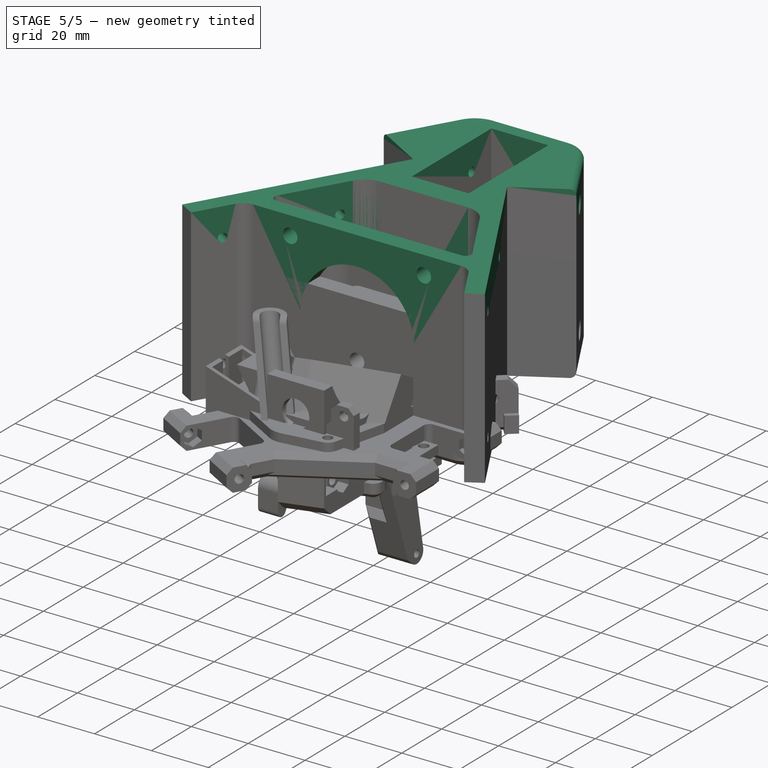
[diagram: stage 5 of 5 — iso view after this stage's code; geometry added in this stage tinted green]
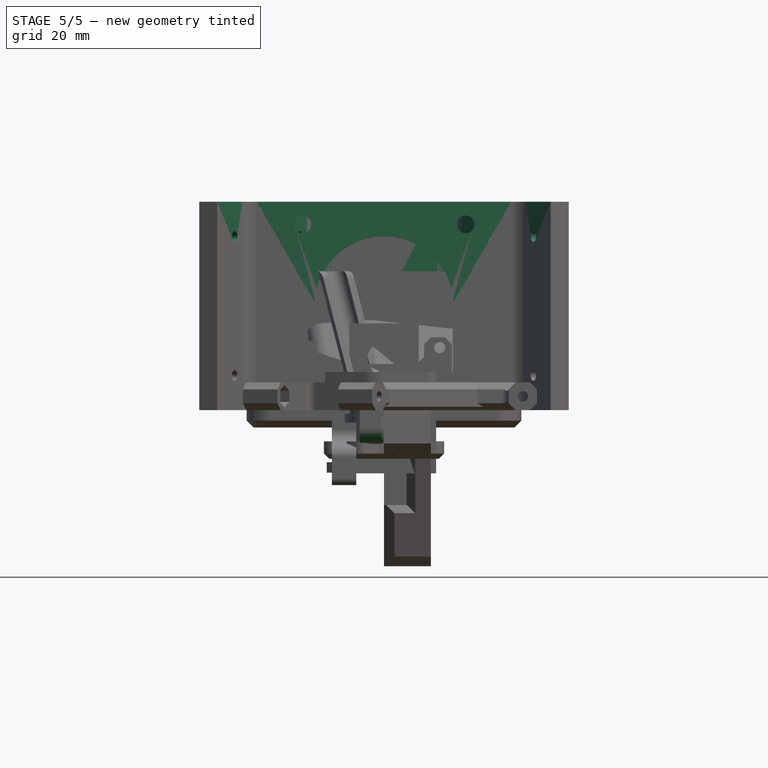
[diagram: stage 5 of 5 — front view after this stage's code; geometry added in this stage tinted green]
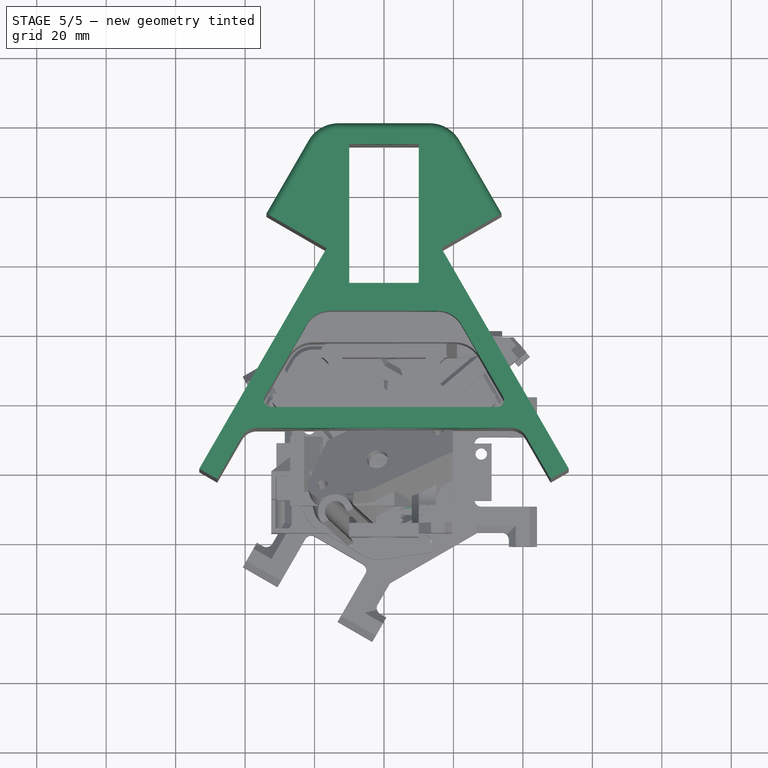
[diagram: stage 5 of 5 — top view after this stage's code; geometry added in this stage tinted green]
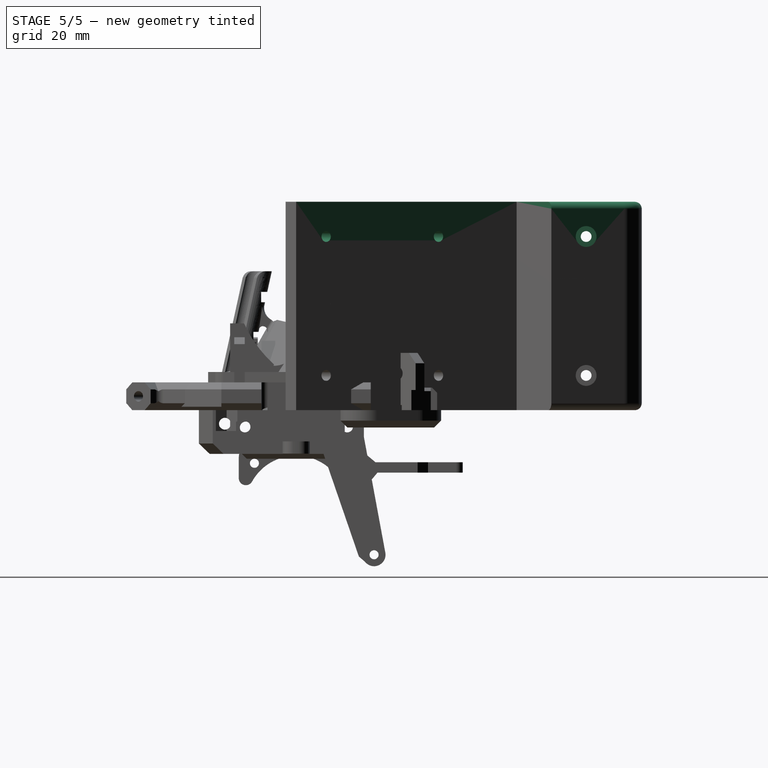
[diagram: stage 5 of 5 — right view after this stage's code; geometry added in this stage tinted green]
FEATURE [Sketcher::SketchObject] Sketch
  FullyConstrained = false
  MapMode = 5
  Support = -> [XY_Plane]
  sketch-geometry (42):
    g0: LineSegment StartX=-53.205 StartY=0 StartZ=0 EndX=53.205 EndY=0 EndZ=0
    g1: LineSegment StartX=-53.205 StartY=0 StartZ=0 EndX=-53.205 EndY=99.52 EndZ=0
    g2: LineSegment StartX=53.205 StartY=0 StartZ=0 EndX=53.205 EndY=99.52 EndZ=0
    g3: LineSegment StartX=-53.205 StartY=0 StartZ=0 EndX=-16.535 EndY=63.5143 EndZ=0
    g4: LineSegment StartX=53.205 StartY=0 StartZ=0 EndX=16.535 EndY=63.5143 EndZ=0
    g5: LineSegment StartX=16.535 StartY=63.5143 StartZ=0 EndX=33.8555 EndY=73.5143 EndZ=0
    g6: LineSegment StartX=-16.535 StartY=63.5143 StartZ=0 EndX=-33.8555 EndY=73.5143 EndZ=0
    g7: LineSegment StartX=-53.205 StartY=99.52 StartZ=0 EndX=53.205 EndY=99.52 EndZ=0
    g8: ArcOfCircle CenterX=13.0676 CenterY=89.52 CenterZ=0 NormalX=0 NormalY=0 NormalZ=1 AngleXU=0 Radius=10 StartAngle=0.523599 EndAngle=1.5708
    g9: LineSegment StartX=33.8555 StartY=73.5143 StartZ=0 EndX=21.7279 EndY=94.52 EndZ=0
    g10: LineSegment StartX=-33.8555 StartY=73.5143 StartZ=0 EndX=-21.7279 EndY=94.52 EndZ=0
    g11: ArcOfCircle CenterX=-13.0676 CenterY=89.52 CenterZ=0 NormalX=0 NormalY=0 NormalZ=1 AngleXU=0 Radius=10 StartAngle=1.5708 EndAngle=2.61799
    g12: LineSegment StartX=-13.0676 StartY=99.52 StartZ=0 EndX=13.0676 EndY=99.52 EndZ=0
    g13: LineSegment StartX=-10 StartY=93.52 StartZ=0 EndX=10 EndY=93.52 EndZ=0
    g14: LineSegment StartX=10 StartY=93.52 StartZ=0 EndX=10 EndY=53.52 EndZ=0
    g15: LineSegment StartX=10 StartY=53.52 StartZ=0 EndX=-10 EndY=53.52 EndZ=0
    g16: LineSegment StartX=-10 StartY=53.52 StartZ=0 EndX=-10 EndY=93.52 EndZ=0
    g17: LineSegment StartX=-22.3052 StartY=41.52 StartZ=0 EndX=-34.2852 EndY=20.77 EndZ=0
    g18: LineSegment StartX=-32.5532 StartY=17.77 StartZ=0 EndX=32.5532 EndY=17.77 EndZ=0
    g19: LineSegment StartX=34.2852 StartY=20.77 StartZ=0 EndX=22.3052 EndY=41.52 EndZ=0
    g20: LineSegment StartX=15.377 StartY=45.52 StartZ=0 EndX=-15.377 EndY=45.52 EndZ=0
    g21: LineSegment StartX=23.528 StartY=39.402 StartZ=0 EndX=28.7242 EndY=42.402 EndZ=0
    g22: ArcOfCircle CenterX=-15.377 CenterY=37.52 CenterZ=0 NormalX=0 NormalY=0 NormalZ=1 AngleXU=0 Radius=8 StartAngle=1.5708 EndAngle=2.61799
    g23: ArcOfCircle CenterX=15.377 CenterY=37.52 CenterZ=0 NormalX=0 NormalY=0 NormalZ=1 AngleXU=0 Radius=8 StartAngle=0.523599 EndAngle=1.5708
    g24: ArcOfCircle CenterX=-32.5532 CenterY=19.77 CenterZ=0 NormalX=0 NormalY=0 NormalZ=1 AngleXU=0 Radius=2 StartAngle=2.61799 EndAngle=4.71239
    g25: ArcOfCircle CenterX=32.5532 CenterY=19.77 CenterZ=0 NormalX=0 NormalY=0 NormalZ=1 AngleXU=0 Radius=2 StartAngle=4.71239 EndAngle=6.80678
    g26: LineSegment StartX=-24.7603 StartY=37.2677 StartZ=0 EndX=-29.9564 EndY=40.2677 EndZ=0
    g27: LineSegment StartX=-53.205 StartY=0 StartZ=0 EndX=-48.0088 EndY=-3 EndZ=0
    g28: LineSegment StartX=53.205 StartY=0 StartZ=0 EndX=48.0088 EndY=-3 EndZ=0
    g29: LineSegment StartX=-48.0088 StartY=-3 StartZ=0 EndX=-40.9248 EndY=9.27 EndZ=0
    g30: LineSegment StartX=48.0088 StartY=-3 StartZ=0 EndX=40.9248 EndY=9.27 EndZ=0
    g31: LineSegment StartX=-36.5946 StartY=11.77 StartZ=0 EndX=36.5946 EndY=11.77 EndZ=0
    g32: ArcOfCircle CenterX=36.5946 CenterY=6.77 CenterZ=0 NormalX=0 NormalY=0 NormalZ=1 AngleXU=0 Radius=5 StartAngle=0.523599 EndAngle=1.5708
    g33: ArcOfCircle CenterX=-36.5946 CenterY=6.77 CenterZ=0 NormalX=0 NormalY=0 NormalZ=1 AngleXU=0 Radius=5 StartAngle=1.5708 EndAngle=2.61799
    g34: LineSegment StartX=-4 StartY=11.77 StartZ=0 EndX=4 EndY=11.77 EndZ=0
    g35: LineSegment StartX=4 StartY=11.77 StartZ=0 EndX=4 EndY=33.77 EndZ=0
    g36: LineSegment StartX=4 StartY=33.77 StartZ=0 EndX=-4 EndY=33.77 EndZ=0
    g37: LineSegment StartX=-4 StartY=33.77 StartZ=0 EndX=-4 EndY=11.77 EndZ=0
    g38: LineSegment StartX=-8 StartY=38.77 StartZ=0 EndX=8 EndY=38.77 EndZ=0
    g39: LineSegment StartX=8 StartY=38.77 StartZ=0 EndX=8 EndY=22.77 EndZ=0
    g40: LineSegment StartX=8 StartY=22.77 StartZ=0 EndX=-8 EndY=22.77 EndZ=0
    g41: LineSegment StartX=-8 StartY=22.77 StartZ=0 EndX=-8 EndY=38.77 EndZ=0
  constraints (112):
    c: PointOnObject(g0,g-1)
    c: DistanceX(g0,g0) = 106.41
    c: Symmetric(g0,g0,g-2)
    c: Coincident(g1,g0)
    c: Vertical(g1)
    c: Coincident(g2,g0)
    c: Vertical(g2)
    c: DistanceY(g2,g2) = 99.52
    c: Equal(g2,g1)
    c: Coincident(g3,g0)
    c: Coincident(g4,g0)
    c: Angle(g3,g1) = 0.523599
    c: Angle(g2,g4) = 0.523599
    c: Equal(g4,g3)
    c: Distance(g3) = 73.34
    c: Coincident(g5,g4)
    c: Coincident(g6,g3)
    c: Equal(g5,g6)
    c: Perpendicular(g4,g5)
    c: Perpendicular(g3,g6)
    c: Distance(g5) = 20
    c: Coincident(g7,g1)
    c: Coincident(g7,g2)
    c: Radius(g8) = 10
    c: Tangent(g8,g7) = 1.5708
    c: Coincident(g9,g5)
    c: Perpendicular(g5,g9)
    c: Tangent(g9,g8) = -1.5708
    c: Coincident(g10,g6)
    c: Radius(g11) = 10
    c: Tangent(g11,g10) = 1.5708
    c: Perpendicular(g6,g10)
    c: Tangent(g11,g7) = 1.5708
    c: Coincident(g12,g11)
    c: Coincident(g12,g8)
    c: Coincident(g13,g14)
    c: Coincident(g14,g15)
    c: Coincident(g15,g16)
    c: Coincident(g16,g13)
    c: Horizontal(g15)
    c: Vertical(g14)
    c: Vertical(g16)
    c: DistanceY(g13,g11) = 6
    c: DistanceY(g16,g16) = 40
    c: DistanceX(g13,g13) = 20
    c: Symmetric(g13,g13,g-2)
    c: Horizontal(g18)
    c: Parallel(g17,g3)
    c: Parallel(g19,g4)
    c: PointOnObject(g21,g19)
    c: PointOnObject(g21,g4)
    c: Perpendicular(g21,g19)
    c: Distance(g21) = 6
    c: Tangent(g17,g22) = -1.5708
    c: Tangent(g20,g22) = -1.5708
    c: Tangent(g20,g23) = -1.5708
    c: Tangent(g19,g23) = -1.5708
    c: Tangent(g17,g24) = -1.5708
    c: Tangent(g18,g24) = -1.5708
    c: Tangent(g19,g25) = -1.5708
    c: Tangent(g18,g25) = -1.5708
    c: Equal(g25,g24)
    c: Parallel(g20,g18)
    c: Equal(g22,g23)
    c: PointOnObject(g26,g17)
    c: PointOnObject(g26,g3)
    c: Perpendicular(g17,g26)
    c: Distance(g26) = 6
    c: DistanceY(g20,g14) = 8
    c: DistanceY(g18,g20) = 27.75
    c: Radius(g25) = 2
    c: Radius(g22) = 8
    c: Coincident(g27,g3)
    c: Coincident(g28,g4)
    c: Perpendicular(g4,g28)
    c: Perpendicular(g27,g3)
    c: Distance(g27) = 6
    c: Equal(g28,g27)
    c: Coincident(g29,g27)
    c: Coincident(g30,g28)
    c: Parallel(g30,g4)
    c: Parallel(g3,g29)
    c: Equal(g29,g30)
    c: Tangent(g31,g32) = 1.5708
    c: Tangent(g30,g32) = -1.5708
    c: Tangent(g29,g33) = 1.5708
    c: Tangent(g31,g33) = 1.5708
    c: Parallel(g31,g18)
    c: DistanceY(g31,g18) = 6
    c: Radius(g32) = 5
    c: Coincident(g34,g35)
    c: Coincident(g35,g36)
    c: Coincident(g36,g37)
    c: Coincident(g37,g34)
    c: Horizontal(g34)
    c: Vertical(g35)
    c: Vertical(g37)
    c: PointOnObject(g34,g31)
    c: DistanceY(g35,g35) = 22
    c: DistanceX(g36,g36) = 8
    c: Symmetric(g36,g35,g-2)
    c: Coincident(g38,g39)
    c: Coincident(g39,g40)
    c: Coincident(g40,g41)
    c: Coincident(g41,g38)
    c: Horizontal(g38)
    c: Vertical(g39)
    c: Vertical(g41)
    c: DistanceY(g39,g39) = 16
    c: DistanceX(g38,g38) = 16
    c: Symmetric(g39,g40,g-2)
    c: DistanceY(g18,g39) = 5
FEATURE [PartDesign::Pad] Pad
  Direction = (0,0,1)
  Length = 60
  Length2 = 10
  Profile = -> Sketch
  ReferenceAxis = -> Sketch [N_Axis]
  Type = 0
FEATURE [PartDesign::Plane] DatumPlane
  AttachmentOffset = pos=(0,0,53) rot=(0,1,0;0.523599rad)
  Length = 184.442
  MapMode = 2
  Placement = pos=(53,-1.18e-14,1.18e-14) rot=(0.377964,0.654654,0.654654;2.41886rad)
  ResizeMode = 0
  Support = -> [YZ_Plane]
  Width = 108.4
FEATURE [Sketcher::SketchObject] Sketch001
  ExternalGeometry = -> [Pad]
  FullyConstrained = true
  MapMode = 5
  Placement = pos=(53,-1.42e-14,1.18e-14) rot=(0.377964,0.654654,0.654654;2.41886rad)
  Support = -> [DatumPlane]
  sketch-geometry (8):
    g0: LineSegment StartX=9.8975 StartY=50 StartZ=0 EndX=47.2375 EndY=50 EndZ=0
    g1: LineSegment StartX=47.2375 StartY=50 StartZ=0 EndX=47.2375 EndY=10 EndZ=0
    g2: LineSegment StartX=47.2375 StartY=10 StartZ=0 EndX=9.8975 EndY=10 EndZ=0
    g3: LineSegment StartX=9.8975 StartY=10 StartZ=0 EndX=9.8975 EndY=50 EndZ=0
    g4: Circle CenterX=47.2375 CenterY=50 CenterZ=0 NormalX=0 NormalY=0 NormalZ=1 AngleXU=0 Radius=1.55
    g5: Circle CenterX=9.8975 CenterY=50 CenterZ=0 NormalX=0 NormalY=0 NormalZ=1 AngleXU=0 Radius=1.55
    g6: Circle CenterX=47.2375 CenterY=10 CenterZ=0 NormalX=0 NormalY=0 NormalZ=1 AngleXU=0 Radius=1.55
    g7: Circle CenterX=9.8975 CenterY=10 CenterZ=0 NormalX=0 NormalY=0 NormalZ=1 AngleXU=0 Radius=1.55
  constraints (20):
    c: Coincident(g0,g1)
    c: Coincident(g1,g2)
    c: Coincident(g2,g3)
    c: Coincident(g3,g0)
    c: Horizontal(g0)
    c: Horizontal(g2)
    c: Vertical(g1)
    c: Vertical(g3)
    c: DistanceY(g3,g3) = 40
    c: DistanceX(g0,g0) = 37.34
    c: DistanceX(g-3,g0) = 10
    c: DistanceY(g-1,g2) = 10
    c: Coincident(g4,g0)
    c: Coincident(g5,g0)
    c: Coincident(g6,g1)
    c: Coincident(g7,g2)
    c: Equal(g4,g6)
    c: Equal(g6,g5)
    c: Equal(g5,g7)
    c: Diameter(g5) = 3.1
FEATURE [PartDesign::Pocket] Pocket
  BaseFeature = -> Pad
  Direction = (-0.866025,-0.5,-3e-16)
  Length = 12
  Length2 = 5
  Midplane = true
  Profile = -> Sketch001
  ReferenceAxis = -> Sketch001 [N_Axis]
  Type = 0
FEATURE [PartDesign::Plane] DatumPlane001
  AttachmentOffset = pos=(0,0,-53) rot=(0,-1,0;0.523599rad)
  Length = 184.442
  MapMode = 5
  Placement = pos=(-53,1.18e-14,-1.18e-14) rot=(0.774597,0.447214,0.447214;1.82348rad)
  ResizeMode = 0
  Support = -> [YZ_Plane]
  Width = 108.4
FEATURE [Sketcher::SketchObject] Sketch002
  ExternalGeometry = -> [Pocket]
  FullyConstrained = true
  MapMode = 5
  Placement = pos=(-53,1.07e-14,-1.18e-14) rot=(0.774597,0.447214,0.447214;1.82348rad)
  Support = -> [DatumPlane001]
  sketch-geometry (8):
    g0: LineSegment StartX=9.8975 StartY=50 StartZ=0 EndX=47.2375 EndY=50 EndZ=0
    g1: LineSegment StartX=47.2375 StartY=50 StartZ=0 EndX=47.2375 EndY=10 EndZ=0
    g2: LineSegment StartX=47.2375 StartY=10 StartZ=0 EndX=9.8975 EndY=10 EndZ=0
    g3: LineSegment StartX=9.8975 StartY=10 StartZ=0 EndX=9.8975 EndY=50 EndZ=0
    g4: Circle CenterX=47.2375 CenterY=50 CenterZ=0 NormalX=0 NormalY=0 NormalZ=1 AngleXU=0 Radius=1.55
    g5: Circle CenterX=47.2375 CenterY=10 CenterZ=0 NormalX=0 NormalY=0 NormalZ=1 AngleXU=0 Radius=1.55
    g6: Circle CenterX=9.8975 CenterY=10 CenterZ=0 NormalX=0 NormalY=0 NormalZ=1 AngleXU=0 Radius=1.55
    g7: Circle CenterX=9.8975 CenterY=50 CenterZ=0 NormalX=0 NormalY=0 NormalZ=1 AngleXU=0 Radius=1.55
  constraints (20):
    c: Coincident(g0,g1)
    c: Coincident(g1,g2)
    c: Coincident(g2,g3)
    c: Coincident(g3,g0)
    c: Horizontal(g0)
    c: Horizontal(g2)
    c: Vertical(g1)
    c: Vertical(g3)
    c: DistanceY(g3,g3) = 40
    c: DistanceX(g0,g0) = 37.34
    c: DistanceX(g-3,g0) = 10
    c: DistanceY(g-1,g2) = 10
    c: Coincident(g4,g0)
    c: Coincident(g5,g1)
    c: Coincident(g6,g2)
    c: Coincident(g7,g0)
    c: Equal(g7,g4)
    c: Equal(g4,g5)
    c: Equal(g5,g6)
    c: Diameter(g7) = 3.1
FEATURE [PartDesign::Pocket] Pocket001
  BaseFeature = -> Pocket
  Direction = (-0.866025,0.5,-1e-16)
  Length = 12
  Length2 = 5
  Midplane = true
  Profile = -> Sketch002
  ReferenceAxis = -> Sketch002 [N_Axis]
  Type = 0
FEATURE [Sketcher::SketchObject] Sketch004
  FullyConstrained = true
  MapMode = 5
  Placement = pos=(0,99.52,0) rot=(0,0.707107,0.707107;3.14159rad)
  sketch-geometry (2):
    g0: Circle CenterX=0 CenterY=50 CenterZ=0 NormalX=0 NormalY=0 NormalZ=1 AngleXU=0 Radius=1.55
    g1: Circle CenterX=0 CenterY=10 CenterZ=0 NormalX=0 NormalY=0 NormalZ=1 AngleXU=0 Radius=1.55
  constraints (6):
    c: PointOnObject(g0,g-2)
    c: PointOnObject(g1,g-2)
    c: DistanceY(g1,g0) = 40
    c: DistanceY(g-1,g1) = 10
    c: Equal(g0,g1)
    c: Diameter(g0) = 3.1
FEATURE [PartDesign::Pocket] Pocket003
  BaseFeature = -> Pocket001
  Direction = (0,-1,2e-16)
  Length = 8
  Length2 = 5
  Profile = -> Sketch004
  ReferenceAxis = -> Sketch004 [N_Axis]
  Type = 0
FEATURE [Sketcher::SketchObject] Sketch005
  FullyConstrained = true
  MapMode = 5
  Placement = pos=(0,0,0) rot=(1,0,0;1.5708rad)
  Support = -> [XZ_Plane]
  sketch-geometry (10):
    g0: LineSegment StartX=-23.5 StartY=53.5 StartZ=0 EndX=23.5 EndY=53.5 EndZ=0
    g1: LineSegment StartX=23.5 StartY=53.5 StartZ=0 EndX=23.5 EndY=6.5 EndZ=0
    g2: LineSegment StartX=23.5 StartY=6.5 StartZ=0 EndX=-23.5 EndY=6.5 EndZ=0
    g3: LineSegment StartX=-23.5 StartY=6.5 StartZ=0 EndX=-23.5 EndY=53.5 EndZ=0
    g4: Circle CenterX=0 CenterY=30 CenterZ=0 NormalX=0 NormalY=0 NormalZ=1 AngleXU=0 Radius=20
    g5: LineSegment StartX=-23.5 StartY=53.5 StartZ=0 EndX=23.5 EndY=6.5 EndZ=0
    g6: Circle CenterX=23.5 CenterY=53.5 CenterZ=0 NormalX=0 NormalY=0 NormalZ=1 AngleXU=0 Radius=2.55
    g7: Circle CenterX=23.5 CenterY=6.5 CenterZ=0 NormalX=0 NormalY=0 NormalZ=1 AngleXU=0 Radius=2.55
    g8: Circle CenterX=-23.5 CenterY=6.5 CenterZ=0 NormalX=0 NormalY=0 NormalZ=1 AngleXU=0 Radius=2.55
    g9: Circle CenterX=-23.5 CenterY=53.5 CenterZ=0 NormalX=0 NormalY=0 NormalZ=1 AngleXU=0 Radius=2.55
  constraints (24):
    c: Coincident(g0,g1)
    c: Coincident(g1,g2)
    c: Coincident(g2,g3)
    c: Coincident(g3,g0)
    c: Horizontal(g2)
    c: Vertical(g1)
    c: Vertical(g3)
    c: Equal(g2,g1)
    c: DistanceY(g1,g1) = 47
    c: PointOnObject(g4,g-2)
    c: Diameter(g4) = 40
    c: DistanceY(g-1,g4) = 30
    c: Coincident(g5,g0)
    c: Coincident(g5,g1)
    c: PointOnObject(g4,g5)
    c: Symmetric(g0,g0,g-2)
    c: Coincident(g6,g0)
    c: Coincident(g7,g1)
    c: Coincident(g8,g2)
    c: Coincident(g9,g0)
    c: Equal(g9,g6)
    c: Equal(g6,g7)
    c: Equal(g7,g8)
    c: Diameter(g9) = 5.1
FEATURE [PartDesign::Pocket] Pocket004
  BaseFeature = -> Pocket003
  Direction = (0,1,2e-16)
  Length = 20
  Length2 = 5
  Profile = -> Sketch005
  ReferenceAxis = -> Sketch005 [N_Axis]
  Type = 0
FEATURE [PartDesign::Plane] DatumPlane002
  AttachmentOffset = pos=(0,0,53) rot=(0,1,0;0.523599rad)
  Length = 181.505
  MapMode = 2
  Placement = pos=(53,-1.18e-14,1.18e-14) rot=(0.377964,0.654654,0.654654;2.41886rad)
  ResizeMode = 0
  Support = -> [YZ_Plane001]
  Width = 85.4624
FEATURE [PartDesign::Plane] DatumPlane003
  AttachmentOffset = pos=(0,0,-53) rot=(0,-1,0;0.523599rad)
  Length = 181.505
  MapMode = 5
  Placement = pos=(-53,1.18e-14,-1.18e-14) rot=(0.774597,0.447214,0.447214;1.82348rad)
  ResizeMode = 0
  Support = -> [YZ_Plane001]
  Width = 85.4624
FEATURE [Sketcher::SketchObject] Sketch006
  FullyConstrained = false
  MapMode = 5
  Support = -> [XY_Plane001]
  sketch-geometry (38):
    g0: LineSegment StartX=-53.205 StartY=0 StartZ=0 EndX=53.205 EndY=0 EndZ=0
    g1: LineSegment StartX=-53.205 StartY=0 StartZ=0 EndX=-53.205 EndY=99.52 EndZ=0
    g2: LineSegment StartX=53.205 StartY=0 StartZ=0 EndX=53.205 EndY=99.52 EndZ=0
    g3: LineSegment StartX=-53.205 StartY=0 StartZ=0 EndX=-16.535 EndY=63.5143 EndZ=0
    g4: LineSegment StartX=53.205 StartY=0 StartZ=0 EndX=16.535 EndY=63.5143 EndZ=0
    g5: LineSegment StartX=16.535 StartY=63.5143 StartZ=0 EndX=33.8555 EndY=73.5143 EndZ=0
    g6: LineSegment StartX=-16.535 StartY=63.5143 StartZ=0 EndX=-33.8555 EndY=73.5143 EndZ=0
    g7: LineSegment StartX=-53.205 StartY=99.52 StartZ=0 EndX=53.205 EndY=99.52 EndZ=0
    g8: ArcOfCircle CenterX=13.0676 CenterY=89.52 CenterZ=0 NormalX=0 NormalY=0 NormalZ=1 AngleXU=0 Radius=10 StartAngle=0.523599 EndAngle=1.5708
    g9: LineSegment StartX=33.8555 StartY=73.5143 StartZ=0 EndX=21.7279 EndY=94.52 EndZ=0
    g10: LineSegment StartX=-33.8555 StartY=73.5143 StartZ=0 EndX=-21.7279 EndY=94.52 EndZ=0
    g11: ArcOfCircle CenterX=-13.0676 CenterY=89.52 CenterZ=0 NormalX=0 NormalY=0 NormalZ=1 AngleXU=0 Radius=10 StartAngle=1.5708 EndAngle=2.61799
    g12: LineSegment StartX=-13.0676 StartY=99.52 StartZ=0 EndX=13.0676 EndY=99.52 EndZ=0
    g13: LineSegment StartX=-10 StartY=93.52 StartZ=0 EndX=10 EndY=93.52 EndZ=0
    g14: LineSegment StartX=10 StartY=93.52 StartZ=0 EndX=10 EndY=53.52 EndZ=0
    g15: LineSegment StartX=10 StartY=53.52 StartZ=0 EndX=-10 EndY=53.52 EndZ=0
    g16: LineSegment StartX=-10 StartY=53.52 StartZ=0 EndX=-10 EndY=93.52 EndZ=0
    g17: LineSegment StartX=-23.4599 StartY=39.52 StartZ=0 EndX=-34.2852 EndY=20.77 EndZ=0
    g18: LineSegment StartX=-32.5532 StartY=17.77 StartZ=0 EndX=32.5532 EndY=17.77 EndZ=0
    g19: LineSegment StartX=34.2852 StartY=20.77 StartZ=0 EndX=23.4599 EndY=39.52 EndZ=0
    g20: LineSegment StartX=16.5317 StartY=43.52 StartZ=0 EndX=-16.5317 EndY=43.52 EndZ=0
    g21: LineSegment StartX=28.6713 StartY=30.4936 StartZ=0 EndX=33.8675 EndY=33.4936 EndZ=0
    g22: ArcOfCircle CenterX=-16.5317 CenterY=35.52 CenterZ=0 NormalX=0 NormalY=0 NormalZ=1 AngleXU=0 Radius=8 StartAngle=1.5708 EndAngle=2.61799
    g23: ArcOfCircle CenterX=16.5317 CenterY=35.52 CenterZ=0 NormalX=0 NormalY=0 NormalZ=1 AngleXU=0 Radius=8 StartAngle=0.523599 EndAngle=1.5708
    g24: ArcOfCircle CenterX=-32.5532 CenterY=19.77 CenterZ=0 NormalX=0 NormalY=0 NormalZ=1 AngleXU=0 Radius=2 StartAngle=2.61799 EndAngle=4.71239
    g25: ArcOfCircle CenterX=32.5532 CenterY=19.77 CenterZ=0 NormalX=0 NormalY=0 NormalZ=1 AngleXU=0 Radius=2 StartAngle=4.71239 EndAngle=6.80678
    g26: LineSegment StartX=-28.1378 StartY=31.4176 StartZ=0 EndX=-33.334 EndY=34.4176 EndZ=0
    g27: LineSegment StartX=-53.205 StartY=0 StartZ=0 EndX=-48.0088 EndY=-3 EndZ=0
    g28: LineSegment StartX=53.205 StartY=0 StartZ=0 EndX=48.0088 EndY=-3 EndZ=0
    g29: LineSegment StartX=-48.0088 StartY=-3 StartZ=0 EndX=-40.9248 EndY=9.27 EndZ=0
    g30: LineSegment StartX=48.0088 StartY=-3 StartZ=0 EndX=40.9248 EndY=9.27 EndZ=0
    g31: LineSegment StartX=-36.5946 StartY=11.77 StartZ=0 EndX=36.5946 EndY=11.77 EndZ=0
    g32: ArcOfCircle CenterX=36.5946 CenterY=6.77 CenterZ=0 NormalX=0 NormalY=0 NormalZ=1 AngleXU=0 Radius=5 StartAngle=0.523599 EndAngle=1.5708
    g33: ArcOfCircle CenterX=-36.5946 CenterY=6.77 CenterZ=0 NormalX=0 NormalY=0 NormalZ=1 AngleXU=0 Radius=5 StartAngle=1.5708 EndAngle=2.61799
    g34: LineSegment StartX=-6.5 StartY=36.77 StartZ=0 EndX=6.5 EndY=36.77 EndZ=0
    g35: LineSegment StartX=6.5 StartY=36.77 StartZ=0 EndX=6.5 EndY=22.77 EndZ=0
    g36: LineSegment StartX=6.5 StartY=22.77 StartZ=0 EndX=-6.5 EndY=22.77 EndZ=0
    g37: LineSegment StartX=-6.5 StartY=22.77 StartZ=0 EndX=-6.5 EndY=36.77 EndZ=0
  constraints (101):
    c: PointOnObject(g0,g-1)
    c: DistanceX(g0,g0) = 106.41
    c: Symmetric(g0,g0,g-2)
    c: Coincident(g1,g0)
    c: Vertical(g1)
    c: Coincident(g2,g0)
    c: Vertical(g2)
    c: DistanceY(g2,g2) = 99.52
    c: Equal(g2,g1)
    c: Coincident(g3,g0)
    c: Coincident(g4,g0)
    c: Angle(g3,g1) = 0.523599
    c: Angle(g2,g4) = 0.523599
    c: Equal(g4,g3)
    c: Distance(g3) = 73.34
    c: Coincident(g5,g4)
    c: Coincident(g6,g3)
    c: Equal(g5,g6)
    c: Perpendicular(g4,g5)
    c: Perpendicular(g3,g6)
    c: Distance(g5) = 20
    c: Coincident(g7,g1)
    c: Coincident(g7,g2)
    c: Radius(g8) = 10
    c: Tangent(g8,g7) = 1.5708
    c: Coincident(g9,g5)
    c: Perpendicular(g5,g9)
    c: Tangent(g9,g8) = -1.5708
    c: Coincident(g10,g6)
    c: Radius(g11) = 10
    c: Tangent(g11,g10) = 1.5708
    c: Perpendicular(g6,g10)
    c: Tangent(g11,g7) = 1.5708
    c: Coincident(g12,g11)
    c: Coincident(g12,g8)
    c: Coincident(g13,g14)
    c: Coincident(g14,g15)
    c: Coincident(g15,g16)
    c: Coincident(g16,g13)
    c: Horizontal(g15)
    c: Vertical(g14)
    c: Vertical(g16)
    c: DistanceY(g13,g11) = 6
    c: DistanceY(g16,g16) = 40
    c: DistanceX(g13,g13) = 20
    c: Symmetric(g13,g13,g-2)
    c: Horizontal(g18)
    c: Parallel(g17,g3)
    c: Parallel(g19,g4)
    c: PointOnObject(g21,g19)
    c: PointOnObject(g21,g4)
    c: Perpendicular(g21,g19)
    c: Distance(g21) = 6
    c: Tangent(g17,g22) = -1.5708
    c: Tangent(g20,g22) = -1.5708
    c: Tangent(g20,g23) = -1.5708
    c: Tangent(g19,g23) = -1.5708
    c: Tangent(g17,g24) = -1.5708
    c: Tangent(g18,g24) = -1.5708
    c: Tangent(g19,g25) = -1.5708
    c: Tangent(g18,g25) = -1.5708
    c: Equal(g25,g24)
    c: Parallel(g20,g18)
    c: Equal(g22,g23)
    c: PointOnObject(g26,g17)
    c: PointOnObject(g26,g3)
    c: Perpendicular(g17,g26)
    c: Distance(g26) = 6
    c: DistanceY(g20,g14) = 10
    c: DistanceY(g18,g20) = 25.75
    c: Radius(g25) = 2
    c: Radius(g22) = 8
    c: Coincident(g27,g3)
    c: Coincident(g28,g4)
    c: Perpendicular(g4,g28)
    c: Perpendicular(g27,g3)
    c: Distance(g27) = 6
    c: Equal(g28,g27)
    c: Coincident(g29,g27)
    c: Coincident(g30,g28)
    c: Parallel(g30,g4)
    c: Parallel(g3,g29)
    c: Equal(g29,g30)
    c: Tangent(g31,g32) = 1.5708
    c: Tangent(g30,g32) = -1.5708
    c: Tangent(g29,g33) = 1.5708
    c: Tangent(g31,g33) = 1.5708
    c: Parallel(g31,g18)
    c: DistanceY(g31,g18) = 6
    c: Radius(g32) = 5
    c: Coincident(g34,g35)
    c: Coincident(g35,g36)
    c: Coincident(g36,g37)
    c: Coincident(g37,g34)
    c: Horizontal(g36)
    c: Vertical(g35)
    c: Vertical(g37)
    c: DistanceY(g35,g35) = 14
    c: DistanceX(g34,g34) = 13
    c: Symmetric(g34,g34,g-2)
    c: DistanceY(g18,g35) = 5
FEATURE [PartDesign::Pad] Pad001
  Direction = (0,0,1)
  Length = 40
  Length2 = 10
  Profile = -> Sketch006
  ReferenceAxis = -> Sketch006 [N_Axis]
  Type = 0
FEATURE [Sketcher::SketchObject] Sketch007
  ExternalGeometry = -> [Pad001]
  FullyConstrained = true
  MapMode = 5
  Placement = pos=(53,-1.42e-14,1.18e-14) rot=(0.377964,0.654654,0.654654;2.41886rad)
  Support = -> [DatumPlane002]
  sketch-geometry (8):
    g0: LineSegment StartX=9.8975 StartY=30 StartZ=0 EndX=47.2375 EndY=30 EndZ=0
    g1: LineSegment StartX=47.2375 StartY=30 StartZ=0 EndX=47.2375 EndY=10 EndZ=0
    g2: LineSegment StartX=47.2375 StartY=10 StartZ=0 EndX=9.8975 EndY=10 EndZ=0
    g3: LineSegment StartX=9.8975 StartY=10 StartZ=0 EndX=9.8975 EndY=30 EndZ=0
    g4: Circle CenterX=47.2375 CenterY=30 CenterZ=0 NormalX=0 NormalY=0 NormalZ=1 AngleXU=0 Radius=1.55
    g5: Circle CenterX=9.8975 CenterY=30 CenterZ=0 NormalX=0 NormalY=0 NormalZ=1 AngleXU=0 Radius=1.55
    g6: Circle CenterX=47.2375 CenterY=10 CenterZ=0 NormalX=0 NormalY=0 NormalZ=1 AngleXU=0 Radius=1.55
    g7: Circle CenterX=9.8975 CenterY=10 CenterZ=0 NormalX=0 NormalY=0 NormalZ=1 AngleXU=0 Radius=1.55
  constraints (20):
    c: Coincident(g0,g1)
    c: Coincident(g1,g2)
    c: Coincident(g2,g3)
    c: Coincident(g3,g0)
    c: Horizontal(g0)
    c: Horizontal(g2)
    c: Vertical(g1)
    c: Vertical(g3)
    c: DistanceY(g3,g3) = 20
    c: DistanceX(g0,g0) = 37.34
    c: DistanceX(g-3,g0) = 10
    c: DistanceY(g-1,g2) = 10
    c: Coincident(g4,g0)
    c: Coincident(g5,g0)
    c: Coincident(g6,g1)
    c: Coincident(g7,g2)
    c: Equal(g4,g6)
    c: Equal(g6,g5)
    c: Equal(g5,g7)
    c: Diameter(g5) = 3.1
FEATURE [PartDesign::Pocket] Pocket005
  BaseFeature = -> Pad001
  Direction = (-0.866025,-0.5,-3e-16)
  Length = 12
  Length2 = 5
  Midplane = true
  Profile = -> Sketch007
  ReferenceAxis = -> Sketch007 [N_Axis]
  Type = 0
FEATURE [Sketcher::SketchObject] Sketch008
  ExternalGeometry = -> [Pocket005]
  FullyConstrained = true
  MapMode = 5
  Placement = pos=(-53,1.07e-14,-1.18e-14) rot=(0.774597,0.447214,0.447214;1.82348rad)
  Support = -> [DatumPlane003]
  sketch-geometry (8):
    g0: LineSegment StartX=9.8975 StartY=30 StartZ=0 EndX=47.2375 EndY=30 EndZ=0
    g1: LineSegment StartX=47.2375 StartY=30 StartZ=0 EndX=47.2375 EndY=10 EndZ=0
    g2: LineSegment StartX=47.2375 StartY=10 StartZ=0 EndX=9.8975 EndY=10 EndZ=0
    g3: LineSegment StartX=9.8975 StartY=10 StartZ=0 EndX=9.8975 EndY=30 EndZ=0
    g4: Circle CenterX=47.2375 CenterY=30 CenterZ=0 NormalX=0 NormalY=0 NormalZ=1 AngleXU=0 Radius=1.55
    g5: Circle CenterX=47.2375 CenterY=10 CenterZ=0 NormalX=0 NormalY=0 NormalZ=1 AngleXU=0 Radius=1.55
    g6: Circle CenterX=9.8975 CenterY=10 CenterZ=0 NormalX=0 NormalY=0 NormalZ=1 AngleXU=0 Radius=1.55
    g7: Circle CenterX=9.8975 CenterY=30 CenterZ=0 NormalX=0 NormalY=0 NormalZ=1 AngleXU=0 Radius=1.55
  constraints (20):
    c: Coincident(g0,g1)
    c: Coincident(g1,g2)
    c: Coincident(g2,g3)
    c: Coincident(g3,g0)
    c: Horizontal(g0)
    c: Horizontal(g2)
    c: Vertical(g1)
    c: Vertical(g3)
    c: DistanceY(g3,g3) = 20
    c: DistanceX(g0,g0) = 37.34
    c: DistanceX(g-3,g0) = 10
    c: DistanceY(g-1,g2) = 10
    c: Coincident(g4,g0)
    c: Coincident(g5,g1)
    c: Coincident(g6,g2)
    c: Coincident(g7,g0)
    c: Equal(g7,g4)
    c: Equal(g4,g5)
    c: Equal(g5,g6)
    c: Diameter(g7) = 3.1
FEATURE [PartDesign::Pocket] Pocket006
  BaseFeature = -> Pocket005
  Direction = (-0.866025,0.5,-1e-16)
  Length = 12
  Length2 = 5
  Midplane = true
  Profile = -> Sketch008
  ReferenceAxis = -> Sketch008 [N_Axis]
  Type = 0
FEATURE [Sketcher::SketchObject] Sketch009
  FullyConstrained = true
  MapMode = 5
  Placement = pos=(0,99.52,0) rot=(0,0.707107,0.707107;3.14159rad)
  sketch-geometry (2):
    g0: Circle CenterX=0 CenterY=30 CenterZ=0 NormalX=0 NormalY=0 NormalZ=1 AngleXU=0 Radius=1.55
    g1: Circle CenterX=0 CenterY=10 CenterZ=0 NormalX=0 NormalY=0 NormalZ=1 AngleXU=0 Radius=1.55
  constraints (6):
    c: PointOnObject(g0,g-2)
    c: PointOnObject(g1,g-2)
    c: DistanceY(g1,g0) = 20
    c: DistanceY(g-1,g1) = 10
    c: Equal(g0,g1)
    c: Diameter(g0) = 3.1
FEATURE [PartDesign::Pocket] Pocket007
  BaseFeature = -> Pocket006
  Direction = (0,-1,2e-16)
  Length = 8
  Length2 = 5
  Profile = -> Sketch009
  ReferenceAxis = -> Sketch009 [N_Axis]
  Type = 0
FEATURE [Sketcher::SketchObject] Sketch010
  FullyConstrained = true
  MapMode = 5
  Placement = pos=(0,0,0) rot=(1,0,0;1.5708rad)
  Support = -> [XZ_Plane001]
  sketch-geometry (1):
    g0: Circle CenterX=0 CenterY=20 CenterZ=0 NormalX=0 NormalY=0 NormalZ=1 AngleXU=0 Radius=2.55
  constraints (3):
    c: DistanceY(g-1,g0) = 20
    c: Radius(g0) = 2.55
    c: PointOnObject(g0,g-2)
FEATURE [PartDesign::Pocket] Pocket008
  BaseFeature = -> Pocket007
  Direction = (0,1,2e-16)
  Length = 20
  Length2 = 5
  Profile = -> Sketch010
  ReferenceAxis = -> Sketch010 [N_Axis]
  Type = 0
FEATURE [Sketcher::SketchObject] Sketch011
  AttachmentOffset = pos=(0,0,-53.52) rot=(0,0,1;0rad)
  FullyConstrained = true
  MapMode = 5
  Placement = pos=(0,53.52,1.19e-14) rot=(1,0,0;1.5708rad)
  Support = -> [XZ_Plane001]
  sketch-geometry (1):
    g0: Circle CenterX=0 CenterY=20 CenterZ=0 NormalX=0 NormalY=0 NormalZ=1 AngleXU=0 Radius=2.55
  constraints (3):
    c: PointOnObject(g0,g-2)
    c: Radius(g0) = 2.55
    c: DistanceY(g-1,g0) = 20
FEATURE [PartDesign::Pocket] Pocket009
  BaseFeature = -> Pocket008
  Direction = (0,1,2e-16)
  Length = 14
  Length2 = 5
  Profile = -> Sketch011
  ReferenceAxis = -> Sketch011 [N_Axis]
  Reversed = true
  Type = 0
FEATURE [Sketcher::SketchObject] Sketch012
  AttachmentOffset = pos=(0,0,-53.52) rot=(0,0,1;0rad)
  FullyConstrained = true
  MapMode = 5
  Placement = pos=(0,53.52,1.19e-14) rot=(1,0,0;1.5708rad)
  Support = -> [XZ_Plane001]
  sketch-geometry (7):
    g0: LineSegment StartX=4.1 StartY=17.6329 StartZ=0 EndX=4.1 EndY=22.3671 EndZ=0
    g1: LineSegment StartX=4.1 StartY=22.3671 StartZ=0 EndX=0 EndY=24.7343 EndZ=0
    g2: LineSegment StartX=0 StartY=24.7343 StartZ=0 EndX=-4.1 EndY=22.3671 EndZ=0
    g3: LineSegment StartX=-4.1 StartY=22.3671 StartZ=0 EndX=-4.1 EndY=17.6329 EndZ=0
    g4: LineSegment StartX=-4.1 StartY=17.6329 StartZ=0 EndX=-1.9194e-12 EndY=15.2657 EndZ=0
    g5: LineSegment StartX=-1.9194e-12 StartY=15.2657 StartZ=0 EndX=4.1 EndY=17.6329 EndZ=0
    g6: Circle CenterX=0 CenterY=20 CenterZ=0 NormalX=0 NormalY=0 NormalZ=1 AngleXU=0 Radius=4.73427
  constraints (17):
    c: Coincident(g0,g1)
    c: Coincident(g1,g2)
    c: Coincident(g2,g3)
    c: Coincident(g3,g4)
    c: Coincident(g4,g5)
    c: Coincident(g5,g0)
    c: Equal(g0, g1-g5) x5
    c: PointOnObject(g0,g6)
    c: PointOnObject(g1,g6)
    c: PointOnObject(g2,g6)
    c: PointOnObject(g3,g6)
    c: PointOnObject(g4,g6)
    c: PointOnObject(g5,g6)
    c: PointOnObject(g6,g-2)
    c: DistanceY(g-1,g6) = 20
    c: PointOnObject(g1,g-2)
    c: DistanceX(g2,g0) = 8.2
FEATURE [PartDesign::Pocket] Pocket010
  BaseFeature = -> Pocket009
  Direction = (0,1,2e-16)
  Length = 5.5
  Length2 = 5
  Profile = -> Sketch012
  ReferenceAxis = -> Sketch012 [N_Axis]
  Reversed = true
  Type = 0
FEATURE [Sketcher::SketchObject] Sketch013
  ExternalGeometry = -> [Pocket004]
  FullyConstrained = true
  MapMode = 5
  Placement = pos=(0,0,0) rot=(0.57735,0.57735,0.57735;2.0944rad)
  Support = -> [YZ_Plane]
  sketch-geometry (2):
    g0: Circle CenterX=83.52 CenterY=50 CenterZ=0 NormalX=0 NormalY=0 NormalZ=1 AngleXU=0 Radius=1.55
    g1: Circle CenterX=83.52 CenterY=10 CenterZ=0 NormalX=0 NormalY=0 NormalZ=1 AngleXU=0 Radius=1.55
  constraints (6):
    c: Equal(g1,g0)
    c: Vertical(g0,g1)
    c: DistanceX(g0,g-3) = 10
    c: Radius(g0) = 1.55
    c: DistanceY(g1,g0) = 40
    c: DistanceY(g-1,g1) = 10
FEATURE [PartDesign::Pocket] Pocket011
  BaseFeature = -> Pocket004
  Direction = (-1,2e-16,-3e-16)
  Length = 5
  Length2 = 5
  Midplane = true
  Profile = -> Sketch013
  ReferenceAxis = -> Sketch013 [N_Axis]
  Type = 1
FEATURE [Sketcher::SketchObject] Sketch014
  AttachmentOffset = pos=(0,0,22) rot=(0,0,1;0rad)
  ExternalGeometry = -> [Pocket011]
  FullyConstrained = true
  MapMode = 5
  Placement = pos=(22,-4.9e-15,4.9e-15) rot=(0.57735,0.57735,0.57735;2.0944rad)
  Support = -> [YZ_Plane]
  sketch-geometry (2):
    g0: Circle CenterX=83.52 CenterY=50 CenterZ=0 NormalX=0 NormalY=0 NormalZ=1 AngleXU=0 Radius=3
    g1: Circle CenterX=83.52 CenterY=10 CenterZ=0 NormalX=0 NormalY=0 NormalZ=1 AngleXU=0 Radius=3
  constraints (6):
    c: Vertical(g0,g1)
    c: DistanceY(g1,g0) = 40
    c: DistanceY(g-1,g1) = 10
    c: DistanceX(g0,g-3) = 10
    c: Equal(g0,g1)
    c: Radius(g0) = 3
FEATURE [PartDesign::Pocket] Pocket012
  BaseFeature = -> Pocket011
  Direction = (-1,2e-16,-3e-16)
  Length = 5
  Length2 = 5
  Profile = -> Sketch014
  ReferenceAxis = -> Sketch014 [N_Axis]
  Reversed = true
  Type = 1
FEATURE [Sketcher::SketchObject] Sketch015
  AttachmentOffset = pos=(0,0,-22) rot=(0,0,1;0rad)
  ExternalGeometry = -> [Pocket012]
  FullyConstrained = true
  MapMode = 5
  Placement = pos=(-22,4.9e-15,-4.9e-15) rot=(0.57735,0.57735,0.57735;2.0944rad)
  Support = -> [YZ_Plane]
  sketch-geometry (2):
    g0: Circle CenterX=83.52 CenterY=50 CenterZ=0 NormalX=0 NormalY=0 NormalZ=1 AngleXU=0 Radius=3
    g1: Circle CenterX=83.52 CenterY=10 CenterZ=0 NormalX=0 NormalY=0 NormalZ=1 AngleXU=0 Radius=3
  constraints (6):
    c: Equal(g1,g0)
    c: Radius(g0) = 3
    c: Vertical(g0,g1)
    c: DistanceY(g1,g0) = 40
    c: DistanceX(g0,g-3) = 10
    c: DistanceY(g-1,g1) = 10
FEATURE [PartDesign::Pocket] Pocket013
  BaseFeature = -> Pocket012
  Direction = (-1,2e-16,-3e-16)
  Length = 5
  Length2 = 5
  Profile = -> Sketch015
  ReferenceAxis = -> Sketch015 [N_Axis]
  Type = 1
FEATURE [Sketcher::SketchObject] Sketch016
  ExternalGeometry = -> [Pocket010]
  FullyConstrained = true
  MapMode = 5
  Placement = pos=(0,0,0) rot=(0.57735,0.57735,0.57735;2.0944rad)
  Support = -> [YZ_Plane001]
  sketch-geometry (2):
    g0: Circle CenterX=83.52 CenterY=30 CenterZ=0 NormalX=0 NormalY=0 NormalZ=1 AngleXU=0 Radius=1.55
    g1: Circle CenterX=83.52 CenterY=10 CenterZ=0 NormalX=0 NormalY=0 NormalZ=1 AngleXU=0 Radius=1.55
  constraints (6):
    c: Equal(g1,g0)
    c: Radius(g0) = 1.55
    c: Vertical(g0,g1)
    c: DistanceY(g1,g0) = 20
    c: DistanceY(g-1,g1) = 10
    c: DistanceX(g0,g-3) = 10
FEATURE [PartDesign::Pocket] Pocket014
  BaseFeature = -> Pocket010
  Direction = (-1,2e-16,-3e-16)
  Length = 5
  Length2 = 5
  Midplane = true
  Profile = -> Sketch016
  ReferenceAxis = -> Sketch016 [N_Axis]
  Type = 1
FEATURE [Sketcher::SketchObject] Sketch017
  AttachmentOffset = pos=(0,0,22) rot=(0,0,1;0rad)
  ExternalGeometry = -> [Pocket014]
  FullyConstrained = true
  MapMode = 5
  Placement = pos=(22,-4.9e-15,4.9e-15) rot=(0.57735,0.57735,0.57735;2.0944rad)
  Support = -> [YZ_Plane001]
  sketch-geometry (2):
    g0: Circle CenterX=83.52 CenterY=30 CenterZ=0 NormalX=0 NormalY=0 NormalZ=1 AngleXU=0 Radius=3
    g1: Circle CenterX=83.52 CenterY=10 CenterZ=0 NormalX=0 NormalY=0 NormalZ=1 AngleXU=0 Radius=3
  constraints (6):
    c: Vertical(g1,g0)
    c: DistanceY(g1,g0) = 20
    c: Equal(g0,g1)
    c: Radius(g0) = 3
    c: DistanceY(g-1,g1) = 10
    c: DistanceX(g0,g-3) = 10
FEATURE [PartDesign::Pocket] Pocket015
  BaseFeature = -> Pocket014
  Direction = (-1,2e-16,-3e-16)
  Length = 5
  Length2 = 5
  Profile = -> Sketch017
  ReferenceAxis = -> Sketch017 [N_Axis]
  Reversed = true
  Type = 1
FEATURE [Sketcher::SketchObject] Sketch018
  AttachmentOffset = pos=(0,0,-22) rot=(0,0,1;0rad)
  ExternalGeometry = -> [Pocket015]
  FullyConstrained = true
  MapMode = 5
  Placement = pos=(-22,4.9e-15,-4.9e-15) rot=(0.57735,0.57735,0.57735;2.0944rad)
  Support = -> [YZ_Plane001]
  sketch-geometry (2):
    g0: Circle CenterX=83.52 CenterY=30 CenterZ=0 NormalX=0 NormalY=0 NormalZ=1 AngleXU=0 Radius=3
    g1: Circle CenterX=83.52 CenterY=10 CenterZ=0 NormalX=0 NormalY=0 NormalZ=1 AngleXU=0 Radius=3
  constraints (6):
    c: Equal(g1,g0)
    c: Vertical(g0,g1)
    c: DistanceY(g1,g0) = 20
    c: DistanceX(g0,g-3) = 10
    c: DistanceY(g-1,g1) = 10
    c: Radius(g0) = 3
FEATURE [PartDesign::Pocket] Pocket016
  BaseFeature = -> Pocket015
  Direction = (-1,2e-16,-3e-16)
  Length = 5
  Length2 = 5
  Profile = -> Sketch018
  ReferenceAxis = -> Sketch018 [N_Axis]
  Type = 1
FEATURE [PartDesign::Fillet] Fillet
  Base = -> Pocket013 [Edge43,Edge42,Edge41,Edge40,Edge39,Edge17,Edge16,Edge15,Edge14,Edge13]
  BaseFeature = -> Pocket013
  Radius = 2
  SupportTransform = false
  UseAllEdges = false
FEATURE [PartDesign::Body] Body  label="Bottom Corner"
  Group = -> [Sketch,Pad,DatumPlane,Sketch001,Pocket,DatumPlane001,Sketch002,Pocket001,Sketch004,Pocket003,Sketch005,Pocket004,Sketch013,Pocket011,Sketch014,Pocket012,Sketch015,Pocket013,Fillet]
  Origin = -> Origin
  Tip = -> Fillet
FEATURE [PartDesign::Fillet] Fillet001
  Base = -> Pocket016 [Edge43,Edge42,Edge41,Edge40,Edge39,Edge17,Edge16,Edge15,Edge14,Edge13]
  BaseFeature = -> Pocket016
  Radius = 2
  SupportTransform = false
  UseAllEdges = false
FEATURE [PartDesign::Body] Body001  label="Top Corner_v0"
  Group = -> [Sketch006,Pad001,DatumPlane002,Sketch007,Pocket005,DatumPlane003,Sketch008,Pocket006,Sketch009,Pocket007,Sketch010,Pocket008,Sketch011,Pocket009,Sketch012,Pocket010,Sketch016,Pocket014,Sketch017,Pocket015,Sketch018,Pocket016,Fillet001]
  Origin = -> Origin001
  Tip = -> Fillet001
FEATURE [Sketcher::SketchObject] Sketch019
  FullyConstrained = true
  MapMode = 5
  Support = -> [XY_Plane002]
  sketch-geometry (16):
    g0: LineSegment StartX=-13.5 StartY=-16 StartZ=0 EndX=13.5 EndY=-16 EndZ=0
    g1: LineSegment StartX=13.5 StartY=-16 StartZ=0 EndX=13.5 EndY=6 EndZ=0
    g2: LineSegment StartX=13.5 StartY=24 StartZ=0 EndX=-13.5 EndY=24 EndZ=0
    g3: Circle CenterX=10 CenterY=10 CenterZ=0 NormalX=0 NormalY=0 NormalZ=1 AngleXU=0 Radius=1.7
    g4: Circle CenterX=-10 CenterY=10 CenterZ=0 NormalX=0 NormalY=0 NormalZ=1 AngleXU=0 Radius=1.7
    g5: Circle CenterX=-10 CenterY=-10 CenterZ=0 NormalX=0 NormalY=0 NormalZ=1 AngleXU=0 Radius=1.7
    g6: Circle CenterX=10 CenterY=-10 CenterZ=0 NormalX=0 NormalY=0 NormalZ=1 AngleXU=0 Radius=1.7
    g7: LineSegment StartX=-13.5 StartY=24 StartZ=0 EndX=-21.5 EndY=24 EndZ=0
    g8: LineSegment StartX=-21.5 StartY=24 StartZ=0 EndX=-21.5 EndY=6 EndZ=0
    g9: LineSegment StartX=-21.5 StartY=6 StartZ=0 EndX=-13.5 EndY=6 EndZ=0
    g10: LineSegment StartX=13.5 StartY=24 StartZ=0 EndX=21.5 EndY=24 EndZ=0
    g11: LineSegment StartX=21.5 StartY=24 StartZ=0 EndX=21.5 EndY=6 EndZ=0
    g12: LineSegment StartX=21.5 StartY=6 StartZ=0 EndX=13.5 EndY=6 EndZ=0
    g13: LineSegment StartX=-13.5 StartY=6 StartZ=0 EndX=-13.5 EndY=-16 EndZ=0
    g14: LineSegment StartX=13.5 StartY=24 StartZ=0 EndX=13.5 EndY=6 EndZ=0
    g15: LineSegment StartX=-13.5 StartY=24 StartZ=0 EndX=-13.5 EndY=6 EndZ=0
  constraints (44):
    c: Coincident(g0,g1)
    c: Coincident(g13,g0)
    c: Vertical(g1)
    c: DistanceX(g0,g0) = 27
    c: DistanceY(g1,g2) = 40
    c: Symmetric(g0,g0,g-2)
    c: DistanceY(g0,g-1) = 16
    c: Radius(g3) = 1.7
    c: Equal(g3,g4)
    c: Equal(g4,g5)
    c: Equal(g5,g6)
    c: DistanceX(g-1,g3) = 10
    c: DistanceY(g-1,g3) = 10
    c: Horizontal(g4,g3)
    c: Vertical(g4,g5)
    c: Vertical(g3,g6)
    c: Horizontal(g6,g5)
    c: DistanceX(g4,g-1) = 10
    c: DistanceY(g5,g-1) = 10
    c: Coincident(g7,g2)
    c: Horizontal(g7)
    c: Coincident(g8,g7)
    c: Vertical(g8)
    c: Coincident(g9,g8)
    c: Horizontal(g9)
    c: DistanceX(g7,g7) = 8
    c: DistanceY(g8,g8) = 18
    c: Coincident(g10,g2)
    c: Horizontal(g10)
    c: Coincident(g11,g10)
    c: Vertical(g11)
    c: Coincident(g12,g11)
    c: Horizontal(g12)
    c: DistanceX(g12,g12) = 8
    c: DistanceY(g11,g11) = 18
    c: Coincident(g13,g9)
    c: Coincident(g1,g12)
    c: DistanceX(g2,g2) = 27
    c: Symmetric(g2,g2,g-2)
    c: Vertical(g13)
    c: Coincident(g14,g2)
    c: Coincident(g14,g1)
    c: Coincident(g15,g2)
    c: Coincident(g15,g13)
FEATURE [PartDesign::Pad] Pad002
  Direction = (0,0,1)
  Length = 13
  Length2 = 10
  Profile = -> Sketch019
  ReferenceAxis = -> Sketch019 [N_Axis]
  Type = 0
FEATURE [Sketcher::SketchObject] Sketch020
  AttachmentOffset = pos=(0,0,13) rot=(0,0,1;0rad)
  FullyConstrained = false
  MapMode = 5
  Placement = pos=(0,0,13) rot=(0,0,1;0rad)
  Support = -> [XY_Plane002]
  sketch-geometry (18):
    g0: LineSegment StartX=-2.25 StartY=11 StartZ=0 EndX=4.75 EndY=11 EndZ=0
    g1: LineSegment StartX=4.75 StartY=11 StartZ=0 EndX=4.75 EndY=3 EndZ=0
    g2: LineSegment StartX=4.75 StartY=3 StartZ=0 EndX=-2.25 EndY=3 EndZ=0
    g3: LineSegment StartX=-2.25 StartY=3 StartZ=0 EndX=-2.25 EndY=11 EndZ=0
    g4: LineSegment StartX=-2.25 StartY=-8 StartZ=0 EndX=4.75 EndY=-8 EndZ=0
    g5: LineSegment StartX=4.75 StartY=-8 StartZ=0 EndX=4.75 EndY=-16 EndZ=0
    g6: LineSegment StartX=-2.25 StartY=-16 StartZ=0 EndX=-2.25 EndY=-8 EndZ=0
    g7: LineSegment StartX=-13.5 StartY=-16 StartZ=0 EndX=-2.25 EndY=-16 EndZ=0
    g8: LineSegment StartX=13.5 StartY=-16 StartZ=0 EndX=13.5 EndY=-6 EndZ=0
    g9: LineSegment StartX=8 StartY=24 StartZ=0 EndX=-8 EndY=24 EndZ=0
    g10: LineSegment StartX=-13.5 StartY=6 StartZ=0 EndX=-13.5 EndY=-16 EndZ=0
    g11: LineSegment StartX=8 StartY=24 StartZ=0 EndX=8 EndY=1 EndZ=0
    g12: LineSegment StartX=8 StartY=1 StartZ=0 EndX=-0.5 EndY=1 EndZ=0
    g13: LineSegment StartX=-0.5 StartY=1 StartZ=0 EndX=-0.5 EndY=-6 EndZ=0
    g14: LineSegment StartX=-0.5 StartY=-6 StartZ=0 EndX=13.5 EndY=-6 EndZ=0
    g15: LineSegment StartX=4.75 StartY=-16 StartZ=0 EndX=13.5 EndY=-16 EndZ=0
    g16: LineSegment StartX=-8 StartY=24 StartZ=0 EndX=-8 EndY=6 EndZ=0
    g17: LineSegment StartX=-8 StartY=6 StartZ=0 EndX=-13.5 EndY=6 EndZ=0
  constraints (50):
    c: Coincident(g0,g1)
    c: Coincident(g1,g2)
    c: Coincident(g2,g3)
    c: Coincident(g3,g0)
    c: Horizontal(g0)
    c: Horizontal(g2)
    c: Vertical(g1)
    c: Vertical(g3)
    c: DistanceX(g2,g2) = 7
    c: DistanceY(g1,g1) = 8
    c: DistanceY(g-1,g2) = 3
    c: DistanceX(g2,g-1) = 2.25
    c: Coincident(g4,g5)
    c: Coincident(g6,g4)
    c: Horizontal(g4)
    c: Vertical(g5)
    c: Vertical(g6)
    c: DistanceX(g4,g4) = 7
    c: DistanceY(g6,g6) = 8
    c: DistanceX(g4,g-1) = 2.25
    c: DistanceY(g4,g-1) = 8
    c: Coincident(g15,g8)
    c: Coincident(g10,g7)
    c: Horizontal(g7)
    c: Horizontal(g9)
    c: Vertical(g8)
    c: Vertical(g10)
    c: DistanceY(g7,g-1) = 16
    c: DistanceX(g7,g-1) = 13.5
    c: Vertical(g11)
    c: DistanceY(g11,g11) = 23
    c: Coincident(g12,g11)
    c: Horizontal(g12)
    c: DistanceX(g12,g12) = 8.5
    c: Coincident(g13,g12)
    c: Vertical(g13)
    c: DistanceY(g13,g13) = 7
    c: Coincident(g14,g13)
    c: Horizontal(g14)
    c: Coincident(g8,g14)
    c: Coincident(g9,g11)
    c: PointOnObject(g7,g6)
    c: PointOnObject(g15,g5)
    c: Vertical(g16)
    c: Coincident(g17,g16)
    c: Horizontal(g17)
    c: DistanceY(g16,g16) = 18
    c: DistanceX(g17,g17) = 5.5
    c: Coincident(g9,g16)
    c: Coincident(g10,g17)
FEATURE [PartDesign::Pocket] Pocket017
  BaseFeature = -> Pad002
  Direction = (0,0,-1)
  Length = 7
  Length2 = 5
  Profile = -> Sketch020
  ReferenceAxis = -> Sketch020 [N_Axis]
  Type = 0
FEATURE [Sketcher::SketchObject] Sketch021
  FullyConstrained = true
  MapMode = 5
  Placement = pos=(0,0,0) rot=(0.57735,0.57735,0.57735;2.0944rad)
  Support = -> [YZ_Plane002]
  sketch-geometry (1):
    g0: Circle CenterX=16 CenterY=6.5 CenterZ=0 NormalX=0 NormalY=0 NormalZ=1 AngleXU=0 Radius=1.7
  constraints (3):
    c: DistanceY(g-1,g0) = 6.5
    c: Radius(g0) = 1.7
    c: DistanceX(g-1,g0) = 16
FEATURE [Sketcher::SketchObject] Sketch022
  AttachmentOffset = pos=(0,0,4) rot=(0,0,1;0rad)
  FullyConstrained = true
  MapMode = 5
  Placement = pos=(4,-9e-16,9e-16) rot=(0.57735,0.57735,0.57735;2.0944rad)
  Support = -> [YZ_Plane002]
  sketch-geometry (7):
    g0: LineSegment StartX=19.6 StartY=6.5 StartZ=0 EndX=17.8 EndY=9.61769 EndZ=0
    g1: LineSegment StartX=17.8 StartY=9.61769 StartZ=0 EndX=14.2 EndY=9.61769 EndZ=0
    g2: LineSegment StartX=14.2 StartY=9.61769 StartZ=0 EndX=12.4 EndY=6.5 EndZ=0
    g3: LineSegment StartX=12.4 StartY=6.5 StartZ=0 EndX=14.2 EndY=3.38231 EndZ=0
    g4: LineSegment StartX=14.2 StartY=3.38231 StartZ=0 EndX=17.8 EndY=3.38231 EndZ=0
    g5: LineSegment StartX=17.8 StartY=3.38231 StartZ=0 EndX=19.6 EndY=6.5 EndZ=0
    g6: Circle CenterX=16 CenterY=6.5 CenterZ=0 NormalX=0 NormalY=0 NormalZ=1 AngleXU=0 Radius=3.6
  constraints (17):
    c: Coincident(g0,g1)
    c: Coincident(g1,g2)
    c: Coincident(g2,g3)
    c: Coincident(g3,g4)
    c: Coincident(g4,g5)
    c: Coincident(g5,g0)
    c: Equal(g0, g1-g5) x5
    c: PointOnObject(g0,g6)
    c: PointOnObject(g1,g6)
    c: PointOnObject(g2,g6)
    c: PointOnObject(g3,g6)
    c: PointOnObject(g4,g6)
    c: PointOnObject(g5,g6)
    c: DistanceY(g6) = 6.5
    c: DistanceX(g-1,g6) = 16
    c: DistanceX(g1,g1) = 3.6
    c: Horizontal(g1)
FEATURE [Sketcher::SketchObject] Sketch023
  AttachmentOffset = pos=(0,0,-4) rot=(0,0,1;0rad)
  FullyConstrained = true
  MapMode = 5
  Placement = pos=(-4,9e-16,-9e-16) rot=(0.57735,0.57735,0.57735;2.0944rad)
  Support = -> [YZ_Plane002]
  sketch-geometry (7):
    g0: LineSegment StartX=19.6 StartY=6.5 StartZ=0 EndX=17.8 EndY=9.61769 EndZ=0
    g1: LineSegment StartX=17.8 StartY=9.61769 StartZ=0 EndX=14.2 EndY=9.61769 EndZ=0
    g2: LineSegment StartX=14.2 StartY=9.61769 StartZ=0 EndX=12.4 EndY=6.5 EndZ=0
    g3: LineSegment StartX=12.4 StartY=6.5 StartZ=0 EndX=14.2 EndY=3.38231 EndZ=0
    g4: LineSegment StartX=14.2 StartY=3.38231 StartZ=0 EndX=17.8 EndY=3.38231 EndZ=0
    g5: LineSegment StartX=17.8 StartY=3.38231 StartZ=0 EndX=19.6 EndY=6.5 EndZ=0
    g6: Circle CenterX=16 CenterY=6.5 CenterZ=0 NormalX=0 NormalY=0 NormalZ=1 AngleXU=0 Radius=3.6
  constraints (17):
    c: Coincident(g0,g1)
    c: Coincident(g1,g2)
    c: Coincident(g2,g3)
    c: Coincident(g3,g4)
    c: Coincident(g4,g5)
    c: Coincident(g5,g0)
    c: Equal(g0, g1-g5) x5
    c: PointOnObject(g0,g6)
    c: PointOnObject(g1,g6)
    c: PointOnObject(g2,g6)
    c: PointOnObject(g3,g6)
    c: PointOnObject(g4,g6)
    c: PointOnObject(g5,g6)
    c: DistanceY(g6) = 6.5
    c: DistanceX(g-1,g6) = 16
    c: DistanceX(g1,g1) = 3.6
    c: Horizontal(g1)
FEATURE [PartDesign::Pocket] Pocket019
  BaseFeature = -> Pocket017
  Direction = (-1,2e-16,-3e-16)
  Length = 8
  Length2 = 5
  Profile = -> Sketch022
  ReferenceAxis = -> Sketch022 [N_Axis]
  Reversed = true
  Type = 0
FEATURE [PartDesign::Pocket] Pocket020
  BaseFeature = -> Pocket019
  Direction = (-1,2e-16,-3e-16)
  Length = 8
  Length2 = 5
  Profile = -> Sketch023
  ReferenceAxis = -> Sketch023 [N_Axis]
  Type = 0
FEATURE [Sketcher::SketchObject] Sketch024
  AttachmentOffset = pos=(0,0,21.5) rot=(0,0,1;0rad)
  FullyConstrained = true
  MapMode = 5
  Placement = pos=(21.5,-4.8e-15,4.8e-15) rot=(0.57735,0.57735,0.57735;2.0944rad)
  Support = -> [YZ_Plane002]
  sketch-geometry (1):
    g0: Circle CenterX=16 CenterY=6.5 CenterZ=0 NormalX=0 NormalY=0 NormalZ=1 AngleXU=0 Radius=2.5
  constraints (3):
    c: DistanceY(g-1,g0) = 6.5
    c: DistanceX(g-1,g0) = 16
    c: Radius(g0) = 2.5
FEATURE [Sketcher::SketchObject] Sketch025
  AttachmentOffset = pos=(0,0,13.5) rot=(0,0,1;0rad)
  FullyConstrained = true
  MapMode = 5
  Placement = pos=(13.5,-3e-15,3e-15) rot=(0.57735,0.57735,0.57735;2.0944rad)
  Support = -> [YZ_Plane002]
  sketch-geometry (1):
    g0: Circle CenterX=16 CenterY=6.5 CenterZ=0 NormalX=0 NormalY=0 NormalZ=1 AngleXU=0 Radius=10
  constraints (3):
    c: DistanceY(g-1,g0) = 6.5
    c: DistanceX(g-1,g0) = 16
    c: Radius(g0) = 10
FEATURE [PartDesign::AdditiveLoft] AdditiveLoft
  BaseFeature = -> Pocket020
  Closed = false
  Profile = -> Sketch024
  Ruled = false
  Sections = -> [Sketch025]
FEATURE [Sketcher::SketchObject] Sketch026
  AttachmentOffset = pos=(0,0,-21.5) rot=(0,0,1;0rad)
  FullyConstrained = true
  MapMode = 5
  Placement = pos=(-21.5,4.8e-15,-4.8e-15) rot=(0.57735,0.57735,0.57735;2.0944rad)
  Support = -> [YZ_Plane002]
  sketch-geometry (1):
    g0: Circle CenterX=16 CenterY=6.5 CenterZ=0 NormalX=0 NormalY=0 NormalZ=1 AngleXU=0 Radius=2.5
  constraints (3):
    c: DistanceY(g-1,g0) = 6.5
    c: DistanceX(g-1,g0) = 16
    c: Radius(g0) = 2.5
FEATURE [Sketcher::SketchObject] Sketch027
  AttachmentOffset = pos=(0,0,-13.5) rot=(0,0,1;0rad)
  FullyConstrained = true
  MapMode = 5
  Placement = pos=(-13.5,3e-15,-3e-15) rot=(0.57735,0.57735,0.57735;2.0944rad)
  Support = -> [YZ_Plane002]
  sketch-geometry (1):
    g0: Circle CenterX=16 CenterY=6.5 CenterZ=0 NormalX=0 NormalY=0 NormalZ=1 AngleXU=0 Radius=10
  constraints (3):
    c: DistanceY(g-1,g0) = 6.5
    c: DistanceX(g-1,g0) = 16
    c: Radius(g0) = 10
FEATURE [PartDesign::AdditiveLoft] AdditiveLoft001
  BaseFeature = -> AdditiveLoft
  Closed = false
  Profile = -> Sketch027
  Ruled = false
  Sections = -> [Sketch026]
FEATURE [PartDesign::Pocket] Pocket021
  BaseFeature = -> AdditiveLoft001
  Direction = (-1,2e-16,-3e-16)
  Length = 5
  Length2 = 5
  Midplane = true
  Profile = -> Sketch021
  ReferenceAxis = -> Sketch021 [N_Axis]
  Type = 1
FEATURE [Sketcher::SketchObject] Sketch028
  FullyConstrained = false
  MapMode = 5
  Placement = pos=(0,0,0) rot=(0.57735,0.57735,0.57735;2.0944rad)
  Support = -> [YZ_Plane002]
  sketch-geometry (8):
    g0: LineSegment StartX=-16 StartY=13 StartZ=0 EndX=24 EndY=13 EndZ=0
    g1: LineSegment StartX=24 StartY=13 StartZ=0 EndX=24 EndY=0 EndZ=0
    g2: LineSegment StartX=24 StartY=0 StartZ=0 EndX=-16 EndY=0 EndZ=0
    g3: LineSegment StartX=-16 StartY=0 StartZ=0 EndX=-16 EndY=13 EndZ=0
    g4: LineSegment StartX=-24.0361 StartY=20.8581 StartZ=0 EndX=33.8548 EndY=20.8581 EndZ=0
    g5: LineSegment StartX=33.8548 StartY=20.8581 StartZ=0 EndX=33.8548 EndY=-7.14737 EndZ=0
    g6: LineSegment StartX=33.8548 StartY=-7.14737 StartZ=0 EndX=-24.0361 EndY=-7.14737 EndZ=0
    g7: LineSegment StartX=-24.0361 StartY=-7.14737 StartZ=0 EndX=-24.0361 EndY=20.8581 EndZ=0
  constraints (20):
    c: Coincident(g0,g1)
    c: Coincident(g1,g2)
    c: Coincident(g2,g3)
    c: Coincident(g3,g0)
    c: Horizontal(g0)
    c: Horizontal(g2)
    c: Vertical(g1)
    c: Vertical(g3)
    c: PointOnObject(g1,g-1)
    c: DistanceY(g3,g3) = 13
    c: DistanceX(g0,g0) = 40
    c: DistanceX(g0,g-1) = 16
    c: Coincident(g4,g5)
    c: Coincident(g5,g6)
    c: Coincident(g6,g7)
    c: Coincident(g7,g4)
    c: Horizontal(g4)
    c: Horizontal(g6)
    c: Vertical(g5)
    c: Vertical(g7)
FEATURE [PartDesign::Pocket] Pocket022
  BaseFeature = -> Pocket021
  Direction = (-1,2e-16,-3e-16)
  Length = 5
  Length2 = 5
  Midplane = true
  Profile = -> Sketch028
  ReferenceAxis = -> Sketch028 [N_Axis]
  Type = 1
FEATURE [PartDesign::Plane] DatumPlane004
  AttachmentOffset = pos=(0,0,0) rot=(0.163589,0.927761,-0.335408;0.968006rad)
  Length = 93.0732
  MapMode = 5
  Placement = pos=(0,0,0) rot=(0.163589,0.927761,-0.335408;0.968006rad)
  ResizeMode = 0
  Support = -> [XY_Plane002]
  Width = 78.3032
FEATURE [Sketcher::SketchObject] Sketch029
  AttachmentOffset = pos=(0,0,16) rot=(0,0,1;0rad)
  FullyConstrained = false
  MapMode = 5
  Placement = pos=(11.8478,-4.31225,9.85058) rot=(0.163589,0.927761,-0.335408;0.968006rad)
  Support = -> [DatumPlane004]
  sketch-geometry (4):
    g0: LineSegment StartX=-6.36196 StartY=11.3312 StartZ=0 EndX=4.38966 EndY=11.3312 EndZ=0
    g1: LineSegment StartX=4.38966 StartY=11.3312 StartZ=0 EndX=4.38966 EndY=-4.03006 EndZ=0
    g2: LineSegment StartX=4.38966 StartY=-4.03006 StartZ=0 EndX=-6.36196 EndY=-4.03006 EndZ=0
    g3: LineSegment StartX=-6.36196 StartY=-4.03006 StartZ=0 EndX=-6.36196 EndY=11.3312 EndZ=0
  constraints (8):
    c: Coincident(g0,g1)
    c: Coincident(g1,g2)
    c: Coincident(g2,g3)
    c: Coincident(g3,g0)
    c: Horizontal(g0)
    c: Horizontal(g2)
    c: Vertical(g1)
    c: Vertical(g3)
FEATURE [PartDesign::Pocket] Pocket023
  BaseFeature = -> Pocket022
  Direction = (-0.740488,0.269516,-0.615661)
  Length = 5
  Length2 = 5
  Profile = -> Sketch029
  ReferenceAxis = -> Sketch029 [N_Axis]
  Reversed = true
  Type = 0
FEATURE [PartDesign::Plane] DatumPlane005
  AttachmentOffset = pos=(0,0,25) rot=(0.314889,-0.826636,0.466388;1.3712rad)
  Length = 87.0401
  MapMode = 2
  Placement = pos=(0,0,25) rot=(0.314889,-0.826636,0.466388;1.3712rad)
  ResizeMode = 0
  Support = -> [XY_Plane002]
  Width = 84.9507
FEATURE [Sketcher::SketchObject] Sketch030
  FullyConstrained = false
  MapMode = 5
  Placement = pos=(9e-16,9e-16,25) rot=(0.314889,-0.826636,0.466388;1.3712rad)
  Support = -> [DatumPlane005]
  sketch-geometry (4):
    g0: LineSegment StartX=-16.8029 StartY=15.9098 StartZ=0 EndX=-11.3747 EndY=15.9098 EndZ=0
    g1: LineSegment StartX=-11.3747 StartY=15.9098 StartZ=0 EndX=-11.3747 EndY=11.3799 EndZ=0
    g2: LineSegment StartX=-11.3747 StartY=11.3799 StartZ=0 EndX=-16.8029 EndY=11.3799 EndZ=0
    g3: LineSegment StartX=-16.8029 StartY=11.3799 StartZ=0 EndX=-16.8029 EndY=15.9098 EndZ=0
  constraints (8):
    c: Coincident(g0,g1)
    c: Coincident(g1,g2)
    c: Coincident(g2,g3)
    c: Coincident(g3,g0)
    c: Horizontal(g0)
    c: Horizontal(g2)
    c: Vertical(g1)
    c: Vertical(g3)
FEATURE [PartDesign::Pocket] Pocket024
  BaseFeature = -> Pocket023
  Direction = (0.692483,0.617729,-0.372664)
  Length = 5
  Length2 = 5
  Profile = -> Sketch030
  ReferenceAxis = -> Sketch030 [N_Axis]
  Reversed = true
  Type = 0
FEATURE [PartDesign::Body] Body002  label="RailCarriage"
  Group = -> [Sketch019,Pad002,Sketch020,Pocket017,Sketch021,Sketch022,Sketch023,Pocket019,Pocket020,Sketch024,Sketch025,AdditiveLoft,Sketch027,Sketch026,AdditiveLoft001,Pocket021,Sketch028,Pocket022,DatumPlane004,Sketch029,Pocket023,DatumPlane005,Sketch030,Pocket024]
  Origin = -> Origin002
  Tip = -> Pocket024
FEATURE [Sketcher::SketchObject] Sketch031
  FullyConstrained = true
  MapMode = 5
  Support = -> [XY_Plane003]
  sketch-geometry (1):
    g0: Circle CenterX=0 CenterY=0 CenterZ=0 NormalX=0 NormalY=0 NormalZ=1 AngleXU=0 Radius=3.9
  constraints (2):
    c: Coincident(g0,g-1)
    c: Radius(g0) = 3.9
FEATURE [PartDesign::Pad] Pad003
  Direction = (0,0,1)
  Length = 10
  Length2 = 10
  Profile = -> Sketch031
  ReferenceAxis = -> Sketch031 [N_Axis]
  Type = 0
FEATURE [Sketcher::SketchObject] Sketch032
  AttachmentOffset = pos=(0,0,10) rot=(0,0,1;0rad)
  FullyConstrained = true
  MapMode = 5
  Placement = pos=(0,0,10) rot=(0,0,1;0rad)
  Support = -> [XY_Plane003]
  sketch-geometry (1):
    g0: Circle CenterX=0 CenterY=0 CenterZ=0 NormalX=0 NormalY=0 NormalZ=1 AngleXU=0 Radius=6.5
  constraints (2):
    c: Coincident(g0,g-1)
    c: Radius(g0) = 6.5
FEATURE [PartDesign::Pad] Pad004
  BaseFeature = -> Pad003
  Direction = (0,0,1)
  Length = 8
  Length2 = 10
  Profile = -> Sketch032
  ReferenceAxis = -> Sketch032 [N_Axis]
  Type = 0
FEATURE [Sketcher::SketchObject] Sketch033
  AttachmentOffset = pos=(0,0,18) rot=(0,0,1;0rad)
  FullyConstrained = true
  MapMode = 5
  Placement = pos=(0,0,18) rot=(0,0,1;0rad)
  Support = -> [XY_Plane003]
  sketch-geometry (1):
    g0: Circle CenterX=0 CenterY=0 CenterZ=0 NormalX=0 NormalY=0 NormalZ=1 AngleXU=0 Radius=3.5
  constraints (2):
    c: Coincident(g0,g-1)
    c: Radius(g0) = 3.5
FEATURE [PartDesign::Pocket] Pocket025
  BaseFeature = -> Pad004
  Direction = (0,0,-1)
  Length = 6
  Length2 = 5
  Profile = -> Sketch033
  ReferenceAxis = -> Sketch033 [N_Axis]
  Type = 0
FEATURE [PartDesign::Body] Body003  label="BallJointAdapter"
  Group = -> [Sketch031,Pad003,Sketch032,Pad004,Sketch033,Pocket025]
  Origin = -> Origin003
  Tip = -> Pocket025
FEATURE [Sketcher::SketchObject] Sketch034
  FullyConstrained = true
  MapMode = 5
  Support = -> [XY_Plane004]
  sketch-geometry (12):
    g0: LineSegment StartX=-10.15 StartY=10.15 StartZ=0 EndX=10.15 EndY=10.15 EndZ=0
    g1: LineSegment StartX=10.15 StartY=10.15 StartZ=0 EndX=10.15 EndY=-10.15 EndZ=0
    g2: LineSegment StartX=10.15 StartY=-10.15 StartZ=0 EndX=-10.15 EndY=-10.15 EndZ=0
    g3: LineSegment StartX=-10.15 StartY=-10.15 StartZ=0 EndX=-10.15 EndY=10.15 EndZ=0
    g4: LineSegment StartX=-12.5 StartY=12.5 StartZ=0 EndX=-4.5 EndY=12.5 EndZ=0
    g5: LineSegment StartX=12.5 StartY=12.5 StartZ=0 EndX=12.5 EndY=-12.5 EndZ=0
    g6: LineSegment StartX=12.5 StartY=-12.5 StartZ=0 EndX=-12.5 EndY=-12.5 EndZ=0
    g7: LineSegment StartX=-12.5 StartY=-12.5 StartZ=0 EndX=-12.5 EndY=12.5 EndZ=0
    g8: LineSegment StartX=4.5 StartY=12.5 StartZ=0 EndX=4.5 EndY=22.5 EndZ=0
    g9: LineSegment StartX=4.5 StartY=22.5 StartZ=0 EndX=-4.5 EndY=22.5 EndZ=0
    g10: LineSegment StartX=-4.5 StartY=22.5 StartZ=0 EndX=-4.5 EndY=12.5 EndZ=0
    g11: LineSegment StartX=4.5 StartY=12.5 StartZ=0 EndX=12.5 EndY=12.5 EndZ=0
  constraints (34):
    c: Coincident(g0,g1)
    c: Coincident(g1,g2)
    c: Coincident(g2,g3)
    c: Coincident(g3,g0)
    c: Horizontal(g0)
    c: Horizontal(g2)
    c: Vertical(g1)
    c: Vertical(g3)
    c: Coincident(g11,g5)
    c: Coincident(g5,g6)
    c: Coincident(g6,g7)
    c: Coincident(g7,g4)
    c: Horizontal(g4)
    c: Horizontal(g6)
    c: Vertical(g5)
    c: Vertical(g7)
    c: Symmetric(g4,g5,g-1)
    c: Symmetric(g0,g1,g-1)
    c: DistanceX(g0,g0) = 20.3
    c: Equal(g0,g3)
    c: DistanceX(g4,g11) = 25
    c: Coincident(g8,g9)
    c: Coincident(g9,g10)
    c: Horizontal(g9)
    c: Vertical(g8)
    c: Vertical(g10)
    c: DistanceX(g9,g9) = 9
    c: DistanceX(g-1,g8) = 4.5
    c: DistanceY(g8,g8) = 10
    c: Coincident(g4,g10)
    c: DistanceY(g5,g5) = 25
    c: Horizontal(g11)
    c: Coincident(g8,g11)
    c: Horizontal(g8,g4)
FEATURE [PartDesign::Pad] Pad005
  Direction = (0,0,1)
  Length = 10
  Length2 = 10
  Profile = -> Sketch034
  ReferenceAxis = -> Sketch034 [N_Axis]
  Type = 0
FEATURE [Sketcher::SketchObject] Sketch035
  AttachmentOffset = pos=(0,0,3) rot=(0,0,1;0rad)
  FullyConstrained = true
  MapMode = 5
  Placement = pos=(0,0,3) rot=(0,0,1;0rad)
  Support = -> [XY_Plane004]
  sketch-geometry (4):
    g0: LineSegment StartX=-1.6 StartY=22.5 StartZ=0 EndX=1.6 EndY=22.5 EndZ=0
    g1: LineSegment StartX=1.6 StartY=22.5 StartZ=0 EndX=1.6 EndY=12.5 EndZ=0
    g2: LineSegment StartX=1.6 StartY=12.5 StartZ=0 EndX=-1.6 EndY=12.5 EndZ=0
    g3: LineSegment StartX=-1.6 StartY=12.5 StartZ=0 EndX=-1.6 EndY=22.5 EndZ=0
  constraints (11):
    c: Coincident(g0,g1)
    c: Coincident(g1,g2)
    c: Coincident(g2,g3)
    c: Coincident(g3,g0)
    c: Horizontal(g2)
    c: Vertical(g1)
    c: Vertical(g3)
    c: DistanceX(g0,g0) = 3.2
    c: Symmetric(g0,g0,g-2)
    c: DistanceY(g1,g1) = 10
    c: DistanceY(g-1,g1) = 12.5
FEATURE [PartDesign::Pocket] Pocket026
  BaseFeature = -> Pad005
  Direction = (0,0,-1)
  Length = 7
  Length2 = 5
  Profile = -> Sketch035
  ReferenceAxis = -> Sketch035 [N_Axis]
  Reversed = true
  Type = 0
FEATURE [PartDesign::Fillet] Fillet002
  Base = -> Pocket026 [Edge36,Edge27,Edge34,Edge25]
  BaseFeature = -> Pocket026
  Radius = 1
  SupportTransform = false
  UseAllEdges = false
FEATURE [Sketcher::SketchObject] Sketch036
  FullyConstrained = true
  MapMode = 5
  Placement = pos=(0,0,0) rot=(0.57735,0.57735,0.57735;2.0944rad)
  Support = -> [YZ_Plane004]
  sketch-geometry (1):
    g0: Circle CenterX=0 CenterY=5 CenterZ=0 NormalX=0 NormalY=0 NormalZ=1 AngleXU=0 Radius=1.6
  constraints (3):
    c: PointOnObject(g0,g-2)
    c: Radius(g0) = 1.6
    c: DistanceY(g-1,g0) = 5
FEATURE [PartDesign::Pocket] Pocket027
  BaseFeature = -> Fillet002
  Direction = (-1,2e-16,-3e-16)
  Length = 5
  Length2 = 5
  Midplane = true
  Profile = -> Sketch036
  ReferenceAxis = -> Sketch036 [N_Axis]
  Type = 1
FEATURE [PartDesign::Body] Body004  label="BallJoinerAlignerJig"
  Group = -> [Sketch034,Pad005,Sketch035,Pocket026,Fillet002,Sketch036,Pocket027]
  Origin = -> Origin004
  Tip = -> Pocket027
FEATURE [PartDesign::Plane] DatumPlane006
  AttachmentOffset = pos=(0,0,23.5) rot=(-0.764598,-0.031203,0.643752;0.700681rad)
  Length = 89.0315
  MapMode = 5
  Placement = pos=(0,0,23.5) rot=(-0.764598,-0.031203,0.643752;0.700681rad)
  ResizeMode = 0
  Support = -> [XY_Plane005]
  Width = 103.142
FEATURE [PartDesign::Plane] DatumPlane007
  AttachmentOffset = pos=(0,6,0) rot=(-0.089425,0.995842,0.017382;0.385536rad)
  Length = 80.8899
  MapMode = 5
  Placement = pos=(-1.3e-15,1.3e-15,6) rot=(0.424288,0.629032,0.651382;2.31365rad)
  ResizeMode = 0
  Support = -> [YZ_Plane005]
  Width = 65.4161
FEATURE [Sketcher::SketchObject] Sketch037
  AttachmentOffset = pos=(0,0,8) rot=(0,0,1;0rad)
  FullyConstrained = false
  MapMode = 5
  Placement = pos=(0,0,8) rot=(0,0,1;0rad)
  Support = -> [XY_Plane005]
  sketch-geometry (21):
    g0: LineSegment StartX=-25.5 StartY=14.6837 StartZ=0 EndX=-25.5 EndY=-7.81629 EndZ=0
    g1: LineSegment StartX=-25.5 StartY=14.6837 StartZ=0 EndX=-15.8499 EndY=19.7519 EndZ=0
    g2: LineSegment StartX=2 StartY=28.2641 StartZ=0 EndX=17.3 EndY=19.4306 EndZ=0
    g3: LineSegment StartX=19.8 StartY=15.1005 StartZ=0 EndX=19.8 EndY=-3 EndZ=0
    g4: LineSegment StartX=19.8 StartY=-3 StartZ=0 EndX=15.353 EndY=-20.836 EndZ=0
    g5: LineSegment StartX=11.164 StartY=-23.353 StartZ=0 EndX=-5.33102 EndY=-19.2403 EndZ=0
    g6: LineSegment StartX=-5.33102 StartY=-19.2403 StartZ=0 EndX=-25.5 EndY=-7.81629 EndZ=0
    g7: Circle CenterX=7e-16 CenterY=24.8 CenterZ=0 NormalX=0 NormalY=0 NormalZ=1 AngleXU=0 Radius=1.6
    g8: Circle CenterX=12 CenterY=-20 CenterZ=0 NormalX=0 NormalY=0 NormalZ=1 AngleXU=0 Radius=1.6
    g9: Circle CenterX=-21.5 CenterY=12.3 CenterZ=0 NormalX=0 NormalY=0 NormalZ=1 AngleXU=0 Radius=1.6
    g10: Circle CenterX=0 CenterY=0 CenterZ=0 NormalX=0 NormalY=0 NormalZ=1 AngleXU=0 Radius=17
    g11: ArcOfCircle CenterX=7e-16 CenterY=24.8 CenterZ=0 NormalX=0 NormalY=0 NormalZ=1 AngleXU=0 Radius=4 StartAngle=1.0472 EndAngle=2.0944
    g12: LineSegment StartX=-2 StartY=28.2641 StartZ=0 EndX=0.0946076 EndY=29.3642 EndZ=0
    g13: LineSegment StartX=0.0946076 StartY=29.3642 StartZ=0 EndX=2 EndY=28.2641 EndZ=0
    g14: ArcOfCircle CenterX=14.8 CenterY=15.1005 CenterZ=0 NormalX=0 NormalY=0 NormalZ=1 AngleXU=0 Radius=5 StartAngle=0 EndAngle=1.0472
    g15: LineSegment StartX=17.3 StartY=19.4306 StartZ=0 EndX=19.8 EndY=17.9873 EndZ=0
    g16: LineSegment StartX=19.8 StartY=15.1005 StartZ=0 EndX=19.8 EndY=17.9873 EndZ=0
    g17: ArcOfCircle CenterX=12 CenterY=-20 CenterZ=0 NormalX=0 NormalY=0 NormalZ=1 AngleXU=0 Radius=3.45563 StartAngle=4.46804 EndAngle=6.03884
    g18: ArcOfCircle CenterX=-12.9514 CenterY=22.5084 CenterZ=0 NormalX=0 NormalY=0 NormalZ=1 AngleXU=0 Radius=4 StartAngle=3.90188 EndAngle=6.55762
    g19: LineSegment StartX=-9.10108 StartY=23.5924 StartZ=0 EndX=-2 EndY=28.2641 EndZ=0
    g20: LineSegment StartX=-15.8499 StartY=19.7519 StartZ=0 EndX=-9.10108 EndY=23.5924 EndZ=0
  constraints (52):
    c: Vertical(g0)
    c: Vertical(g3)
    c: Coincident(g6,g5)
    c: Coincident(g0,g1)
    c: Coincident(g4,g3)
    c: Angle(g2,g3) = 2.0944
    c: DistanceY(g0,g0) = 22.5
    c: Angle(g3,g4) = 2.89725
    c: Angle(g4,g5) = 1.5708
    c: Coincident(g0,g6)
    c: DistanceY(g3,g-1) = 3
    c: Radius(g8) = 1.6
    c: Equal(g8,g7)
    c: Equal(g7,g9)
    c: DistanceY(g8,g-1) = 20
    c: DistanceX(g-1,g8) = 12
    c: DistanceY(g-1,g9) = 12.3
    c: DistanceX(g9,g-1) = 21.5
    c: DistanceY(g-1,g7) = 24.8
    c: Coincident(g10,g-1)
    c: Radius(g10) = 17
    c: Coincident(g19,g11) = 1.5708
    c: Tangent(g2,g11) = 1.5708
    c: Radius(g11) = 4
    c: Symmetric(g2,g19,g-2)
    c: Coincident(g12,g19)
    c: Coincident(g13,g12)
    c: Coincident(g13,g2)
    c: Parallel(g12,g1)
    c: Parallel(g13,g2)
    c: Coincident(g11,g7)
    c: Tangent(g2,g14) = 1.5708
    c: Tangent(g3,g14) = 1.5708
    c: Radius(g14) = 5
    c: Coincident(g15,g2)
    c: Coincident(g16,g3)
    c: Coincident(g16,g15)
    c: Parallel(g16,g3)
    c: Parallel(g15,g2)
    c: DistanceX(g-1,g14) = 14.8
    c: Tangent(g4,g17) = 1.5708
    c: Tangent(g5,g17) = 1.5708
    c: Coincident(g17,g8)
    c: DistanceX(g0,g10) = 25.5
    c: Distance(g5) = 17
    c: Radius(g18) = 4
    c: Coincident(g18,g19)
    c: Coincident(g18,g1)
    c: Coincident(g20,g1)
    c: Coincident(g20,g18)
    c: Distance(g19) = 8.5
    c: Distance(g1) = 10.9
FEATURE [PartDesign::Pad] Pad006
  Direction = (0,0,1)
  Length = 3
  Length2 = 10
  Profile = -> Sketch037
  ReferenceAxis = -> Sketch037 [N_Axis]
  Type = 0
FEATURE [Sketcher::SketchObject] Sketch038
  FullyConstrained = false
  MapMode = 5
  Placement = pos=(-4e-16,0,23.5) rot=(-0.764598,-0.031203,0.643752;0.700681rad)
  Support = -> [DatumPlane006]
  sketch-geometry (4):
    g0: Circle CenterX=14.2129 CenterY=13.5712 CenterZ=0 NormalX=0 NormalY=0 NormalZ=1 AngleXU=0 Radius=1.28085
    g1: Circle CenterX=-18.3045 CenterY=-4.08147 CenterZ=0 NormalX=0 NormalY=0 NormalZ=1 AngleXU=0 Radius=1.2348
    g2: Circle CenterX=-13.4284 CenterY=62.1955 CenterZ=0 NormalX=0 NormalY=0 NormalZ=1 AngleXU=0 Radius=2.3
    g3: LineSegment StartX=-18.229 StartY=59.0702 StartZ=0 EndX=17.0028 EndY=64.8976 EndZ=0
  constraints (3):
    c: Distance(g1,g0) = 37
    c: Radius(g2) = 2.3
    c: Tangent(g3,g2)
FEATURE [Sketcher::SketchObject] Sketch039
  AttachmentOffset = pos=(0,0,8) rot=(0,0,1;0rad)
  FullyConstrained = true
  MapMode = 5
  Placement = pos=(0,0,8) rot=(0,0,1;0rad)
  Support = -> [XY_Plane005]
  sketch-geometry (9):
    g0: LineSegment StartX=-20.3974 StartY=-5.78667 StartZ=0 EndX=-14.2079 EndY=-1.12261 EndZ=0
    g1: LineSegment StartX=-14.2079 StartY=-1.12261 StartZ=0 EndX=-15.8903 EndY=5.15591 EndZ=0
    g2: LineSegment StartX=-15.8903 StartY=5.15591 StartZ=0 EndX=13.0875 EndY=12.9205 EndZ=0
    g3: LineSegment StartX=13.0875 StartY=12.9205 StartZ=0 EndX=16.1933 EndY=1.32937 EndZ=0
    g4: LineSegment StartX=16.1933 StartY=1.32937 StartZ=0 EndX=7.5 EndY=-1 EndZ=0
    g5: LineSegment StartX=7.5 StartY=-1 StartZ=0 EndX=9.57055 EndY=-8.72741 EndZ=0
    g6: LineSegment StartX=9.57055 StartY=-8.72741 StartZ=0 EndX=-9.69315 EndY=-15.7388 EndZ=0
    g7: LineSegment StartX=-9.69315 StartY=-15.7388 StartZ=0 EndX=-18.064 EndY=-14.2628 EndZ=0
    g8: ArcOfCircle CenterX=-11.6588 CenterY=-7.94032 CenterZ=0 NormalX=0 NormalY=0 NormalZ=1 AngleXU=0 Radius=9 StartAngle=2.89995 EndAngle=3.9205
  constraints (28):
    c: Coincident(g1,g0)
    c: Coincident(g2,g1)
    c: Coincident(g3,g2)
    c: Coincident(g4,g3)
    c: Coincident(g5,g4)
    c: Coincident(g6,g5)
    c: Distance(g2) = 30
    c: Distance(g3) = 12
    c: Distance(g4) = 9
    c: Distance(g5) = 8
    c: Distance(g6) = 20.5
    c: Perpendicular(g3,g2)
    c: Perpendicular(g4,g3)
    c: Perpendicular(g5,g4)
    c: Angle(g5,g6) = 1.65806
    c: Distance(g1) = 6.5
    c: Angle(g1,g2) = 1.5708
    c: Angle(g1,g0) = 1.95477
    c: Coincident(g7,g6)
    c: Coincident(g8,g0)
    c: Coincident(g8,g7)
    c: Angle(g6,g7) = 2.61799
    c: Radius(g8) = 9
    c: Angle(g4,g-1) = 2.87979
    c: DistanceX(g-1,g4) = 7.5
    c: DistanceY(g4,g-1) = 1
    c: Distance(g0) = 7.75
    c: Distance(g7) = 8.5
FEATURE [Sketcher::SketchObject] Sketch003
  AttachmentOffset = pos=(-2.6,10.8,17) rot=(-0.764563,-0.03018,0.643842;0.70075rad)
  FullyConstrained = false
  MapMode = 5
  Placement = pos=(-2.6,10.8,17) rot=(-0.764563,-0.03018,0.643842;0.70075rad)
  Support = -> [XY_Plane005]
  sketch-geometry (26):
    g0: LineSegment StartX=-23.9577 StartY=0.35 StartZ=0 EndX=5.21741 EndY=0.35 EndZ=0
    g1: LineSegment StartX=-24.9577 StartY=-0.65 StartZ=0 EndX=-24.9577 EndY=-8 EndZ=0
    g2: LineSegment StartX=-15.0932 StartY=-20.351 StartZ=0 EndX=-23.7488 EndY=-11.069 EndZ=0
    g3: LineSegment StartX=8.3423 StartY=-20.669 StartZ=0 EndX=-14.3618 EndY=-20.669 EndZ=0
    g4: LineSegment StartX=19.5144 StartY=-11.3009 StartZ=0 EndX=9.68057 EndY=-20.1553 EndZ=0
    g5: LineSegment StartX=5.21741 StartY=0.35 StartZ=0 EndX=17.9149 EndY=-3.77566 EndZ=0
    g6: Circle CenterX=16.5423 CenterY=-8 CenterZ=0 NormalX=0 NormalY=0 NormalZ=1 AngleXU=0 Radius=1.5
    g7: Circle CenterX=-2.9577 CenterY=-8 CenterZ=0 NormalX=0 NormalY=0 NormalZ=1 AngleXU=0 Radius=2
    g8: Circle CenterX=-20.4577 CenterY=-8 CenterZ=0 NormalX=0 NormalY=0 NormalZ=1 AngleXU=0 Radius=1.5
    g9: ArcOfCircle CenterX=16.5423 CenterY=-8 CenterZ=0 NormalX=0 NormalY=0 NormalZ=1 AngleXU=0 Radius=4.44174 StartAngle=5.44543 EndAngle=7.53982
    g10: ArcOfCircle CenterX=-20.4577 CenterY=-8 CenterZ=0 NormalX=0 NormalY=0 NormalZ=1 AngleXU=0 Radius=4.5 StartAngle=3.14159 EndAngle=3.89208
    g11: ArcOfCircle CenterX=-23.9577 CenterY=-0.65 CenterZ=0 NormalX=0 NormalY=0 NormalZ=1 AngleXU=0 Radius=1 StartAngle=1.5708 EndAngle=3.14159
    g12: ArcOfCircle CenterX=-14.3618 CenterY=-19.669 CenterZ=0 NormalX=0 NormalY=0 NormalZ=1 AngleXU=0 Radius=1 StartAngle=3.89208 EndAngle=4.71239
    g13: ArcOfCircle CenterX=8.3423 CenterY=-18.669 CenterZ=0 NormalX=0 NormalY=0 NormalZ=1 AngleXU=0 Radius=2 StartAngle=4.71239 EndAngle=5.44543
    g14: LineSegment StartX=-20.4577 StartY=-8 StartZ=0 EndX=16.5423 EndY=-8 EndZ=0
    g15: LineSegment StartX=-23.3696 StartY=-4.87736 StartZ=0 EndX=-13.6217 EndY=4.21271 EndZ=0
    g16: LineSegment StartX=-12.2577 StartY=4.75 StartZ=0 EndX=10.061 EndY=4.75 EndZ=0
    g17: LineSegment StartX=10.7804 StartY=4.44466 StartZ=0 EndX=19.7793 EndY=-4.87404 EndZ=0
    g18: LineSegment StartX=21.0423 StartY=-8 StartZ=0 EndX=21.0423 EndY=-15.35 EndZ=0
    g19: LineSegment StartX=20.0423 StartY=-16.35 StartZ=0 EndX=-8.9577 EndY=-16.35 EndZ=0
    g20: LineSegment StartX=-8.9577 StartY=-16.35 StartZ=0 EndX=-21.8124 EndY=-12.049 EndZ=0
    g21: ArcOfCircle CenterX=16.5423 CenterY=-8 CenterZ=0 NormalX=0 NormalY=0 NormalZ=1 AngleXU=0 Radius=4.5 StartAngle=0 EndAngle=0.767945
    g22: ArcOfCircle CenterX=20.0423 CenterY=-15.35 CenterZ=0 NormalX=0 NormalY=0 NormalZ=1 AngleXU=0 Radius=1 StartAngle=4.71239 EndAngle=6.28319
    g23: ArcOfCircle CenterX=10.061 CenterY=3.75 CenterZ=0 NormalX=0 NormalY=0 NormalZ=1 AngleXU=0 Radius=1 StartAngle=0.767945 EndAngle=1.5708
    g24: ArcOfCircle CenterX=-12.2577 CenterY=2.75 CenterZ=0 NormalX=0 NormalY=0 NormalZ=1 AngleXU=0 Radius=2 StartAngle=1.5708 EndAngle=2.32129
    g25: ArcOfCircle CenterX=-20.4577 CenterY=-8 CenterZ=0 NormalX=0 NormalY=0 NormalZ=1 AngleXU=0 Radius=4.26967 StartAngle=2.32129 EndAngle=4.38952
  constraints (62):
    c: Horizontal(g0)
    c: Vertical(g1)
    c: Horizontal(g3)
    c: Coincident(g5,g0)
    c: Angle(g2,g1) = 2.3911
    c: Angle(g0,g5) = 2.82743
    c: Angle(g5,g4) = 1.0472
    c: Equal(g8,g6)
    c: Radius(g6) = 1.5
    c: Radius(g7) = 2
    c: Horizontal(g8,g7)
    c: Horizontal(g7,g6)
    c: DistanceX(g8,g7) = 17.5
    c: DistanceX(g7,g6) = 19.5
    c: DistanceY(g7,g0) = 8.35
    c: Tangent(g5,g9) = 1.5708
    c: Tangent(g4,g9) = 1.5708
    c: Coincident(g9,g6)
    c: Tangent(g1,g10) = -1.5708
    c: Tangent(g2,g10) = 1.5708
    c: Coincident(g10,g8)
    c: Tangent(g1,g11) = -1.5708
    c: Tangent(g0,g11) = 1.5708
    c: Radius(g11) = 1
    c: Tangent(g2,g12) = 1.5708
    c: Tangent(g3,g12) = 1.5708
    c: Radius(g12) = 1
    c: Tangent(g3,g13) = 1.5708
    c: Tangent(g4,g13) = 1.5708
    c: Radius(g13) = 2
    c: DistanceY(g12,g2) = 8.6
    c: DistanceX(g13,g6) = 8.2
    c: DistanceX(g11,g8) = 3.5
    c: Coincident(g14,g8)
    c: Coincident(g14,g6)
    c: Horizontal(g16)
    c: Horizontal(g19)
    c: Coincident(g20,g19)
    c: Tangent(g17,g21) = 1.5708
    c: Tangent(g18,g21) = 1.5708
    c: Coincident(g21,g6)
    c: Tangent(g19,g22) = 1.5708
    c: Tangent(g18,g22) = 1.5708
    c: Radius(g22) = 1
    c: Vertical(g18)
    c: DistanceY(g19,g7) = 8.35
    c: Tangent(g16,g23) = 1.5708
    c: Tangent(g17,g23) = 1.5708
    c: Radius(g23) = 1
    c: Tangent(g15,g24) = 1.5708
    c: Tangent(g16,g24) = 1.5708
    c: Radius(g24) = 2
    c: DistanceX(g8,g24) = 8.2
    c: Angle(g15,g16) = 2.3911
    c: DistanceX(g6,g22) = 3.5
    c: Distance(g19) = 29
    c: Tangent(g15,g25) = 1.5708
    c: Tangent(g20,g25) = 1.5708
    c: Coincident(g25,g8)
    c: Angle(g16,g17) = 2.33874
    c: DistanceY(g7,g-1) = 8
    c: DistanceY(g7,g24) = 10.75
FEATURE [PartDesign::Pad] Pad007
  BaseFeature = -> Pad006
  Direction = (-0.135456,0.488404,0.86204)
  Length = 22
  Length2 = 10
  Profile = -> Sketch003
  ReferenceAxis = -> Sketch003 [N_Axis]
  Reversed = true
  Type = 0
FEATURE [Sketcher::SketchObject] Sketch040
  AttachmentOffset = pos=(-2,7.6,8) rot=(0,0,1;0.488692rad)
  FullyConstrained = false
  MapMode = 5
  Placement = pos=(-2,7.6,8) rot=(0,0,1;0.488692rad)
  Support = -> [XY_Plane005]
  sketch-geometry (15):
    g0: LineSegment StartX=-24.8464 StartY=0.698657 StartZ=0 EndX=4.32872 EndY=0.698657 EndZ=0
    g1: LineSegment StartX=-25.8464 StartY=-0.301343 StartZ=0 EndX=-25.8464 EndY=-7.65134 EndZ=0
    g2: LineSegment StartX=-15.9819 StartY=-20.0023 StartZ=0 EndX=-24.6375 EndY=-10.7203 EndZ=0
    g3: LineSegment StartX=7.45362 StartY=-20.3203 StartZ=0 EndX=-15.2505 EndY=-20.3203 EndZ=0
    g4: LineSegment StartX=18.6257 StartY=-10.9522 StartZ=0 EndX=8.79188 EndY=-19.8066 EndZ=0
    g5: LineSegment StartX=4.32872 StartY=0.698657 StartZ=0 EndX=17.0262 EndY=-3.427 EndZ=0
    g6: Circle CenterX=15.6536 CenterY=-7.65134 CenterZ=0 NormalX=0 NormalY=0 NormalZ=1 AngleXU=0 Radius=1.6
    g7: Circle CenterX=-1.84638 CenterY=-7.65134 CenterZ=0 NormalX=0 NormalY=0 NormalZ=1 AngleXU=0 Radius=3
    g8: Circle CenterX=-21.3464 CenterY=-7.65134 CenterZ=0 NormalX=0 NormalY=0 NormalZ=1 AngleXU=0 Radius=1.6
    g9: ArcOfCircle CenterX=15.6536 CenterY=-7.65134 CenterZ=0 NormalX=0 NormalY=0 NormalZ=1 AngleXU=0 Radius=4.44174 StartAngle=5.44543 EndAngle=7.53982
    g10: ArcOfCircle CenterX=-21.3464 CenterY=-7.65134 CenterZ=0 NormalX=0 NormalY=0 NormalZ=1 AngleXU=0 Radius=4.5 StartAngle=3.14159 EndAngle=3.89208
    g11: ArcOfCircle CenterX=-24.8464 CenterY=-0.301343 CenterZ=0 NormalX=0 NormalY=0 NormalZ=1 AngleXU=0 Radius=1 StartAngle=1.5708 EndAngle=3.14159
    g12: ArcOfCircle CenterX=-15.2505 CenterY=-19.3203 CenterZ=0 NormalX=0 NormalY=0 NormalZ=1 AngleXU=0 Radius=1 StartAngle=3.89208 EndAngle=4.71239
    g13: ArcOfCircle CenterX=7.45362 CenterY=-18.3203 CenterZ=0 NormalX=0 NormalY=0 NormalZ=1 AngleXU=0 Radius=2 StartAngle=4.71239 EndAngle=5.44543
    g14: Circle CenterX=-1.82332 CenterY=-7.64595 CenterZ=0 NormalX=0 NormalY=0 NormalZ=1 AngleXU=0 Radius=17
  constraints (34):
    c: Horizontal(g0)
    c: Vertical(g1)
    c: Horizontal(g3)
    c: Coincident(g5,g0)
    c: Angle(g2,g1) = 2.3911
    c: Angle(g0,g5) = 2.82743
    c: Angle(g5,g4) = 1.0472
    c: Equal(g8,g6)
    c: Radius(g6) = 1.6
    c: Radius(g7) = 3
    c: Horizontal(g8,g7)
    c: Horizontal(g7,g6)
    c: DistanceX(g8,g7) = 19.5
    c: DistanceX(g7,g6) = 17.5
    c: DistanceY(g7,g0) = 8.35
    c: Tangent(g5,g9) = 1.5708
    c: Tangent(g4,g9) = 1.5708
    c: Coincident(g9,g6)
    c: Tangent(g1,g10) = -1.5708
    c: Tangent(g2,g10) = 1.5708
    c: Coincident(g10,g8)
    c: Tangent(g0,g11) = 1.5708
    c: Tangent(g1,g11) = -1.5708
    c: Radius(g11) = 1
    c: Tangent(g2,g12) = 1.5708
    c: Tangent(g3,g12) = 1.5708
    c: Radius(g12) = 1
    c: Tangent(g3,g13) = 1.5708
    c: Tangent(g4,g13) = 1.5708
    c: Radius(g13) = 2
    c: DistanceY(g12,g2) = 8.6
    c: DistanceX(g11,g8) = 3.5
    c: DistanceX(g13,g6) = 8.2
    c: Radius(g14) = 17
FEATURE [Sketcher::SketchObject] Sketch041
  AttachmentOffset = pos=(-3.6,12.8,15) rot=(-0.764563,-0.03018,0.643842;0.70075rad)
  FullyConstrained = false
  MapMode = 5
  Placement = pos=(-3.6,12.8,15) rot=(-0.764563,-0.03018,0.643842;0.70075rad)
  Support = -> [XY_Plane005]
  sketch-geometry (14):
    g0: LineSegment StartX=-24.2243 StartY=0.450036 StartZ=0 EndX=4.95084 EndY=0.450036 EndZ=0
    g1: LineSegment StartX=-25.2243 StartY=-0.549964 StartZ=0 EndX=-25.2243 EndY=-7.89996 EndZ=0
    g2: LineSegment StartX=-15.3598 StartY=-20.251 StartZ=0 EndX=-24.0154 EndY=-10.969 EndZ=0
    g3: LineSegment StartX=8.07574 StartY=-20.569 StartZ=0 EndX=-14.6284 EndY=-20.569 EndZ=0
    g4: LineSegment StartX=19.2478 StartY=-11.2008 StartZ=0 EndX=9.414 EndY=-20.0552 EndZ=0
    g5: LineSegment StartX=4.95084 StartY=0.450036 StartZ=0 EndX=17.6483 EndY=-3.67562 EndZ=0
    g6: Circle CenterX=16.2757 CenterY=-7.89996 CenterZ=0 NormalX=0 NormalY=0 NormalZ=1 AngleXU=0 Radius=1.6
    g7: Circle CenterX=-1.22426 CenterY=-7.89996 CenterZ=0 NormalX=0 NormalY=0 NormalZ=1 AngleXU=0 Radius=2
    g8: Circle CenterX=-20.7243 CenterY=-7.89996 CenterZ=0 NormalX=0 NormalY=0 NormalZ=1 AngleXU=0 Radius=1.6
    g9: ArcOfCircle CenterX=16.2757 CenterY=-7.89996 CenterZ=0 NormalX=0 NormalY=0 NormalZ=1 AngleXU=0 Radius=4.44174 StartAngle=5.44543 EndAngle=7.53982
    g10: ArcOfCircle CenterX=-20.7243 CenterY=-7.89996 CenterZ=0 NormalX=0 NormalY=0 NormalZ=1 AngleXU=0 Radius=4.5 StartAngle=3.14159 EndAngle=3.89208
    g11: ArcOfCircle CenterX=-24.2243 CenterY=-0.549964 CenterZ=0 NormalX=0 NormalY=0 NormalZ=1 AngleXU=0 Radius=1 StartAngle=1.5708 EndAngle=3.14159
    g12: ArcOfCircle CenterX=-14.6284 CenterY=-19.569 CenterZ=0 NormalX=0 NormalY=0 NormalZ=1 AngleXU=0 Radius=1 StartAngle=3.89208 EndAngle=4.71239
    g13: ArcOfCircle CenterX=8.07574 CenterY=-18.569 CenterZ=0 NormalX=0 NormalY=0 NormalZ=1 AngleXU=0 Radius=2 StartAngle=4.71239 EndAngle=5.44543
  constraints (33):
    c: Horizontal(g0)
    c: Vertical(g1)
    c: Horizontal(g3)
    c: Coincident(g5,g0)
    c: Angle(g2,g1) = 2.3911
    c: Angle(g0,g5) = 2.82743
    c: Angle(g5,g4) = 1.0472
    c: Equal(g8,g6)
    c: Radius(g6) = 1.6
    c: Radius(g7) = 2
    c: Horizontal(g8,g7)
    c: Horizontal(g7,g6)
    c: DistanceX(g8,g7) = 19.5
    c: DistanceX(g7,g6) = 17.5
    c: DistanceY(g7,g0) = 8.35
    c: Tangent(g5,g9) = 1.5708
    c: Tangent(g4,g9) = 1.5708
    c: Coincident(g9,g6)
    c: Tangent(g1,g10) = -1.5708
    c: Tangent(g2,g10) = 1.5708
    c: Coincident(g10,g8)
    c: Tangent(g1,g11) = -1.5708
    c: Tangent(g0,g11) = 1.5708
    c: Radius(g11) = 1
    c: Tangent(g2,g12) = 1.5708
    c: Tangent(g3,g12) = 1.5708
    c: Radius(g12) = 1
    c: Tangent(g3,g13) = 1.5708
    c: Tangent(g4,g13) = 1.5708
    c: Radius(g13) = 2
    c: DistanceY(g12,g2) = 8.6
    c: DistanceX(g13,g6) = 8.2
    c: DistanceX(g11,g8) = 3.5
FEATURE [Sketcher::SketchObject] Sketch042
  AttachmentOffset = pos=(0,0,8) rot=(0,0,1;0rad)
  FullyConstrained = false
  MapMode = 5
  Placement = pos=(0,0,8) rot=(0,0,1;0rad)
  Support = -> [XY_Plane005]
  sketch-geometry (19):
    g0: LineSegment StartX=-25.5 StartY=14.6964 StartZ=0 EndX=-25.5 EndY=-7.80363 EndZ=0
    g1: LineSegment StartX=-25.5 StartY=14.6964 StartZ=0 EndX=-2 EndY=28.2641 EndZ=0
    g2: LineSegment StartX=2 StartY=28.2641 StartZ=0 EndX=17.3 EndY=19.4306 EndZ=0
    g3: LineSegment StartX=19.8 StartY=15.1005 StartZ=0 EndX=19.8 EndY=-3 EndZ=0
    g4: LineSegment StartX=19.8 StartY=-3 StartZ=0 EndX=15.353 EndY=-20.836 EndZ=0
    g5: LineSegment StartX=11.164 StartY=-23.353 StartZ=0 EndX=-5.33102 EndY=-19.2403 EndZ=0
    g6: LineSegment StartX=-5.33102 StartY=-19.2403 StartZ=0 EndX=-25.5 EndY=-7.80363 EndZ=0
    g7: Circle CenterX=2.1e-15 CenterY=24.8 CenterZ=0 NormalX=0 NormalY=0 NormalZ=1 AngleXU=0 Radius=1.6
    g8: Circle CenterX=12 CenterY=-20 CenterZ=0 NormalX=0 NormalY=0 NormalZ=1 AngleXU=0 Radius=1.6
    g9: Circle CenterX=-21.5 CenterY=12.3 CenterZ=0 NormalX=0 NormalY=0 NormalZ=1 AngleXU=0 Radius=1.6
    g10: Circle CenterX=0 CenterY=0 CenterZ=0 NormalX=0 NormalY=0 NormalZ=1 AngleXU=0 Radius=17
    g11: ArcOfCircle CenterX=2.1e-15 CenterY=24.8 CenterZ=0 NormalX=0 NormalY=0 NormalZ=1 AngleXU=0 Radius=4 StartAngle=1.0472 EndAngle=2.0944
    g12: LineSegment StartX=-2 StartY=28.2641 StartZ=0 EndX=-2.9e-15 EndY=29.4188 EndZ=0
    g13: LineSegment StartX=-2.9e-15 StartY=29.4188 StartZ=0 EndX=2 EndY=28.2641 EndZ=0
    g14: ArcOfCircle CenterX=14.8 CenterY=15.1005 CenterZ=0 NormalX=0 NormalY=0 NormalZ=1 AngleXU=0 Radius=5 StartAngle=0 EndAngle=1.0472
    g15: LineSegment StartX=17.3 StartY=19.4306 StartZ=0 EndX=19.8 EndY=17.9873 EndZ=0
    g16: LineSegment StartX=19.8 StartY=15.1005 StartZ=0 EndX=19.8 EndY=17.9873 EndZ=0
    g17: ArcOfCircle CenterX=12 CenterY=-20 CenterZ=0 NormalX=0 NormalY=0 NormalZ=1 AngleXU=0 Radius=3.45563 StartAngle=4.46804 EndAngle=6.03884
    g18: Circle CenterX=0 CenterY=3.70603 CenterZ=0 NormalX=0 NormalY=0 NormalZ=1 AngleXU=0 Radius=33.3091
  constraints (46):
    c: Vertical(g0)
    c: Vertical(g3)
    c: Coincident(g6,g5)
    c: Coincident(g0,g1)
    c: Coincident(g4,g3)
    c: Angle(g2,g3) = 2.0944
    c: DistanceY(g0,g0) = 22.5
    c: Angle(g3,g4) = 2.89725
    c: Angle(g4,g5) = 1.5708
    c: Coincident(g0,g6)
    c: DistanceY(g3,g-1) = 3
    c: Radius(g8) = 1.6
    c: Equal(g8,g7)
    c: Equal(g7,g9)
    c: DistanceY(g8,g-1) = 20
    c: DistanceX(g-1,g8) = 12
    c: DistanceY(g-1,g9) = 12.3
    c: DistanceX(g9,g-1) = 21.5
    c: DistanceY(g-1,g7) = 24.8
    c: Coincident(g10,g-1)
    c: Radius(g10) = 17
    c: Tangent(g1,g11) = 1.5708
    c: Tangent(g2,g11) = 1.5708
    c: Radius(g11) = 4
    c: Symmetric(g2,g1,g-2)
    c: Coincident(g12,g1)
    c: Coincident(g13,g12)
    c: Coincident(g13,g2)
    c: Parallel(g12,g1)
    c: Parallel(g13,g2)
    c: Coincident(g11,g7)
    c: Tangent(g2,g14) = 1.5708
    c: Tangent(g3,g14) = 1.5708
    c: Radius(g14) = 5
    c: Coincident(g15,g2)
    c: Coincident(g16,g3)
    c: Coincident(g16,g15)
    c: Parallel(g16,g3)
    c: Parallel(g15,g2)
    c: DistanceX(g-1,g14) = 14.8
    c: Tangent(g4,g17) = 1.5708
    c: Tangent(g5,g17) = 1.5708
    c: Coincident(g17,g8)
    c: DistanceX(g0,g10) = 25.5
    c: Distance(g5) = 17
    c: PointOnObject(g18,g-2)
FEATURE [PartDesign::Pocket] Pocket028
  BaseFeature = -> Pad007
  Direction = (0,0,-1)
  Length = 13
  Length2 = 24.9
  Midplane = true
  Profile = -> Sketch042
  ReferenceAxis = -> Sketch042 [N_Axis]
  Type = 4
FEATURE [Sketcher::SketchObject] Sketch043
  FullyConstrained = false
  MapMode = 5
  Placement = pos=(0,0,0) rot=(1,0,0;1.5708rad)
  Support = -> [XZ_Plane005]
  sketch-geometry (4):
    g0: LineSegment StartX=-27.2554 StartY=8 StartZ=0 EndX=24.4422 EndY=8 EndZ=0
    g1: LineSegment StartX=24.4422 StartY=8 StartZ=0 EndX=24.4422 EndY=-7.936 EndZ=0
    g2: LineSegment StartX=24.4422 StartY=-7.936 StartZ=0 EndX=-27.2554 EndY=-7.936 EndZ=0
    g3: LineSegment StartX=-27.2554 StartY=-7.936 StartZ=0 EndX=-27.2554 EndY=8 EndZ=0
  constraints (9):
    c: Coincident(g0,g1)
    c: Coincident(g1,g2)
    c: Coincident(g2,g3)
    c: Coincident(g3,g0)
    c: Horizontal(g0)
    c: Horizontal(g2)
    c: Vertical(g1)
    c: Vertical(g3)
    c: DistanceY(g-1,g0) = 8
FEATURE [PartDesign::Pocket] Pocket029
  BaseFeature = -> Pocket028
  Direction = (0,1,2e-16)
  Length = 5
  Length2 = 5
  Midplane = true
  Profile = -> Sketch043
  ReferenceAxis = -> Sketch043 [N_Axis]
  Type = 1
FEATURE [Sketcher::SketchObject] Sketch044
  FullyConstrained = false
  MapMode = 5
  Placement = pos=(-1.4e-15,1.3e-15,6) rot=(0.424288,0.629032,0.651382;2.31365rad)
  Support = -> [DatumPlane007]
  sketch-geometry (3):
    g0: ArcOfCircle CenterX=25.1686 CenterY=1.80171 CenterZ=0 NormalX=0 NormalY=0 NormalZ=1 AngleXU=0 Radius=25.1686 StartAngle=2.50139 EndAngle=3.14159
    g1: LineSegment StartX=4.80406 StartY=21.1993 StartZ=0 EndX=9.6814 EndY=18.301 EndZ=0
    g2: LineSegment StartX=7.22141 StartY=19.7628 StartZ=0 EndX=8.5529 EndY=22.0035 EndZ=0
  constraints (4):
    c: Tangent(g0,g-2) = 1.5708
    c: PointOnObject(g2,g1)
    c: Angle(g1,g-1) = 0.536165
    c: Perpendicular(g2,g1)
FEATURE [PartDesign::SubtractivePipe] SubtractivePipe
  AuxilleryCurvelinear = true
  AuxillerySpineTangent = false
  BaseFeature = -> Pocket029
  Binormal = (0,0,0)
  Mode = 0
  Profile = -> Sketch040
  Spine = -> Sketch044
  SpineTangent = false
  Transformation = 0
  Transition = 0
FEATURE [PartDesign::Fillet] Fillet003
  Base = -> SubtractivePipe [Edge8,Edge2]
  BaseFeature = -> SubtractivePipe
  Radius = 2
  SupportTransform = false
  UseAllEdges = false
FEATURE [PartDesign::Fillet] Fillet004
  Base = -> Fillet003 [Edge24,Edge3]
  BaseFeature = -> Fillet003
  Radius = 5
  SupportTransform = false
  UseAllEdges = false
FEATURE [PartDesign::Fillet] Fillet005
  Base = -> Fillet004 [Edge137]
  BaseFeature = -> Fillet004
  Radius = 1
  SupportTransform = false
  UseAllEdges = false
FEATURE [PartDesign::Fillet] Fillet006
  Base = -> Pocket030 [Edge16,Edge20]
  BaseFeature = -> Pocket030
  Radius = 5
  SupportTransform = false
  UseAllEdges = false
FEATURE [PartDesign::Fillet] Fillet007
  Base = -> Fillet006 [Edge73,Edge77,Edge69,Edge65]
  BaseFeature = -> Fillet006
  Radius = 2
  SupportTransform = false
  UseAllEdges = false
FEATURE [PartDesign::Fillet] Fillet008
  Base = -> Fillet007 [Edge73,Edge63,Edge74,Edge65,Edge72,Edge62]
  BaseFeature = -> Fillet007
  Radius = 1
  SupportTransform = false
  UseAllEdges = false
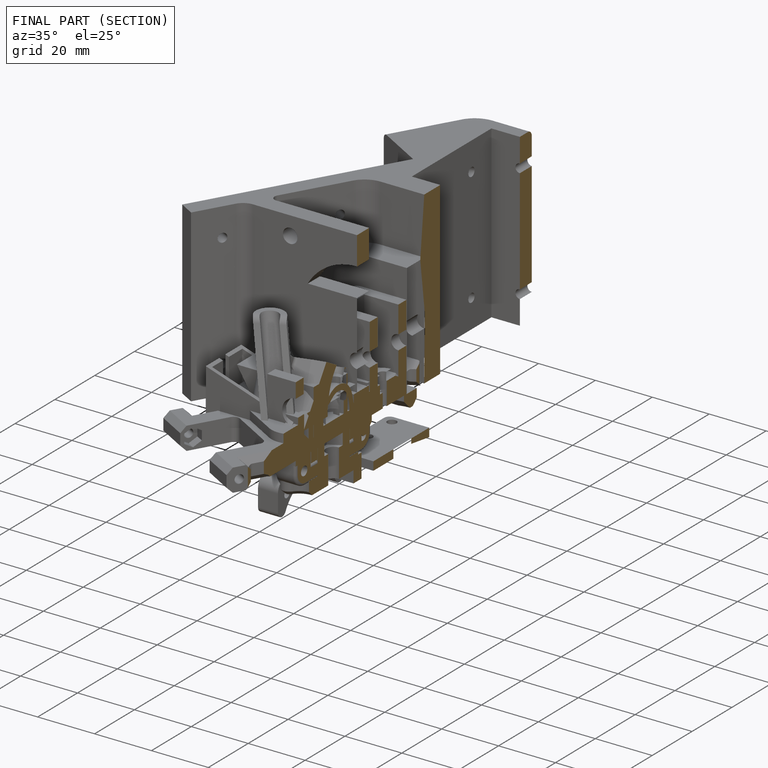
[diagram: finished part — half-section view (interior)]
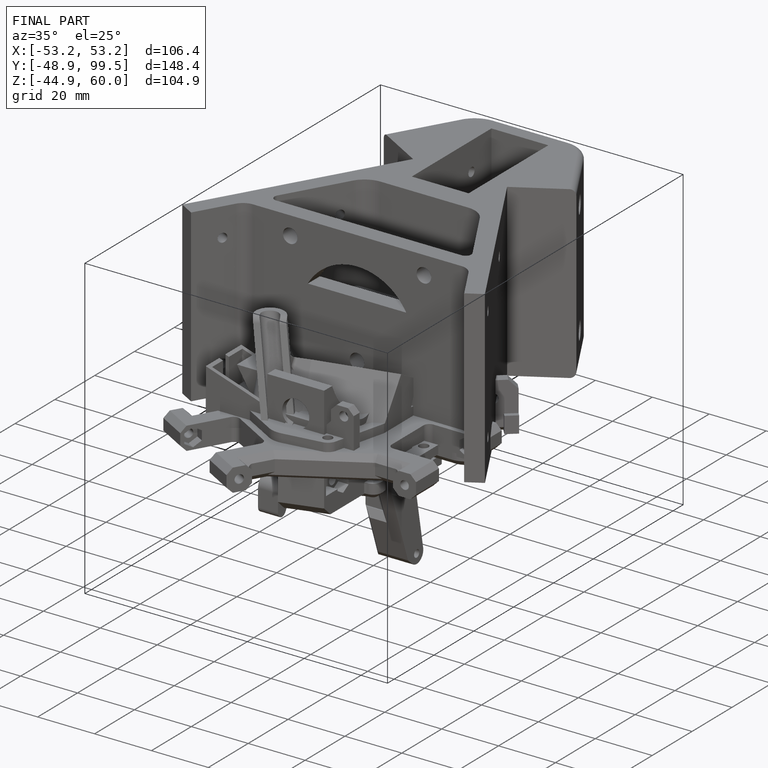
[diagram: finished part — iso view with bounding-box wireframe]
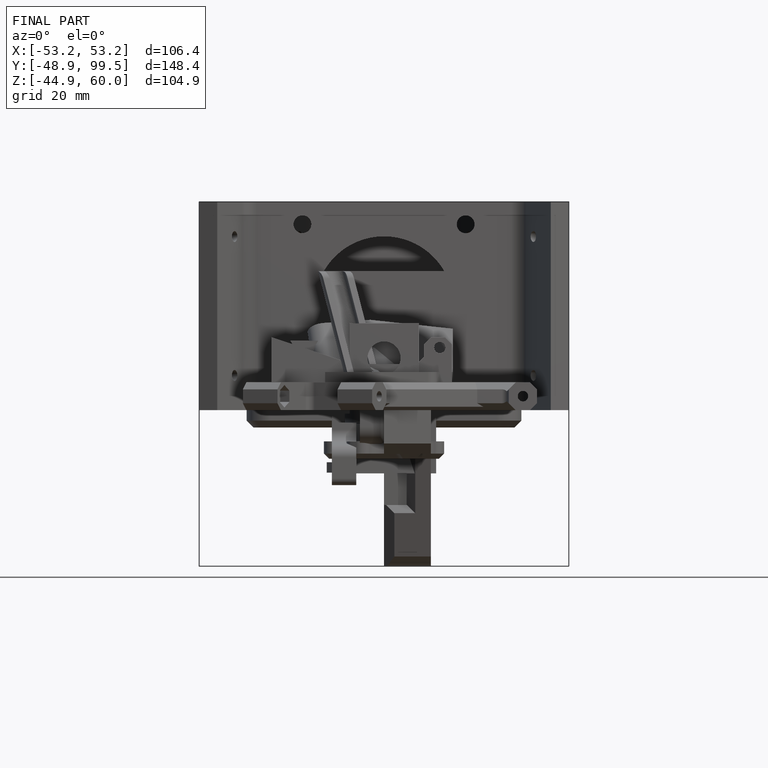
[diagram: finished part — front view with bounding-box wireframe]
